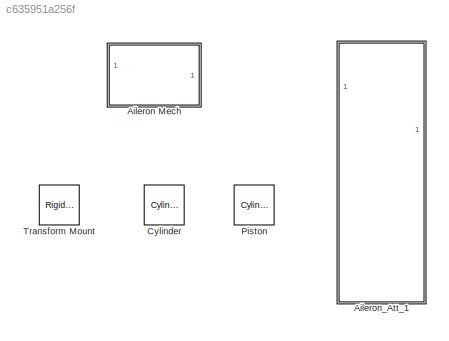
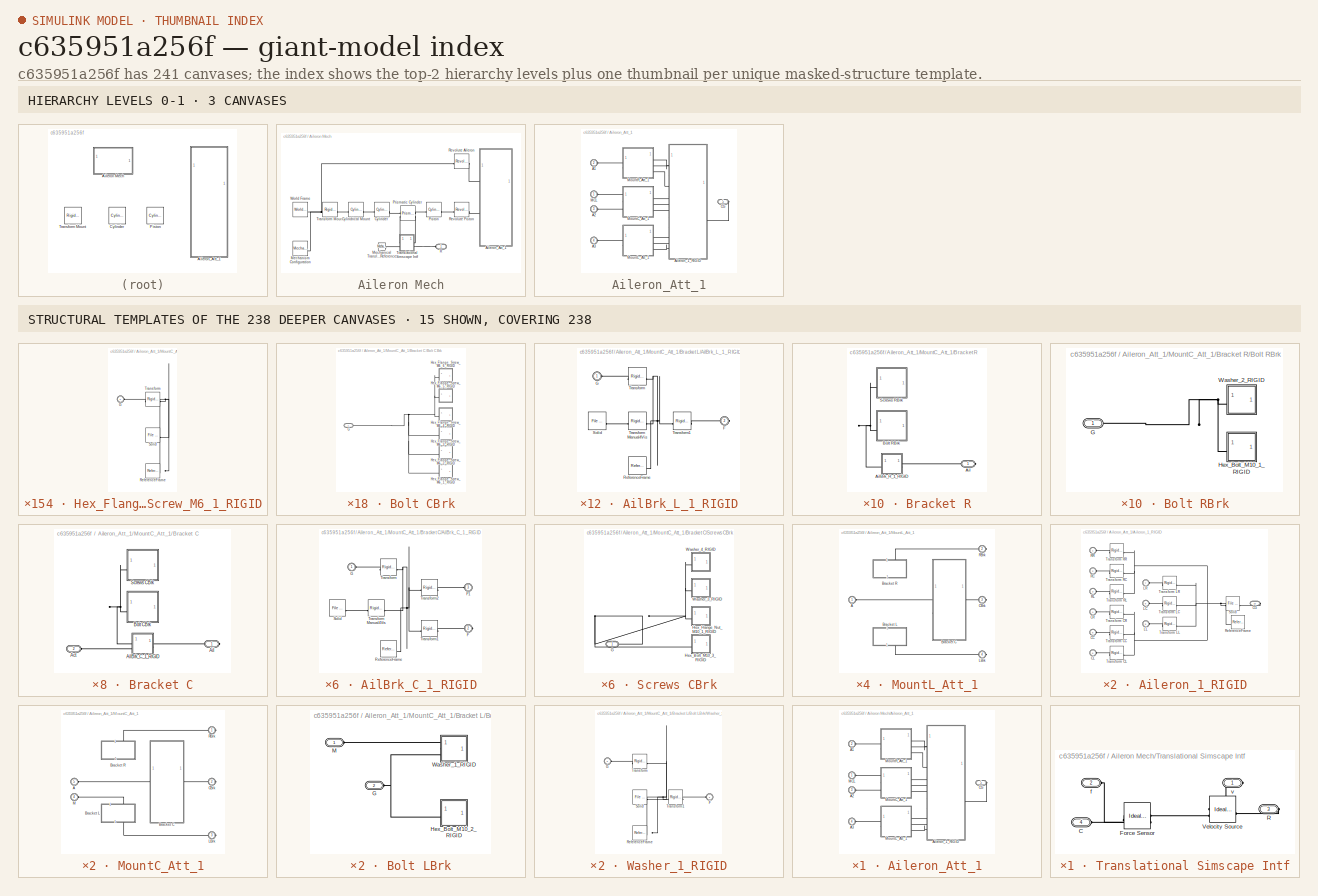
[diagram: thumbnail index - top-2 hierarchy levels (3 canvases) + 15 structural-template representatives of the remaining 238 canvases]
MODEL slx_c635951a256f
KIND library
CONFIG SolverName = ode45
BLOCK [SubSystem] Aileron Mech
BLOCK [SubSystem] Aileron Mech/Aileron_Att_1
BLOCK [PMIOPort] Aileron Mech/Aileron_Att_1/A1
  Port = 2
  Side = Left
BLOCK [PMIOPort] Aileron Mech/Aileron_Att_1/A2
  Port = 3
  Side = Left
BLOCK [PMIOPort] Aileron Mech/Aileron_Att_1/A3
  Port = 4
  Side = Left
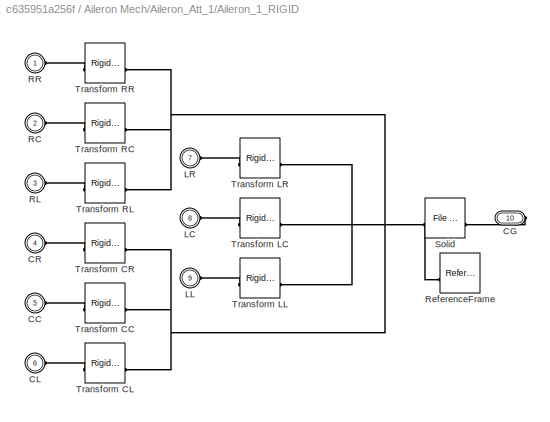
BLOCK [SubSystem] Aileron Mech/Aileron_Att_1/Aileron_1_RIGID
BLOCK [PMIOPort] Aileron Mech/Aileron_Att_1/Aileron_1_RIGID/CC
  Port = 5
  Side = Left
BLOCK [PMIOPort] Aileron Mech/Aileron_Att_1/Aileron_1_RIGID/CG
  Port = 10
  Side = Right
BLOCK [PMIOPort] Aileron Mech/Aileron_Att_1/Aileron_1_RIGID/CL
  Port = 6
  Side = Left
BLOCK [PMIOPort] Aileron Mech/Aileron_Att_1/Aileron_1_RIGID/CR
  Port = 4
  Side = Left
BLOCK [PMIOPort] Aileron Mech/Aileron_Att_1/Aileron_1_RIGID/LC
  Port = 8
  Side = Left
BLOCK [PMIOPort] Aileron Mech/Aileron_Att_1/Aileron_1_RIGID/LL
  Port = 9
  Side = Left
BLOCK [PMIOPort] Aileron Mech/Aileron_Att_1/Aileron_1_RIGID/LR
  Port = 7
  Side = Left
BLOCK [PMIOPort] Aileron Mech/Aileron_Att_1/Aileron_1_RIGID/RC
  Port = 2
  Side = Left
BLOCK [PMIOPort] Aileron Mech/Aileron_Att_1/Aileron_1_RIGID/RL
  Port = 3
  Side = Left
BLOCK [PMIOPort] Aileron Mech/Aileron_Att_1/Aileron_1_RIGID/RR
  Side = Left
BLOCK [Reference] Aileron Mech/Aileron_Att_1/Aileron_1_RIGID/ReferenceFrame  REF=sm_lib/Frames and
Transforms/Reference
Frame
  SourceBlock = sm_lib/Frames and\nTransforms/Reference\nFrame
  SourceType = Reference\nFrame
BLOCK [Reference] Aileron Mech/Aileron_Att_1/Aileron_1_RIGID/Solid  REF=sm_lib/Body Elements/File Solid
  SourceBlock = sm_lib/Body Elements/File Solid
  SourceType = File Solid
BLOCK [Reference] Aileron Mech/Aileron_Att_1/Aileron_1_RIGID/Transform CC  REF=sm_lib/Frames and
Transforms/Rigid
Transform
  SourceBlock = sm_lib/Frames and\nTransforms/Rigid\nTransform
  SourceType = Rigid\nTransform
BLOCK [Reference] Aileron Mech/Aileron_Att_1/Aileron_1_RIGID/Transform CL  REF=sm_lib/Frames and
Transforms/Rigid
Transform
  SourceBlock = sm_lib/Frames and\nTransforms/Rigid\nTransform
  SourceType = Rigid\nTransform
BLOCK [Reference] Aileron Mech/Aileron_Att_1/Aileron_1_RIGID/Transform CR  REF=sm_lib/Frames and
Transforms/Rigid
Transform
  SourceBlock = sm_lib/Frames and\nTransforms/Rigid\nTransform
  SourceType = Rigid\nTransform
BLOCK [Reference] Aileron Mech/Aileron_Att_1/Aileron_1_RIGID/Transform LC  REF=sm_lib/Frames and
Transforms/Rigid
Transform
  SourceBlock = sm_lib/Frames and\nTransforms/Rigid\nTransform
  SourceType = Rigid\nTransform
BLOCK [Reference] Aileron Mech/Aileron_Att_1/Aileron_1_RIGID/Transform LL  REF=sm_lib/Frames and
Transforms/Rigid
Transform
  SourceBlock = sm_lib/Frames and\nTransforms/Rigid\nTransform
  SourceType = Rigid\nTransform
BLOCK [Reference] Aileron Mech/Aileron_Att_1/Aileron_1_RIGID/Transform LR  REF=sm_lib/Frames and
Transforms/Rigid
Transform
  SourceBlock = sm_lib/Frames and\nTransforms/Rigid\nTransform
  SourceType = Rigid\nTransform
BLOCK [Reference] Aileron Mech/Aileron_Att_1/Aileron_1_RIGID/Transform RC  REF=sm_lib/Frames and
Transforms/Rigid
Transform
  SourceBlock = sm_lib/Frames and\nTransforms/Rigid\nTransform
  SourceType = Rigid\nTransform
BLOCK [Reference] Aileron Mech/Aileron_Att_1/Aileron_1_RIGID/Transform RL  REF=sm_lib/Frames and
Transforms/Rigid
Transform
  SourceBlock = sm_lib/Frames and\nTransforms/Rigid\nTransform
  SourceType = Rigid\nTransform
BLOCK [Reference] Aileron Mech/Aileron_Att_1/Aileron_1_RIGID/Transform RR  REF=sm_lib/Frames and
Transforms/Rigid
Transform
  SourceBlock = sm_lib/Frames and\nTransforms/Rigid\nTransform
  SourceType = Rigid\nTransform
BLOCK [PMIOPort] Aileron Mech/Aileron_Att_1/CG
  Port = 5
  Side = Right
BLOCK [PMIOPort] Aileron Mech/Aileron_Att_1/MCL
  Side = Left
BLOCK [SubSystem] Aileron Mech/Aileron_Att_1/MountC_Att_1
BLOCK [PMIOPort] Aileron Mech/Aileron_Att_1/MountC_Att_1/A
  NameLocation = top
  Port = 5
  Side = Left
BLOCK [SubSystem] Aileron Mech/Aileron_Att_1/MountC_Att_1/Bracket C
BLOCK [PMIOPort] Aileron Mech/Aileron_Att_1/MountC_Att_1/Bracket C/Act
  Port = 2
  Side = Left
BLOCK [PMIOPort] Aileron Mech/Aileron_Att_1/MountC_Att_1/Bracket C/Ail
  Side = Right
BLOCK [SubSystem] Aileron Mech/Aileron_Att_1/MountC_Att_1/Bracket C/AilBrk_C_1_RIGID
BLOCK [PMIOPort] Aileron Mech/Aileron_Att_1/MountC_Att_1/Bracket C/AilBrk_C_1_RIGID/F
  Port = 2
  Side = Right
BLOCK [PMIOPort] Aileron Mech/Aileron_Att_1/MountC_Att_1/Bracket C/AilBrk_C_1_RIGID/F1
  Port = 3
  Side = Left
BLOCK [PMIOPort] Aileron Mech/Aileron_Att_1/MountC_Att_1/Bracket C/AilBrk_C_1_RIGID/G
  Side = Left
BLOCK [Reference] Aileron Mech/Aileron_Att_1/MountC_Att_1/Bracket C/AilBrk_C_1_RIGID/ReferenceFrame  REF=sm_lib/Frames and
Transforms/Reference
Frame
  SourceBlock = sm_lib/Frames and\nTransforms/Reference\nFrame
  SourceType = Reference\nFrame
BLOCK [Reference] Aileron Mech/Aileron_Att_1/MountC_Att_1/Bracket C/AilBrk_C_1_RIGID/Solid  REF=sm_lib/Body Elements/File Solid
  SourceBlock = sm_lib/Body Elements/File Solid
  SourceType = File Solid
BLOCK [Reference] Aileron Mech/Aileron_Att_1/MountC_Att_1/Bracket C/AilBrk_C_1_RIGID/Transform  REF=sm_lib/Frames and
Transforms/Rigid
Transform
  SourceBlock = sm_lib/Frames and\nTransforms/Rigid\nTransform
  SourceType = Rigid\nTransform
BLOCK [Reference] Aileron Mech/Aileron_Att_1/MountC_Att_1/Bracket C/AilBrk_C_1_RIGID/Transform Manual4Vis  REF=sm_lib/Frames and
Transforms/Rigid
Transform
  SourceBlock = sm_lib/Frames and\nTransforms/Rigid\nTransform
  SourceType = Rigid\nTransform
BLOCK [Reference] Aileron Mech/Aileron_Att_1/MountC_Att_1/Bracket C/AilBrk_C_1_RIGID/Transform1  REF=sm_lib/Frames and
Transforms/Rigid
Transform
  SourceBlock = sm_lib/Frames and\nTransforms/Rigid\nTransform
  SourceType = Rigid\nTransform
BLOCK [Reference] Aileron Mech/Aileron_Att_1/MountC_Att_1/Bracket C/AilBrk_C_1_RIGID/Transform2  REF=sm_lib/Frames and
Transforms/Rigid
Transform
  SourceBlock = sm_lib/Frames and\nTransforms/Rigid\nTransform
  SourceType = Rigid\nTransform
BLOCK [SubSystem] Aileron Mech/Aileron_Att_1/MountC_Att_1/Bracket C/Bolt CBrk
BLOCK [PMIOPort] Aileron Mech/Aileron_Att_1/MountC_Att_1/Bracket C/Bolt CBrk/G
  Side = Left
BLOCK [SubSystem] Aileron Mech/Aileron_Att_1/MountC_Att_1/Bracket C/Bolt CBrk/Hex_Flange_Screw_M6_1_RIGID
BLOCK [PMIOPort] Aileron Mech/Aileron_Att_1/MountC_Att_1/Bracket C/Bolt CBrk/Hex_Flange_Screw_M6_1_RIGID/G
  Side = Left
BLOCK [Reference] Aileron Mech/Aileron_Att_1/MountC_Att_1/Bracket C/Bolt CBrk/Hex_Flange_Screw_M6_1_RIGID/ReferenceFrame  REF=sm_lib/Frames and
Transforms/Reference
Frame
  SourceBlock = sm_lib/Frames and\nTransforms/Reference\nFrame
  SourceType = Reference\nFrame
BLOCK [Reference] Aileron Mech/Aileron_Att_1/MountC_Att_1/Bracket C/Bolt CBrk/Hex_Flange_Screw_M6_1_RIGID/Solid  REF=sm_lib/Body Elements/File Solid
  SourceBlock = sm_lib/Body Elements/File Solid
  SourceType = File Solid
BLOCK [Reference] Aileron Mech/Aileron_Att_1/MountC_Att_1/Bracket C/Bolt CBrk/Hex_Flange_Screw_M6_1_RIGID/Transform  REF=sm_lib/Frames and
Transforms/Rigid
Transform
  SourceBlock = sm_lib/Frames and\nTransforms/Rigid\nTransform
  SourceType = Rigid\nTransform
BLOCK [SubSystem] Aileron Mech/Aileron_Att_1/MountC_Att_1/Bracket C/Bolt CBrk/Hex_Flange_Screw_M6_2_RIGID
BLOCK [PMIOPort] Aileron Mech/Aileron_Att_1/MountC_Att_1/Bracket C/Bolt CBrk/Hex_Flange_Screw_M6_2_RIGID/G
  Side = Left
BLOCK [Reference] Aileron Mech/Aileron_Att_1/MountC_Att_1/Bracket C/Bolt CBrk/Hex_Flange_Screw_M6_2_RIGID/ReferenceFrame  REF=sm_lib/Frames and
Transforms/Reference
Frame
  SourceBlock = sm_lib/Frames and\nTransforms/Reference\nFrame
  SourceType = Reference\nFrame
BLOCK [Reference] Aileron Mech/Aileron_Att_1/MountC_Att_1/Bracket C/Bolt CBrk/Hex_Flange_Screw_M6_2_RIGID/Solid  REF=sm_lib/Body Elements/File Solid
  SourceBlock = sm_lib/Body Elements/File Solid
  SourceType = File Solid
BLOCK [Reference] Aileron Mech/Aileron_Att_1/MountC_Att_1/Bracket C/Bolt CBrk/Hex_Flange_Screw_M6_2_RIGID/Transform  REF=sm_lib/Frames and
Transforms/Rigid
Transform
  SourceBlock = sm_lib/Frames and\nTransforms/Rigid\nTransform
  SourceType = Rigid\nTransform
BLOCK [SubSystem] Aileron Mech/Aileron_Att_1/MountC_Att_1/Bracket C/Bolt CBrk/Hex_Flange_Screw_M6_3_RIGID
BLOCK [PMIOPort] Aileron Mech/Aileron_Att_1/MountC_Att_1/Bracket C/Bolt CBrk/Hex_Flange_Screw_M6_3_RIGID/G
  Side = Left
BLOCK [Reference] Aileron Mech/Aileron_Att_1/MountC_Att_1/Bracket C/Bolt CBrk/Hex_Flange_Screw_M6_3_RIGID/ReferenceFrame  REF=sm_lib/Frames and
Transforms/Reference
Frame
  SourceBlock = sm_lib/Frames and\nTransforms/Reference\nFrame
  SourceType = Reference\nFrame
BLOCK [Reference] Aileron Mech/Aileron_Att_1/MountC_Att_1/Bracket C/Bolt CBrk/Hex_Flange_Screw_M6_3_RIGID/Solid  REF=sm_lib/Body Elements/File Solid
  SourceBlock = sm_lib/Body Elements/File Solid
  SourceType = File Solid
BLOCK [Reference] Aileron Mech/Aileron_Att_1/MountC_Att_1/Bracket C/Bolt CBrk/Hex_Flange_Screw_M6_3_RIGID/Transform  REF=sm_lib/Frames and
Transforms/Rigid
Transform
  SourceBlock = sm_lib/Frames and\nTransforms/Rigid\nTransform
  SourceType = Rigid\nTransform
BLOCK [SubSystem] Aileron Mech/Aileron_Att_1/MountC_Att_1/Bracket C/Bolt CBrk/Hex_Flange_Screw_M6_4_RIGID
BLOCK [PMIOPort] Aileron Mech/Aileron_Att_1/MountC_Att_1/Bracket C/Bolt CBrk/Hex_Flange_Screw_M6_4_RIGID/G
  Side = Left
BLOCK [Reference] Aileron Mech/Aileron_Att_1/MountC_Att_1/Bracket C/Bolt CBrk/Hex_Flange_Screw_M6_4_RIGID/ReferenceFrame  REF=sm_lib/Frames and
Transforms/Reference
Frame
  SourceBlock = sm_lib/Frames and\nTransforms/Reference\nFrame
  SourceType = Reference\nFrame
BLOCK [Reference] Aileron Mech/Aileron_Att_1/MountC_Att_1/Bracket C/Bolt CBrk/Hex_Flange_Screw_M6_4_RIGID/Solid  REF=sm_lib/Body Elements/File Solid
  SourceBlock = sm_lib/Body Elements/File Solid
  SourceType = File Solid
BLOCK [Reference] Aileron Mech/Aileron_Att_1/MountC_Att_1/Bracket C/Bolt CBrk/Hex_Flange_Screw_M6_4_RIGID/Transform  REF=sm_lib/Frames and
Transforms/Rigid
Transform
  SourceBlock = sm_lib/Frames and\nTransforms/Rigid\nTransform
  SourceType = Rigid\nTransform
BLOCK [SubSystem] Aileron Mech/Aileron_Att_1/MountC_Att_1/Bracket C/Bolt CBrk/Hex_Flange_Screw_M6_5_RIGID
BLOCK [PMIOPort] Aileron Mech/Aileron_Att_1/MountC_Att_1/Bracket C/Bolt CBrk/Hex_Flange_Screw_M6_5_RIGID/G
  Side = Left
BLOCK [Reference] Aileron Mech/Aileron_Att_1/MountC_Att_1/Bracket C/Bolt CBrk/Hex_Flange_Screw_M6_5_RIGID/ReferenceFrame  REF=sm_lib/Frames and
Transforms/Reference
Frame
  SourceBlock = sm_lib/Frames and\nTransforms/Reference\nFrame
  SourceType = Reference\nFrame
BLOCK [Reference] Aileron Mech/Aileron_Att_1/MountC_Att_1/Bracket C/Bolt CBrk/Hex_Flange_Screw_M6_5_RIGID/Solid  REF=sm_lib/Body Elements/File Solid
  SourceBlock = sm_lib/Body Elements/File Solid
  SourceType = File Solid
BLOCK [Reference] Aileron Mech/Aileron_Att_1/MountC_Att_1/Bracket C/Bolt CBrk/Hex_Flange_Screw_M6_5_RIGID/Transform  REF=sm_lib/Frames and
Transforms/Rigid
Transform
  SourceBlock = sm_lib/Frames and\nTransforms/Rigid\nTransform
  SourceType = Rigid\nTransform
BLOCK [SubSystem] Aileron Mech/Aileron_Att_1/MountC_Att_1/Bracket C/Bolt CBrk/Hex_Flange_Screw_M6_6_RIGID
BLOCK [PMIOPort] Aileron Mech/Aileron_Att_1/MountC_Att_1/Bracket C/Bolt CBrk/Hex_Flange_Screw_M6_6_RIGID/G
  Side = Left
BLOCK [Reference] Aileron Mech/Aileron_Att_1/MountC_Att_1/Bracket C/Bolt CBrk/Hex_Flange_Screw_M6_6_RIGID/ReferenceFrame  REF=sm_lib/Frames and
Transforms/Reference
Frame
  SourceBlock = sm_lib/Frames and\nTransforms/Reference\nFrame
  SourceType = Reference\nFrame
BLOCK [Reference] Aileron Mech/Aileron_Att_1/MountC_Att_1/Bracket C/Bolt CBrk/Hex_Flange_Screw_M6_6_RIGID/Solid  REF=sm_lib/Body Elements/File Solid
  SourceBlock = sm_lib/Body Elements/File Solid
  SourceType = File Solid
BLOCK [Reference] Aileron Mech/Aileron_Att_1/MountC_Att_1/Bracket C/Bolt CBrk/Hex_Flange_Screw_M6_6_RIGID/Transform  REF=sm_lib/Frames and
Transforms/Rigid
Transform
  SourceBlock = sm_lib/Frames and\nTransforms/Rigid\nTransform
  SourceType = Rigid\nTransform
BLOCK [SubSystem] Aileron Mech/Aileron_Att_1/MountC_Att_1/Bracket C/Screws CBrk
BLOCK [PMIOPort] Aileron Mech/Aileron_Att_1/MountC_Att_1/Bracket C/Screws CBrk/G
  Side = Left
BLOCK [SubSystem] Aileron Mech/Aileron_Att_1/MountC_Att_1/Bracket C/Screws CBrk/Hex_Bolt_M10_3_RIGID
BLOCK [PMIOPort] Aileron Mech/Aileron_Att_1/MountC_Att_1/Bracket C/Screws CBrk/Hex_Bolt_M10_3_RIGID/G
  Side = Left
BLOCK [Reference] Aileron Mech/Aileron_Att_1/MountC_Att_1/Bracket C/Screws CBrk/Hex_Bolt_M10_3_RIGID/ReferenceFrame  REF=sm_lib/Frames and
Transforms/Reference
Frame
  SourceBlock = sm_lib/Frames and\nTransforms/Reference\nFrame
  SourceType = Reference\nFrame
BLOCK [Reference] Aileron Mech/Aileron_Att_1/MountC_Att_1/Bracket C/Screws CBrk/Hex_Bolt_M10_3_RIGID/Solid  REF=sm_lib/Body Elements/File Solid
  SourceBlock = sm_lib/Body Elements/File Solid
  SourceType = File Solid
BLOCK [Reference] Aileron Mech/Aileron_Att_1/MountC_Att_1/Bracket C/Screws CBrk/Hex_Bolt_M10_3_RIGID/Transform  REF=sm_lib/Frames and
Transforms/Rigid
Transform
  SourceBlock = sm_lib/Frames and\nTransforms/Rigid\nTransform
  SourceType = Rigid\nTransform
BLOCK [SubSystem] Aileron Mech/Aileron_Att_1/MountC_Att_1/Bracket C/Screws CBrk/Hex_Flange_Nut_M10_1_RIGID
BLOCK [PMIOPort] Aileron Mech/Aileron_Att_1/MountC_Att_1/Bracket C/Screws CBrk/Hex_Flange_Nut_M10_1_RIGID/G
  Side = Left
BLOCK [Reference] Aileron Mech/Aileron_Att_1/MountC_Att_1/Bracket C/Screws CBrk/Hex_Flange_Nut_M10_1_RIGID/ReferenceFrame  REF=sm_lib/Frames and
Transforms/Reference
Frame
  SourceBlock = sm_lib/Frames and\nTransforms/Reference\nFrame
  SourceType = Reference\nFrame
BLOCK [Reference] Aileron Mech/Aileron_Att_1/MountC_Att_1/Bracket C/Screws CBrk/Hex_Flange_Nut_M10_1_RIGID/Solid  REF=sm_lib/Body Elements/File Solid
  SourceBlock = sm_lib/Body Elements/File Solid
  SourceType = File Solid
BLOCK [Reference] Aileron Mech/Aileron_Att_1/MountC_Att_1/Bracket C/Screws CBrk/Hex_Flange_Nut_M10_1_RIGID/Transform  REF=sm_lib/Frames and
Transforms/Rigid
Transform
  SourceBlock = sm_lib/Frames and\nTransforms/Rigid\nTransform
  SourceType = Rigid\nTransform
BLOCK [SubSystem] Aileron Mech/Aileron_Att_1/MountC_Att_1/Bracket C/Screws CBrk/Washer_3_RIGID
BLOCK [PMIOPort] Aileron Mech/Aileron_Att_1/MountC_Att_1/Bracket C/Screws CBrk/Washer_3_RIGID/G
  Side = Left
BLOCK [Reference] Aileron Mech/Aileron_Att_1/MountC_Att_1/Bracket C/Screws CBrk/Washer_3_RIGID/ReferenceFrame  REF=sm_lib/Frames and
Transforms/Reference
Frame
  SourceBlock = sm_lib/Frames and\nTransforms/Reference\nFrame
  SourceType = Reference\nFrame
BLOCK [Reference] Aileron Mech/Aileron_Att_1/MountC_Att_1/Bracket C/Screws CBrk/Washer_3_RIGID/Solid  REF=sm_lib/Body Elements/File Solid
  SourceBlock = sm_lib/Body Elements/File Solid
  SourceType = File Solid
BLOCK [Reference] Aileron Mech/Aileron_Att_1/MountC_Att_1/Bracket C/Screws CBrk/Washer_3_RIGID/Transform  REF=sm_lib/Frames and
Transforms/Rigid
Transform
  SourceBlock = sm_lib/Frames and\nTransforms/Rigid\nTransform
  SourceType = Rigid\nTransform
BLOCK [SubSystem] Aileron Mech/Aileron_Att_1/MountC_Att_1/Bracket C/Screws CBrk/Washer_4_RIGID
BLOCK [PMIOPort] Aileron Mech/Aileron_Att_1/MountC_Att_1/Bracket C/Screws CBrk/Washer_4_RIGID/G
  Side = Left
BLOCK [Reference] Aileron Mech/Aileron_Att_1/MountC_Att_1/Bracket C/Screws CBrk/Washer_4_RIGID/ReferenceFrame  REF=sm_lib/Frames and
Transforms/Reference
Frame
  SourceBlock = sm_lib/Frames and\nTransforms/Reference\nFrame
  SourceType = Reference\nFrame
BLOCK [Reference] Aileron Mech/Aileron_Att_1/MountC_Att_1/Bracket C/Screws CBrk/Washer_4_RIGID/Solid  REF=sm_lib/Body Elements/File Solid
  SourceBlock = sm_lib/Body Elements/File Solid
  SourceType = File Solid
BLOCK [Reference] Aileron Mech/Aileron_Att_1/MountC_Att_1/Bracket C/Screws CBrk/Washer_4_RIGID/Transform  REF=sm_lib/Frames and
Transforms/Rigid
Transform
  SourceBlock = sm_lib/Frames and\nTransforms/Rigid\nTransform
  SourceType = Rigid\nTransform
BLOCK [SubSystem] Aileron Mech/Aileron_Att_1/MountC_Att_1/Bracket L
  NameLocation = left
BLOCK [PMIOPort] Aileron Mech/Aileron_Att_1/MountC_Att_1/Bracket L/Ail
  Port = 2
  Side = Right
BLOCK [SubSystem] Aileron Mech/Aileron_Att_1/MountC_Att_1/Bracket L/AilBrk_L_1_RIGID
BLOCK [PMIOPort] Aileron Mech/Aileron_Att_1/MountC_Att_1/Bracket L/AilBrk_L_1_RIGID/F
  Port = 2
  Side = Right
BLOCK [PMIOPort] Aileron Mech/Aileron_Att_1/MountC_Att_1/Bracket L/AilBrk_L_1_RIGID/G
  Side = Left
BLOCK [Reference] Aileron Mech/Aileron_Att_1/MountC_Att_1/Bracket L/AilBrk_L_1_RIGID/ReferenceFrame  REF=sm_lib/Frames and
Transforms/Reference
Frame
  SourceBlock = sm_lib/Frames and\nTransforms/Reference\nFrame
  SourceType = Reference\nFrame
BLOCK [Reference] Aileron Mech/Aileron_Att_1/MountC_Att_1/Bracket L/AilBrk_L_1_RIGID/Solid  REF=sm_lib/Body Elements/File Solid
  SourceBlock = sm_lib/Body Elements/File Solid
  SourceType = File Solid
BLOCK [Reference] Aileron Mech/Aileron_Att_1/MountC_Att_1/Bracket L/AilBrk_L_1_RIGID/Transform  REF=sm_lib/Frames and
Transforms/Rigid
Transform
  SourceBlock = sm_lib/Frames and\nTransforms/Rigid\nTransform
  SourceType = Rigid\nTransform
BLOCK [Reference] Aileron Mech/Aileron_Att_1/MountC_Att_1/Bracket L/AilBrk_L_1_RIGID/Transform Manual4Vis  REF=sm_lib/Frames and
Transforms/Rigid
Transform
  SourceBlock = sm_lib/Frames and\nTransforms/Rigid\nTransform
  SourceType = Rigid\nTransform
BLOCK [Reference] Aileron Mech/Aileron_Att_1/MountC_Att_1/Bracket L/AilBrk_L_1_RIGID/Transform1  REF=sm_lib/Frames and
Transforms/Rigid
Transform
  SourceBlock = sm_lib/Frames and\nTransforms/Rigid\nTransform
  SourceType = Rigid\nTransform
BLOCK [SubSystem] Aileron Mech/Aileron_Att_1/MountC_Att_1/Bracket L/Bolt LBrk
BLOCK [PMIOPort] Aileron Mech/Aileron_Att_1/MountC_Att_1/Bracket L/Bolt LBrk/G
  Port = 2
  Side = Left
BLOCK [SubSystem] Aileron Mech/Aileron_Att_1/MountC_Att_1/Bracket L/Bolt LBrk/Hex_Bolt_M10_2_RIGID
BLOCK [PMIOPort] Aileron Mech/Aileron_Att_1/MountC_Att_1/Bracket L/Bolt LBrk/Hex_Bolt_M10_2_RIGID/G
  Side = Left
BLOCK [Reference] Aileron Mech/Aileron_Att_1/MountC_Att_1/Bracket L/Bolt LBrk/Hex_Bolt_M10_2_RIGID/ReferenceFrame  REF=sm_lib/Frames and
Transforms/Reference
Frame
  SourceBlock = sm_lib/Frames and\nTransforms/Reference\nFrame
  SourceType = Reference\nFrame
BLOCK [Reference] Aileron Mech/Aileron_Att_1/MountC_Att_1/Bracket L/Bolt LBrk/Hex_Bolt_M10_2_RIGID/Solid  REF=sm_lib/Body Elements/File Solid
  SourceBlock = sm_lib/Body Elements/File Solid
  SourceType = File Solid
BLOCK [Reference] Aileron Mech/Aileron_Att_1/MountC_Att_1/Bracket L/Bolt LBrk/Hex_Bolt_M10_2_RIGID/Transform  REF=sm_lib/Frames and
Transforms/Rigid
Transform
  SourceBlock = sm_lib/Frames and\nTransforms/Rigid\nTransform
  SourceType = Rigid\nTransform
BLOCK [PMIOPort] Aileron Mech/Aileron_Att_1/MountC_Att_1/Bracket L/Bolt LBrk/M
  Side = Left
BLOCK [SubSystem] Aileron Mech/Aileron_Att_1/MountC_Att_1/Bracket L/Bolt LBrk/Washer_1_RIGID
BLOCK [PMIOPort] Aileron Mech/Aileron_Att_1/MountC_Att_1/Bracket L/Bolt LBrk/Washer_1_RIGID/F
  Side = Left
BLOCK [PMIOPort] Aileron Mech/Aileron_Att_1/MountC_Att_1/Bracket L/Bolt LBrk/Washer_1_RIGID/G
  Port = 2
  Side = Left
BLOCK [Reference] Aileron Mech/Aileron_Att_1/MountC_Att_1/Bracket L/Bolt LBrk/Washer_1_RIGID/ReferenceFrame  REF=sm_lib/Frames and
Transforms/Reference
Frame
  SourceBlock = sm_lib/Frames and\nTransforms/Reference\nFrame
  SourceType = Reference\nFrame
BLOCK [Reference] Aileron Mech/Aileron_Att_1/MountC_Att_1/Bracket L/Bolt LBrk/Washer_1_RIGID/Solid  REF=sm_lib/Body Elements/File Solid
  SourceBlock = sm_lib/Body Elements/File Solid
  SourceType = File Solid
BLOCK [Reference] Aileron Mech/Aileron_Att_1/MountC_Att_1/Bracket L/Bolt LBrk/Washer_1_RIGID/Transform  REF=sm_lib/Frames and
Transforms/Rigid
Transform
  SourceBlock = sm_lib/Frames and\nTransforms/Rigid\nTransform
  SourceType = Rigid\nTransform
BLOCK [Reference] Aileron Mech/Aileron_Att_1/MountC_Att_1/Bracket L/Bolt LBrk/Washer_1_RIGID/Transform1  REF=sm_lib/Frames and
Transforms/Rigid
Transform
  SourceBlock = sm_lib/Frames and\nTransforms/Rigid\nTransform
  SourceType = Rigid\nTransform
BLOCK [PMIOPort] Aileron Mech/Aileron_Att_1/MountC_Att_1/Bracket L/M
  Side = Left
BLOCK [SubSystem] Aileron Mech/Aileron_Att_1/MountC_Att_1/Bracket L/Screws LBrk
BLOCK [PMIOPort] Aileron Mech/Aileron_Att_1/MountC_Att_1/Bracket L/Screws LBrk/G
  Side = Left
BLOCK [SubSystem] Aileron Mech/Aileron_Att_1/MountC_Att_1/Bracket L/Screws LBrk/Oval_Head_M4_12_RIGID
BLOCK [PMIOPort] Aileron Mech/Aileron_Att_1/MountC_Att_1/Bracket L/Screws LBrk/Oval_Head_M4_12_RIGID/G
  Side = Left
BLOCK [Reference] Aileron Mech/Aileron_Att_1/MountC_Att_1/Bracket L/Screws LBrk/Oval_Head_M4_12_RIGID/ReferenceFrame  REF=sm_lib/Frames and
Transforms/Reference
Frame
  SourceBlock = sm_lib/Frames and\nTransforms/Reference\nFrame
  SourceType = Reference\nFrame
BLOCK [Reference] Aileron Mech/Aileron_Att_1/MountC_Att_1/Bracket L/Screws LBrk/Oval_Head_M4_12_RIGID/Solid  REF=sm_lib/Body Elements/File Solid
  SourceBlock = sm_lib/Body Elements/File Solid
  SourceType = File Solid
BLOCK [Reference] Aileron Mech/Aileron_Att_1/MountC_Att_1/Bracket L/Screws LBrk/Oval_Head_M4_12_RIGID/Transform  REF=sm_lib/Frames and
Transforms/Rigid
Transform
  SourceBlock = sm_lib/Frames and\nTransforms/Rigid\nTransform
  SourceType = Rigid\nTransform
BLOCK [SubSystem] Aileron Mech/Aileron_Att_1/MountC_Att_1/Bracket L/Screws LBrk/Oval_Head_M4_1_RIGID
BLOCK [PMIOPort] Aileron Mech/Aileron_Att_1/MountC_Att_1/Bracket L/Screws LBrk/Oval_Head_M4_1_RIGID/G
  Side = Left
BLOCK [Reference] Aileron Mech/Aileron_Att_1/MountC_Att_1/Bracket L/Screws LBrk/Oval_Head_M4_1_RIGID/ReferenceFrame  REF=sm_lib/Frames and
Transforms/Reference
Frame
  SourceBlock = sm_lib/Frames and\nTransforms/Reference\nFrame
  SourceType = Reference\nFrame
BLOCK [Reference] Aileron Mech/Aileron_Att_1/MountC_Att_1/Bracket L/Screws LBrk/Oval_Head_M4_1_RIGID/Solid  REF=sm_lib/Body Elements/File Solid
  SourceBlock = sm_lib/Body Elements/File Solid
  SourceType = File Solid
BLOCK [Reference] Aileron Mech/Aileron_Att_1/MountC_Att_1/Bracket L/Screws LBrk/Oval_Head_M4_1_RIGID/Transform  REF=sm_lib/Frames and
Transforms/Rigid
Transform
  SourceBlock = sm_lib/Frames and\nTransforms/Rigid\nTransform
  SourceType = Rigid\nTransform
BLOCK [SubSystem] Aileron Mech/Aileron_Att_1/MountC_Att_1/Bracket L/Screws LBrk/Oval_Head_M4_4_RIGID
BLOCK [PMIOPort] Aileron Mech/Aileron_Att_1/MountC_Att_1/Bracket L/Screws LBrk/Oval_Head_M4_4_RIGID/G
  Side = Left
BLOCK [Reference] Aileron Mech/Aileron_Att_1/MountC_Att_1/Bracket L/Screws LBrk/Oval_Head_M4_4_RIGID/ReferenceFrame  REF=sm_lib/Frames and
Transforms/Reference
Frame
  SourceBlock = sm_lib/Frames and\nTransforms/Reference\nFrame
  SourceType = Reference\nFrame
BLOCK [Reference] Aileron Mech/Aileron_Att_1/MountC_Att_1/Bracket L/Screws LBrk/Oval_Head_M4_4_RIGID/Solid  REF=sm_lib/Body Elements/File Solid
  SourceBlock = sm_lib/Body Elements/File Solid
  SourceType = File Solid
BLOCK [Reference] Aileron Mech/Aileron_Att_1/MountC_Att_1/Bracket L/Screws LBrk/Oval_Head_M4_4_RIGID/Transform  REF=sm_lib/Frames and
Transforms/Rigid
Transform
  SourceBlock = sm_lib/Frames and\nTransforms/Rigid\nTransform
  SourceType = Rigid\nTransform
BLOCK [SubSystem] Aileron Mech/Aileron_Att_1/MountC_Att_1/Bracket L/Screws LBrk/Oval_Head_M4_5_RIGID
BLOCK [PMIOPort] Aileron Mech/Aileron_Att_1/MountC_Att_1/Bracket L/Screws LBrk/Oval_Head_M4_5_RIGID/G
  Side = Left
BLOCK [Reference] Aileron Mech/Aileron_Att_1/MountC_Att_1/Bracket L/Screws LBrk/Oval_Head_M4_5_RIGID/ReferenceFrame  REF=sm_lib/Frames and
Transforms/Reference
Frame
  SourceBlock = sm_lib/Frames and\nTransforms/Reference\nFrame
  SourceType = Reference\nFrame
BLOCK [Reference] Aileron Mech/Aileron_Att_1/MountC_Att_1/Bracket L/Screws LBrk/Oval_Head_M4_5_RIGID/Solid  REF=sm_lib/Body Elements/File Solid
  SourceBlock = sm_lib/Body Elements/File Solid
  SourceType = File Solid
BLOCK [Reference] Aileron Mech/Aileron_Att_1/MountC_Att_1/Bracket L/Screws LBrk/Oval_Head_M4_5_RIGID/Transform  REF=sm_lib/Frames and
Transforms/Rigid
Transform
  SourceBlock = sm_lib/Frames and\nTransforms/Rigid\nTransform
  SourceType = Rigid\nTransform
BLOCK [SubSystem] Aileron Mech/Aileron_Att_1/MountC_Att_1/Bracket L/Screws LBrk/Oval_Head_M4_6_RIGID
BLOCK [PMIOPort] Aileron Mech/Aileron_Att_1/MountC_Att_1/Bracket L/Screws LBrk/Oval_Head_M4_6_RIGID/G
  Side = Left
BLOCK [Reference] Aileron Mech/Aileron_Att_1/MountC_Att_1/Bracket L/Screws LBrk/Oval_Head_M4_6_RIGID/ReferenceFrame  REF=sm_lib/Frames and
Transforms/Reference
Frame
  SourceBlock = sm_lib/Frames and\nTransforms/Reference\nFrame
  SourceType = Reference\nFrame
BLOCK [Reference] Aileron Mech/Aileron_Att_1/MountC_Att_1/Bracket L/Screws LBrk/Oval_Head_M4_6_RIGID/Solid  REF=sm_lib/Body Elements/File Solid
  SourceBlock = sm_lib/Body Elements/File Solid
  SourceType = File Solid
BLOCK [Reference] Aileron Mech/Aileron_Att_1/MountC_Att_1/Bracket L/Screws LBrk/Oval_Head_M4_6_RIGID/Transform  REF=sm_lib/Frames and
Transforms/Rigid
Transform
  SourceBlock = sm_lib/Frames and\nTransforms/Rigid\nTransform
  SourceType = Rigid\nTransform
BLOCK [SubSystem] Aileron Mech/Aileron_Att_1/MountC_Att_1/Bracket L/Screws LBrk/Oval_Head_M4_8_RIGID
BLOCK [PMIOPort] Aileron Mech/Aileron_Att_1/MountC_Att_1/Bracket L/Screws LBrk/Oval_Head_M4_8_RIGID/G
  Side = Left
BLOCK [Reference] Aileron Mech/Aileron_Att_1/MountC_Att_1/Bracket L/Screws LBrk/Oval_Head_M4_8_RIGID/ReferenceFrame  REF=sm_lib/Frames and
Transforms/Reference
Frame
  SourceBlock = sm_lib/Frames and\nTransforms/Reference\nFrame
  SourceType = Reference\nFrame
BLOCK [Reference] Aileron Mech/Aileron_Att_1/MountC_Att_1/Bracket L/Screws LBrk/Oval_Head_M4_8_RIGID/Solid  REF=sm_lib/Body Elements/File Solid
  SourceBlock = sm_lib/Body Elements/File Solid
  SourceType = File Solid
BLOCK [Reference] Aileron Mech/Aileron_Att_1/MountC_Att_1/Bracket L/Screws LBrk/Oval_Head_M4_8_RIGID/Transform  REF=sm_lib/Frames and
Transforms/Rigid
Transform
  SourceBlock = sm_lib/Frames and\nTransforms/Rigid\nTransform
  SourceType = Rigid\nTransform
BLOCK [SubSystem] Aileron Mech/Aileron_Att_1/MountC_Att_1/Bracket R
  NameLocation = left
BLOCK [PMIOPort] Aileron Mech/Aileron_Att_1/MountC_Att_1/Bracket R/Ail
  Side = Right
BLOCK [SubSystem] Aileron Mech/Aileron_Att_1/MountC_Att_1/Bracket R/AilBrk_R_1_RIGID
BLOCK [PMIOPort] Aileron Mech/Aileron_Att_1/MountC_Att_1/Bracket R/AilBrk_R_1_RIGID/F
  Port = 2
  Side = Right
BLOCK [PMIOPort] Aileron Mech/Aileron_Att_1/MountC_Att_1/Bracket R/AilBrk_R_1_RIGID/G
  Side = Left
BLOCK [Reference] Aileron Mech/Aileron_Att_1/MountC_Att_1/Bracket R/AilBrk_R_1_RIGID/ReferenceFrame  REF=sm_lib/Frames and
Transforms/Reference
Frame
  SourceBlock = sm_lib/Frames and\nTransforms/Reference\nFrame
  SourceType = Reference\nFrame
BLOCK [Reference] Aileron Mech/Aileron_Att_1/MountC_Att_1/Bracket R/AilBrk_R_1_RIGID/Solid  REF=sm_lib/Body Elements/File Solid
  SourceBlock = sm_lib/Body Elements/File Solid
  SourceType = File Solid
BLOCK [Reference] Aileron Mech/Aileron_Att_1/MountC_Att_1/Bracket R/AilBrk_R_1_RIGID/Transform  REF=sm_lib/Frames and
Transforms/Rigid
Transform
  SourceBlock = sm_lib/Frames and\nTransforms/Rigid\nTransform
  SourceType = Rigid\nTransform
BLOCK [Reference] Aileron Mech/Aileron_Att_1/MountC_Att_1/Bracket R/AilBrk_R_1_RIGID/Transform Manual4Vis  REF=sm_lib/Frames and
Transforms/Rigid
Transform
  SourceBlock = sm_lib/Frames and\nTransforms/Rigid\nTransform
  SourceType = Rigid\nTransform
BLOCK [Reference] Aileron Mech/Aileron_Att_1/MountC_Att_1/Bracket R/AilBrk_R_1_RIGID/Transform1  REF=sm_lib/Frames and
Transforms/Rigid
Transform
  SourceBlock = sm_lib/Frames and\nTransforms/Rigid\nTransform
  SourceType = Rigid\nTransform
BLOCK [SubSystem] Aileron Mech/Aileron_Att_1/MountC_Att_1/Bracket R/Bolt RBrk
BLOCK [PMIOPort] Aileron Mech/Aileron_Att_1/MountC_Att_1/Bracket R/Bolt RBrk/G
  Side = Left
BLOCK [SubSystem] Aileron Mech/Aileron_Att_1/MountC_Att_1/Bracket R/Bolt RBrk/Hex_Bolt_M10_1_RIGID
BLOCK [PMIOPort] Aileron Mech/Aileron_Att_1/MountC_Att_1/Bracket R/Bolt RBrk/Hex_Bolt_M10_1_RIGID/G
  Side = Left
BLOCK [Reference] Aileron Mech/Aileron_Att_1/MountC_Att_1/Bracket R/Bolt RBrk/Hex_Bolt_M10_1_RIGID/ReferenceFrame  REF=sm_lib/Frames and
Transforms/Reference
Frame
  SourceBlock = sm_lib/Frames and\nTransforms/Reference\nFrame
  SourceType = Reference\nFrame
BLOCK [Reference] Aileron Mech/Aileron_Att_1/MountC_Att_1/Bracket R/Bolt RBrk/Hex_Bolt_M10_1_RIGID/Solid  REF=sm_lib/Body Elements/File Solid
  SourceBlock = sm_lib/Body Elements/File Solid
  SourceType = File Solid
BLOCK [Reference] Aileron Mech/Aileron_Att_1/MountC_Att_1/Bracket R/Bolt RBrk/Hex_Bolt_M10_1_RIGID/Transform  REF=sm_lib/Frames and
Transforms/Rigid
Transform
  SourceBlock = sm_lib/Frames and\nTransforms/Rigid\nTransform
  SourceType = Rigid\nTransform
BLOCK [SubSystem] Aileron Mech/Aileron_Att_1/MountC_Att_1/Bracket R/Bolt RBrk/Washer_2_RIGID
BLOCK [PMIOPort] Aileron Mech/Aileron_Att_1/MountC_Att_1/Bracket R/Bolt RBrk/Washer_2_RIGID/G
  Side = Left
BLOCK [Reference] Aileron Mech/Aileron_Att_1/MountC_Att_1/Bracket R/Bolt RBrk/Washer_2_RIGID/ReferenceFrame  REF=sm_lib/Frames and
Transforms/Reference
Frame
  SourceBlock = sm_lib/Frames and\nTransforms/Reference\nFrame
  SourceType = Reference\nFrame
BLOCK [Reference] Aileron Mech/Aileron_Att_1/MountC_Att_1/Bracket R/Bolt RBrk/Washer_2_RIGID/Solid  REF=sm_lib/Body Elements/File Solid
  SourceBlock = sm_lib/Body Elements/File Solid
  SourceType = File Solid
BLOCK [Reference] Aileron Mech/Aileron_Att_1/MountC_Att_1/Bracket R/Bolt RBrk/Washer_2_RIGID/Transform  REF=sm_lib/Frames and
Transforms/Rigid
Transform
  SourceBlock = sm_lib/Frames and\nTransforms/Rigid\nTransform
  SourceType = Rigid\nTransform
BLOCK [SubSystem] Aileron Mech/Aileron_Att_1/MountC_Att_1/Bracket R/Screws RBrk
BLOCK [PMIOPort] Aileron Mech/Aileron_Att_1/MountC_Att_1/Bracket R/Screws RBrk/G
  Side = Left
BLOCK [SubSystem] Aileron Mech/Aileron_Att_1/MountC_Att_1/Bracket R/Screws RBrk/Oval_Head_M4_10_RIGID
BLOCK [PMIOPort] Aileron Mech/Aileron_Att_1/MountC_Att_1/Bracket R/Screws RBrk/Oval_Head_M4_10_RIGID/G
  Side = Left
BLOCK [Reference] Aileron Mech/Aileron_Att_1/MountC_Att_1/Bracket R/Screws RBrk/Oval_Head_M4_10_RIGID/ReferenceFrame  REF=sm_lib/Frames and
Transforms/Reference
Frame
  SourceBlock = sm_lib/Frames and\nTransforms/Reference\nFrame
  SourceType = Reference\nFrame
BLOCK [Reference] Aileron Mech/Aileron_Att_1/MountC_Att_1/Bracket R/Screws RBrk/Oval_Head_M4_10_RIGID/Solid  REF=sm_lib/Body Elements/File Solid
  SourceBlock = sm_lib/Body Elements/File Solid
  SourceType = File Solid
BLOCK [Reference] Aileron Mech/Aileron_Att_1/MountC_Att_1/Bracket R/Screws RBrk/Oval_Head_M4_10_RIGID/Transform  REF=sm_lib/Frames and
Transforms/Rigid
Transform
  SourceBlock = sm_lib/Frames and\nTransforms/Rigid\nTransform
  SourceType = Rigid\nTransform
BLOCK [SubSystem] Aileron Mech/Aileron_Att_1/MountC_Att_1/Bracket R/Screws RBrk/Oval_Head_M4_11_RIGID
BLOCK [PMIOPort] Aileron Mech/Aileron_Att_1/MountC_Att_1/Bracket R/Screws RBrk/Oval_Head_M4_11_RIGID/G
  Side = Left
BLOCK [Reference] Aileron Mech/Aileron_Att_1/MountC_Att_1/Bracket R/Screws RBrk/Oval_Head_M4_11_RIGID/ReferenceFrame  REF=sm_lib/Frames and
Transforms/Reference
Frame
  SourceBlock = sm_lib/Frames and\nTransforms/Reference\nFrame
  SourceType = Reference\nFrame
BLOCK [Reference] Aileron Mech/Aileron_Att_1/MountC_Att_1/Bracket R/Screws RBrk/Oval_Head_M4_11_RIGID/Solid  REF=sm_lib/Body Elements/File Solid
  SourceBlock = sm_lib/Body Elements/File Solid
  SourceType = File Solid
BLOCK [Reference] Aileron Mech/Aileron_Att_1/MountC_Att_1/Bracket R/Screws RBrk/Oval_Head_M4_11_RIGID/Transform  REF=sm_lib/Frames and
Transforms/Rigid
Transform
  SourceBlock = sm_lib/Frames and\nTransforms/Rigid\nTransform
  SourceType = Rigid\nTransform
BLOCK [SubSystem] Aileron Mech/Aileron_Att_1/MountC_Att_1/Bracket R/Screws RBrk/Oval_Head_M4_2_RIGID
BLOCK [PMIOPort] Aileron Mech/Aileron_Att_1/MountC_Att_1/Bracket R/Screws RBrk/Oval_Head_M4_2_RIGID/G
  Side = Left
BLOCK [Reference] Aileron Mech/Aileron_Att_1/MountC_Att_1/Bracket R/Screws RBrk/Oval_Head_M4_2_RIGID/ReferenceFrame  REF=sm_lib/Frames and
Transforms/Reference
Frame
  SourceBlock = sm_lib/Frames and\nTransforms/Reference\nFrame
  SourceType = Reference\nFrame
BLOCK [Reference] Aileron Mech/Aileron_Att_1/MountC_Att_1/Bracket R/Screws RBrk/Oval_Head_M4_2_RIGID/Solid  REF=sm_lib/Body Elements/File Solid
  SourceBlock = sm_lib/Body Elements/File Solid
  SourceType = File Solid
BLOCK [Reference] Aileron Mech/Aileron_Att_1/MountC_Att_1/Bracket R/Screws RBrk/Oval_Head_M4_2_RIGID/Transform  REF=sm_lib/Frames and
Transforms/Rigid
Transform
  SourceBlock = sm_lib/Frames and\nTransforms/Rigid\nTransform
  SourceType = Rigid\nTransform
BLOCK [SubSystem] Aileron Mech/Aileron_Att_1/MountC_Att_1/Bracket R/Screws RBrk/Oval_Head_M4_3_RIGID
BLOCK [PMIOPort] Aileron Mech/Aileron_Att_1/MountC_Att_1/Bracket R/Screws RBrk/Oval_Head_M4_3_RIGID/G
  Side = Left
BLOCK [Reference] Aileron Mech/Aileron_Att_1/MountC_Att_1/Bracket R/Screws RBrk/Oval_Head_M4_3_RIGID/ReferenceFrame  REF=sm_lib/Frames and
Transforms/Reference
Frame
  SourceBlock = sm_lib/Frames and\nTransforms/Reference\nFrame
  SourceType = Reference\nFrame
BLOCK [Reference] Aileron Mech/Aileron_Att_1/MountC_Att_1/Bracket R/Screws RBrk/Oval_Head_M4_3_RIGID/Solid  REF=sm_lib/Body Elements/File Solid
  SourceBlock = sm_lib/Body Elements/File Solid
  SourceType = File Solid
BLOCK [Reference] Aileron Mech/Aileron_Att_1/MountC_Att_1/Bracket R/Screws RBrk/Oval_Head_M4_3_RIGID/Transform  REF=sm_lib/Frames and
Transforms/Rigid
Transform
  SourceBlock = sm_lib/Frames and\nTransforms/Rigid\nTransform
  SourceType = Rigid\nTransform
BLOCK [SubSystem] Aileron Mech/Aileron_Att_1/MountC_Att_1/Bracket R/Screws RBrk/Oval_Head_M4_7_RIGID
BLOCK [PMIOPort] Aileron Mech/Aileron_Att_1/MountC_Att_1/Bracket R/Screws RBrk/Oval_Head_M4_7_RIGID/G
  Side = Left
BLOCK [Reference] Aileron Mech/Aileron_Att_1/MountC_Att_1/Bracket R/Screws RBrk/Oval_Head_M4_7_RIGID/ReferenceFrame  REF=sm_lib/Frames and
Transforms/Reference
Frame
  SourceBlock = sm_lib/Frames and\nTransforms/Reference\nFrame
  SourceType = Reference\nFrame
BLOCK [Reference] Aileron Mech/Aileron_Att_1/MountC_Att_1/Bracket R/Screws RBrk/Oval_Head_M4_7_RIGID/Solid  REF=sm_lib/Body Elements/File Solid
  SourceBlock = sm_lib/Body Elements/File Solid
  SourceType = File Solid
BLOCK [Reference] Aileron Mech/Aileron_Att_1/MountC_Att_1/Bracket R/Screws RBrk/Oval_Head_M4_7_RIGID/Transform  REF=sm_lib/Frames and
Transforms/Rigid
Transform
  SourceBlock = sm_lib/Frames and\nTransforms/Rigid\nTransform
  SourceType = Rigid\nTransform
BLOCK [SubSystem] Aileron Mech/Aileron_Att_1/MountC_Att_1/Bracket R/Screws RBrk/Oval_Head_M4_9_RIGID
BLOCK [PMIOPort] Aileron Mech/Aileron_Att_1/MountC_Att_1/Bracket R/Screws RBrk/Oval_Head_M4_9_RIGID/G
  Side = Left
BLOCK [Reference] Aileron Mech/Aileron_Att_1/MountC_Att_1/Bracket R/Screws RBrk/Oval_Head_M4_9_RIGID/ReferenceFrame  REF=sm_lib/Frames and
Transforms/Reference
Frame
  SourceBlock = sm_lib/Frames and\nTransforms/Reference\nFrame
  SourceType = Reference\nFrame
BLOCK [Reference] Aileron Mech/Aileron_Att_1/MountC_Att_1/Bracket R/Screws RBrk/Oval_Head_M4_9_RIGID/Solid  REF=sm_lib/Body Elements/File Solid
  SourceBlock = sm_lib/Body Elements/File Solid
  SourceType = File Solid
BLOCK [Reference] Aileron Mech/Aileron_Att_1/MountC_Att_1/Bracket R/Screws RBrk/Oval_Head_M4_9_RIGID/Transform  REF=sm_lib/Frames and
Transforms/Rigid
Transform
  SourceBlock = sm_lib/Frames and\nTransforms/Rigid\nTransform
  SourceType = Rigid\nTransform
BLOCK [PMIOPort] Aileron Mech/Aileron_Att_1/MountC_Att_1/CBrk
  Port = 2
  Side = Right
BLOCK [PMIOPort] Aileron Mech/Aileron_Att_1/MountC_Att_1/LBrk
  Port = 3
  Side = Right
BLOCK [PMIOPort] Aileron Mech/Aileron_Att_1/MountC_Att_1/M
  Port = 4
  Side = Left
BLOCK [PMIOPort] Aileron Mech/Aileron_Att_1/MountC_Att_1/RBrk
  Side = Right
BLOCK [SubSystem] Aileron Mech/Aileron_Att_1/MountL_Att_1
BLOCK [PMIOPort] Aileron Mech/Aileron_Att_1/MountL_Att_1/A
  Side = Left
BLOCK [SubSystem] Aileron Mech/Aileron_Att_1/MountL_Att_1/Bracket C
BLOCK [PMIOPort] Aileron Mech/Aileron_Att_1/MountL_Att_1/Bracket C/Act
  Port = 2
  Side = Left
BLOCK [PMIOPort] Aileron Mech/Aileron_Att_1/MountL_Att_1/Bracket C/Ail
  Side = Right
BLOCK [SubSystem] Aileron Mech/Aileron_Att_1/MountL_Att_1/Bracket C/AilBrk_C_1_RIGID
BLOCK [PMIOPort] Aileron Mech/Aileron_Att_1/MountL_Att_1/Bracket C/AilBrk_C_1_RIGID/F
  Port = 2
  Side = Right
BLOCK [PMIOPort] Aileron Mech/Aileron_Att_1/MountL_Att_1/Bracket C/AilBrk_C_1_RIGID/F1
  Port = 3
  Side = Left
BLOCK [PMIOPort] Aileron Mech/Aileron_Att_1/MountL_Att_1/Bracket C/AilBrk_C_1_RIGID/G
  Side = Left
BLOCK [Reference] Aileron Mech/Aileron_Att_1/MountL_Att_1/Bracket C/AilBrk_C_1_RIGID/ReferenceFrame  REF=sm_lib/Frames and
Transforms/Reference
Frame
  SourceBlock = sm_lib/Frames and\nTransforms/Reference\nFrame
  SourceType = Reference\nFrame
BLOCK [Reference] Aileron Mech/Aileron_Att_1/MountL_Att_1/Bracket C/AilBrk_C_1_RIGID/Solid  REF=sm_lib/Body Elements/File Solid
  SourceBlock = sm_lib/Body Elements/File Solid
  SourceType = File Solid
BLOCK [Reference] Aileron Mech/Aileron_Att_1/MountL_Att_1/Bracket C/AilBrk_C_1_RIGID/Transform  REF=sm_lib/Frames and
Transforms/Rigid
Transform
  SourceBlock = sm_lib/Frames and\nTransforms/Rigid\nTransform
  SourceType = Rigid\nTransform
BLOCK [Reference] Aileron Mech/Aileron_Att_1/MountL_Att_1/Bracket C/AilBrk_C_1_RIGID/Transform Manual4Vis  REF=sm_lib/Frames and
Transforms/Rigid
Transform
  SourceBlock = sm_lib/Frames and\nTransforms/Rigid\nTransform
  SourceType = Rigid\nTransform
BLOCK [Reference] Aileron Mech/Aileron_Att_1/MountL_Att_1/Bracket C/AilBrk_C_1_RIGID/Transform1  REF=sm_lib/Frames and
Transforms/Rigid
Transform
  SourceBlock = sm_lib/Frames and\nTransforms/Rigid\nTransform
  SourceType = Rigid\nTransform
BLOCK [Reference] Aileron Mech/Aileron_Att_1/MountL_Att_1/Bracket C/AilBrk_C_1_RIGID/Transform2  REF=sm_lib/Frames and
Transforms/Rigid
Transform
  SourceBlock = sm_lib/Frames and\nTransforms/Rigid\nTransform
  SourceType = Rigid\nTransform
BLOCK [SubSystem] Aileron Mech/Aileron_Att_1/MountL_Att_1/Bracket C/Bolt CBrk
BLOCK [PMIOPort] Aileron Mech/Aileron_Att_1/MountL_Att_1/Bracket C/Bolt CBrk/G
  Side = Left
BLOCK [SubSystem] Aileron Mech/Aileron_Att_1/MountL_Att_1/Bracket C/Bolt CBrk/Hex_Bolt_M10_3_RIGID
BLOCK [PMIOPort] Aileron Mech/Aileron_Att_1/MountL_Att_1/Bracket C/Bolt CBrk/Hex_Bolt_M10_3_RIGID/G
  Side = Left
BLOCK [Reference] Aileron Mech/Aileron_Att_1/MountL_Att_1/Bracket C/Bolt CBrk/Hex_Bolt_M10_3_RIGID/ReferenceFrame  REF=sm_lib/Frames and
Transforms/Reference
Frame
  SourceBlock = sm_lib/Frames and\nTransforms/Reference\nFrame
  SourceType = Reference\nFrame
BLOCK [Reference] Aileron Mech/Aileron_Att_1/MountL_Att_1/Bracket C/Bolt CBrk/Hex_Bolt_M10_3_RIGID/Solid  REF=sm_lib/Body Elements/File Solid
  SourceBlock = sm_lib/Body Elements/File Solid
  SourceType = File Solid
BLOCK [Reference] Aileron Mech/Aileron_Att_1/MountL_Att_1/Bracket C/Bolt CBrk/Hex_Bolt_M10_3_RIGID/Transform  REF=sm_lib/Frames and
Transforms/Rigid
Transform
  SourceBlock = sm_lib/Frames and\nTransforms/Rigid\nTransform
  SourceType = Rigid\nTransform
BLOCK [SubSystem] Aileron Mech/Aileron_Att_1/MountL_Att_1/Bracket C/Bolt CBrk/Hex_Flange_Nut_M10_1_RIGID
BLOCK [PMIOPort] Aileron Mech/Aileron_Att_1/MountL_Att_1/Bracket C/Bolt CBrk/Hex_Flange_Nut_M10_1_RIGID/G
  Side = Left
BLOCK [Reference] Aileron Mech/Aileron_Att_1/MountL_Att_1/Bracket C/Bolt CBrk/Hex_Flange_Nut_M10_1_RIGID/ReferenceFrame  REF=sm_lib/Frames and
Transforms/Reference
Frame
  SourceBlock = sm_lib/Frames and\nTransforms/Reference\nFrame
  SourceType = Reference\nFrame
BLOCK [Reference] Aileron Mech/Aileron_Att_1/MountL_Att_1/Bracket C/Bolt CBrk/Hex_Flange_Nut_M10_1_RIGID/Solid  REF=sm_lib/Body Elements/File Solid
  SourceBlock = sm_lib/Body Elements/File Solid
  SourceType = File Solid
BLOCK [Reference] Aileron Mech/Aileron_Att_1/MountL_Att_1/Bracket C/Bolt CBrk/Hex_Flange_Nut_M10_1_RIGID/Transform  REF=sm_lib/Frames and
Transforms/Rigid
Transform
  SourceBlock = sm_lib/Frames and\nTransforms/Rigid\nTransform
  SourceType = Rigid\nTransform
BLOCK [SubSystem] Aileron Mech/Aileron_Att_1/MountL_Att_1/Bracket C/Bolt CBrk/Washer_1_RIGID
BLOCK [PMIOPort] Aileron Mech/Aileron_Att_1/MountL_Att_1/Bracket C/Bolt CBrk/Washer_1_RIGID/G
  Side = Left
BLOCK [Reference] Aileron Mech/Aileron_Att_1/MountL_Att_1/Bracket C/Bolt CBrk/Washer_1_RIGID/ReferenceFrame  REF=sm_lib/Frames and
Transforms/Reference
Frame
  SourceBlock = sm_lib/Frames and\nTransforms/Reference\nFrame
  SourceType = Reference\nFrame
BLOCK [Reference] Aileron Mech/Aileron_Att_1/MountL_Att_1/Bracket C/Bolt CBrk/Washer_1_RIGID/Solid  REF=sm_lib/Body Elements/File Solid
  SourceBlock = sm_lib/Body Elements/File Solid
  SourceType = File Solid
BLOCK [Reference] Aileron Mech/Aileron_Att_1/MountL_Att_1/Bracket C/Bolt CBrk/Washer_1_RIGID/Transform  REF=sm_lib/Frames and
Transforms/Rigid
Transform
  SourceBlock = sm_lib/Frames and\nTransforms/Rigid\nTransform
  SourceType = Rigid\nTransform
BLOCK [SubSystem] Aileron Mech/Aileron_Att_1/MountL_Att_1/Bracket C/Bolt CBrk/Washer_4_RIGID
BLOCK [PMIOPort] Aileron Mech/Aileron_Att_1/MountL_Att_1/Bracket C/Bolt CBrk/Washer_4_RIGID/G
  Side = Left
BLOCK [Reference] Aileron Mech/Aileron_Att_1/MountL_Att_1/Bracket C/Bolt CBrk/Washer_4_RIGID/ReferenceFrame  REF=sm_lib/Frames and
Transforms/Reference
Frame
  SourceBlock = sm_lib/Frames and\nTransforms/Reference\nFrame
  SourceType = Reference\nFrame
BLOCK [Reference] Aileron Mech/Aileron_Att_1/MountL_Att_1/Bracket C/Bolt CBrk/Washer_4_RIGID/Solid  REF=sm_lib/Body Elements/File Solid
  SourceBlock = sm_lib/Body Elements/File Solid
  SourceType = File Solid
BLOCK [Reference] Aileron Mech/Aileron_Att_1/MountL_Att_1/Bracket C/Bolt CBrk/Washer_4_RIGID/Transform  REF=sm_lib/Frames and
Transforms/Rigid
Transform
  SourceBlock = sm_lib/Frames and\nTransforms/Rigid\nTransform
  SourceType = Rigid\nTransform
BLOCK [SubSystem] Aileron Mech/Aileron_Att_1/MountL_Att_1/Bracket C/Screws CBrk
BLOCK [PMIOPort] Aileron Mech/Aileron_Att_1/MountL_Att_1/Bracket C/Screws CBrk/G
  Side = Left
BLOCK [SubSystem] Aileron Mech/Aileron_Att_1/MountL_Att_1/Bracket C/Screws CBrk/Hex_Flange_Screw_M6_1_RIGID
BLOCK [PMIOPort] Aileron Mech/Aileron_Att_1/MountL_Att_1/Bracket C/Screws CBrk/Hex_Flange_Screw_M6_1_RIGID/G
  Side = Left
BLOCK [Reference] Aileron Mech/Aileron_Att_1/MountL_Att_1/Bracket C/Screws CBrk/Hex_Flange_Screw_M6_1_RIGID/ReferenceFrame  REF=sm_lib/Frames and
Transforms/Reference
Frame
  SourceBlock = sm_lib/Frames and\nTransforms/Reference\nFrame
  SourceType = Reference\nFrame
BLOCK [Reference] Aileron Mech/Aileron_Att_1/MountL_Att_1/Bracket C/Screws CBrk/Hex_Flange_Screw_M6_1_RIGID/Solid  REF=sm_lib/Body Elements/File Solid
  SourceBlock = sm_lib/Body Elements/File Solid
  SourceType = File Solid
BLOCK [Reference] Aileron Mech/Aileron_Att_1/MountL_Att_1/Bracket C/Screws CBrk/Hex_Flange_Screw_M6_1_RIGID/Transform  REF=sm_lib/Frames and
Transforms/Rigid
Transform
  SourceBlock = sm_lib/Frames and\nTransforms/Rigid\nTransform
  SourceType = Rigid\nTransform
BLOCK [SubSystem] Aileron Mech/Aileron_Att_1/MountL_Att_1/Bracket C/Screws CBrk/Hex_Flange_Screw_M6_2_RIGID
BLOCK [PMIOPort] Aileron Mech/Aileron_Att_1/MountL_Att_1/Bracket C/Screws CBrk/Hex_Flange_Screw_M6_2_RIGID/G
  Side = Left
BLOCK [Reference] Aileron Mech/Aileron_Att_1/MountL_Att_1/Bracket C/Screws CBrk/Hex_Flange_Screw_M6_2_RIGID/ReferenceFrame  REF=sm_lib/Frames and
Transforms/Reference
Frame
  SourceBlock = sm_lib/Frames and\nTransforms/Reference\nFrame
  SourceType = Reference\nFrame
BLOCK [Reference] Aileron Mech/Aileron_Att_1/MountL_Att_1/Bracket C/Screws CBrk/Hex_Flange_Screw_M6_2_RIGID/Solid  REF=sm_lib/Body Elements/File Solid
  SourceBlock = sm_lib/Body Elements/File Solid
  SourceType = File Solid
BLOCK [Reference] Aileron Mech/Aileron_Att_1/MountL_Att_1/Bracket C/Screws CBrk/Hex_Flange_Screw_M6_2_RIGID/Transform  REF=sm_lib/Frames and
Transforms/Rigid
Transform
  SourceBlock = sm_lib/Frames and\nTransforms/Rigid\nTransform
  SourceType = Rigid\nTransform
BLOCK [SubSystem] Aileron Mech/Aileron_Att_1/MountL_Att_1/Bracket C/Screws CBrk/Hex_Flange_Screw_M6_3_RIGID
BLOCK [PMIOPort] Aileron Mech/Aileron_Att_1/MountL_Att_1/Bracket C/Screws CBrk/Hex_Flange_Screw_M6_3_RIGID/G
  Side = Left
BLOCK [Reference] Aileron Mech/Aileron_Att_1/MountL_Att_1/Bracket C/Screws CBrk/Hex_Flange_Screw_M6_3_RIGID/ReferenceFrame  REF=sm_lib/Frames and
Transforms/Reference
Frame
  SourceBlock = sm_lib/Frames and\nTransforms/Reference\nFrame
  SourceType = Reference\nFrame
BLOCK [Reference] Aileron Mech/Aileron_Att_1/MountL_Att_1/Bracket C/Screws CBrk/Hex_Flange_Screw_M6_3_RIGID/Solid  REF=sm_lib/Body Elements/File Solid
  SourceBlock = sm_lib/Body Elements/File Solid
  SourceType = File Solid
BLOCK [Reference] Aileron Mech/Aileron_Att_1/MountL_Att_1/Bracket C/Screws CBrk/Hex_Flange_Screw_M6_3_RIGID/Transform  REF=sm_lib/Frames and
Transforms/Rigid
Transform
  SourceBlock = sm_lib/Frames and\nTransforms/Rigid\nTransform
  SourceType = Rigid\nTransform
BLOCK [SubSystem] Aileron Mech/Aileron_Att_1/MountL_Att_1/Bracket C/Screws CBrk/Hex_Flange_Screw_M6_4_RIGID
BLOCK [PMIOPort] Aileron Mech/Aileron_Att_1/MountL_Att_1/Bracket C/Screws CBrk/Hex_Flange_Screw_M6_4_RIGID/G
  Side = Left
BLOCK [Reference] Aileron Mech/Aileron_Att_1/MountL_Att_1/Bracket C/Screws CBrk/Hex_Flange_Screw_M6_4_RIGID/ReferenceFrame  REF=sm_lib/Frames and
Transforms/Reference
Frame
  SourceBlock = sm_lib/Frames and\nTransforms/Reference\nFrame
  SourceType = Reference\nFrame
BLOCK [Reference] Aileron Mech/Aileron_Att_1/MountL_Att_1/Bracket C/Screws CBrk/Hex_Flange_Screw_M6_4_RIGID/Solid  REF=sm_lib/Body Elements/File Solid
  SourceBlock = sm_lib/Body Elements/File Solid
  SourceType = File Solid
BLOCK [Reference] Aileron Mech/Aileron_Att_1/MountL_Att_1/Bracket C/Screws CBrk/Hex_Flange_Screw_M6_4_RIGID/Transform  REF=sm_lib/Frames and
Transforms/Rigid
Transform
  SourceBlock = sm_lib/Frames and\nTransforms/Rigid\nTransform
  SourceType = Rigid\nTransform
BLOCK [SubSystem] Aileron Mech/Aileron_Att_1/MountL_Att_1/Bracket C/Screws CBrk/Hex_Flange_Screw_M6_5_RIGID
BLOCK [PMIOPort] Aileron Mech/Aileron_Att_1/MountL_Att_1/Bracket C/Screws CBrk/Hex_Flange_Screw_M6_5_RIGID/G
  Side = Left
BLOCK [Reference] Aileron Mech/Aileron_Att_1/MountL_Att_1/Bracket C/Screws CBrk/Hex_Flange_Screw_M6_5_RIGID/ReferenceFrame  REF=sm_lib/Frames and
Transforms/Reference
Frame
  SourceBlock = sm_lib/Frames and\nTransforms/Reference\nFrame
  SourceType = Reference\nFrame
BLOCK [Reference] Aileron Mech/Aileron_Att_1/MountL_Att_1/Bracket C/Screws CBrk/Hex_Flange_Screw_M6_5_RIGID/Solid  REF=sm_lib/Body Elements/File Solid
  SourceBlock = sm_lib/Body Elements/File Solid
  SourceType = File Solid
BLOCK [Reference] Aileron Mech/Aileron_Att_1/MountL_Att_1/Bracket C/Screws CBrk/Hex_Flange_Screw_M6_5_RIGID/Transform  REF=sm_lib/Frames and
Transforms/Rigid
Transform
  SourceBlock = sm_lib/Frames and\nTransforms/Rigid\nTransform
  SourceType = Rigid\nTransform
BLOCK [SubSystem] Aileron Mech/Aileron_Att_1/MountL_Att_1/Bracket C/Screws CBrk/Hex_Flange_Screw_M6_6_RIGID
BLOCK [PMIOPort] Aileron Mech/Aileron_Att_1/MountL_Att_1/Bracket C/Screws CBrk/Hex_Flange_Screw_M6_6_RIGID/G
  Side = Left
BLOCK [Reference] Aileron Mech/Aileron_Att_1/MountL_Att_1/Bracket C/Screws CBrk/Hex_Flange_Screw_M6_6_RIGID/ReferenceFrame  REF=sm_lib/Frames and
Transforms/Reference
Frame
  SourceBlock = sm_lib/Frames and\nTransforms/Reference\nFrame
  SourceType = Reference\nFrame
BLOCK [Reference] Aileron Mech/Aileron_Att_1/MountL_Att_1/Bracket C/Screws CBrk/Hex_Flange_Screw_M6_6_RIGID/Solid  REF=sm_lib/Body Elements/File Solid
  SourceBlock = sm_lib/Body Elements/File Solid
  SourceType = File Solid
BLOCK [Reference] Aileron Mech/Aileron_Att_1/MountL_Att_1/Bracket C/Screws CBrk/Hex_Flange_Screw_M6_6_RIGID/Transform  REF=sm_lib/Frames and
Transforms/Rigid
Transform
  SourceBlock = sm_lib/Frames and\nTransforms/Rigid\nTransform
  SourceType = Rigid\nTransform
BLOCK [SubSystem] Aileron Mech/Aileron_Att_1/MountL_Att_1/Bracket L
  NameLocation = left
BLOCK [PMIOPort] Aileron Mech/Aileron_Att_1/MountL_Att_1/Bracket L/Ail
  Side = Right
BLOCK [SubSystem] Aileron Mech/Aileron_Att_1/MountL_Att_1/Bracket L/AilBrk_L_1_RIGID
BLOCK [PMIOPort] Aileron Mech/Aileron_Att_1/MountL_Att_1/Bracket L/AilBrk_L_1_RIGID/F
  Port = 2
  Side = Right
BLOCK [PMIOPort] Aileron Mech/Aileron_Att_1/MountL_Att_1/Bracket L/AilBrk_L_1_RIGID/G
  Side = Left
BLOCK [Reference] Aileron Mech/Aileron_Att_1/MountL_Att_1/Bracket L/AilBrk_L_1_RIGID/ReferenceFrame  REF=sm_lib/Frames and
Transforms/Reference
Frame
  SourceBlock = sm_lib/Frames and\nTransforms/Reference\nFrame
  SourceType = Reference\nFrame
BLOCK [Reference] Aileron Mech/Aileron_Att_1/MountL_Att_1/Bracket L/AilBrk_L_1_RIGID/Solid  REF=sm_lib/Body Elements/File Solid
  SourceBlock = sm_lib/Body Elements/File Solid
  SourceType = File Solid
BLOCK [Reference] Aileron Mech/Aileron_Att_1/MountL_Att_1/Bracket L/AilBrk_L_1_RIGID/Transform  REF=sm_lib/Frames and
Transforms/Rigid
Transform
  SourceBlock = sm_lib/Frames and\nTransforms/Rigid\nTransform
  SourceType = Rigid\nTransform
BLOCK [Reference] Aileron Mech/Aileron_Att_1/MountL_Att_1/Bracket L/AilBrk_L_1_RIGID/Transform Manual4Vis  REF=sm_lib/Frames and
Transforms/Rigid
Transform
  SourceBlock = sm_lib/Frames and\nTransforms/Rigid\nTransform
  SourceType = Rigid\nTransform
BLOCK [Reference] Aileron Mech/Aileron_Att_1/MountL_Att_1/Bracket L/AilBrk_L_1_RIGID/Transform1  REF=sm_lib/Frames and
Transforms/Rigid
Transform
  SourceBlock = sm_lib/Frames and\nTransforms/Rigid\nTransform
  SourceType = Rigid\nTransform
BLOCK [SubSystem] Aileron Mech/Aileron_Att_1/MountL_Att_1/Bracket L/Bolt LBrk
BLOCK [PMIOPort] Aileron Mech/Aileron_Att_1/MountL_Att_1/Bracket L/Bolt LBrk/G
  Side = Left
BLOCK [SubSystem] Aileron Mech/Aileron_Att_1/MountL_Att_1/Bracket L/Bolt LBrk/Hex_Bolt_M10_1_RIGID
BLOCK [PMIOPort] Aileron Mech/Aileron_Att_1/MountL_Att_1/Bracket L/Bolt LBrk/Hex_Bolt_M10_1_RIGID/G
  Side = Left
BLOCK [Reference] Aileron Mech/Aileron_Att_1/MountL_Att_1/Bracket L/Bolt LBrk/Hex_Bolt_M10_1_RIGID/ReferenceFrame  REF=sm_lib/Frames and
Transforms/Reference
Frame
  SourceBlock = sm_lib/Frames and\nTransforms/Reference\nFrame
  SourceType = Reference\nFrame
BLOCK [Reference] Aileron Mech/Aileron_Att_1/MountL_Att_1/Bracket L/Bolt LBrk/Hex_Bolt_M10_1_RIGID/Solid  REF=sm_lib/Body Elements/File Solid
  SourceBlock = sm_lib/Body Elements/File Solid
  SourceType = File Solid
BLOCK [Reference] Aileron Mech/Aileron_Att_1/MountL_Att_1/Bracket L/Bolt LBrk/Hex_Bolt_M10_1_RIGID/Transform  REF=sm_lib/Frames and
Transforms/Rigid
Transform
  SourceBlock = sm_lib/Frames and\nTransforms/Rigid\nTransform
  SourceType = Rigid\nTransform
BLOCK [SubSystem] Aileron Mech/Aileron_Att_1/MountL_Att_1/Bracket L/Bolt LBrk/Washer_3_RIGID
BLOCK [PMIOPort] Aileron Mech/Aileron_Att_1/MountL_Att_1/Bracket L/Bolt LBrk/Washer_3_RIGID/G
  Side = Left
BLOCK [Reference] Aileron Mech/Aileron_Att_1/MountL_Att_1/Bracket L/Bolt LBrk/Washer_3_RIGID/ReferenceFrame  REF=sm_lib/Frames and
Transforms/Reference
Frame
  SourceBlock = sm_lib/Frames and\nTransforms/Reference\nFrame
  SourceType = Reference\nFrame
BLOCK [Reference] Aileron Mech/Aileron_Att_1/MountL_Att_1/Bracket L/Bolt LBrk/Washer_3_RIGID/Solid  REF=sm_lib/Body Elements/File Solid
  SourceBlock = sm_lib/Body Elements/File Solid
  SourceType = File Solid
BLOCK [Reference] Aileron Mech/Aileron_Att_1/MountL_Att_1/Bracket L/Bolt LBrk/Washer_3_RIGID/Transform  REF=sm_lib/Frames and
Transforms/Rigid
Transform
  SourceBlock = sm_lib/Frames and\nTransforms/Rigid\nTransform
  SourceType = Rigid\nTransform
BLOCK [SubSystem] Aileron Mech/Aileron_Att_1/MountL_Att_1/Bracket L/Screws LBrk 
BLOCK [PMIOPort] Aileron Mech/Aileron_Att_1/MountL_Att_1/Bracket L/Screws LBrk /G
  Side = Left
BLOCK [SubSystem] Aileron Mech/Aileron_Att_1/MountL_Att_1/Bracket L/Screws LBrk /Oval_Head_M4_2_RIGID
BLOCK [PMIOPort] Aileron Mech/Aileron_Att_1/MountL_Att_1/Bracket L/Screws LBrk /Oval_Head_M4_2_RIGID/G
  Side = Left
BLOCK [Reference] Aileron Mech/Aileron_Att_1/MountL_Att_1/Bracket L/Screws LBrk /Oval_Head_M4_2_RIGID/ReferenceFrame  REF=sm_lib/Frames and
Transforms/Reference
Frame
  SourceBlock = sm_lib/Frames and\nTransforms/Reference\nFrame
  SourceType = Reference\nFrame
BLOCK [Reference] Aileron Mech/Aileron_Att_1/MountL_Att_1/Bracket L/Screws LBrk /Oval_Head_M4_2_RIGID/Solid  REF=sm_lib/Body Elements/File Solid
  SourceBlock = sm_lib/Body Elements/File Solid
  SourceType = File Solid
BLOCK [Reference] Aileron Mech/Aileron_Att_1/MountL_Att_1/Bracket L/Screws LBrk /Oval_Head_M4_2_RIGID/Transform  REF=sm_lib/Frames and
Transforms/Rigid
Transform
  SourceBlock = sm_lib/Frames and\nTransforms/Rigid\nTransform
  SourceType = Rigid\nTransform
BLOCK [SubSystem] Aileron Mech/Aileron_Att_1/MountL_Att_1/Bracket L/Screws LBrk /Oval_Head_M4_3_RIGID
BLOCK [PMIOPort] Aileron Mech/Aileron_Att_1/MountL_Att_1/Bracket L/Screws LBrk /Oval_Head_M4_3_RIGID/G
  Side = Left
BLOCK [Reference] Aileron Mech/Aileron_Att_1/MountL_Att_1/Bracket L/Screws LBrk /Oval_Head_M4_3_RIGID/ReferenceFrame  REF=sm_lib/Frames and
Transforms/Reference
Frame
  SourceBlock = sm_lib/Frames and\nTransforms/Reference\nFrame
  SourceType = Reference\nFrame
BLOCK [Reference] Aileron Mech/Aileron_Att_1/MountL_Att_1/Bracket L/Screws LBrk /Oval_Head_M4_3_RIGID/Solid  REF=sm_lib/Body Elements/File Solid
  SourceBlock = sm_lib/Body Elements/File Solid
  SourceType = File Solid
BLOCK [Reference] Aileron Mech/Aileron_Att_1/MountL_Att_1/Bracket L/Screws LBrk /Oval_Head_M4_3_RIGID/Transform  REF=sm_lib/Frames and
Transforms/Rigid
Transform
  SourceBlock = sm_lib/Frames and\nTransforms/Rigid\nTransform
  SourceType = Rigid\nTransform
BLOCK [SubSystem] Aileron Mech/Aileron_Att_1/MountL_Att_1/Bracket L/Screws LBrk /Oval_Head_M4_4_RIGID
BLOCK [PMIOPort] Aileron Mech/Aileron_Att_1/MountL_Att_1/Bracket L/Screws LBrk /Oval_Head_M4_4_RIGID/G
  Side = Left
BLOCK [Reference] Aileron Mech/Aileron_Att_1/MountL_Att_1/Bracket L/Screws LBrk /Oval_Head_M4_4_RIGID/ReferenceFrame  REF=sm_lib/Frames and
Transforms/Reference
Frame
  SourceBlock = sm_lib/Frames and\nTransforms/Reference\nFrame
  SourceType = Reference\nFrame
BLOCK [Reference] Aileron Mech/Aileron_Att_1/MountL_Att_1/Bracket L/Screws LBrk /Oval_Head_M4_4_RIGID/Solid  REF=sm_lib/Body Elements/File Solid
  SourceBlock = sm_lib/Body Elements/File Solid
  SourceType = File Solid
BLOCK [Reference] Aileron Mech/Aileron_Att_1/MountL_Att_1/Bracket L/Screws LBrk /Oval_Head_M4_4_RIGID/Transform  REF=sm_lib/Frames and
Transforms/Rigid
Transform
  SourceBlock = sm_lib/Frames and\nTransforms/Rigid\nTransform
  SourceType = Rigid\nTransform
BLOCK [SubSystem] Aileron Mech/Aileron_Att_1/MountL_Att_1/Bracket L/Screws LBrk /Oval_Head_M4_5_RIGID
BLOCK [PMIOPort] Aileron Mech/Aileron_Att_1/MountL_Att_1/Bracket L/Screws LBrk /Oval_Head_M4_5_RIGID/G
  Side = Left
BLOCK [Reference] Aileron Mech/Aileron_Att_1/MountL_Att_1/Bracket L/Screws LBrk /Oval_Head_M4_5_RIGID/ReferenceFrame  REF=sm_lib/Frames and
Transforms/Reference
Frame
  SourceBlock = sm_lib/Frames and\nTransforms/Reference\nFrame
  SourceType = Reference\nFrame
BLOCK [Reference] Aileron Mech/Aileron_Att_1/MountL_Att_1/Bracket L/Screws LBrk /Oval_Head_M4_5_RIGID/Solid  REF=sm_lib/Body Elements/File Solid
  SourceBlock = sm_lib/Body Elements/File Solid
  SourceType = File Solid
BLOCK [Reference] Aileron Mech/Aileron_Att_1/MountL_Att_1/Bracket L/Screws LBrk /Oval_Head_M4_5_RIGID/Transform  REF=sm_lib/Frames and
Transforms/Rigid
Transform
  SourceBlock = sm_lib/Frames and\nTransforms/Rigid\nTransform
  SourceType = Rigid\nTransform
BLOCK [SubSystem] Aileron Mech/Aileron_Att_1/MountL_Att_1/Bracket L/Screws LBrk /Oval_Head_M4_7_RIGID
BLOCK [PMIOPort] Aileron Mech/Aileron_Att_1/MountL_Att_1/Bracket L/Screws LBrk /Oval_Head_M4_7_RIGID/G
  Side = Left
BLOCK [Reference] Aileron Mech/Aileron_Att_1/MountL_Att_1/Bracket L/Screws LBrk /Oval_Head_M4_7_RIGID/ReferenceFrame  REF=sm_lib/Frames and
Transforms/Reference
Frame
  SourceBlock = sm_lib/Frames and\nTransforms/Reference\nFrame
  SourceType = Reference\nFrame
BLOCK [Reference] Aileron Mech/Aileron_Att_1/MountL_Att_1/Bracket L/Screws LBrk /Oval_Head_M4_7_RIGID/Solid  REF=sm_lib/Body Elements/File Solid
  SourceBlock = sm_lib/Body Elements/File Solid
  SourceType = File Solid
BLOCK [Reference] Aileron Mech/Aileron_Att_1/MountL_Att_1/Bracket L/Screws LBrk /Oval_Head_M4_7_RIGID/Transform  REF=sm_lib/Frames and
Transforms/Rigid
Transform
  SourceBlock = sm_lib/Frames and\nTransforms/Rigid\nTransform
  SourceType = Rigid\nTransform
BLOCK [SubSystem] Aileron Mech/Aileron_Att_1/MountL_Att_1/Bracket L/Screws LBrk /Oval_Head_M4_9_RIGID
BLOCK [PMIOPort] Aileron Mech/Aileron_Att_1/MountL_Att_1/Bracket L/Screws LBrk /Oval_Head_M4_9_RIGID/G
  Side = Left
BLOCK [Reference] Aileron Mech/Aileron_Att_1/MountL_Att_1/Bracket L/Screws LBrk /Oval_Head_M4_9_RIGID/ReferenceFrame  REF=sm_lib/Frames and
Transforms/Reference
Frame
  SourceBlock = sm_lib/Frames and\nTransforms/Reference\nFrame
  SourceType = Reference\nFrame
BLOCK [Reference] Aileron Mech/Aileron_Att_1/MountL_Att_1/Bracket L/Screws LBrk /Oval_Head_M4_9_RIGID/Solid  REF=sm_lib/Body Elements/File Solid
  SourceBlock = sm_lib/Body Elements/File Solid
  SourceType = File Solid
BLOCK [Reference] Aileron Mech/Aileron_Att_1/MountL_Att_1/Bracket L/Screws LBrk /Oval_Head_M4_9_RIGID/Transform  REF=sm_lib/Frames and
Transforms/Rigid
Transform
  SourceBlock = sm_lib/Frames and\nTransforms/Rigid\nTransform
  SourceType = Rigid\nTransform
BLOCK [SubSystem] Aileron Mech/Aileron_Att_1/MountL_Att_1/Bracket R
  NameLocation = left
BLOCK [PMIOPort] Aileron Mech/Aileron_Att_1/MountL_Att_1/Bracket R/Ail
  Side = Right
BLOCK [SubSystem] Aileron Mech/Aileron_Att_1/MountL_Att_1/Bracket R/AilBrk_R_1_RIGID
BLOCK [PMIOPort] Aileron Mech/Aileron_Att_1/MountL_Att_1/Bracket R/AilBrk_R_1_RIGID/F
  Port = 2
  Side = Right
BLOCK [PMIOPort] Aileron Mech/Aileron_Att_1/MountL_Att_1/Bracket R/AilBrk_R_1_RIGID/G
  Side = Left
BLOCK [Reference] Aileron Mech/Aileron_Att_1/MountL_Att_1/Bracket R/AilBrk_R_1_RIGID/ReferenceFrame  REF=sm_lib/Frames and
Transforms/Reference
Frame
  SourceBlock = sm_lib/Frames and\nTransforms/Reference\nFrame
  SourceType = Reference\nFrame
BLOCK [Reference] Aileron Mech/Aileron_Att_1/MountL_Att_1/Bracket R/AilBrk_R_1_RIGID/Solid  REF=sm_lib/Body Elements/File Solid
  SourceBlock = sm_lib/Body Elements/File Solid
  SourceType = File Solid
BLOCK [Reference] Aileron Mech/Aileron_Att_1/MountL_Att_1/Bracket R/AilBrk_R_1_RIGID/Transform  REF=sm_lib/Frames and
Transforms/Rigid
Transform
  SourceBlock = sm_lib/Frames and\nTransforms/Rigid\nTransform
  SourceType = Rigid\nTransform
BLOCK [Reference] Aileron Mech/Aileron_Att_1/MountL_Att_1/Bracket R/AilBrk_R_1_RIGID/Transform Manual4Vis  REF=sm_lib/Frames and
Transforms/Rigid
Transform
  SourceBlock = sm_lib/Frames and\nTransforms/Rigid\nTransform
  SourceType = Rigid\nTransform
BLOCK [Reference] Aileron Mech/Aileron_Att_1/MountL_Att_1/Bracket R/AilBrk_R_1_RIGID/Transform1  REF=sm_lib/Frames and
Transforms/Rigid
Transform
  SourceBlock = sm_lib/Frames and\nTransforms/Rigid\nTransform
  SourceType = Rigid\nTransform
BLOCK [SubSystem] Aileron Mech/Aileron_Att_1/MountL_Att_1/Bracket R/Bolt RBrk
BLOCK [PMIOPort] Aileron Mech/Aileron_Att_1/MountL_Att_1/Bracket R/Bolt RBrk/G
  Side = Left
BLOCK [SubSystem] Aileron Mech/Aileron_Att_1/MountL_Att_1/Bracket R/Bolt RBrk/Hex_Bolt_M10_2_RIGID
BLOCK [PMIOPort] Aileron Mech/Aileron_Att_1/MountL_Att_1/Bracket R/Bolt RBrk/Hex_Bolt_M10_2_RIGID/G
  Side = Left
BLOCK [Reference] Aileron Mech/Aileron_Att_1/MountL_Att_1/Bracket R/Bolt RBrk/Hex_Bolt_M10_2_RIGID/ReferenceFrame  REF=sm_lib/Frames and
Transforms/Reference
Frame
  SourceBlock = sm_lib/Frames and\nTransforms/Reference\nFrame
  SourceType = Reference\nFrame
BLOCK [Reference] Aileron Mech/Aileron_Att_1/MountL_Att_1/Bracket R/Bolt RBrk/Hex_Bolt_M10_2_RIGID/Solid  REF=sm_lib/Body Elements/File Solid
  SourceBlock = sm_lib/Body Elements/File Solid
  SourceType = File Solid
BLOCK [Reference] Aileron Mech/Aileron_Att_1/MountL_Att_1/Bracket R/Bolt RBrk/Hex_Bolt_M10_2_RIGID/Transform  REF=sm_lib/Frames and
Transforms/Rigid
Transform
  SourceBlock = sm_lib/Frames and\nTransforms/Rigid\nTransform
  SourceType = Rigid\nTransform
BLOCK [SubSystem] Aileron Mech/Aileron_Att_1/MountL_Att_1/Bracket R/Bolt RBrk/Washer_2_RIGID
BLOCK [PMIOPort] Aileron Mech/Aileron_Att_1/MountL_Att_1/Bracket R/Bolt RBrk/Washer_2_RIGID/G
  Side = Left
BLOCK [Reference] Aileron Mech/Aileron_Att_1/MountL_Att_1/Bracket R/Bolt RBrk/Washer_2_RIGID/ReferenceFrame  REF=sm_lib/Frames and
Transforms/Reference
Frame
  SourceBlock = sm_lib/Frames and\nTransforms/Reference\nFrame
  SourceType = Reference\nFrame
BLOCK [Reference] Aileron Mech/Aileron_Att_1/MountL_Att_1/Bracket R/Bolt RBrk/Washer_2_RIGID/Solid  REF=sm_lib/Body Elements/File Solid
  SourceBlock = sm_lib/Body Elements/File Solid
  SourceType = File Solid
BLOCK [Reference] Aileron Mech/Aileron_Att_1/MountL_Att_1/Bracket R/Bolt RBrk/Washer_2_RIGID/Transform  REF=sm_lib/Frames and
Transforms/Rigid
Transform
  SourceBlock = sm_lib/Frames and\nTransforms/Rigid\nTransform
  SourceType = Rigid\nTransform
BLOCK [SubSystem] Aileron Mech/Aileron_Att_1/MountL_Att_1/Bracket R/Screws RBrk
BLOCK [PMIOPort] Aileron Mech/Aileron_Att_1/MountL_Att_1/Bracket R/Screws RBrk/G
  Side = Left
BLOCK [SubSystem] Aileron Mech/Aileron_Att_1/MountL_Att_1/Bracket R/Screws RBrk/Oval_Head_M4_10_RIGID
BLOCK [PMIOPort] Aileron Mech/Aileron_Att_1/MountL_Att_1/Bracket R/Screws RBrk/Oval_Head_M4_10_RIGID/G
  Side = Left
BLOCK [Reference] Aileron Mech/Aileron_Att_1/MountL_Att_1/Bracket R/Screws RBrk/Oval_Head_M4_10_RIGID/ReferenceFrame  REF=sm_lib/Frames and
Transforms/Reference
Frame
  SourceBlock = sm_lib/Frames and\nTransforms/Reference\nFrame
  SourceType = Reference\nFrame
BLOCK [Reference] Aileron Mech/Aileron_Att_1/MountL_Att_1/Bracket R/Screws RBrk/Oval_Head_M4_10_RIGID/Solid  REF=sm_lib/Body Elements/File Solid
  SourceBlock = sm_lib/Body Elements/File Solid
  SourceType = File Solid
BLOCK [Reference] Aileron Mech/Aileron_Att_1/MountL_Att_1/Bracket R/Screws RBrk/Oval_Head_M4_10_RIGID/Transform  REF=sm_lib/Frames and
Transforms/Rigid
Transform
  SourceBlock = sm_lib/Frames and\nTransforms/Rigid\nTransform
  SourceType = Rigid\nTransform
BLOCK [SubSystem] Aileron Mech/Aileron_Att_1/MountL_Att_1/Bracket R/Screws RBrk/Oval_Head_M4_11_RIGID
BLOCK [PMIOPort] Aileron Mech/Aileron_Att_1/MountL_Att_1/Bracket R/Screws RBrk/Oval_Head_M4_11_RIGID/G
  Side = Left
BLOCK [Reference] Aileron Mech/Aileron_Att_1/MountL_Att_1/Bracket R/Screws RBrk/Oval_Head_M4_11_RIGID/ReferenceFrame  REF=sm_lib/Frames and
Transforms/Reference
Frame
  SourceBlock = sm_lib/Frames and\nTransforms/Reference\nFrame
  SourceType = Reference\nFrame
BLOCK [Reference] Aileron Mech/Aileron_Att_1/MountL_Att_1/Bracket R/Screws RBrk/Oval_Head_M4_11_RIGID/Solid  REF=sm_lib/Body Elements/File Solid
  SourceBlock = sm_lib/Body Elements/File Solid
  SourceType = File Solid
BLOCK [Reference] Aileron Mech/Aileron_Att_1/MountL_Att_1/Bracket R/Screws RBrk/Oval_Head_M4_11_RIGID/Transform  REF=sm_lib/Frames and
Transforms/Rigid
Transform
  SourceBlock = sm_lib/Frames and\nTransforms/Rigid\nTransform
  SourceType = Rigid\nTransform
BLOCK [SubSystem] Aileron Mech/Aileron_Att_1/MountL_Att_1/Bracket R/Screws RBrk/Oval_Head_M4_12_RIGID
BLOCK [PMIOPort] Aileron Mech/Aileron_Att_1/MountL_Att_1/Bracket R/Screws RBrk/Oval_Head_M4_12_RIGID/G
  Side = Left
BLOCK [Reference] Aileron Mech/Aileron_Att_1/MountL_Att_1/Bracket R/Screws RBrk/Oval_Head_M4_12_RIGID/ReferenceFrame  REF=sm_lib/Frames and
Transforms/Reference
Frame
  SourceBlock = sm_lib/Frames and\nTransforms/Reference\nFrame
  SourceType = Reference\nFrame
BLOCK [Reference] Aileron Mech/Aileron_Att_1/MountL_Att_1/Bracket R/Screws RBrk/Oval_Head_M4_12_RIGID/Solid  REF=sm_lib/Body Elements/File Solid
  SourceBlock = sm_lib/Body Elements/File Solid
  SourceType = File Solid
BLOCK [Reference] Aileron Mech/Aileron_Att_1/MountL_Att_1/Bracket R/Screws RBrk/Oval_Head_M4_12_RIGID/Transform  REF=sm_lib/Frames and
Transforms/Rigid
Transform
  SourceBlock = sm_lib/Frames and\nTransforms/Rigid\nTransform
  SourceType = Rigid\nTransform
BLOCK [SubSystem] Aileron Mech/Aileron_Att_1/MountL_Att_1/Bracket R/Screws RBrk/Oval_Head_M4_1_RIGID
BLOCK [PMIOPort] Aileron Mech/Aileron_Att_1/MountL_Att_1/Bracket R/Screws RBrk/Oval_Head_M4_1_RIGID/G
  Side = Left
BLOCK [Reference] Aileron Mech/Aileron_Att_1/MountL_Att_1/Bracket R/Screws RBrk/Oval_Head_M4_1_RIGID/ReferenceFrame  REF=sm_lib/Frames and
Transforms/Reference
Frame
  SourceBlock = sm_lib/Frames and\nTransforms/Reference\nFrame
  SourceType = Reference\nFrame
BLOCK [Reference] Aileron Mech/Aileron_Att_1/MountL_Att_1/Bracket R/Screws RBrk/Oval_Head_M4_1_RIGID/Solid  REF=sm_lib/Body Elements/File Solid
  SourceBlock = sm_lib/Body Elements/File Solid
  SourceType = File Solid
BLOCK [Reference] Aileron Mech/Aileron_Att_1/MountL_Att_1/Bracket R/Screws RBrk/Oval_Head_M4_1_RIGID/Transform  REF=sm_lib/Frames and
Transforms/Rigid
Transform
  SourceBlock = sm_lib/Frames and\nTransforms/Rigid\nTransform
  SourceType = Rigid\nTransform
BLOCK [SubSystem] Aileron Mech/Aileron_Att_1/MountL_Att_1/Bracket R/Screws RBrk/Oval_Head_M4_6_RIGID
BLOCK [PMIOPort] Aileron Mech/Aileron_Att_1/MountL_Att_1/Bracket R/Screws RBrk/Oval_Head_M4_6_RIGID/G
  Side = Left
BLOCK [Reference] Aileron Mech/Aileron_Att_1/MountL_Att_1/Bracket R/Screws RBrk/Oval_Head_M4_6_RIGID/ReferenceFrame  REF=sm_lib/Frames and
Transforms/Reference
Frame
  SourceBlock = sm_lib/Frames and\nTransforms/Reference\nFrame
  SourceType = Reference\nFrame
BLOCK [Reference] Aileron Mech/Aileron_Att_1/MountL_Att_1/Bracket R/Screws RBrk/Oval_Head_M4_6_RIGID/Solid  REF=sm_lib/Body Elements/File Solid
  SourceBlock = sm_lib/Body Elements/File Solid
  SourceType = File Solid
BLOCK [Reference] Aileron Mech/Aileron_Att_1/MountL_Att_1/Bracket R/Screws RBrk/Oval_Head_M4_6_RIGID/Transform  REF=sm_lib/Frames and
Transforms/Rigid
Transform
  SourceBlock = sm_lib/Frames and\nTransforms/Rigid\nTransform
  SourceType = Rigid\nTransform
BLOCK [SubSystem] Aileron Mech/Aileron_Att_1/MountL_Att_1/Bracket R/Screws RBrk/Oval_Head_M4_8_RIGID
BLOCK [PMIOPort] Aileron Mech/Aileron_Att_1/MountL_Att_1/Bracket R/Screws RBrk/Oval_Head_M4_8_RIGID/G
  Side = Left
BLOCK [Reference] Aileron Mech/Aileron_Att_1/MountL_Att_1/Bracket R/Screws RBrk/Oval_Head_M4_8_RIGID/ReferenceFrame  REF=sm_lib/Frames and
Transforms/Reference
Frame
  SourceBlock = sm_lib/Frames and\nTransforms/Reference\nFrame
  SourceType = Reference\nFrame
BLOCK [Reference] Aileron Mech/Aileron_Att_1/MountL_Att_1/Bracket R/Screws RBrk/Oval_Head_M4_8_RIGID/Solid  REF=sm_lib/Body Elements/File Solid
  SourceBlock = sm_lib/Body Elements/File Solid
  SourceType = File Solid
BLOCK [Reference] Aileron Mech/Aileron_Att_1/MountL_Att_1/Bracket R/Screws RBrk/Oval_Head_M4_8_RIGID/Transform  REF=sm_lib/Frames and
Transforms/Rigid
Transform
  SourceBlock = sm_lib/Frames and\nTransforms/Rigid\nTransform
  SourceType = Rigid\nTransform
BLOCK [PMIOPort] Aileron Mech/Aileron_Att_1/MountL_Att_1/CBrk
  Port = 3
  Side = Right
BLOCK [PMIOPort] Aileron Mech/Aileron_Att_1/MountL_Att_1/LBrk
  Port = 4
  Side = Right
BLOCK [PMIOPort] Aileron Mech/Aileron_Att_1/MountL_Att_1/RBrk
  Port = 2
  Side = Right
BLOCK [SubSystem] Aileron Mech/Aileron_Att_1/MountR_Att_1
BLOCK [PMIOPort] Aileron Mech/Aileron_Att_1/MountR_Att_1/A
  Side = Left
BLOCK [SubSystem] Aileron Mech/Aileron_Att_1/MountR_Att_1/Bracket C
BLOCK [PMIOPort] Aileron Mech/Aileron_Att_1/MountR_Att_1/Bracket C/Act
  Port = 2
  Side = Left
BLOCK [PMIOPort] Aileron Mech/Aileron_Att_1/MountR_Att_1/Bracket C/Ail
  Side = Right
BLOCK [SubSystem] Aileron Mech/Aileron_Att_1/MountR_Att_1/Bracket C/AilBrk_C_1_RIGID
BLOCK [PMIOPort] Aileron Mech/Aileron_Att_1/MountR_Att_1/Bracket C/AilBrk_C_1_RIGID/F
  Port = 2
  Side = Right
BLOCK [PMIOPort] Aileron Mech/Aileron_Att_1/MountR_Att_1/Bracket C/AilBrk_C_1_RIGID/F1
  Port = 3
  Side = Left
BLOCK [PMIOPort] Aileron Mech/Aileron_Att_1/MountR_Att_1/Bracket C/AilBrk_C_1_RIGID/G
  Side = Left
BLOCK [Reference] Aileron Mech/Aileron_Att_1/MountR_Att_1/Bracket C/AilBrk_C_1_RIGID/ReferenceFrame  REF=sm_lib/Frames and
Transforms/Reference
Frame
  SourceBlock = sm_lib/Frames and\nTransforms/Reference\nFrame
  SourceType = Reference\nFrame
BLOCK [Reference] Aileron Mech/Aileron_Att_1/MountR_Att_1/Bracket C/AilBrk_C_1_RIGID/Solid  REF=sm_lib/Body Elements/File Solid
  SourceBlock = sm_lib/Body Elements/File Solid
  SourceType = File Solid
BLOCK [Reference] Aileron Mech/Aileron_Att_1/MountR_Att_1/Bracket C/AilBrk_C_1_RIGID/Transform  REF=sm_lib/Frames and
Transforms/Rigid
Transform
  SourceBlock = sm_lib/Frames and\nTransforms/Rigid\nTransform
  SourceType = Rigid\nTransform
BLOCK [Reference] Aileron Mech/Aileron_Att_1/MountR_Att_1/Bracket C/AilBrk_C_1_RIGID/Transform Manual4Vis  REF=sm_lib/Frames and
Transforms/Rigid
Transform
  SourceBlock = sm_lib/Frames and\nTransforms/Rigid\nTransform
  SourceType = Rigid\nTransform
BLOCK [Reference] Aileron Mech/Aileron_Att_1/MountR_Att_1/Bracket C/AilBrk_C_1_RIGID/Transform1  REF=sm_lib/Frames and
Transforms/Rigid
Transform
  SourceBlock = sm_lib/Frames and\nTransforms/Rigid\nTransform
  SourceType = Rigid\nTransform
BLOCK [Reference] Aileron Mech/Aileron_Att_1/MountR_Att_1/Bracket C/AilBrk_C_1_RIGID/Transform2  REF=sm_lib/Frames and
Transforms/Rigid
Transform
  SourceBlock = sm_lib/Frames and\nTransforms/Rigid\nTransform
  SourceType = Rigid\nTransform
BLOCK [SubSystem] Aileron Mech/Aileron_Att_1/MountR_Att_1/Bracket C/Bolt CBrk
BLOCK [PMIOPort] Aileron Mech/Aileron_Att_1/MountR_Att_1/Bracket C/Bolt CBrk/B
  Side = Left
BLOCK [SubSystem] Aileron Mech/Aileron_Att_1/MountR_Att_1/Bracket C/Bolt CBrk/Hex_Bolt_M10_3_RIGID
BLOCK [PMIOPort] Aileron Mech/Aileron_Att_1/MountR_Att_1/Bracket C/Bolt CBrk/Hex_Bolt_M10_3_RIGID/G
  Side = Left
BLOCK [Reference] Aileron Mech/Aileron_Att_1/MountR_Att_1/Bracket C/Bolt CBrk/Hex_Bolt_M10_3_RIGID/ReferenceFrame  REF=sm_lib/Frames and
Transforms/Reference
Frame
  SourceBlock = sm_lib/Frames and\nTransforms/Reference\nFrame
  SourceType = Reference\nFrame
BLOCK [Reference] Aileron Mech/Aileron_Att_1/MountR_Att_1/Bracket C/Bolt CBrk/Hex_Bolt_M10_3_RIGID/Solid  REF=sm_lib/Body Elements/File Solid
  SourceBlock = sm_lib/Body Elements/File Solid
  SourceType = File Solid
BLOCK [Reference] Aileron Mech/Aileron_Att_1/MountR_Att_1/Bracket C/Bolt CBrk/Hex_Bolt_M10_3_RIGID/Transform  REF=sm_lib/Frames and
Transforms/Rigid
Transform
  SourceBlock = sm_lib/Frames and\nTransforms/Rigid\nTransform
  SourceType = Rigid\nTransform
BLOCK [SubSystem] Aileron Mech/Aileron_Att_1/MountR_Att_1/Bracket C/Bolt CBrk/Hex_Flange_Nut_M10_1_RIGID
BLOCK [PMIOPort] Aileron Mech/Aileron_Att_1/MountR_Att_1/Bracket C/Bolt CBrk/Hex_Flange_Nut_M10_1_RIGID/G
  Side = Left
BLOCK [Reference] Aileron Mech/Aileron_Att_1/MountR_Att_1/Bracket C/Bolt CBrk/Hex_Flange_Nut_M10_1_RIGID/ReferenceFrame  REF=sm_lib/Frames and
Transforms/Reference
Frame
  SourceBlock = sm_lib/Frames and\nTransforms/Reference\nFrame
  SourceType = Reference\nFrame
BLOCK [Reference] Aileron Mech/Aileron_Att_1/MountR_Att_1/Bracket C/Bolt CBrk/Hex_Flange_Nut_M10_1_RIGID/Solid  REF=sm_lib/Body Elements/File Solid
  SourceBlock = sm_lib/Body Elements/File Solid
  SourceType = File Solid
BLOCK [Reference] Aileron Mech/Aileron_Att_1/MountR_Att_1/Bracket C/Bolt CBrk/Hex_Flange_Nut_M10_1_RIGID/Transform  REF=sm_lib/Frames and
Transforms/Rigid
Transform
  SourceBlock = sm_lib/Frames and\nTransforms/Rigid\nTransform
  SourceType = Rigid\nTransform
BLOCK [SubSystem] Aileron Mech/Aileron_Att_1/MountR_Att_1/Bracket C/Bolt CBrk/Washer_2_RIGID
BLOCK [PMIOPort] Aileron Mech/Aileron_Att_1/MountR_Att_1/Bracket C/Bolt CBrk/Washer_2_RIGID/G
  Side = Left
BLOCK [Reference] Aileron Mech/Aileron_Att_1/MountR_Att_1/Bracket C/Bolt CBrk/Washer_2_RIGID/ReferenceFrame  REF=sm_lib/Frames and
Transforms/Reference
Frame
  SourceBlock = sm_lib/Frames and\nTransforms/Reference\nFrame
  SourceType = Reference\nFrame
BLOCK [Reference] Aileron Mech/Aileron_Att_1/MountR_Att_1/Bracket C/Bolt CBrk/Washer_2_RIGID/Solid  REF=sm_lib/Body Elements/File Solid
  SourceBlock = sm_lib/Body Elements/File Solid
  SourceType = File Solid
BLOCK [Reference] Aileron Mech/Aileron_Att_1/MountR_Att_1/Bracket C/Bolt CBrk/Washer_2_RIGID/Transform  REF=sm_lib/Frames and
Transforms/Rigid
Transform
  SourceBlock = sm_lib/Frames and\nTransforms/Rigid\nTransform
  SourceType = Rigid\nTransform
BLOCK [SubSystem] Aileron Mech/Aileron_Att_1/MountR_Att_1/Bracket C/Bolt CBrk/Washer_4_RIGID
BLOCK [PMIOPort] Aileron Mech/Aileron_Att_1/MountR_Att_1/Bracket C/Bolt CBrk/Washer_4_RIGID/G
  Side = Left
BLOCK [Reference] Aileron Mech/Aileron_Att_1/MountR_Att_1/Bracket C/Bolt CBrk/Washer_4_RIGID/ReferenceFrame  REF=sm_lib/Frames and
Transforms/Reference
Frame
  SourceBlock = sm_lib/Frames and\nTransforms/Reference\nFrame
  SourceType = Reference\nFrame
BLOCK [Reference] Aileron Mech/Aileron_Att_1/MountR_Att_1/Bracket C/Bolt CBrk/Washer_4_RIGID/Solid  REF=sm_lib/Body Elements/File Solid
  SourceBlock = sm_lib/Body Elements/File Solid
  SourceType = File Solid
BLOCK [Reference] Aileron Mech/Aileron_Att_1/MountR_Att_1/Bracket C/Bolt CBrk/Washer_4_RIGID/Transform  REF=sm_lib/Frames and
Transforms/Rigid
Transform
  SourceBlock = sm_lib/Frames and\nTransforms/Rigid\nTransform
  SourceType = Rigid\nTransform
BLOCK [SubSystem] Aileron Mech/Aileron_Att_1/MountR_Att_1/Bracket C/Screws CBrk
BLOCK [PMIOPort] Aileron Mech/Aileron_Att_1/MountR_Att_1/Bracket C/Screws CBrk/B
  NameLocation = right
  Side = Left
BLOCK [SubSystem] Aileron Mech/Aileron_Att_1/MountR_Att_1/Bracket C/Screws CBrk/Hex_Flange_Screw_M6_1_RIGID
BLOCK [PMIOPort] Aileron Mech/Aileron_Att_1/MountR_Att_1/Bracket C/Screws CBrk/Hex_Flange_Screw_M6_1_RIGID/G
  Side = Left
BLOCK [Reference] Aileron Mech/Aileron_Att_1/MountR_Att_1/Bracket C/Screws CBrk/Hex_Flange_Screw_M6_1_RIGID/ReferenceFrame  REF=sm_lib/Frames and
Transforms/Reference
Frame
  SourceBlock = sm_lib/Frames and\nTransforms/Reference\nFrame
  SourceType = Reference\nFrame
BLOCK [Reference] Aileron Mech/Aileron_Att_1/MountR_Att_1/Bracket C/Screws CBrk/Hex_Flange_Screw_M6_1_RIGID/Solid  REF=sm_lib/Body Elements/File Solid
  SourceBlock = sm_lib/Body Elements/File Solid
  SourceType = File Solid
BLOCK [Reference] Aileron Mech/Aileron_Att_1/MountR_Att_1/Bracket C/Screws CBrk/Hex_Flange_Screw_M6_1_RIGID/Transform  REF=sm_lib/Frames and
Transforms/Rigid
Transform
  SourceBlock = sm_lib/Frames and\nTransforms/Rigid\nTransform
  SourceType = Rigid\nTransform
BLOCK [SubSystem] Aileron Mech/Aileron_Att_1/MountR_Att_1/Bracket C/Screws CBrk/Hex_Flange_Screw_M6_2_RIGID
BLOCK [PMIOPort] Aileron Mech/Aileron_Att_1/MountR_Att_1/Bracket C/Screws CBrk/Hex_Flange_Screw_M6_2_RIGID/G
  Side = Left
BLOCK [Reference] Aileron Mech/Aileron_Att_1/MountR_Att_1/Bracket C/Screws CBrk/Hex_Flange_Screw_M6_2_RIGID/ReferenceFrame  REF=sm_lib/Frames and
Transforms/Reference
Frame
  SourceBlock = sm_lib/Frames and\nTransforms/Reference\nFrame
  SourceType = Reference\nFrame
BLOCK [Reference] Aileron Mech/Aileron_Att_1/MountR_Att_1/Bracket C/Screws CBrk/Hex_Flange_Screw_M6_2_RIGID/Solid  REF=sm_lib/Body Elements/File Solid
  SourceBlock = sm_lib/Body Elements/File Solid
  SourceType = File Solid
BLOCK [Reference] Aileron Mech/Aileron_Att_1/MountR_Att_1/Bracket C/Screws CBrk/Hex_Flange_Screw_M6_2_RIGID/Transform  REF=sm_lib/Frames and
Transforms/Rigid
Transform
  SourceBlock = sm_lib/Frames and\nTransforms/Rigid\nTransform
  SourceType = Rigid\nTransform
BLOCK [SubSystem] Aileron Mech/Aileron_Att_1/MountR_Att_1/Bracket C/Screws CBrk/Hex_Flange_Screw_M6_3_RIGID
BLOCK [PMIOPort] Aileron Mech/Aileron_Att_1/MountR_Att_1/Bracket C/Screws CBrk/Hex_Flange_Screw_M6_3_RIGID/G
  Side = Left
BLOCK [Reference] Aileron Mech/Aileron_Att_1/MountR_Att_1/Bracket C/Screws CBrk/Hex_Flange_Screw_M6_3_RIGID/ReferenceFrame  REF=sm_lib/Frames and
Transforms/Reference
Frame
  SourceBlock = sm_lib/Frames and\nTransforms/Reference\nFrame
  SourceType = Reference\nFrame
BLOCK [Reference] Aileron Mech/Aileron_Att_1/MountR_Att_1/Bracket C/Screws CBrk/Hex_Flange_Screw_M6_3_RIGID/Solid  REF=sm_lib/Body Elements/File Solid
  SourceBlock = sm_lib/Body Elements/File Solid
  SourceType = File Solid
BLOCK [Reference] Aileron Mech/Aileron_Att_1/MountR_Att_1/Bracket C/Screws CBrk/Hex_Flange_Screw_M6_3_RIGID/Transform  REF=sm_lib/Frames and
Transforms/Rigid
Transform
  SourceBlock = sm_lib/Frames and\nTransforms/Rigid\nTransform
  SourceType = Rigid\nTransform
BLOCK [SubSystem] Aileron Mech/Aileron_Att_1/MountR_Att_1/Bracket C/Screws CBrk/Hex_Flange_Screw_M6_4_RIGID
BLOCK [PMIOPort] Aileron Mech/Aileron_Att_1/MountR_Att_1/Bracket C/Screws CBrk/Hex_Flange_Screw_M6_4_RIGID/G
  Side = Left
BLOCK [Reference] Aileron Mech/Aileron_Att_1/MountR_Att_1/Bracket C/Screws CBrk/Hex_Flange_Screw_M6_4_RIGID/ReferenceFrame  REF=sm_lib/Frames and
Transforms/Reference
Frame
  SourceBlock = sm_lib/Frames and\nTransforms/Reference\nFrame
  SourceType = Reference\nFrame
BLOCK [Reference] Aileron Mech/Aileron_Att_1/MountR_Att_1/Bracket C/Screws CBrk/Hex_Flange_Screw_M6_4_RIGID/Solid  REF=sm_lib/Body Elements/File Solid
  SourceBlock = sm_lib/Body Elements/File Solid
  SourceType = File Solid
BLOCK [Reference] Aileron Mech/Aileron_Att_1/MountR_Att_1/Bracket C/Screws CBrk/Hex_Flange_Screw_M6_4_RIGID/Transform  REF=sm_lib/Frames and
Transforms/Rigid
Transform
  SourceBlock = sm_lib/Frames and\nTransforms/Rigid\nTransform
  SourceType = Rigid\nTransform
BLOCK [SubSystem] Aileron Mech/Aileron_Att_1/MountR_Att_1/Bracket C/Screws CBrk/Hex_Flange_Screw_M6_5_RIGID
BLOCK [PMIOPort] Aileron Mech/Aileron_Att_1/MountR_Att_1/Bracket C/Screws CBrk/Hex_Flange_Screw_M6_5_RIGID/G
  Side = Left
BLOCK [Reference] Aileron Mech/Aileron_Att_1/MountR_Att_1/Bracket C/Screws CBrk/Hex_Flange_Screw_M6_5_RIGID/ReferenceFrame  REF=sm_lib/Frames and
Transforms/Reference
Frame
  SourceBlock = sm_lib/Frames and\nTransforms/Reference\nFrame
  SourceType = Reference\nFrame
BLOCK [Reference] Aileron Mech/Aileron_Att_1/MountR_Att_1/Bracket C/Screws CBrk/Hex_Flange_Screw_M6_5_RIGID/Solid  REF=sm_lib/Body Elements/File Solid
  SourceBlock = sm_lib/Body Elements/File Solid
  SourceType = File Solid
BLOCK [Reference] Aileron Mech/Aileron_Att_1/MountR_Att_1/Bracket C/Screws CBrk/Hex_Flange_Screw_M6_5_RIGID/Transform  REF=sm_lib/Frames and
Transforms/Rigid
Transform
  SourceBlock = sm_lib/Frames and\nTransforms/Rigid\nTransform
  SourceType = Rigid\nTransform
BLOCK [SubSystem] Aileron Mech/Aileron_Att_1/MountR_Att_1/Bracket C/Screws CBrk/Hex_Flange_Screw_M6_6_RIGID
BLOCK [PMIOPort] Aileron Mech/Aileron_Att_1/MountR_Att_1/Bracket C/Screws CBrk/Hex_Flange_Screw_M6_6_RIGID/G
  Side = Left
BLOCK [Reference] Aileron Mech/Aileron_Att_1/MountR_Att_1/Bracket C/Screws CBrk/Hex_Flange_Screw_M6_6_RIGID/ReferenceFrame  REF=sm_lib/Frames and
Transforms/Reference
Frame
  SourceBlock = sm_lib/Frames and\nTransforms/Reference\nFrame
  SourceType = Reference\nFrame
BLOCK [Reference] Aileron Mech/Aileron_Att_1/MountR_Att_1/Bracket C/Screws CBrk/Hex_Flange_Screw_M6_6_RIGID/Solid  REF=sm_lib/Body Elements/File Solid
  SourceBlock = sm_lib/Body Elements/File Solid
  SourceType = File Solid
BLOCK [Reference] Aileron Mech/Aileron_Att_1/MountR_Att_1/Bracket C/Screws CBrk/Hex_Flange_Screw_M6_6_RIGID/Transform  REF=sm_lib/Frames and
Transforms/Rigid
Transform
  SourceBlock = sm_lib/Frames and\nTransforms/Rigid\nTransform
  SourceType = Rigid\nTransform
BLOCK [SubSystem] Aileron Mech/Aileron_Att_1/MountR_Att_1/Bracket L
  NameLocation = left
BLOCK [PMIOPort] Aileron Mech/Aileron_Att_1/MountR_Att_1/Bracket L/Ail
  Side = Right
BLOCK [SubSystem] Aileron Mech/Aileron_Att_1/MountR_Att_1/Bracket L/AilBrk_L_1_RIGID
BLOCK [PMIOPort] Aileron Mech/Aileron_Att_1/MountR_Att_1/Bracket L/AilBrk_L_1_RIGID/F
  Port = 2
  Side = Right
BLOCK [PMIOPort] Aileron Mech/Aileron_Att_1/MountR_Att_1/Bracket L/AilBrk_L_1_RIGID/G
  Side = Left
BLOCK [Reference] Aileron Mech/Aileron_Att_1/MountR_Att_1/Bracket L/AilBrk_L_1_RIGID/ReferenceFrame  REF=sm_lib/Frames and
Transforms/Reference
Frame
  SourceBlock = sm_lib/Frames and\nTransforms/Reference\nFrame
  SourceType = Reference\nFrame
BLOCK [Reference] Aileron Mech/Aileron_Att_1/MountR_Att_1/Bracket L/AilBrk_L_1_RIGID/Solid  REF=sm_lib/Body Elements/File Solid
  SourceBlock = sm_lib/Body Elements/File Solid
  SourceType = File Solid
BLOCK [Reference] Aileron Mech/Aileron_Att_1/MountR_Att_1/Bracket L/AilBrk_L_1_RIGID/Transform  REF=sm_lib/Frames and
Transforms/Rigid
Transform
  SourceBlock = sm_lib/Frames and\nTransforms/Rigid\nTransform
  SourceType = Rigid\nTransform
BLOCK [Reference] Aileron Mech/Aileron_Att_1/MountR_Att_1/Bracket L/AilBrk_L_1_RIGID/Transform Manual4Vis  REF=sm_lib/Frames and
Transforms/Rigid
Transform
  SourceBlock = sm_lib/Frames and\nTransforms/Rigid\nTransform
  SourceType = Rigid\nTransform
BLOCK [Reference] Aileron Mech/Aileron_Att_1/MountR_Att_1/Bracket L/AilBrk_L_1_RIGID/Transform1  REF=sm_lib/Frames and
Transforms/Rigid
Transform
  SourceBlock = sm_lib/Frames and\nTransforms/Rigid\nTransform
  SourceType = Rigid\nTransform
BLOCK [SubSystem] Aileron Mech/Aileron_Att_1/MountR_Att_1/Bracket L/Bolt LBrk
BLOCK [PMIOPort] Aileron Mech/Aileron_Att_1/MountR_Att_1/Bracket L/Bolt LBrk/B
  Side = Left
BLOCK [SubSystem] Aileron Mech/Aileron_Att_1/MountR_Att_1/Bracket L/Bolt LBrk/Hex_Bolt_M10_1_RIGID
BLOCK [PMIOPort] Aileron Mech/Aileron_Att_1/MountR_Att_1/Bracket L/Bolt LBrk/Hex_Bolt_M10_1_RIGID/G
  Side = Left
BLOCK [Reference] Aileron Mech/Aileron_Att_1/MountR_Att_1/Bracket L/Bolt LBrk/Hex_Bolt_M10_1_RIGID/ReferenceFrame  REF=sm_lib/Frames and
Transforms/Reference
Frame
  SourceBlock = sm_lib/Frames and\nTransforms/Reference\nFrame
  SourceType = Reference\nFrame
BLOCK [Reference] Aileron Mech/Aileron_Att_1/MountR_Att_1/Bracket L/Bolt LBrk/Hex_Bolt_M10_1_RIGID/Solid  REF=sm_lib/Body Elements/File Solid
  SourceBlock = sm_lib/Body Elements/File Solid
  SourceType = File Solid
BLOCK [Reference] Aileron Mech/Aileron_Att_1/MountR_Att_1/Bracket L/Bolt LBrk/Hex_Bolt_M10_1_RIGID/Transform  REF=sm_lib/Frames and
Transforms/Rigid
Transform
  SourceBlock = sm_lib/Frames and\nTransforms/Rigid\nTransform
  SourceType = Rigid\nTransform
BLOCK [SubSystem] Aileron Mech/Aileron_Att_1/MountR_Att_1/Bracket L/Bolt LBrk/Washer_1_RIGID
BLOCK [PMIOPort] Aileron Mech/Aileron_Att_1/MountR_Att_1/Bracket L/Bolt LBrk/Washer_1_RIGID/G
  Side = Left
BLOCK [Reference] Aileron Mech/Aileron_Att_1/MountR_Att_1/Bracket L/Bolt LBrk/Washer_1_RIGID/ReferenceFrame  REF=sm_lib/Frames and
Transforms/Reference
Frame
  SourceBlock = sm_lib/Frames and\nTransforms/Reference\nFrame
  SourceType = Reference\nFrame
BLOCK [Reference] Aileron Mech/Aileron_Att_1/MountR_Att_1/Bracket L/Bolt LBrk/Washer_1_RIGID/Solid  REF=sm_lib/Body Elements/File Solid
  SourceBlock = sm_lib/Body Elements/File Solid
  SourceType = File Solid
BLOCK [Reference] Aileron Mech/Aileron_Att_1/MountR_Att_1/Bracket L/Bolt LBrk/Washer_1_RIGID/Transform  REF=sm_lib/Frames and
Transforms/Rigid
Transform
  SourceBlock = sm_lib/Frames and\nTransforms/Rigid\nTransform
  SourceType = Rigid\nTransform
BLOCK [SubSystem] Aileron Mech/Aileron_Att_1/MountR_Att_1/Bracket L/Screws LBrk
BLOCK [PMIOPort] Aileron Mech/Aileron_Att_1/MountR_Att_1/Bracket L/Screws LBrk/B
  NameLocation = right
  Side = Left
BLOCK [SubSystem] Aileron Mech/Aileron_Att_1/MountR_Att_1/Bracket L/Screws LBrk/Oval_Head_M4_10_RIGID
BLOCK [PMIOPort] Aileron Mech/Aileron_Att_1/MountR_Att_1/Bracket L/Screws LBrk/Oval_Head_M4_10_RIGID/G
  Side = Left
BLOCK [Reference] Aileron Mech/Aileron_Att_1/MountR_Att_1/Bracket L/Screws LBrk/Oval_Head_M4_10_RIGID/ReferenceFrame  REF=sm_lib/Frames and
Transforms/Reference
Frame
  SourceBlock = sm_lib/Frames and\nTransforms/Reference\nFrame
  SourceType = Reference\nFrame
BLOCK [Reference] Aileron Mech/Aileron_Att_1/MountR_Att_1/Bracket L/Screws LBrk/Oval_Head_M4_10_RIGID/Solid  REF=sm_lib/Body Elements/File Solid
  SourceBlock = sm_lib/Body Elements/File Solid
  SourceType = File Solid
BLOCK [Reference] Aileron Mech/Aileron_Att_1/MountR_Att_1/Bracket L/Screws LBrk/Oval_Head_M4_10_RIGID/Transform  REF=sm_lib/Frames and
Transforms/Rigid
Transform
  SourceBlock = sm_lib/Frames and\nTransforms/Rigid\nTransform
  SourceType = Rigid\nTransform
BLOCK [SubSystem] Aileron Mech/Aileron_Att_1/MountR_Att_1/Bracket L/Screws LBrk/Oval_Head_M4_11_RIGID
BLOCK [PMIOPort] Aileron Mech/Aileron_Att_1/MountR_Att_1/Bracket L/Screws LBrk/Oval_Head_M4_11_RIGID/G
  Side = Left
BLOCK [Reference] Aileron Mech/Aileron_Att_1/MountR_Att_1/Bracket L/Screws LBrk/Oval_Head_M4_11_RIGID/ReferenceFrame  REF=sm_lib/Frames and
Transforms/Reference
Frame
  SourceBlock = sm_lib/Frames and\nTransforms/Reference\nFrame
  SourceType = Reference\nFrame
BLOCK [Reference] Aileron Mech/Aileron_Att_1/MountR_Att_1/Bracket L/Screws LBrk/Oval_Head_M4_11_RIGID/Solid  REF=sm_lib/Body Elements/File Solid
  SourceBlock = sm_lib/Body Elements/File Solid
  SourceType = File Solid
BLOCK [Reference] Aileron Mech/Aileron_Att_1/MountR_Att_1/Bracket L/Screws LBrk/Oval_Head_M4_11_RIGID/Transform  REF=sm_lib/Frames and
Transforms/Rigid
Transform
  SourceBlock = sm_lib/Frames and\nTransforms/Rigid\nTransform
  SourceType = Rigid\nTransform
BLOCK [SubSystem] Aileron Mech/Aileron_Att_1/MountR_Att_1/Bracket L/Screws LBrk/Oval_Head_M4_12_RIGID
BLOCK [PMIOPort] Aileron Mech/Aileron_Att_1/MountR_Att_1/Bracket L/Screws LBrk/Oval_Head_M4_12_RIGID/G
  Side = Left
BLOCK [Reference] Aileron Mech/Aileron_Att_1/MountR_Att_1/Bracket L/Screws LBrk/Oval_Head_M4_12_RIGID/ReferenceFrame  REF=sm_lib/Frames and
Transforms/Reference
Frame
  SourceBlock = sm_lib/Frames and\nTransforms/Reference\nFrame
  SourceType = Reference\nFrame
BLOCK [Reference] Aileron Mech/Aileron_Att_1/MountR_Att_1/Bracket L/Screws LBrk/Oval_Head_M4_12_RIGID/Solid  REF=sm_lib/Body Elements/File Solid
  SourceBlock = sm_lib/Body Elements/File Solid
  SourceType = File Solid
BLOCK [Reference] Aileron Mech/Aileron_Att_1/MountR_Att_1/Bracket L/Screws LBrk/Oval_Head_M4_12_RIGID/Transform  REF=sm_lib/Frames and
Transforms/Rigid
Transform
  SourceBlock = sm_lib/Frames and\nTransforms/Rigid\nTransform
  SourceType = Rigid\nTransform
BLOCK [SubSystem] Aileron Mech/Aileron_Att_1/MountR_Att_1/Bracket L/Screws LBrk/Oval_Head_M4_5_RIGID
BLOCK [PMIOPort] Aileron Mech/Aileron_Att_1/MountR_Att_1/Bracket L/Screws LBrk/Oval_Head_M4_5_RIGID/G
  Side = Left
BLOCK [Reference] Aileron Mech/Aileron_Att_1/MountR_Att_1/Bracket L/Screws LBrk/Oval_Head_M4_5_RIGID/ReferenceFrame  REF=sm_lib/Frames and
Transforms/Reference
Frame
  SourceBlock = sm_lib/Frames and\nTransforms/Reference\nFrame
  SourceType = Reference\nFrame
BLOCK [Reference] Aileron Mech/Aileron_Att_1/MountR_Att_1/Bracket L/Screws LBrk/Oval_Head_M4_5_RIGID/Solid  REF=sm_lib/Body Elements/File Solid
  SourceBlock = sm_lib/Body Elements/File Solid
  SourceType = File Solid
BLOCK [Reference] Aileron Mech/Aileron_Att_1/MountR_Att_1/Bracket L/Screws LBrk/Oval_Head_M4_5_RIGID/Transform  REF=sm_lib/Frames and
Transforms/Rigid
Transform
  SourceBlock = sm_lib/Frames and\nTransforms/Rigid\nTransform
  SourceType = Rigid\nTransform
BLOCK [SubSystem] Aileron Mech/Aileron_Att_1/MountR_Att_1/Bracket L/Screws LBrk/Oval_Head_M4_6_RIGID
BLOCK [PMIOPort] Aileron Mech/Aileron_Att_1/MountR_Att_1/Bracket L/Screws LBrk/Oval_Head_M4_6_RIGID/G
  Side = Left
BLOCK [Reference] Aileron Mech/Aileron_Att_1/MountR_Att_1/Bracket L/Screws LBrk/Oval_Head_M4_6_RIGID/ReferenceFrame  REF=sm_lib/Frames and
Transforms/Reference
Frame
  SourceBlock = sm_lib/Frames and\nTransforms/Reference\nFrame
  SourceType = Reference\nFrame
BLOCK [Reference] Aileron Mech/Aileron_Att_1/MountR_Att_1/Bracket L/Screws LBrk/Oval_Head_M4_6_RIGID/Solid  REF=sm_lib/Body Elements/File Solid
  SourceBlock = sm_lib/Body Elements/File Solid
  SourceType = File Solid
BLOCK [Reference] Aileron Mech/Aileron_Att_1/MountR_Att_1/Bracket L/Screws LBrk/Oval_Head_M4_6_RIGID/Transform  REF=sm_lib/Frames and
Transforms/Rigid
Transform
  SourceBlock = sm_lib/Frames and\nTransforms/Rigid\nTransform
  SourceType = Rigid\nTransform
BLOCK [SubSystem] Aileron Mech/Aileron_Att_1/MountR_Att_1/Bracket L/Screws LBrk/Oval_Head_M4_8_RIGID
BLOCK [PMIOPort] Aileron Mech/Aileron_Att_1/MountR_Att_1/Bracket L/Screws LBrk/Oval_Head_M4_8_RIGID/G
  Side = Left
BLOCK [Reference] Aileron Mech/Aileron_Att_1/MountR_Att_1/Bracket L/Screws LBrk/Oval_Head_M4_8_RIGID/ReferenceFrame  REF=sm_lib/Frames and
Transforms/Reference
Frame
  SourceBlock = sm_lib/Frames and\nTransforms/Reference\nFrame
  SourceType = Reference\nFrame
BLOCK [Reference] Aileron Mech/Aileron_Att_1/MountR_Att_1/Bracket L/Screws LBrk/Oval_Head_M4_8_RIGID/Solid  REF=sm_lib/Body Elements/File Solid
  SourceBlock = sm_lib/Body Elements/File Solid
  SourceType = File Solid
BLOCK [Reference] Aileron Mech/Aileron_Att_1/MountR_Att_1/Bracket L/Screws LBrk/Oval_Head_M4_8_RIGID/Transform  REF=sm_lib/Frames and
Transforms/Rigid
Transform
  SourceBlock = sm_lib/Frames and\nTransforms/Rigid\nTransform
  SourceType = Rigid\nTransform
BLOCK [SubSystem] Aileron Mech/Aileron_Att_1/MountR_Att_1/Bracket R
  NameLocation = left
BLOCK [PMIOPort] Aileron Mech/Aileron_Att_1/MountR_Att_1/Bracket R/Ail
  Side = Right
BLOCK [SubSystem] Aileron Mech/Aileron_Att_1/MountR_Att_1/Bracket R/AilBrk_R_1_RIGID
BLOCK [PMIOPort] Aileron Mech/Aileron_Att_1/MountR_Att_1/Bracket R/AilBrk_R_1_RIGID/F
  Port = 2
  Side = Right
BLOCK [PMIOPort] Aileron Mech/Aileron_Att_1/MountR_Att_1/Bracket R/AilBrk_R_1_RIGID/G
  Side = Left
BLOCK [Reference] Aileron Mech/Aileron_Att_1/MountR_Att_1/Bracket R/AilBrk_R_1_RIGID/ReferenceFrame  REF=sm_lib/Frames and
Transforms/Reference
Frame
  SourceBlock = sm_lib/Frames and\nTransforms/Reference\nFrame
  SourceType = Reference\nFrame
BLOCK [Reference] Aileron Mech/Aileron_Att_1/MountR_Att_1/Bracket R/AilBrk_R_1_RIGID/Solid  REF=sm_lib/Body Elements/File Solid
  SourceBlock = sm_lib/Body Elements/File Solid
  SourceType = File Solid
BLOCK [Reference] Aileron Mech/Aileron_Att_1/MountR_Att_1/Bracket R/AilBrk_R_1_RIGID/Transform  REF=sm_lib/Frames and
Transforms/Rigid
Transform
  SourceBlock = sm_lib/Frames and\nTransforms/Rigid\nTransform
  SourceType = Rigid\nTransform
BLOCK [Reference] Aileron Mech/Aileron_Att_1/MountR_Att_1/Bracket R/AilBrk_R_1_RIGID/Transform Manual4Vis  REF=sm_lib/Frames and
Transforms/Rigid
Transform
  SourceBlock = sm_lib/Frames and\nTransforms/Rigid\nTransform
  SourceType = Rigid\nTransform
BLOCK [Reference] Aileron Mech/Aileron_Att_1/MountR_Att_1/Bracket R/AilBrk_R_1_RIGID/Transform1  REF=sm_lib/Frames and
Transforms/Rigid
Transform
  SourceBlock = sm_lib/Frames and\nTransforms/Rigid\nTransform
  SourceType = Rigid\nTransform
BLOCK [SubSystem] Aileron Mech/Aileron_Att_1/MountR_Att_1/Bracket R/Bolt RBrk
BLOCK [PMIOPort] Aileron Mech/Aileron_Att_1/MountR_Att_1/Bracket R/Bolt RBrk/G
  Side = Left
BLOCK [SubSystem] Aileron Mech/Aileron_Att_1/MountR_Att_1/Bracket R/Bolt RBrk/Hex_Bolt_M10_2_RIGID
BLOCK [PMIOPort] Aileron Mech/Aileron_Att_1/MountR_Att_1/Bracket R/Bolt RBrk/Hex_Bolt_M10_2_RIGID/G
  Side = Left
BLOCK [Reference] Aileron Mech/Aileron_Att_1/MountR_Att_1/Bracket R/Bolt RBrk/Hex_Bolt_M10_2_RIGID/ReferenceFrame  REF=sm_lib/Frames and
Transforms/Reference
Frame
  SourceBlock = sm_lib/Frames and\nTransforms/Reference\nFrame
  SourceType = Reference\nFrame
BLOCK [Reference] Aileron Mech/Aileron_Att_1/MountR_Att_1/Bracket R/Bolt RBrk/Hex_Bolt_M10_2_RIGID/Solid  REF=sm_lib/Body Elements/File Solid
  SourceBlock = sm_lib/Body Elements/File Solid
  SourceType = File Solid
BLOCK [Reference] Aileron Mech/Aileron_Att_1/MountR_Att_1/Bracket R/Bolt RBrk/Hex_Bolt_M10_2_RIGID/Transform  REF=sm_lib/Frames and
Transforms/Rigid
Transform
  SourceBlock = sm_lib/Frames and\nTransforms/Rigid\nTransform
  SourceType = Rigid\nTransform
BLOCK [SubSystem] Aileron Mech/Aileron_Att_1/MountR_Att_1/Bracket R/Bolt RBrk/Washer_3_RIGID
BLOCK [PMIOPort] Aileron Mech/Aileron_Att_1/MountR_Att_1/Bracket R/Bolt RBrk/Washer_3_RIGID/G
  Side = Left
BLOCK [Reference] Aileron Mech/Aileron_Att_1/MountR_Att_1/Bracket R/Bolt RBrk/Washer_3_RIGID/ReferenceFrame  REF=sm_lib/Frames and
Transforms/Reference
Frame
  SourceBlock = sm_lib/Frames and\nTransforms/Reference\nFrame
  SourceType = Reference\nFrame
BLOCK [Reference] Aileron Mech/Aileron_Att_1/MountR_Att_1/Bracket R/Bolt RBrk/Washer_3_RIGID/Solid  REF=sm_lib/Body Elements/File Solid
  SourceBlock = sm_lib/Body Elements/File Solid
  SourceType = File Solid
BLOCK [Reference] Aileron Mech/Aileron_Att_1/MountR_Att_1/Bracket R/Bolt RBrk/Washer_3_RIGID/Transform  REF=sm_lib/Frames and
Transforms/Rigid
Transform
  SourceBlock = sm_lib/Frames and\nTransforms/Rigid\nTransform
  SourceType = Rigid\nTransform
BLOCK [SubSystem] Aileron Mech/Aileron_Att_1/MountR_Att_1/Bracket R/Screws RBrk
BLOCK [PMIOPort] Aileron Mech/Aileron_Att_1/MountR_Att_1/Bracket R/Screws RBrk/G
  Side = Left
BLOCK [SubSystem] Aileron Mech/Aileron_Att_1/MountR_Att_1/Bracket R/Screws RBrk/Oval_Head_M4_1_RIGID
BLOCK [PMIOPort] Aileron Mech/Aileron_Att_1/MountR_Att_1/Bracket R/Screws RBrk/Oval_Head_M4_1_RIGID/G
  Side = Left
BLOCK [Reference] Aileron Mech/Aileron_Att_1/MountR_Att_1/Bracket R/Screws RBrk/Oval_Head_M4_1_RIGID/ReferenceFrame  REF=sm_lib/Frames and
Transforms/Reference
Frame
  SourceBlock = sm_lib/Frames and\nTransforms/Reference\nFrame
  SourceType = Reference\nFrame
BLOCK [Reference] Aileron Mech/Aileron_Att_1/MountR_Att_1/Bracket R/Screws RBrk/Oval_Head_M4_1_RIGID/Solid  REF=sm_lib/Body Elements/File Solid
  SourceBlock = sm_lib/Body Elements/File Solid
  SourceType = File Solid
BLOCK [Reference] Aileron Mech/Aileron_Att_1/MountR_Att_1/Bracket R/Screws RBrk/Oval_Head_M4_1_RIGID/Transform  REF=sm_lib/Frames and
Transforms/Rigid
Transform
  SourceBlock = sm_lib/Frames and\nTransforms/Rigid\nTransform
  SourceType = Rigid\nTransform
BLOCK [SubSystem] Aileron Mech/Aileron_Att_1/MountR_Att_1/Bracket R/Screws RBrk/Oval_Head_M4_2_RIGID
BLOCK [PMIOPort] Aileron Mech/Aileron_Att_1/MountR_Att_1/Bracket R/Screws RBrk/Oval_Head_M4_2_RIGID/G
  Side = Left
BLOCK [Reference] Aileron Mech/Aileron_Att_1/MountR_Att_1/Bracket R/Screws RBrk/Oval_Head_M4_2_RIGID/ReferenceFrame  REF=sm_lib/Frames and
Transforms/Reference
Frame
  SourceBlock = sm_lib/Frames and\nTransforms/Reference\nFrame
  SourceType = Reference\nFrame
BLOCK [Reference] Aileron Mech/Aileron_Att_1/MountR_Att_1/Bracket R/Screws RBrk/Oval_Head_M4_2_RIGID/Solid  REF=sm_lib/Body Elements/File Solid
  SourceBlock = sm_lib/Body Elements/File Solid
  SourceType = File Solid
BLOCK [Reference] Aileron Mech/Aileron_Att_1/MountR_Att_1/Bracket R/Screws RBrk/Oval_Head_M4_2_RIGID/Transform  REF=sm_lib/Frames and
Transforms/Rigid
Transform
  SourceBlock = sm_lib/Frames and\nTransforms/Rigid\nTransform
  SourceType = Rigid\nTransform
BLOCK [SubSystem] Aileron Mech/Aileron_Att_1/MountR_Att_1/Bracket R/Screws RBrk/Oval_Head_M4_3_RIGID
BLOCK [PMIOPort] Aileron Mech/Aileron_Att_1/MountR_Att_1/Bracket R/Screws RBrk/Oval_Head_M4_3_RIGID/G
  Side = Left
BLOCK [Reference] Aileron Mech/Aileron_Att_1/MountR_Att_1/Bracket R/Screws RBrk/Oval_Head_M4_3_RIGID/ReferenceFrame  REF=sm_lib/Frames and
Transforms/Reference
Frame
  SourceBlock = sm_lib/Frames and\nTransforms/Reference\nFrame
  SourceType = Reference\nFrame
BLOCK [Reference] Aileron Mech/Aileron_Att_1/MountR_Att_1/Bracket R/Screws RBrk/Oval_Head_M4_3_RIGID/Solid  REF=sm_lib/Body Elements/File Solid
  SourceBlock = sm_lib/Body Elements/File Solid
  SourceType = File Solid
BLOCK [Reference] Aileron Mech/Aileron_Att_1/MountR_Att_1/Bracket R/Screws RBrk/Oval_Head_M4_3_RIGID/Transform  REF=sm_lib/Frames and
Transforms/Rigid
Transform
  SourceBlock = sm_lib/Frames and\nTransforms/Rigid\nTransform
  SourceType = Rigid\nTransform
BLOCK [SubSystem] Aileron Mech/Aileron_Att_1/MountR_Att_1/Bracket R/Screws RBrk/Oval_Head_M4_4_RIGID
BLOCK [PMIOPort] Aileron Mech/Aileron_Att_1/MountR_Att_1/Bracket R/Screws RBrk/Oval_Head_M4_4_RIGID/G
  Side = Left
BLOCK [Reference] Aileron Mech/Aileron_Att_1/MountR_Att_1/Bracket R/Screws RBrk/Oval_Head_M4_4_RIGID/ReferenceFrame  REF=sm_lib/Frames and
Transforms/Reference
Frame
  SourceBlock = sm_lib/Frames and\nTransforms/Reference\nFrame
  SourceType = Reference\nFrame
BLOCK [Reference] Aileron Mech/Aileron_Att_1/MountR_Att_1/Bracket R/Screws RBrk/Oval_Head_M4_4_RIGID/Solid  REF=sm_lib/Body Elements/File Solid
  SourceBlock = sm_lib/Body Elements/File Solid
  SourceType = File Solid
BLOCK [Reference] Aileron Mech/Aileron_Att_1/MountR_Att_1/Bracket R/Screws RBrk/Oval_Head_M4_4_RIGID/Transform  REF=sm_lib/Frames and
Transforms/Rigid
Transform
  SourceBlock = sm_lib/Frames and\nTransforms/Rigid\nTransform
  SourceType = Rigid\nTransform
BLOCK [SubSystem] Aileron Mech/Aileron_Att_1/MountR_Att_1/Bracket R/Screws RBrk/Oval_Head_M4_7_RIGID
BLOCK [PMIOPort] Aileron Mech/Aileron_Att_1/MountR_Att_1/Bracket R/Screws RBrk/Oval_Head_M4_7_RIGID/G
  Side = Left
BLOCK [Reference] Aileron Mech/Aileron_Att_1/MountR_Att_1/Bracket R/Screws RBrk/Oval_Head_M4_7_RIGID/ReferenceFrame  REF=sm_lib/Frames and
Transforms/Reference
Frame
  SourceBlock = sm_lib/Frames and\nTransforms/Reference\nFrame
  SourceType = Reference\nFrame
BLOCK [Reference] Aileron Mech/Aileron_Att_1/MountR_Att_1/Bracket R/Screws RBrk/Oval_Head_M4_7_RIGID/Solid  REF=sm_lib/Body Elements/File Solid
  SourceBlock = sm_lib/Body Elements/File Solid
  SourceType = File Solid
BLOCK [Reference] Aileron Mech/Aileron_Att_1/MountR_Att_1/Bracket R/Screws RBrk/Oval_Head_M4_7_RIGID/Transform  REF=sm_lib/Frames and
Transforms/Rigid
Transform
  SourceBlock = sm_lib/Frames and\nTransforms/Rigid\nTransform
  SourceType = Rigid\nTransform
BLOCK [SubSystem] Aileron Mech/Aileron_Att_1/MountR_Att_1/Bracket R/Screws RBrk/Oval_Head_M4_9_RIGID
BLOCK [PMIOPort] Aileron Mech/Aileron_Att_1/MountR_Att_1/Bracket R/Screws RBrk/Oval_Head_M4_9_RIGID/G
  Side = Left
BLOCK [Reference] Aileron Mech/Aileron_Att_1/MountR_Att_1/Bracket R/Screws RBrk/Oval_Head_M4_9_RIGID/ReferenceFrame  REF=sm_lib/Frames and
Transforms/Reference
Frame
  SourceBlock = sm_lib/Frames and\nTransforms/Reference\nFrame
  SourceType = Reference\nFrame
BLOCK [Reference] Aileron Mech/Aileron_Att_1/MountR_Att_1/Bracket R/Screws RBrk/Oval_Head_M4_9_RIGID/Solid  REF=sm_lib/Body Elements/File Solid
  SourceBlock = sm_lib/Body Elements/File Solid
  SourceType = File Solid
BLOCK [Reference] Aileron Mech/Aileron_Att_1/MountR_Att_1/Bracket R/Screws RBrk/Oval_Head_M4_9_RIGID/Transform  REF=sm_lib/Frames and
Transforms/Rigid
Transform
  SourceBlock = sm_lib/Frames and\nTransforms/Rigid\nTransform
  SourceType = Rigid\nTransform
BLOCK [PMIOPort] Aileron Mech/Aileron_Att_1/MountR_Att_1/CBrk
  Port = 3
  Side = Right
BLOCK [PMIOPort] Aileron Mech/Aileron_Att_1/MountR_Att_1/LBrk
  Port = 4
  Side = Right
BLOCK [PMIOPort] Aileron Mech/Aileron_Att_1/MountR_Att_1/RBrk
  Port = 2
  Side = Right
BLOCK [Reference] Aileron Mech/Cylinder  REF=sm_lib/Body Elements/Cylindrical Solid
  SourceBlock = sm_lib/Body Elements/Cylindrical Solid
  SourceType = Cylindrical Solid
BLOCK [Reference] Aileron Mech/Cylindrical Mount  REF=sm_lib/Joints/Cylindrical
Joint
  SourceBlock = sm_lib/Joints/Cylindrical\nJoint
  SourceType = Cylindrical\nJoint
BLOCK [Reference] Aileron Mech/Mechanical Translational Reference  REF=fl_lib/Mechanical/Translational
Elements/Mechanical
Translational
Reference
  SourceBlock = fl_lib/Mechanical/Translational\nElements/Mechanical\nTranslational\nReference
  SourceType = Mechanical\nTranslational\nReference
BLOCK [Reference] Aileron Mech/Mechanism Configuration  REF=sm_lib/Utilities/Mechanism
Configuration
  SourceBlock = sm_lib/Utilities/Mechanism\nConfiguration
  SourceType = Mechanism\nConfiguration
BLOCK [Reference] Aileron Mech/Piston  REF=sm_lib/Body Elements/Cylindrical Solid
  SourceBlock = sm_lib/Body Elements/Cylindrical Solid
  SourceType = Cylindrical Solid
BLOCK [Reference] Aileron Mech/Prismatic Cylinder  REF=sm_lib/Joints/Prismatic
Joint
  SourceBlock = sm_lib/Joints/Prismatic\nJoint
  SourceType = Prismatic\nJoint
BLOCK [PMIOPort] Aileron Mech/R
  Side = Left
BLOCK [Reference] Aileron Mech/Revolute Aileron  REF=sm_lib/Joints/Revolute Joint
  SourceBlock = sm_lib/Joints/Revolute Joint
  SourceType = Revolute Joint
BLOCK [Reference] Aileron Mech/Revolute Piston  REF=sm_lib/Joints/Revolute Joint
  SourceBlock = sm_lib/Joints/Revolute Joint
  SourceType = Revolute Joint
BLOCK [Reference] Aileron Mech/Transform Mount  REF=sm_lib/Frames and
Transforms/Rigid
Transform
  SourceBlock = sm_lib/Frames and\nTransforms/Rigid\nTransform
  SourceType = Rigid\nTransform
BLOCK [SubSystem] Aileron Mech/Translational Simscape Intf
BLOCK [PMIOPort] Aileron Mech/Translational Simscape Intf/C
  Port = 4
  Side = Left
BLOCK [Reference] Aileron Mech/Translational Simscape Intf/Force Sensor  REF=fl_lib/Mechanical/Mechanical Sensors/Ideal Force Sensor
  SourceBlock = fl_lib/Mechanical/Mechanical Sensors/Ideal Force Sensor
  SourceType = Ideal Force Sensor
BLOCK [PMIOPort] Aileron Mech/Translational Simscape Intf/R
  Port = 3
  Side = Right
BLOCK [Reference] Aileron Mech/Translational Simscape Intf/Velocity Source  REF=fl_lib/Mechanical/Mechanical Sources/Ideal Translational
Velocity Source
  SourceBlock = fl_lib/Mechanical/Mechanical Sources/Ideal Translational\nVelocity Source
  SourceType = Ideal Translational\nVelocity Source
BLOCK [PMIOPort] Aileron Mech/Translational Simscape Intf/f
  NameLocation = top
  Port = 2
  Side = Left
BLOCK [PMIOPort] Aileron Mech/Translational Simscape Intf/v
  NameLocation = top
  Side = Right
BLOCK [Reference] Aileron Mech/World Frame  REF=sm_lib/Frames and
Transforms/World Frame
  SourceBlock = sm_lib/Frames and\nTransforms/World Frame
  SourceType = World Frame
BLOCK [SubSystem] Aileron_Att_1
BLOCK [PMIOPort] Aileron_Att_1/A1
  Port = 2
  Side = Left
BLOCK [PMIOPort] Aileron_Att_1/A2
  Port = 3
  Side = Left
BLOCK [PMIOPort] Aileron_Att_1/A3
  Port = 4
  Side = Left
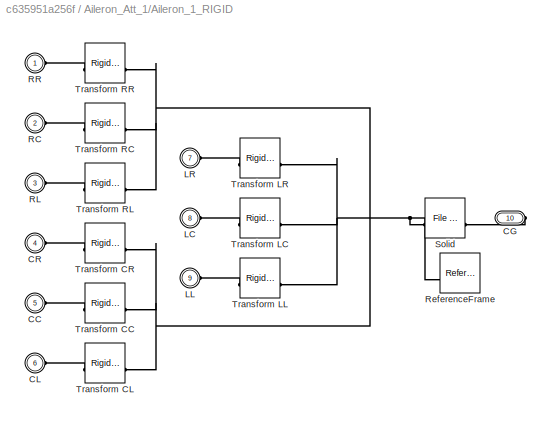
BLOCK [SubSystem] Aileron_Att_1/Aileron_1_RIGID
BLOCK [PMIOPort] Aileron_Att_1/Aileron_1_RIGID/CC
  Port = 5
  Side = Left
BLOCK [PMIOPort] Aileron_Att_1/Aileron_1_RIGID/CG
  Port = 10
  Side = Right
BLOCK [PMIOPort] Aileron_Att_1/Aileron_1_RIGID/CL
  Port = 6
  Side = Left
BLOCK [PMIOPort] Aileron_Att_1/Aileron_1_RIGID/CR
  Port = 4
  Side = Left
BLOCK [PMIOPort] Aileron_Att_1/Aileron_1_RIGID/LC
  Port = 8
  Side = Left
BLOCK [PMIOPort] Aileron_Att_1/Aileron_1_RIGID/LL
  Port = 9
  Side = Left
BLOCK [PMIOPort] Aileron_Att_1/Aileron_1_RIGID/LR
  Port = 7
  Side = Left
BLOCK [PMIOPort] Aileron_Att_1/Aileron_1_RIGID/RC
  Port = 2
  Side = Left
BLOCK [PMIOPort] Aileron_Att_1/Aileron_1_RIGID/RL
  Port = 3
  Side = Left
BLOCK [PMIOPort] Aileron_Att_1/Aileron_1_RIGID/RR
  Side = Left
BLOCK [Reference] Aileron_Att_1/Aileron_1_RIGID/ReferenceFrame  REF=sm_lib/Frames and
Transforms/Reference
Frame
  SourceBlock = sm_lib/Frames and\nTransforms/Reference\nFrame
  SourceType = Reference\nFrame
BLOCK [Reference] Aileron_Att_1/Aileron_1_RIGID/Solid  REF=sm_lib/Body Elements/File Solid
  SourceBlock = sm_lib/Body Elements/File Solid
  SourceType = File Solid
BLOCK [Reference] Aileron_Att_1/Aileron_1_RIGID/Transform CC  REF=sm_lib/Frames and
Transforms/Rigid
Transform
  SourceBlock = sm_lib/Frames and\nTransforms/Rigid\nTransform
  SourceType = Rigid\nTransform
BLOCK [Reference] Aileron_Att_1/Aileron_1_RIGID/Transform CL  REF=sm_lib/Frames and
Transforms/Rigid
Transform
  SourceBlock = sm_lib/Frames and\nTransforms/Rigid\nTransform
  SourceType = Rigid\nTransform
BLOCK [Reference] Aileron_Att_1/Aileron_1_RIGID/Transform CR  REF=sm_lib/Frames and
Transforms/Rigid
Transform
  SourceBlock = sm_lib/Frames and\nTransforms/Rigid\nTransform
  SourceType = Rigid\nTransform
BLOCK [Reference] Aileron_Att_1/Aileron_1_RIGID/Transform LC  REF=sm_lib/Frames and
Transforms/Rigid
Transform
  SourceBlock = sm_lib/Frames and\nTransforms/Rigid\nTransform
  SourceType = Rigid\nTransform
BLOCK [Reference] Aileron_Att_1/Aileron_1_RIGID/Transform LL  REF=sm_lib/Frames and
Transforms/Rigid
Transform
  SourceBlock = sm_lib/Frames and\nTransforms/Rigid\nTransform
  SourceType = Rigid\nTransform
BLOCK [Reference] Aileron_Att_1/Aileron_1_RIGID/Transform LR  REF=sm_lib/Frames and
Transforms/Rigid
Transform
  SourceBlock = sm_lib/Frames and\nTransforms/Rigid\nTransform
  SourceType = Rigid\nTransform
BLOCK [Reference] Aileron_Att_1/Aileron_1_RIGID/Transform RC  REF=sm_lib/Frames and
Transforms/Rigid
Transform
  SourceBlock = sm_lib/Frames and\nTransforms/Rigid\nTransform
  SourceType = Rigid\nTransform
BLOCK [Reference] Aileron_Att_1/Aileron_1_RIGID/Transform RL  REF=sm_lib/Frames and
Transforms/Rigid
Transform
  SourceBlock = sm_lib/Frames and\nTransforms/Rigid\nTransform
  SourceType = Rigid\nTransform
BLOCK [Reference] Aileron_Att_1/Aileron_1_RIGID/Transform RR  REF=sm_lib/Frames and
Transforms/Rigid
Transform
  SourceBlock = sm_lib/Frames and\nTransforms/Rigid\nTransform
  SourceType = Rigid\nTransform
BLOCK [PMIOPort] Aileron_Att_1/CG
  Port = 5
  Side = Right
BLOCK [PMIOPort] Aileron_Att_1/MCL
  Side = Left
BLOCK [SubSystem] Aileron_Att_1/MountC_Att_1
BLOCK [PMIOPort] Aileron_Att_1/MountC_Att_1/A
  NameLocation = top
  Port = 5
  Side = Left
BLOCK [SubSystem] Aileron_Att_1/MountC_Att_1/Bracket C
BLOCK [PMIOPort] Aileron_Att_1/MountC_Att_1/Bracket C/Act
  Port = 2
  Side = Left
BLOCK [PMIOPort] Aileron_Att_1/MountC_Att_1/Bracket C/Ail
  Side = Right
BLOCK [SubSystem] Aileron_Att_1/MountC_Att_1/Bracket C/AilBrk_C_1_RIGID
BLOCK [PMIOPort] Aileron_Att_1/MountC_Att_1/Bracket C/AilBrk_C_1_RIGID/F
  Port = 2
  Side = Right
BLOCK [PMIOPort] Aileron_Att_1/MountC_Att_1/Bracket C/AilBrk_C_1_RIGID/F1
  Port = 3
  Side = Left
BLOCK [PMIOPort] Aileron_Att_1/MountC_Att_1/Bracket C/AilBrk_C_1_RIGID/G
  Side = Left
BLOCK [Reference] Aileron_Att_1/MountC_Att_1/Bracket C/AilBrk_C_1_RIGID/ReferenceFrame  REF=sm_lib/Frames and
Transforms/Reference
Frame
  SourceBlock = sm_lib/Frames and\nTransforms/Reference\nFrame
  SourceType = Reference\nFrame
BLOCK [Reference] Aileron_Att_1/MountC_Att_1/Bracket C/AilBrk_C_1_RIGID/Solid  REF=sm_lib/Body Elements/File Solid
  SourceBlock = sm_lib/Body Elements/File Solid
  SourceType = File Solid
BLOCK [Reference] Aileron_Att_1/MountC_Att_1/Bracket C/AilBrk_C_1_RIGID/Transform  REF=sm_lib/Frames and
Transforms/Rigid
Transform
  SourceBlock = sm_lib/Frames and\nTransforms/Rigid\nTransform
  SourceType = Rigid\nTransform
BLOCK [Reference] Aileron_Att_1/MountC_Att_1/Bracket C/AilBrk_C_1_RIGID/Transform Manual4Vis  REF=sm_lib/Frames and
Transforms/Rigid
Transform
  SourceBlock = sm_lib/Frames and\nTransforms/Rigid\nTransform
  SourceType = Rigid\nTransform
BLOCK [Reference] Aileron_Att_1/MountC_Att_1/Bracket C/AilBrk_C_1_RIGID/Transform1  REF=sm_lib/Frames and
Transforms/Rigid
Transform
  SourceBlock = sm_lib/Frames and\nTransforms/Rigid\nTransform
  SourceType = Rigid\nTransform
BLOCK [Reference] Aileron_Att_1/MountC_Att_1/Bracket C/AilBrk_C_1_RIGID/Transform2  REF=sm_lib/Frames and
Transforms/Rigid
Transform
  SourceBlock = sm_lib/Frames and\nTransforms/Rigid\nTransform
  SourceType = Rigid\nTransform
BLOCK [SubSystem] Aileron_Att_1/MountC_Att_1/Bracket C/Bolt CBrk
BLOCK [PMIOPort] Aileron_Att_1/MountC_Att_1/Bracket C/Bolt CBrk/G
  Side = Left
BLOCK [SubSystem] Aileron_Att_1/MountC_Att_1/Bracket C/Bolt CBrk/Hex_Flange_Screw_M6_1_RIGID
BLOCK [PMIOPort] Aileron_Att_1/MountC_Att_1/Bracket C/Bolt CBrk/Hex_Flange_Screw_M6_1_RIGID/G
  Side = Left
BLOCK [Reference] Aileron_Att_1/MountC_Att_1/Bracket C/Bolt CBrk/Hex_Flange_Screw_M6_1_RIGID/ReferenceFrame  REF=sm_lib/Frames and
Transforms/Reference
Frame
  SourceBlock = sm_lib/Frames and\nTransforms/Reference\nFrame
  SourceType = Reference\nFrame
BLOCK [Reference] Aileron_Att_1/MountC_Att_1/Bracket C/Bolt CBrk/Hex_Flange_Screw_M6_1_RIGID/Solid  REF=sm_lib/Body Elements/File Solid
  SourceBlock = sm_lib/Body Elements/File Solid
  SourceType = File Solid
BLOCK [Reference] Aileron_Att_1/MountC_Att_1/Bracket C/Bolt CBrk/Hex_Flange_Screw_M6_1_RIGID/Transform  REF=sm_lib/Frames and
Transforms/Rigid
Transform
  SourceBlock = sm_lib/Frames and\nTransforms/Rigid\nTransform
  SourceType = Rigid\nTransform
BLOCK [SubSystem] Aileron_Att_1/MountC_Att_1/Bracket C/Bolt CBrk/Hex_Flange_Screw_M6_2_RIGID
BLOCK [PMIOPort] Aileron_Att_1/MountC_Att_1/Bracket C/Bolt CBrk/Hex_Flange_Screw_M6_2_RIGID/G
  Side = Left
BLOCK [Reference] Aileron_Att_1/MountC_Att_1/Bracket C/Bolt CBrk/Hex_Flange_Screw_M6_2_RIGID/ReferenceFrame  REF=sm_lib/Frames and
Transforms/Reference
Frame
  SourceBlock = sm_lib/Frames and\nTransforms/Reference\nFrame
  SourceType = Reference\nFrame
BLOCK [Reference] Aileron_Att_1/MountC_Att_1/Bracket C/Bolt CBrk/Hex_Flange_Screw_M6_2_RIGID/Solid  REF=sm_lib/Body Elements/File Solid
  SourceBlock = sm_lib/Body Elements/File Solid
  SourceType = File Solid
BLOCK [Reference] Aileron_Att_1/MountC_Att_1/Bracket C/Bolt CBrk/Hex_Flange_Screw_M6_2_RIGID/Transform  REF=sm_lib/Frames and
Transforms/Rigid
Transform
  SourceBlock = sm_lib/Frames and\nTransforms/Rigid\nTransform
  SourceType = Rigid\nTransform
BLOCK [SubSystem] Aileron_Att_1/MountC_Att_1/Bracket C/Bolt CBrk/Hex_Flange_Screw_M6_3_RIGID
BLOCK [PMIOPort] Aileron_Att_1/MountC_Att_1/Bracket C/Bolt CBrk/Hex_Flange_Screw_M6_3_RIGID/G
  Side = Left
BLOCK [Reference] Aileron_Att_1/MountC_Att_1/Bracket C/Bolt CBrk/Hex_Flange_Screw_M6_3_RIGID/ReferenceFrame  REF=sm_lib/Frames and
Transforms/Reference
Frame
  SourceBlock = sm_lib/Frames and\nTransforms/Reference\nFrame
  SourceType = Reference\nFrame
BLOCK [Reference] Aileron_Att_1/MountC_Att_1/Bracket C/Bolt CBrk/Hex_Flange_Screw_M6_3_RIGID/Solid  REF=sm_lib/Body Elements/File Solid
  SourceBlock = sm_lib/Body Elements/File Solid
  SourceType = File Solid
BLOCK [Reference] Aileron_Att_1/MountC_Att_1/Bracket C/Bolt CBrk/Hex_Flange_Screw_M6_3_RIGID/Transform  REF=sm_lib/Frames and
Transforms/Rigid
Transform
  SourceBlock = sm_lib/Frames and\nTransforms/Rigid\nTransform
  SourceType = Rigid\nTransform
BLOCK [SubSystem] Aileron_Att_1/MountC_Att_1/Bracket C/Bolt CBrk/Hex_Flange_Screw_M6_4_RIGID
BLOCK [PMIOPort] Aileron_Att_1/MountC_Att_1/Bracket C/Bolt CBrk/Hex_Flange_Screw_M6_4_RIGID/G
  Side = Left
BLOCK [Reference] Aileron_Att_1/MountC_Att_1/Bracket C/Bolt CBrk/Hex_Flange_Screw_M6_4_RIGID/ReferenceFrame  REF=sm_lib/Frames and
Transforms/Reference
Frame
  SourceBlock = sm_lib/Frames and\nTransforms/Reference\nFrame
  SourceType = Reference\nFrame
BLOCK [Reference] Aileron_Att_1/MountC_Att_1/Bracket C/Bolt CBrk/Hex_Flange_Screw_M6_4_RIGID/Solid  REF=sm_lib/Body Elements/File Solid
  SourceBlock = sm_lib/Body Elements/File Solid
  SourceType = File Solid
BLOCK [Reference] Aileron_Att_1/MountC_Att_1/Bracket C/Bolt CBrk/Hex_Flange_Screw_M6_4_RIGID/Transform  REF=sm_lib/Frames and
Transforms/Rigid
Transform
  SourceBlock = sm_lib/Frames and\nTransforms/Rigid\nTransform
  SourceType = Rigid\nTransform
BLOCK [SubSystem] Aileron_Att_1/MountC_Att_1/Bracket C/Bolt CBrk/Hex_Flange_Screw_M6_5_RIGID
BLOCK [PMIOPort] Aileron_Att_1/MountC_Att_1/Bracket C/Bolt CBrk/Hex_Flange_Screw_M6_5_RIGID/G
  Side = Left
BLOCK [Reference] Aileron_Att_1/MountC_Att_1/Bracket C/Bolt CBrk/Hex_Flange_Screw_M6_5_RIGID/ReferenceFrame  REF=sm_lib/Frames and
Transforms/Reference
Frame
  SourceBlock = sm_lib/Frames and\nTransforms/Reference\nFrame
  SourceType = Reference\nFrame
BLOCK [Reference] Aileron_Att_1/MountC_Att_1/Bracket C/Bolt CBrk/Hex_Flange_Screw_M6_5_RIGID/Solid  REF=sm_lib/Body Elements/File Solid
  SourceBlock = sm_lib/Body Elements/File Solid
  SourceType = File Solid
BLOCK [Reference] Aileron_Att_1/MountC_Att_1/Bracket C/Bolt CBrk/Hex_Flange_Screw_M6_5_RIGID/Transform  REF=sm_lib/Frames and
Transforms/Rigid
Transform
  SourceBlock = sm_lib/Frames and\nTransforms/Rigid\nTransform
  SourceType = Rigid\nTransform
BLOCK [SubSystem] Aileron_Att_1/MountC_Att_1/Bracket C/Bolt CBrk/Hex_Flange_Screw_M6_6_RIGID
BLOCK [PMIOPort] Aileron_Att_1/MountC_Att_1/Bracket C/Bolt CBrk/Hex_Flange_Screw_M6_6_RIGID/G
  Side = Left
BLOCK [Reference] Aileron_Att_1/MountC_Att_1/Bracket C/Bolt CBrk/Hex_Flange_Screw_M6_6_RIGID/ReferenceFrame  REF=sm_lib/Frames and
Transforms/Reference
Frame
  SourceBlock = sm_lib/Frames and\nTransforms/Reference\nFrame
  SourceType = Reference\nFrame
BLOCK [Reference] Aileron_Att_1/MountC_Att_1/Bracket C/Bolt CBrk/Hex_Flange_Screw_M6_6_RIGID/Solid  REF=sm_lib/Body Elements/File Solid
  SourceBlock = sm_lib/Body Elements/File Solid
  SourceType = File Solid
BLOCK [Reference] Aileron_Att_1/MountC_Att_1/Bracket C/Bolt CBrk/Hex_Flange_Screw_M6_6_RIGID/Transform  REF=sm_lib/Frames and
Transforms/Rigid
Transform
  SourceBlock = sm_lib/Frames and\nTransforms/Rigid\nTransform
  SourceType = Rigid\nTransform
BLOCK [SubSystem] Aileron_Att_1/MountC_Att_1/Bracket C/Screws CBrk
BLOCK [PMIOPort] Aileron_Att_1/MountC_Att_1/Bracket C/Screws CBrk/G
  Side = Left
BLOCK [SubSystem] Aileron_Att_1/MountC_Att_1/Bracket C/Screws CBrk/Hex_Bolt_M10_3_RIGID
BLOCK [PMIOPort] Aileron_Att_1/MountC_Att_1/Bracket C/Screws CBrk/Hex_Bolt_M10_3_RIGID/G
  Side = Left
BLOCK [Reference] Aileron_Att_1/MountC_Att_1/Bracket C/Screws CBrk/Hex_Bolt_M10_3_RIGID/ReferenceFrame  REF=sm_lib/Frames and
Transforms/Reference
Frame
  SourceBlock = sm_lib/Frames and\nTransforms/Reference\nFrame
  SourceType = Reference\nFrame
BLOCK [Reference] Aileron_Att_1/MountC_Att_1/Bracket C/Screws CBrk/Hex_Bolt_M10_3_RIGID/Solid  REF=sm_lib/Body Elements/File Solid
  SourceBlock = sm_lib/Body Elements/File Solid
  SourceType = File Solid
BLOCK [Reference] Aileron_Att_1/MountC_Att_1/Bracket C/Screws CBrk/Hex_Bolt_M10_3_RIGID/Transform  REF=sm_lib/Frames and
Transforms/Rigid
Transform
  SourceBlock = sm_lib/Frames and\nTransforms/Rigid\nTransform
  SourceType = Rigid\nTransform
BLOCK [SubSystem] Aileron_Att_1/MountC_Att_1/Bracket C/Screws CBrk/Hex_Flange_Nut_M10_1_RIGID
BLOCK [PMIOPort] Aileron_Att_1/MountC_Att_1/Bracket C/Screws CBrk/Hex_Flange_Nut_M10_1_RIGID/G
  Side = Left
BLOCK [Reference] Aileron_Att_1/MountC_Att_1/Bracket C/Screws CBrk/Hex_Flange_Nut_M10_1_RIGID/ReferenceFrame  REF=sm_lib/Frames and
Transforms/Reference
Frame
  SourceBlock = sm_lib/Frames and\nTransforms/Reference\nFrame
  SourceType = Reference\nFrame
BLOCK [Reference] Aileron_Att_1/MountC_Att_1/Bracket C/Screws CBrk/Hex_Flange_Nut_M10_1_RIGID/Solid  REF=sm_lib/Body Elements/File Solid
  SourceBlock = sm_lib/Body Elements/File Solid
  SourceType = File Solid
BLOCK [Reference] Aileron_Att_1/MountC_Att_1/Bracket C/Screws CBrk/Hex_Flange_Nut_M10_1_RIGID/Transform  REF=sm_lib/Frames and
Transforms/Rigid
Transform
  SourceBlock = sm_lib/Frames and\nTransforms/Rigid\nTransform
  SourceType = Rigid\nTransform
BLOCK [SubSystem] Aileron_Att_1/MountC_Att_1/Bracket C/Screws CBrk/Washer_3_RIGID
BLOCK [PMIOPort] Aileron_Att_1/MountC_Att_1/Bracket C/Screws CBrk/Washer_3_RIGID/G
  Side = Left
BLOCK [Reference] Aileron_Att_1/MountC_Att_1/Bracket C/Screws CBrk/Washer_3_RIGID/ReferenceFrame  REF=sm_lib/Frames and
Transforms/Reference
Frame
  SourceBlock = sm_lib/Frames and\nTransforms/Reference\nFrame
  SourceType = Reference\nFrame
BLOCK [Reference] Aileron_Att_1/MountC_Att_1/Bracket C/Screws CBrk/Washer_3_RIGID/Solid  REF=sm_lib/Body Elements/File Solid
  SourceBlock = sm_lib/Body Elements/File Solid
  SourceType = File Solid
BLOCK [Reference] Aileron_Att_1/MountC_Att_1/Bracket C/Screws CBrk/Washer_3_RIGID/Transform  REF=sm_lib/Frames and
Transforms/Rigid
Transform
  SourceBlock = sm_lib/Frames and\nTransforms/Rigid\nTransform
  SourceType = Rigid\nTransform
BLOCK [SubSystem] Aileron_Att_1/MountC_Att_1/Bracket C/Screws CBrk/Washer_4_RIGID
BLOCK [PMIOPort] Aileron_Att_1/MountC_Att_1/Bracket C/Screws CBrk/Washer_4_RIGID/G
  Side = Left
BLOCK [Reference] Aileron_Att_1/MountC_Att_1/Bracket C/Screws CBrk/Washer_4_RIGID/ReferenceFrame  REF=sm_lib/Frames and
Transforms/Reference
Frame
  SourceBlock = sm_lib/Frames and\nTransforms/Reference\nFrame
  SourceType = Reference\nFrame
BLOCK [Reference] Aileron_Att_1/MountC_Att_1/Bracket C/Screws CBrk/Washer_4_RIGID/Solid  REF=sm_lib/Body Elements/File Solid
  SourceBlock = sm_lib/Body Elements/File Solid
  SourceType = File Solid
BLOCK [Reference] Aileron_Att_1/MountC_Att_1/Bracket C/Screws CBrk/Washer_4_RIGID/Transform  REF=sm_lib/Frames and
Transforms/Rigid
Transform
  SourceBlock = sm_lib/Frames and\nTransforms/Rigid\nTransform
  SourceType = Rigid\nTransform
BLOCK [SubSystem] Aileron_Att_1/MountC_Att_1/Bracket L
  NameLocation = left
BLOCK [PMIOPort] Aileron_Att_1/MountC_Att_1/Bracket L/Ail
  Port = 2
  Side = Right
BLOCK [SubSystem] Aileron_Att_1/MountC_Att_1/Bracket L/AilBrk_L_1_RIGID
BLOCK [PMIOPort] Aileron_Att_1/MountC_Att_1/Bracket L/AilBrk_L_1_RIGID/F
  Port = 2
  Side = Right
BLOCK [PMIOPort] Aileron_Att_1/MountC_Att_1/Bracket L/AilBrk_L_1_RIGID/G
  Side = Left
BLOCK [Reference] Aileron_Att_1/MountC_Att_1/Bracket L/AilBrk_L_1_RIGID/ReferenceFrame  REF=sm_lib/Frames and
Transforms/Reference
Frame
  SourceBlock = sm_lib/Frames and\nTransforms/Reference\nFrame
  SourceType = Reference\nFrame
BLOCK [Reference] Aileron_Att_1/MountC_Att_1/Bracket L/AilBrk_L_1_RIGID/Solid  REF=sm_lib/Body Elements/File Solid
  SourceBlock = sm_lib/Body Elements/File Solid
  SourceType = File Solid
BLOCK [Reference] Aileron_Att_1/MountC_Att_1/Bracket L/AilBrk_L_1_RIGID/Transform  REF=sm_lib/Frames and
Transforms/Rigid
Transform
  SourceBlock = sm_lib/Frames and\nTransforms/Rigid\nTransform
  SourceType = Rigid\nTransform
BLOCK [Reference] Aileron_Att_1/MountC_Att_1/Bracket L/AilBrk_L_1_RIGID/Transform Manual4Vis  REF=sm_lib/Frames and
Transforms/Rigid
Transform
  SourceBlock = sm_lib/Frames and\nTransforms/Rigid\nTransform
  SourceType = Rigid\nTransform
BLOCK [Reference] Aileron_Att_1/MountC_Att_1/Bracket L/AilBrk_L_1_RIGID/Transform1  REF=sm_lib/Frames and
Transforms/Rigid
Transform
  SourceBlock = sm_lib/Frames and\nTransforms/Rigid\nTransform
  SourceType = Rigid\nTransform
BLOCK [SubSystem] Aileron_Att_1/MountC_Att_1/Bracket L/Bolt LBrk
BLOCK [PMIOPort] Aileron_Att_1/MountC_Att_1/Bracket L/Bolt LBrk/G
  Port = 2
  Side = Left
BLOCK [SubSystem] Aileron_Att_1/MountC_Att_1/Bracket L/Bolt LBrk/Hex_Bolt_M10_2_RIGID
BLOCK [PMIOPort] Aileron_Att_1/MountC_Att_1/Bracket L/Bolt LBrk/Hex_Bolt_M10_2_RIGID/G
  Side = Left
BLOCK [Reference] Aileron_Att_1/MountC_Att_1/Bracket L/Bolt LBrk/Hex_Bolt_M10_2_RIGID/ReferenceFrame  REF=sm_lib/Frames and
Transforms/Reference
Frame
  SourceBlock = sm_lib/Frames and\nTransforms/Reference\nFrame
  SourceType = Reference\nFrame
BLOCK [Reference] Aileron_Att_1/MountC_Att_1/Bracket L/Bolt LBrk/Hex_Bolt_M10_2_RIGID/Solid  REF=sm_lib/Body Elements/File Solid
  SourceBlock = sm_lib/Body Elements/File Solid
  SourceType = File Solid
BLOCK [Reference] Aileron_Att_1/MountC_Att_1/Bracket L/Bolt LBrk/Hex_Bolt_M10_2_RIGID/Transform  REF=sm_lib/Frames and
Transforms/Rigid
Transform
  SourceBlock = sm_lib/Frames and\nTransforms/Rigid\nTransform
  SourceType = Rigid\nTransform
BLOCK [PMIOPort] Aileron_Att_1/MountC_Att_1/Bracket L/Bolt LBrk/M
  Side = Left
BLOCK [SubSystem] Aileron_Att_1/MountC_Att_1/Bracket L/Bolt LBrk/Washer_1_RIGID
BLOCK [PMIOPort] Aileron_Att_1/MountC_Att_1/Bracket L/Bolt LBrk/Washer_1_RIGID/F
  Side = Left
BLOCK [PMIOPort] Aileron_Att_1/MountC_Att_1/Bracket L/Bolt LBrk/Washer_1_RIGID/G
  Port = 2
  Side = Left
BLOCK [Reference] Aileron_Att_1/MountC_Att_1/Bracket L/Bolt LBrk/Washer_1_RIGID/ReferenceFrame  REF=sm_lib/Frames and
Transforms/Reference
Frame
  SourceBlock = sm_lib/Frames and\nTransforms/Reference\nFrame
  SourceType = Reference\nFrame
BLOCK [Reference] Aileron_Att_1/MountC_Att_1/Bracket L/Bolt LBrk/Washer_1_RIGID/Solid  REF=sm_lib/Body Elements/File Solid
  SourceBlock = sm_lib/Body Elements/File Solid
  SourceType = File Solid
BLOCK [Reference] Aileron_Att_1/MountC_Att_1/Bracket L/Bolt LBrk/Washer_1_RIGID/Transform  REF=sm_lib/Frames and
Transforms/Rigid
Transform
  SourceBlock = sm_lib/Frames and\nTransforms/Rigid\nTransform
  SourceType = Rigid\nTransform
BLOCK [Reference] Aileron_Att_1/MountC_Att_1/Bracket L/Bolt LBrk/Washer_1_RIGID/Transform1  REF=sm_lib/Frames and
Transforms/Rigid
Transform
  SourceBlock = sm_lib/Frames and\nTransforms/Rigid\nTransform
  SourceType = Rigid\nTransform
BLOCK [PMIOPort] Aileron_Att_1/MountC_Att_1/Bracket L/M
  Side = Left
BLOCK [SubSystem] Aileron_Att_1/MountC_Att_1/Bracket L/Screws LBrk
BLOCK [PMIOPort] Aileron_Att_1/MountC_Att_1/Bracket L/Screws LBrk/G
  Side = Left
BLOCK [SubSystem] Aileron_Att_1/MountC_Att_1/Bracket L/Screws LBrk/Oval_Head_M4_12_RIGID
BLOCK [PMIOPort] Aileron_Att_1/MountC_Att_1/Bracket L/Screws LBrk/Oval_Head_M4_12_RIGID/G
  Side = Left
BLOCK [Reference] Aileron_Att_1/MountC_Att_1/Bracket L/Screws LBrk/Oval_Head_M4_12_RIGID/ReferenceFrame  REF=sm_lib/Frames and
Transforms/Reference
Frame
  SourceBlock = sm_lib/Frames and\nTransforms/Reference\nFrame
  SourceType = Reference\nFrame
BLOCK [Reference] Aileron_Att_1/MountC_Att_1/Bracket L/Screws LBrk/Oval_Head_M4_12_RIGID/Solid  REF=sm_lib/Body Elements/File Solid
  SourceBlock = sm_lib/Body Elements/File Solid
  SourceType = File Solid
BLOCK [Reference] Aileron_Att_1/MountC_Att_1/Bracket L/Screws LBrk/Oval_Head_M4_12_RIGID/Transform  REF=sm_lib/Frames and
Transforms/Rigid
Transform
  SourceBlock = sm_lib/Frames and\nTransforms/Rigid\nTransform
  SourceType = Rigid\nTransform
BLOCK [SubSystem] Aileron_Att_1/MountC_Att_1/Bracket L/Screws LBrk/Oval_Head_M4_1_RIGID
BLOCK [PMIOPort] Aileron_Att_1/MountC_Att_1/Bracket L/Screws LBrk/Oval_Head_M4_1_RIGID/G
  Side = Left
BLOCK [Reference] Aileron_Att_1/MountC_Att_1/Bracket L/Screws LBrk/Oval_Head_M4_1_RIGID/ReferenceFrame  REF=sm_lib/Frames and
Transforms/Reference
Frame
  SourceBlock = sm_lib/Frames and\nTransforms/Reference\nFrame
  SourceType = Reference\nFrame
BLOCK [Reference] Aileron_Att_1/MountC_Att_1/Bracket L/Screws LBrk/Oval_Head_M4_1_RIGID/Solid  REF=sm_lib/Body Elements/File Solid
  SourceBlock = sm_lib/Body Elements/File Solid
  SourceType = File Solid
BLOCK [Reference] Aileron_Att_1/MountC_Att_1/Bracket L/Screws LBrk/Oval_Head_M4_1_RIGID/Transform  REF=sm_lib/Frames and
Transforms/Rigid
Transform
  SourceBlock = sm_lib/Frames and\nTransforms/Rigid\nTransform
  SourceType = Rigid\nTransform
BLOCK [SubSystem] Aileron_Att_1/MountC_Att_1/Bracket L/Screws LBrk/Oval_Head_M4_4_RIGID
BLOCK [PMIOPort] Aileron_Att_1/MountC_Att_1/Bracket L/Screws LBrk/Oval_Head_M4_4_RIGID/G
  Side = Left
BLOCK [Reference] Aileron_Att_1/MountC_Att_1/Bracket L/Screws LBrk/Oval_Head_M4_4_RIGID/ReferenceFrame  REF=sm_lib/Frames and
Transforms/Reference
Frame
  SourceBlock = sm_lib/Frames and\nTransforms/Reference\nFrame
  SourceType = Reference\nFrame
BLOCK [Reference] Aileron_Att_1/MountC_Att_1/Bracket L/Screws LBrk/Oval_Head_M4_4_RIGID/Solid  REF=sm_lib/Body Elements/File Solid
  SourceBlock = sm_lib/Body Elements/File Solid
  SourceType = File Solid
BLOCK [Reference] Aileron_Att_1/MountC_Att_1/Bracket L/Screws LBrk/Oval_Head_M4_4_RIGID/Transform  REF=sm_lib/Frames and
Transforms/Rigid
Transform
  SourceBlock = sm_lib/Frames and\nTransforms/Rigid\nTransform
  SourceType = Rigid\nTransform
BLOCK [SubSystem] Aileron_Att_1/MountC_Att_1/Bracket L/Screws LBrk/Oval_Head_M4_5_RIGID
BLOCK [PMIOPort] Aileron_Att_1/MountC_Att_1/Bracket L/Screws LBrk/Oval_Head_M4_5_RIGID/G
  Side = Left
BLOCK [Reference] Aileron_Att_1/MountC_Att_1/Bracket L/Screws LBrk/Oval_Head_M4_5_RIGID/ReferenceFrame  REF=sm_lib/Frames and
Transforms/Reference
Frame
  SourceBlock = sm_lib/Frames and\nTransforms/Reference\nFrame
  SourceType = Reference\nFrame
BLOCK [Reference] Aileron_Att_1/MountC_Att_1/Bracket L/Screws LBrk/Oval_Head_M4_5_RIGID/Solid  REF=sm_lib/Body Elements/File Solid
  SourceBlock = sm_lib/Body Elements/File Solid
  SourceType = File Solid
BLOCK [Reference] Aileron_Att_1/MountC_Att_1/Bracket L/Screws LBrk/Oval_Head_M4_5_RIGID/Transform  REF=sm_lib/Frames and
Transforms/Rigid
Transform
  SourceBlock = sm_lib/Frames and\nTransforms/Rigid\nTransform
  SourceType = Rigid\nTransform
BLOCK [SubSystem] Aileron_Att_1/MountC_Att_1/Bracket L/Screws LBrk/Oval_Head_M4_6_RIGID
BLOCK [PMIOPort] Aileron_Att_1/MountC_Att_1/Bracket L/Screws LBrk/Oval_Head_M4_6_RIGID/G
  Side = Left
BLOCK [Reference] Aileron_Att_1/MountC_Att_1/Bracket L/Screws LBrk/Oval_Head_M4_6_RIGID/ReferenceFrame  REF=sm_lib/Frames and
Transforms/Reference
Frame
  SourceBlock = sm_lib/Frames and\nTransforms/Reference\nFrame
  SourceType = Reference\nFrame
BLOCK [Reference] Aileron_Att_1/MountC_Att_1/Bracket L/Screws LBrk/Oval_Head_M4_6_RIGID/Solid  REF=sm_lib/Body Elements/File Solid
  SourceBlock = sm_lib/Body Elements/File Solid
  SourceType = File Solid
BLOCK [Reference] Aileron_Att_1/MountC_Att_1/Bracket L/Screws LBrk/Oval_Head_M4_6_RIGID/Transform  REF=sm_lib/Frames and
Transforms/Rigid
Transform
  SourceBlock = sm_lib/Frames and\nTransforms/Rigid\nTransform
  SourceType = Rigid\nTransform
BLOCK [SubSystem] Aileron_Att_1/MountC_Att_1/Bracket L/Screws LBrk/Oval_Head_M4_8_RIGID
BLOCK [PMIOPort] Aileron_Att_1/MountC_Att_1/Bracket L/Screws LBrk/Oval_Head_M4_8_RIGID/G
  Side = Left
BLOCK [Reference] Aileron_Att_1/MountC_Att_1/Bracket L/Screws LBrk/Oval_Head_M4_8_RIGID/ReferenceFrame  REF=sm_lib/Frames and
Transforms/Reference
Frame
  SourceBlock = sm_lib/Frames and\nTransforms/Reference\nFrame
  SourceType = Reference\nFrame
BLOCK [Reference] Aileron_Att_1/MountC_Att_1/Bracket L/Screws LBrk/Oval_Head_M4_8_RIGID/Solid  REF=sm_lib/Body Elements/File Solid
  SourceBlock = sm_lib/Body Elements/File Solid
  SourceType = File Solid
BLOCK [Reference] Aileron_Att_1/MountC_Att_1/Bracket L/Screws LBrk/Oval_Head_M4_8_RIGID/Transform  REF=sm_lib/Frames and
Transforms/Rigid
Transform
  SourceBlock = sm_lib/Frames and\nTransforms/Rigid\nTransform
  SourceType = Rigid\nTransform
BLOCK [SubSystem] Aileron_Att_1/MountC_Att_1/Bracket R
  NameLocation = left
BLOCK [PMIOPort] Aileron_Att_1/MountC_Att_1/Bracket R/Ail
  Side = Right
BLOCK [SubSystem] Aileron_Att_1/MountC_Att_1/Bracket R/AilBrk_R_1_RIGID
BLOCK [PMIOPort] Aileron_Att_1/MountC_Att_1/Bracket R/AilBrk_R_1_RIGID/F
  Port = 2
  Side = Right
BLOCK [PMIOPort] Aileron_Att_1/MountC_Att_1/Bracket R/AilBrk_R_1_RIGID/G
  Side = Left
BLOCK [Reference] Aileron_Att_1/MountC_Att_1/Bracket R/AilBrk_R_1_RIGID/ReferenceFrame  REF=sm_lib/Frames and
Transforms/Reference
Frame
  SourceBlock = sm_lib/Frames and\nTransforms/Reference\nFrame
  SourceType = Reference\nFrame
BLOCK [Reference] Aileron_Att_1/MountC_Att_1/Bracket R/AilBrk_R_1_RIGID/Solid  REF=sm_lib/Body Elements/File Solid
  SourceBlock = sm_lib/Body Elements/File Solid
  SourceType = File Solid
BLOCK [Reference] Aileron_Att_1/MountC_Att_1/Bracket R/AilBrk_R_1_RIGID/Transform  REF=sm_lib/Frames and
Transforms/Rigid
Transform
  SourceBlock = sm_lib/Frames and\nTransforms/Rigid\nTransform
  SourceType = Rigid\nTransform
BLOCK [Reference] Aileron_Att_1/MountC_Att_1/Bracket R/AilBrk_R_1_RIGID/Transform Manual4Vis  REF=sm_lib/Frames and
Transforms/Rigid
Transform
  SourceBlock = sm_lib/Frames and\nTransforms/Rigid\nTransform
  SourceType = Rigid\nTransform
BLOCK [Reference] Aileron_Att_1/MountC_Att_1/Bracket R/AilBrk_R_1_RIGID/Transform1  REF=sm_lib/Frames and
Transforms/Rigid
Transform
  SourceBlock = sm_lib/Frames and\nTransforms/Rigid\nTransform
  SourceType = Rigid\nTransform
BLOCK [SubSystem] Aileron_Att_1/MountC_Att_1/Bracket R/Bolt RBrk
BLOCK [PMIOPort] Aileron_Att_1/MountC_Att_1/Bracket R/Bolt RBrk/G
  Side = Left
BLOCK [SubSystem] Aileron_Att_1/MountC_Att_1/Bracket R/Bolt RBrk/Hex_Bolt_M10_1_RIGID
BLOCK [PMIOPort] Aileron_Att_1/MountC_Att_1/Bracket R/Bolt RBrk/Hex_Bolt_M10_1_RIGID/G
  Side = Left
BLOCK [Reference] Aileron_Att_1/MountC_Att_1/Bracket R/Bolt RBrk/Hex_Bolt_M10_1_RIGID/ReferenceFrame  REF=sm_lib/Frames and
Transforms/Reference
Frame
  SourceBlock = sm_lib/Frames and\nTransforms/Reference\nFrame
  SourceType = Reference\nFrame
BLOCK [Reference] Aileron_Att_1/MountC_Att_1/Bracket R/Bolt RBrk/Hex_Bolt_M10_1_RIGID/Solid  REF=sm_lib/Body Elements/File Solid
  SourceBlock = sm_lib/Body Elements/File Solid
  SourceType = File Solid
BLOCK [Reference] Aileron_Att_1/MountC_Att_1/Bracket R/Bolt RBrk/Hex_Bolt_M10_1_RIGID/Transform  REF=sm_lib/Frames and
Transforms/Rigid
Transform
  SourceBlock = sm_lib/Frames and\nTransforms/Rigid\nTransform
  SourceType = Rigid\nTransform
BLOCK [SubSystem] Aileron_Att_1/MountC_Att_1/Bracket R/Bolt RBrk/Washer_2_RIGID
BLOCK [PMIOPort] Aileron_Att_1/MountC_Att_1/Bracket R/Bolt RBrk/Washer_2_RIGID/G
  Side = Left
BLOCK [Reference] Aileron_Att_1/MountC_Att_1/Bracket R/Bolt RBrk/Washer_2_RIGID/ReferenceFrame  REF=sm_lib/Frames and
Transforms/Reference
Frame
  SourceBlock = sm_lib/Frames and\nTransforms/Reference\nFrame
  SourceType = Reference\nFrame
BLOCK [Reference] Aileron_Att_1/MountC_Att_1/Bracket R/Bolt RBrk/Washer_2_RIGID/Solid  REF=sm_lib/Body Elements/File Solid
  SourceBlock = sm_lib/Body Elements/File Solid
  SourceType = File Solid
BLOCK [Reference] Aileron_Att_1/MountC_Att_1/Bracket R/Bolt RBrk/Washer_2_RIGID/Transform  REF=sm_lib/Frames and
Transforms/Rigid
Transform
  SourceBlock = sm_lib/Frames and\nTransforms/Rigid\nTransform
  SourceType = Rigid\nTransform
BLOCK [SubSystem] Aileron_Att_1/MountC_Att_1/Bracket R/Screws RBrk
BLOCK [PMIOPort] Aileron_Att_1/MountC_Att_1/Bracket R/Screws RBrk/G
  Side = Left
BLOCK [SubSystem] Aileron_Att_1/MountC_Att_1/Bracket R/Screws RBrk/Oval_Head_M4_10_RIGID
BLOCK [PMIOPort] Aileron_Att_1/MountC_Att_1/Bracket R/Screws RBrk/Oval_Head_M4_10_RIGID/G
  Side = Left
BLOCK [Reference] Aileron_Att_1/MountC_Att_1/Bracket R/Screws RBrk/Oval_Head_M4_10_RIGID/ReferenceFrame  REF=sm_lib/Frames and
Transforms/Reference
Frame
  SourceBlock = sm_lib/Frames and\nTransforms/Reference\nFrame
  SourceType = Reference\nFrame
BLOCK [Reference] Aileron_Att_1/MountC_Att_1/Bracket R/Screws RBrk/Oval_Head_M4_10_RIGID/Solid  REF=sm_lib/Body Elements/File Solid
  SourceBlock = sm_lib/Body Elements/File Solid
  SourceType = File Solid
BLOCK [Reference] Aileron_Att_1/MountC_Att_1/Bracket R/Screws RBrk/Oval_Head_M4_10_RIGID/Transform  REF=sm_lib/Frames and
Transforms/Rigid
Transform
  SourceBlock = sm_lib/Frames and\nTransforms/Rigid\nTransform
  SourceType = Rigid\nTransform
BLOCK [SubSystem] Aileron_Att_1/MountC_Att_1/Bracket R/Screws RBrk/Oval_Head_M4_11_RIGID
BLOCK [PMIOPort] Aileron_Att_1/MountC_Att_1/Bracket R/Screws RBrk/Oval_Head_M4_11_RIGID/G
  Side = Left
BLOCK [Reference] Aileron_Att_1/MountC_Att_1/Bracket R/Screws RBrk/Oval_Head_M4_11_RIGID/ReferenceFrame  REF=sm_lib/Frames and
Transforms/Reference
Frame
  SourceBlock = sm_lib/Frames and\nTransforms/Reference\nFrame
  SourceType = Reference\nFrame
BLOCK [Reference] Aileron_Att_1/MountC_Att_1/Bracket R/Screws RBrk/Oval_Head_M4_11_RIGID/Solid  REF=sm_lib/Body Elements/File Solid
  SourceBlock = sm_lib/Body Elements/File Solid
  SourceType = File Solid
BLOCK [Reference] Aileron_Att_1/MountC_Att_1/Bracket R/Screws RBrk/Oval_Head_M4_11_RIGID/Transform  REF=sm_lib/Frames and
Transforms/Rigid
Transform
  SourceBlock = sm_lib/Frames and\nTransforms/Rigid\nTransform
  SourceType = Rigid\nTransform
BLOCK [SubSystem] Aileron_Att_1/MountC_Att_1/Bracket R/Screws RBrk/Oval_Head_M4_2_RIGID
BLOCK [PMIOPort] Aileron_Att_1/MountC_Att_1/Bracket R/Screws RBrk/Oval_Head_M4_2_RIGID/G
  Side = Left
BLOCK [Reference] Aileron_Att_1/MountC_Att_1/Bracket R/Screws RBrk/Oval_Head_M4_2_RIGID/ReferenceFrame  REF=sm_lib/Frames and
Transforms/Reference
Frame
  SourceBlock = sm_lib/Frames and\nTransforms/Reference\nFrame
  SourceType = Reference\nFrame
BLOCK [Reference] Aileron_Att_1/MountC_Att_1/Bracket R/Screws RBrk/Oval_Head_M4_2_RIGID/Solid  REF=sm_lib/Body Elements/File Solid
  SourceBlock = sm_lib/Body Elements/File Solid
  SourceType = File Solid
BLOCK [Reference] Aileron_Att_1/MountC_Att_1/Bracket R/Screws RBrk/Oval_Head_M4_2_RIGID/Transform  REF=sm_lib/Frames and
Transforms/Rigid
Transform
  SourceBlock = sm_lib/Frames and\nTransforms/Rigid\nTransform
  SourceType = Rigid\nTransform
BLOCK [SubSystem] Aileron_Att_1/MountC_Att_1/Bracket R/Screws RBrk/Oval_Head_M4_3_RIGID
BLOCK [PMIOPort] Aileron_Att_1/MountC_Att_1/Bracket R/Screws RBrk/Oval_Head_M4_3_RIGID/G
  Side = Left
BLOCK [Reference] Aileron_Att_1/MountC_Att_1/Bracket R/Screws RBrk/Oval_Head_M4_3_RIGID/ReferenceFrame  REF=sm_lib/Frames and
Transforms/Reference
Frame
  SourceBlock = sm_lib/Frames and\nTransforms/Reference\nFrame
  SourceType = Reference\nFrame
BLOCK [Reference] Aileron_Att_1/MountC_Att_1/Bracket R/Screws RBrk/Oval_Head_M4_3_RIGID/Solid  REF=sm_lib/Body Elements/File Solid
  SourceBlock = sm_lib/Body Elements/File Solid
  SourceType = File Solid
BLOCK [Reference] Aileron_Att_1/MountC_Att_1/Bracket R/Screws RBrk/Oval_Head_M4_3_RIGID/Transform  REF=sm_lib/Frames and
Transforms/Rigid
Transform
  SourceBlock = sm_lib/Frames and\nTransforms/Rigid\nTransform
  SourceType = Rigid\nTransform
BLOCK [SubSystem] Aileron_Att_1/MountC_Att_1/Bracket R/Screws RBrk/Oval_Head_M4_7_RIGID
BLOCK [PMIOPort] Aileron_Att_1/MountC_Att_1/Bracket R/Screws RBrk/Oval_Head_M4_7_RIGID/G
  Side = Left
BLOCK [Reference] Aileron_Att_1/MountC_Att_1/Bracket R/Screws RBrk/Oval_Head_M4_7_RIGID/ReferenceFrame  REF=sm_lib/Frames and
Transforms/Reference
Frame
  SourceBlock = sm_lib/Frames and\nTransforms/Reference\nFrame
  SourceType = Reference\nFrame
BLOCK [Reference] Aileron_Att_1/MountC_Att_1/Bracket R/Screws RBrk/Oval_Head_M4_7_RIGID/Solid  REF=sm_lib/Body Elements/File Solid
  SourceBlock = sm_lib/Body Elements/File Solid
  SourceType = File Solid
BLOCK [Reference] Aileron_Att_1/MountC_Att_1/Bracket R/Screws RBrk/Oval_Head_M4_7_RIGID/Transform  REF=sm_lib/Frames and
Transforms/Rigid
Transform
  SourceBlock = sm_lib/Frames and\nTransforms/Rigid\nTransform
  SourceType = Rigid\nTransform
BLOCK [SubSystem] Aileron_Att_1/MountC_Att_1/Bracket R/Screws RBrk/Oval_Head_M4_9_RIGID
BLOCK [PMIOPort] Aileron_Att_1/MountC_Att_1/Bracket R/Screws RBrk/Oval_Head_M4_9_RIGID/G
  Side = Left
BLOCK [Reference] Aileron_Att_1/MountC_Att_1/Bracket R/Screws RBrk/Oval_Head_M4_9_RIGID/ReferenceFrame  REF=sm_lib/Frames and
Transforms/Reference
Frame
  SourceBlock = sm_lib/Frames and\nTransforms/Reference\nFrame
  SourceType = Reference\nFrame
BLOCK [Reference] Aileron_Att_1/MountC_Att_1/Bracket R/Screws RBrk/Oval_Head_M4_9_RIGID/Solid  REF=sm_lib/Body Elements/File Solid
  SourceBlock = sm_lib/Body Elements/File Solid
  SourceType = File Solid
BLOCK [Reference] Aileron_Att_1/MountC_Att_1/Bracket R/Screws RBrk/Oval_Head_M4_9_RIGID/Transform  REF=sm_lib/Frames and
Transforms/Rigid
Transform
  SourceBlock = sm_lib/Frames and\nTransforms/Rigid\nTransform
  SourceType = Rigid\nTransform
BLOCK [PMIOPort] Aileron_Att_1/MountC_Att_1/CBrk
  Port = 2
  Side = Right
BLOCK [PMIOPort] Aileron_Att_1/MountC_Att_1/LBrk
  Port = 3
  Side = Right
BLOCK [PMIOPort] Aileron_Att_1/MountC_Att_1/M
  Port = 4
  Side = Left
BLOCK [PMIOPort] Aileron_Att_1/MountC_Att_1/RBrk
  Side = Right
BLOCK [SubSystem] Aileron_Att_1/MountL_Att_1
BLOCK [PMIOPort] Aileron_Att_1/MountL_Att_1/A
  Side = Left
BLOCK [SubSystem] Aileron_Att_1/MountL_Att_1/Bracket C
BLOCK [PMIOPort] Aileron_Att_1/MountL_Att_1/Bracket C/Act
  Port = 2
  Side = Left
BLOCK [PMIOPort] Aileron_Att_1/MountL_Att_1/Bracket C/Ail
  Side = Right
BLOCK [SubSystem] Aileron_Att_1/MountL_Att_1/Bracket C/AilBrk_C_1_RIGID
BLOCK [PMIOPort] Aileron_Att_1/MountL_Att_1/Bracket C/AilBrk_C_1_RIGID/F
  Port = 2
  Side = Right
BLOCK [PMIOPort] Aileron_Att_1/MountL_Att_1/Bracket C/AilBrk_C_1_RIGID/F1
  Port = 3
  Side = Left
BLOCK [PMIOPort] Aileron_Att_1/MountL_Att_1/Bracket C/AilBrk_C_1_RIGID/G
  Side = Left
BLOCK [Reference] Aileron_Att_1/MountL_Att_1/Bracket C/AilBrk_C_1_RIGID/ReferenceFrame  REF=sm_lib/Frames and
Transforms/Reference
Frame
  SourceBlock = sm_lib/Frames and\nTransforms/Reference\nFrame
  SourceType = Reference\nFrame
BLOCK [Reference] Aileron_Att_1/MountL_Att_1/Bracket C/AilBrk_C_1_RIGID/Solid  REF=sm_lib/Body Elements/File Solid
  SourceBlock = sm_lib/Body Elements/File Solid
  SourceType = File Solid
BLOCK [Reference] Aileron_Att_1/MountL_Att_1/Bracket C/AilBrk_C_1_RIGID/Transform  REF=sm_lib/Frames and
Transforms/Rigid
Transform
  SourceBlock = sm_lib/Frames and\nTransforms/Rigid\nTransform
  SourceType = Rigid\nTransform
BLOCK [Reference] Aileron_Att_1/MountL_Att_1/Bracket C/AilBrk_C_1_RIGID/Transform Manual4Vis  REF=sm_lib/Frames and
Transforms/Rigid
Transform
  SourceBlock = sm_lib/Frames and\nTransforms/Rigid\nTransform
  SourceType = Rigid\nTransform
BLOCK [Reference] Aileron_Att_1/MountL_Att_1/Bracket C/AilBrk_C_1_RIGID/Transform1  REF=sm_lib/Frames and
Transforms/Rigid
Transform
  SourceBlock = sm_lib/Frames and\nTransforms/Rigid\nTransform
  SourceType = Rigid\nTransform
BLOCK [Reference] Aileron_Att_1/MountL_Att_1/Bracket C/AilBrk_C_1_RIGID/Transform2  REF=sm_lib/Frames and
Transforms/Rigid
Transform
  SourceBlock = sm_lib/Frames and\nTransforms/Rigid\nTransform
  SourceType = Rigid\nTransform
BLOCK [SubSystem] Aileron_Att_1/MountL_Att_1/Bracket C/Bolt CBrk
BLOCK [PMIOPort] Aileron_Att_1/MountL_Att_1/Bracket C/Bolt CBrk/G
  Side = Left
BLOCK [SubSystem] Aileron_Att_1/MountL_Att_1/Bracket C/Bolt CBrk/Hex_Bolt_M10_3_RIGID
BLOCK [PMIOPort] Aileron_Att_1/MountL_Att_1/Bracket C/Bolt CBrk/Hex_Bolt_M10_3_RIGID/G
  Side = Left
BLOCK [Reference] Aileron_Att_1/MountL_Att_1/Bracket C/Bolt CBrk/Hex_Bolt_M10_3_RIGID/ReferenceFrame  REF=sm_lib/Frames and
Transforms/Reference
Frame
  SourceBlock = sm_lib/Frames and\nTransforms/Reference\nFrame
  SourceType = Reference\nFrame
BLOCK [Reference] Aileron_Att_1/MountL_Att_1/Bracket C/Bolt CBrk/Hex_Bolt_M10_3_RIGID/Solid  REF=sm_lib/Body Elements/File Solid
  SourceBlock = sm_lib/Body Elements/File Solid
  SourceType = File Solid
BLOCK [Reference] Aileron_Att_1/MountL_Att_1/Bracket C/Bolt CBrk/Hex_Bolt_M10_3_RIGID/Transform  REF=sm_lib/Frames and
Transforms/Rigid
Transform
  SourceBlock = sm_lib/Frames and\nTransforms/Rigid\nTransform
  SourceType = Rigid\nTransform
BLOCK [SubSystem] Aileron_Att_1/MountL_Att_1/Bracket C/Bolt CBrk/Hex_Flange_Nut_M10_1_RIGID
BLOCK [PMIOPort] Aileron_Att_1/MountL_Att_1/Bracket C/Bolt CBrk/Hex_Flange_Nut_M10_1_RIGID/G
  Side = Left
BLOCK [Reference] Aileron_Att_1/MountL_Att_1/Bracket C/Bolt CBrk/Hex_Flange_Nut_M10_1_RIGID/ReferenceFrame  REF=sm_lib/Frames and
Transforms/Reference
Frame
  SourceBlock = sm_lib/Frames and\nTransforms/Reference\nFrame
  SourceType = Reference\nFrame
BLOCK [Reference] Aileron_Att_1/MountL_Att_1/Bracket C/Bolt CBrk/Hex_Flange_Nut_M10_1_RIGID/Solid  REF=sm_lib/Body Elements/File Solid
  SourceBlock = sm_lib/Body Elements/File Solid
  SourceType = File Solid
BLOCK [Reference] Aileron_Att_1/MountL_Att_1/Bracket C/Bolt CBrk/Hex_Flange_Nut_M10_1_RIGID/Transform  REF=sm_lib/Frames and
Transforms/Rigid
Transform
  SourceBlock = sm_lib/Frames and\nTransforms/Rigid\nTransform
  SourceType = Rigid\nTransform
BLOCK [SubSystem] Aileron_Att_1/MountL_Att_1/Bracket C/Bolt CBrk/Washer_1_RIGID
BLOCK [PMIOPort] Aileron_Att_1/MountL_Att_1/Bracket C/Bolt CBrk/Washer_1_RIGID/G
  Side = Left
BLOCK [Reference] Aileron_Att_1/MountL_Att_1/Bracket C/Bolt CBrk/Washer_1_RIGID/ReferenceFrame  REF=sm_lib/Frames and
Transforms/Reference
Frame
  SourceBlock = sm_lib/Frames and\nTransforms/Reference\nFrame
  SourceType = Reference\nFrame
BLOCK [Reference] Aileron_Att_1/MountL_Att_1/Bracket C/Bolt CBrk/Washer_1_RIGID/Solid  REF=sm_lib/Body Elements/File Solid
  SourceBlock = sm_lib/Body Elements/File Solid
  SourceType = File Solid
BLOCK [Reference] Aileron_Att_1/MountL_Att_1/Bracket C/Bolt CBrk/Washer_1_RIGID/Transform  REF=sm_lib/Frames and
Transforms/Rigid
Transform
  SourceBlock = sm_lib/Frames and\nTransforms/Rigid\nTransform
  SourceType = Rigid\nTransform
BLOCK [SubSystem] Aileron_Att_1/MountL_Att_1/Bracket C/Bolt CBrk/Washer_4_RIGID
BLOCK [PMIOPort] Aileron_Att_1/MountL_Att_1/Bracket C/Bolt CBrk/Washer_4_RIGID/G
  Side = Left
BLOCK [Reference] Aileron_Att_1/MountL_Att_1/Bracket C/Bolt CBrk/Washer_4_RIGID/ReferenceFrame  REF=sm_lib/Frames and
Transforms/Reference
Frame
  SourceBlock = sm_lib/Frames and\nTransforms/Reference\nFrame
  SourceType = Reference\nFrame
BLOCK [Reference] Aileron_Att_1/MountL_Att_1/Bracket C/Bolt CBrk/Washer_4_RIGID/Solid  REF=sm_lib/Body Elements/File Solid
  SourceBlock = sm_lib/Body Elements/File Solid
  SourceType = File Solid
BLOCK [Reference] Aileron_Att_1/MountL_Att_1/Bracket C/Bolt CBrk/Washer_4_RIGID/Transform  REF=sm_lib/Frames and
Transforms/Rigid
Transform
  SourceBlock = sm_lib/Frames and\nTransforms/Rigid\nTransform
  SourceType = Rigid\nTransform
BLOCK [SubSystem] Aileron_Att_1/MountL_Att_1/Bracket C/Screws CBrk
BLOCK [PMIOPort] Aileron_Att_1/MountL_Att_1/Bracket C/Screws CBrk/G
  Side = Left
BLOCK [SubSystem] Aileron_Att_1/MountL_Att_1/Bracket C/Screws CBrk/Hex_Flange_Screw_M6_1_RIGID
BLOCK [PMIOPort] Aileron_Att_1/MountL_Att_1/Bracket C/Screws CBrk/Hex_Flange_Screw_M6_1_RIGID/G
  Side = Left
BLOCK [Reference] Aileron_Att_1/MountL_Att_1/Bracket C/Screws CBrk/Hex_Flange_Screw_M6_1_RIGID/ReferenceFrame  REF=sm_lib/Frames and
Transforms/Reference
Frame
  SourceBlock = sm_lib/Frames and\nTransforms/Reference\nFrame
  SourceType = Reference\nFrame
BLOCK [Reference] Aileron_Att_1/MountL_Att_1/Bracket C/Screws CBrk/Hex_Flange_Screw_M6_1_RIGID/Solid  REF=sm_lib/Body Elements/File Solid
  SourceBlock = sm_lib/Body Elements/File Solid
  SourceType = File Solid
BLOCK [Reference] Aileron_Att_1/MountL_Att_1/Bracket C/Screws CBrk/Hex_Flange_Screw_M6_1_RIGID/Transform  REF=sm_lib/Frames and
Transforms/Rigid
Transform
  SourceBlock = sm_lib/Frames and\nTransforms/Rigid\nTransform
  SourceType = Rigid\nTransform
BLOCK [SubSystem] Aileron_Att_1/MountL_Att_1/Bracket C/Screws CBrk/Hex_Flange_Screw_M6_2_RIGID
BLOCK [PMIOPort] Aileron_Att_1/MountL_Att_1/Bracket C/Screws CBrk/Hex_Flange_Screw_M6_2_RIGID/G
  Side = Left
BLOCK [Reference] Aileron_Att_1/MountL_Att_1/Bracket C/Screws CBrk/Hex_Flange_Screw_M6_2_RIGID/ReferenceFrame  REF=sm_lib/Frames and
Transforms/Reference
Frame
  SourceBlock = sm_lib/Frames and\nTransforms/Reference\nFrame
  SourceType = Reference\nFrame
BLOCK [Reference] Aileron_Att_1/MountL_Att_1/Bracket C/Screws CBrk/Hex_Flange_Screw_M6_2_RIGID/Solid  REF=sm_lib/Body Elements/File Solid
  SourceBlock = sm_lib/Body Elements/File Solid
  SourceType = File Solid
BLOCK [Reference] Aileron_Att_1/MountL_Att_1/Bracket C/Screws CBrk/Hex_Flange_Screw_M6_2_RIGID/Transform  REF=sm_lib/Frames and
Transforms/Rigid
Transform
  SourceBlock = sm_lib/Frames and\nTransforms/Rigid\nTransform
  SourceType = Rigid\nTransform
BLOCK [SubSystem] Aileron_Att_1/MountL_Att_1/Bracket C/Screws CBrk/Hex_Flange_Screw_M6_3_RIGID
BLOCK [PMIOPort] Aileron_Att_1/MountL_Att_1/Bracket C/Screws CBrk/Hex_Flange_Screw_M6_3_RIGID/G
  Side = Left
BLOCK [Reference] Aileron_Att_1/MountL_Att_1/Bracket C/Screws CBrk/Hex_Flange_Screw_M6_3_RIGID/ReferenceFrame  REF=sm_lib/Frames and
Transforms/Reference
Frame
  SourceBlock = sm_lib/Frames and\nTransforms/Reference\nFrame
  SourceType = Reference\nFrame
BLOCK [Reference] Aileron_Att_1/MountL_Att_1/Bracket C/Screws CBrk/Hex_Flange_Screw_M6_3_RIGID/Solid  REF=sm_lib/Body Elements/File Solid
  SourceBlock = sm_lib/Body Elements/File Solid
  SourceType = File Solid
BLOCK [Reference] Aileron_Att_1/MountL_Att_1/Bracket C/Screws CBrk/Hex_Flange_Screw_M6_3_RIGID/Transform  REF=sm_lib/Frames and
Transforms/Rigid
Transform
  SourceBlock = sm_lib/Frames and\nTransforms/Rigid\nTransform
  SourceType = Rigid\nTransform
BLOCK [SubSystem] Aileron_Att_1/MountL_Att_1/Bracket C/Screws CBrk/Hex_Flange_Screw_M6_4_RIGID
BLOCK [PMIOPort] Aileron_Att_1/MountL_Att_1/Bracket C/Screws CBrk/Hex_Flange_Screw_M6_4_RIGID/G
  Side = Left
BLOCK [Reference] Aileron_Att_1/MountL_Att_1/Bracket C/Screws CBrk/Hex_Flange_Screw_M6_4_RIGID/ReferenceFrame  REF=sm_lib/Frames and
Transforms/Reference
Frame
  SourceBlock = sm_lib/Frames and\nTransforms/Reference\nFrame
  SourceType = Reference\nFrame
BLOCK [Reference] Aileron_Att_1/MountL_Att_1/Bracket C/Screws CBrk/Hex_Flange_Screw_M6_4_RIGID/Solid  REF=sm_lib/Body Elements/File Solid
  SourceBlock = sm_lib/Body Elements/File Solid
  SourceType = File Solid
BLOCK [Reference] Aileron_Att_1/MountL_Att_1/Bracket C/Screws CBrk/Hex_Flange_Screw_M6_4_RIGID/Transform  REF=sm_lib/Frames and
Transforms/Rigid
Transform
  SourceBlock = sm_lib/Frames and\nTransforms/Rigid\nTransform
  SourceType = Rigid\nTransform
BLOCK [SubSystem] Aileron_Att_1/MountL_Att_1/Bracket C/Screws CBrk/Hex_Flange_Screw_M6_5_RIGID
BLOCK [PMIOPort] Aileron_Att_1/MountL_Att_1/Bracket C/Screws CBrk/Hex_Flange_Screw_M6_5_RIGID/G
  Side = Left
BLOCK [Reference] Aileron_Att_1/MountL_Att_1/Bracket C/Screws CBrk/Hex_Flange_Screw_M6_5_RIGID/ReferenceFrame  REF=sm_lib/Frames and
Transforms/Reference
Frame
  SourceBlock = sm_lib/Frames and\nTransforms/Reference\nFrame
  SourceType = Reference\nFrame
BLOCK [Reference] Aileron_Att_1/MountL_Att_1/Bracket C/Screws CBrk/Hex_Flange_Screw_M6_5_RIGID/Solid  REF=sm_lib/Body Elements/File Solid
  SourceBlock = sm_lib/Body Elements/File Solid
  SourceType = File Solid
BLOCK [Reference] Aileron_Att_1/MountL_Att_1/Bracket C/Screws CBrk/Hex_Flange_Screw_M6_5_RIGID/Transform  REF=sm_lib/Frames and
Transforms/Rigid
Transform
  SourceBlock = sm_lib/Frames and\nTransforms/Rigid\nTransform
  SourceType = Rigid\nTransform
BLOCK [SubSystem] Aileron_Att_1/MountL_Att_1/Bracket C/Screws CBrk/Hex_Flange_Screw_M6_6_RIGID
BLOCK [PMIOPort] Aileron_Att_1/MountL_Att_1/Bracket C/Screws CBrk/Hex_Flange_Screw_M6_6_RIGID/G
  Side = Left
BLOCK [Reference] Aileron_Att_1/MountL_Att_1/Bracket C/Screws CBrk/Hex_Flange_Screw_M6_6_RIGID/ReferenceFrame  REF=sm_lib/Frames and
Transforms/Reference
Frame
  SourceBlock = sm_lib/Frames and\nTransforms/Reference\nFrame
  SourceType = Reference\nFrame
BLOCK [Reference] Aileron_Att_1/MountL_Att_1/Bracket C/Screws CBrk/Hex_Flange_Screw_M6_6_RIGID/Solid  REF=sm_lib/Body Elements/File Solid
  SourceBlock = sm_lib/Body Elements/File Solid
  SourceType = File Solid
BLOCK [Reference] Aileron_Att_1/MountL_Att_1/Bracket C/Screws CBrk/Hex_Flange_Screw_M6_6_RIGID/Transform  REF=sm_lib/Frames and
Transforms/Rigid
Transform
  SourceBlock = sm_lib/Frames and\nTransforms/Rigid\nTransform
  SourceType = Rigid\nTransform
BLOCK [SubSystem] Aileron_Att_1/MountL_Att_1/Bracket L
  NameLocation = left
BLOCK [PMIOPort] Aileron_Att_1/MountL_Att_1/Bracket L/Ail
  Side = Right
BLOCK [SubSystem] Aileron_Att_1/MountL_Att_1/Bracket L/AilBrk_L_1_RIGID
BLOCK [PMIOPort] Aileron_Att_1/MountL_Att_1/Bracket L/AilBrk_L_1_RIGID/F
  Port = 2
  Side = Right
BLOCK [PMIOPort] Aileron_Att_1/MountL_Att_1/Bracket L/AilBrk_L_1_RIGID/G
  Side = Left
BLOCK [Reference] Aileron_Att_1/MountL_Att_1/Bracket L/AilBrk_L_1_RIGID/ReferenceFrame  REF=sm_lib/Frames and
Transforms/Reference
Frame
  SourceBlock = sm_lib/Frames and\nTransforms/Reference\nFrame
  SourceType = Reference\nFrame
BLOCK [Reference] Aileron_Att_1/MountL_Att_1/Bracket L/AilBrk_L_1_RIGID/Solid  REF=sm_lib/Body Elements/File Solid
  SourceBlock = sm_lib/Body Elements/File Solid
  SourceType = File Solid
BLOCK [Reference] Aileron_Att_1/MountL_Att_1/Bracket L/AilBrk_L_1_RIGID/Transform  REF=sm_lib/Frames and
Transforms/Rigid
Transform
  SourceBlock = sm_lib/Frames and\nTransforms/Rigid\nTransform
  SourceType = Rigid\nTransform
BLOCK [Reference] Aileron_Att_1/MountL_Att_1/Bracket L/AilBrk_L_1_RIGID/Transform Manual4Vis  REF=sm_lib/Frames and
Transforms/Rigid
Transform
  SourceBlock = sm_lib/Frames and\nTransforms/Rigid\nTransform
  SourceType = Rigid\nTransform
BLOCK [Reference] Aileron_Att_1/MountL_Att_1/Bracket L/AilBrk_L_1_RIGID/Transform1  REF=sm_lib/Frames and
Transforms/Rigid
Transform
  SourceBlock = sm_lib/Frames and\nTransforms/Rigid\nTransform
  SourceType = Rigid\nTransform
BLOCK [SubSystem] Aileron_Att_1/MountL_Att_1/Bracket L/Bolt LBrk
BLOCK [PMIOPort] Aileron_Att_1/MountL_Att_1/Bracket L/Bolt LBrk/G
  Side = Left
BLOCK [SubSystem] Aileron_Att_1/MountL_Att_1/Bracket L/Bolt LBrk/Hex_Bolt_M10_1_RIGID
BLOCK [PMIOPort] Aileron_Att_1/MountL_Att_1/Bracket L/Bolt LBrk/Hex_Bolt_M10_1_RIGID/G
  Side = Left
BLOCK [Reference] Aileron_Att_1/MountL_Att_1/Bracket L/Bolt LBrk/Hex_Bolt_M10_1_RIGID/ReferenceFrame  REF=sm_lib/Frames and
Transforms/Reference
Frame
  SourceBlock = sm_lib/Frames and\nTransforms/Reference\nFrame
  SourceType = Reference\nFrame
BLOCK [Reference] Aileron_Att_1/MountL_Att_1/Bracket L/Bolt LBrk/Hex_Bolt_M10_1_RIGID/Solid  REF=sm_lib/Body Elements/File Solid
  SourceBlock = sm_lib/Body Elements/File Solid
  SourceType = File Solid
BLOCK [Reference] Aileron_Att_1/MountL_Att_1/Bracket L/Bolt LBrk/Hex_Bolt_M10_1_RIGID/Transform  REF=sm_lib/Frames and
Transforms/Rigid
Transform
  SourceBlock = sm_lib/Frames and\nTransforms/Rigid\nTransform
  SourceType = Rigid\nTransform
BLOCK [SubSystem] Aileron_Att_1/MountL_Att_1/Bracket L/Bolt LBrk/Washer_3_RIGID
BLOCK [PMIOPort] Aileron_Att_1/MountL_Att_1/Bracket L/Bolt LBrk/Washer_3_RIGID/G
  Side = Left
BLOCK [Reference] Aileron_Att_1/MountL_Att_1/Bracket L/Bolt LBrk/Washer_3_RIGID/ReferenceFrame  REF=sm_lib/Frames and
Transforms/Reference
Frame
  SourceBlock = sm_lib/Frames and\nTransforms/Reference\nFrame
  SourceType = Reference\nFrame
BLOCK [Reference] Aileron_Att_1/MountL_Att_1/Bracket L/Bolt LBrk/Washer_3_RIGID/Solid  REF=sm_lib/Body Elements/File Solid
  SourceBlock = sm_lib/Body Elements/File Solid
  SourceType = File Solid
BLOCK [Reference] Aileron_Att_1/MountL_Att_1/Bracket L/Bolt LBrk/Washer_3_RIGID/Transform  REF=sm_lib/Frames and
Transforms/Rigid
Transform
  SourceBlock = sm_lib/Frames and\nTransforms/Rigid\nTransform
  SourceType = Rigid\nTransform
BLOCK [SubSystem] Aileron_Att_1/MountL_Att_1/Bracket L/Screws LBrk 
BLOCK [PMIOPort] Aileron_Att_1/MountL_Att_1/Bracket L/Screws LBrk /G
  Side = Left
BLOCK [SubSystem] Aileron_Att_1/MountL_Att_1/Bracket L/Screws LBrk /Oval_Head_M4_2_RIGID
BLOCK [PMIOPort] Aileron_Att_1/MountL_Att_1/Bracket L/Screws LBrk /Oval_Head_M4_2_RIGID/G
  Side = Left
BLOCK [Reference] Aileron_Att_1/MountL_Att_1/Bracket L/Screws LBrk /Oval_Head_M4_2_RIGID/ReferenceFrame  REF=sm_lib/Frames and
Transforms/Reference
Frame
  SourceBlock = sm_lib/Frames and\nTransforms/Reference\nFrame
  SourceType = Reference\nFrame
BLOCK [Reference] Aileron_Att_1/MountL_Att_1/Bracket L/Screws LBrk /Oval_Head_M4_2_RIGID/Solid  REF=sm_lib/Body Elements/File Solid
  SourceBlock = sm_lib/Body Elements/File Solid
  SourceType = File Solid
BLOCK [Reference] Aileron_Att_1/MountL_Att_1/Bracket L/Screws LBrk /Oval_Head_M4_2_RIGID/Transform  REF=sm_lib/Frames and
Transforms/Rigid
Transform
  SourceBlock = sm_lib/Frames and\nTransforms/Rigid\nTransform
  SourceType = Rigid\nTransform
BLOCK [SubSystem] Aileron_Att_1/MountL_Att_1/Bracket L/Screws LBrk /Oval_Head_M4_3_RIGID
BLOCK [PMIOPort] Aileron_Att_1/MountL_Att_1/Bracket L/Screws LBrk /Oval_Head_M4_3_RIGID/G
  Side = Left
BLOCK [Reference] Aileron_Att_1/MountL_Att_1/Bracket L/Screws LBrk /Oval_Head_M4_3_RIGID/ReferenceFrame  REF=sm_lib/Frames and
Transforms/Reference
Frame
  SourceBlock = sm_lib/Frames and\nTransforms/Reference\nFrame
  SourceType = Reference\nFrame
BLOCK [Reference] Aileron_Att_1/MountL_Att_1/Bracket L/Screws LBrk /Oval_Head_M4_3_RIGID/Solid  REF=sm_lib/Body Elements/File Solid
  SourceBlock = sm_lib/Body Elements/File Solid
  SourceType = File Solid
BLOCK [Reference] Aileron_Att_1/MountL_Att_1/Bracket L/Screws LBrk /Oval_Head_M4_3_RIGID/Transform  REF=sm_lib/Frames and
Transforms/Rigid
Transform
  SourceBlock = sm_lib/Frames and\nTransforms/Rigid\nTransform
  SourceType = Rigid\nTransform
BLOCK [SubSystem] Aileron_Att_1/MountL_Att_1/Bracket L/Screws LBrk /Oval_Head_M4_4_RIGID
BLOCK [PMIOPort] Aileron_Att_1/MountL_Att_1/Bracket L/Screws LBrk /Oval_Head_M4_4_RIGID/G
  Side = Left
BLOCK [Reference] Aileron_Att_1/MountL_Att_1/Bracket L/Screws LBrk /Oval_Head_M4_4_RIGID/ReferenceFrame  REF=sm_lib/Frames and
Transforms/Reference
Frame
  SourceBlock = sm_lib/Frames and\nTransforms/Reference\nFrame
  SourceType = Reference\nFrame
BLOCK [Reference] Aileron_Att_1/MountL_Att_1/Bracket L/Screws LBrk /Oval_Head_M4_4_RIGID/Solid  REF=sm_lib/Body Elements/File Solid
  SourceBlock = sm_lib/Body Elements/File Solid
  SourceType = File Solid
BLOCK [Reference] Aileron_Att_1/MountL_Att_1/Bracket L/Screws LBrk /Oval_Head_M4_4_RIGID/Transform  REF=sm_lib/Frames and
Transforms/Rigid
Transform
  SourceBlock = sm_lib/Frames and\nTransforms/Rigid\nTransform
  SourceType = Rigid\nTransform
BLOCK [SubSystem] Aileron_Att_1/MountL_Att_1/Bracket L/Screws LBrk /Oval_Head_M4_5_RIGID
BLOCK [PMIOPort] Aileron_Att_1/MountL_Att_1/Bracket L/Screws LBrk /Oval_Head_M4_5_RIGID/G
  Side = Left
BLOCK [Reference] Aileron_Att_1/MountL_Att_1/Bracket L/Screws LBrk /Oval_Head_M4_5_RIGID/ReferenceFrame  REF=sm_lib/Frames and
Transforms/Reference
Frame
  SourceBlock = sm_lib/Frames and\nTransforms/Reference\nFrame
  SourceType = Reference\nFrame
BLOCK [Reference] Aileron_Att_1/MountL_Att_1/Bracket L/Screws LBrk /Oval_Head_M4_5_RIGID/Solid  REF=sm_lib/Body Elements/File Solid
  SourceBlock = sm_lib/Body Elements/File Solid
  SourceType = File Solid
BLOCK [Reference] Aileron_Att_1/MountL_Att_1/Bracket L/Screws LBrk /Oval_Head_M4_5_RIGID/Transform  REF=sm_lib/Frames and
Transforms/Rigid
Transform
  SourceBlock = sm_lib/Frames and\nTransforms/Rigid\nTransform
  SourceType = Rigid\nTransform
BLOCK [SubSystem] Aileron_Att_1/MountL_Att_1/Bracket L/Screws LBrk /Oval_Head_M4_7_RIGID
BLOCK [PMIOPort] Aileron_Att_1/MountL_Att_1/Bracket L/Screws LBrk /Oval_Head_M4_7_RIGID/G
  Side = Left
BLOCK [Reference] Aileron_Att_1/MountL_Att_1/Bracket L/Screws LBrk /Oval_Head_M4_7_RIGID/ReferenceFrame  REF=sm_lib/Frames and
Transforms/Reference
Frame
  SourceBlock = sm_lib/Frames and\nTransforms/Reference\nFrame
  SourceType = Reference\nFrame
BLOCK [Reference] Aileron_Att_1/MountL_Att_1/Bracket L/Screws LBrk /Oval_Head_M4_7_RIGID/Solid  REF=sm_lib/Body Elements/File Solid
  SourceBlock = sm_lib/Body Elements/File Solid
  SourceType = File Solid
BLOCK [Reference] Aileron_Att_1/MountL_Att_1/Bracket L/Screws LBrk /Oval_Head_M4_7_RIGID/Transform  REF=sm_lib/Frames and
Transforms/Rigid
Transform
  SourceBlock = sm_lib/Frames and\nTransforms/Rigid\nTransform
  SourceType = Rigid\nTransform
BLOCK [SubSystem] Aileron_Att_1/MountL_Att_1/Bracket L/Screws LBrk /Oval_Head_M4_9_RIGID
BLOCK [PMIOPort] Aileron_Att_1/MountL_Att_1/Bracket L/Screws LBrk /Oval_Head_M4_9_RIGID/G
  Side = Left
BLOCK [Reference] Aileron_Att_1/MountL_Att_1/Bracket L/Screws LBrk /Oval_Head_M4_9_RIGID/ReferenceFrame  REF=sm_lib/Frames and
Transforms/Reference
Frame
  SourceBlock = sm_lib/Frames and\nTransforms/Reference\nFrame
  SourceType = Reference\nFrame
BLOCK [Reference] Aileron_Att_1/MountL_Att_1/Bracket L/Screws LBrk /Oval_Head_M4_9_RIGID/Solid  REF=sm_lib/Body Elements/File Solid
  SourceBlock = sm_lib/Body Elements/File Solid
  SourceType = File Solid
BLOCK [Reference] Aileron_Att_1/MountL_Att_1/Bracket L/Screws LBrk /Oval_Head_M4_9_RIGID/Transform  REF=sm_lib/Frames and
Transforms/Rigid
Transform
  SourceBlock = sm_lib/Frames and\nTransforms/Rigid\nTransform
  SourceType = Rigid\nTransform
BLOCK [SubSystem] Aileron_Att_1/MountL_Att_1/Bracket R
  NameLocation = left
BLOCK [PMIOPort] Aileron_Att_1/MountL_Att_1/Bracket R/Ail
  Side = Right
BLOCK [SubSystem] Aileron_Att_1/MountL_Att_1/Bracket R/AilBrk_R_1_RIGID
BLOCK [PMIOPort] Aileron_Att_1/MountL_Att_1/Bracket R/AilBrk_R_1_RIGID/F
  Port = 2
  Side = Right
BLOCK [PMIOPort] Aileron_Att_1/MountL_Att_1/Bracket R/AilBrk_R_1_RIGID/G
  Side = Left
BLOCK [Reference] Aileron_Att_1/MountL_Att_1/Bracket R/AilBrk_R_1_RIGID/ReferenceFrame  REF=sm_lib/Frames and
Transforms/Reference
Frame
  SourceBlock = sm_lib/Frames and\nTransforms/Reference\nFrame
  SourceType = Reference\nFrame
BLOCK [Reference] Aileron_Att_1/MountL_Att_1/Bracket R/AilBrk_R_1_RIGID/Solid  REF=sm_lib/Body Elements/File Solid
  SourceBlock = sm_lib/Body Elements/File Solid
  SourceType = File Solid
BLOCK [Reference] Aileron_Att_1/MountL_Att_1/Bracket R/AilBrk_R_1_RIGID/Transform  REF=sm_lib/Frames and
Transforms/Rigid
Transform
  SourceBlock = sm_lib/Frames and\nTransforms/Rigid\nTransform
  SourceType = Rigid\nTransform
BLOCK [Reference] Aileron_Att_1/MountL_Att_1/Bracket R/AilBrk_R_1_RIGID/Transform Manual4Vis  REF=sm_lib/Frames and
Transforms/Rigid
Transform
  SourceBlock = sm_lib/Frames and\nTransforms/Rigid\nTransform
  SourceType = Rigid\nTransform
BLOCK [Reference] Aileron_Att_1/MountL_Att_1/Bracket R/AilBrk_R_1_RIGID/Transform1  REF=sm_lib/Frames and
Transforms/Rigid
Transform
  SourceBlock = sm_lib/Frames and\nTransforms/Rigid\nTransform
  SourceType = Rigid\nTransform
BLOCK [SubSystem] Aileron_Att_1/MountL_Att_1/Bracket R/Bolt RBrk
BLOCK [PMIOPort] Aileron_Att_1/MountL_Att_1/Bracket R/Bolt RBrk/G
  Side = Left
BLOCK [SubSystem] Aileron_Att_1/MountL_Att_1/Bracket R/Bolt RBrk/Hex_Bolt_M10_2_RIGID
BLOCK [PMIOPort] Aileron_Att_1/MountL_Att_1/Bracket R/Bolt RBrk/Hex_Bolt_M10_2_RIGID/G
  Side = Left
BLOCK [Reference] Aileron_Att_1/MountL_Att_1/Bracket R/Bolt RBrk/Hex_Bolt_M10_2_RIGID/ReferenceFrame  REF=sm_lib/Frames and
Transforms/Reference
Frame
  SourceBlock = sm_lib/Frames and\nTransforms/Reference\nFrame
  SourceType = Reference\nFrame
BLOCK [Reference] Aileron_Att_1/MountL_Att_1/Bracket R/Bolt RBrk/Hex_Bolt_M10_2_RIGID/Solid  REF=sm_lib/Body Elements/File Solid
  SourceBlock = sm_lib/Body Elements/File Solid
  SourceType = File Solid
BLOCK [Reference] Aileron_Att_1/MountL_Att_1/Bracket R/Bolt RBrk/Hex_Bolt_M10_2_RIGID/Transform  REF=sm_lib/Frames and
Transforms/Rigid
Transform
  SourceBlock = sm_lib/Frames and\nTransforms/Rigid\nTransform
  SourceType = Rigid\nTransform
BLOCK [SubSystem] Aileron_Att_1/MountL_Att_1/Bracket R/Bolt RBrk/Washer_2_RIGID
BLOCK [PMIOPort] Aileron_Att_1/MountL_Att_1/Bracket R/Bolt RBrk/Washer_2_RIGID/G
  Side = Left
BLOCK [Reference] Aileron_Att_1/MountL_Att_1/Bracket R/Bolt RBrk/Washer_2_RIGID/ReferenceFrame  REF=sm_lib/Frames and
Transforms/Reference
Frame
  SourceBlock = sm_lib/Frames and\nTransforms/Reference\nFrame
  SourceType = Reference\nFrame
BLOCK [Reference] Aileron_Att_1/MountL_Att_1/Bracket R/Bolt RBrk/Washer_2_RIGID/Solid  REF=sm_lib/Body Elements/File Solid
  SourceBlock = sm_lib/Body Elements/File Solid
  SourceType = File Solid
BLOCK [Reference] Aileron_Att_1/MountL_Att_1/Bracket R/Bolt RBrk/Washer_2_RIGID/Transform  REF=sm_lib/Frames and
Transforms/Rigid
Transform
  SourceBlock = sm_lib/Frames and\nTransforms/Rigid\nTransform
  SourceType = Rigid\nTransform
BLOCK [SubSystem] Aileron_Att_1/MountL_Att_1/Bracket R/Screws RBrk
BLOCK [PMIOPort] Aileron_Att_1/MountL_Att_1/Bracket R/Screws RBrk/G
  Side = Left
BLOCK [SubSystem] Aileron_Att_1/MountL_Att_1/Bracket R/Screws RBrk/Oval_Head_M4_10_RIGID
BLOCK [PMIOPort] Aileron_Att_1/MountL_Att_1/Bracket R/Screws RBrk/Oval_Head_M4_10_RIGID/G
  Side = Left
BLOCK [Reference] Aileron_Att_1/MountL_Att_1/Bracket R/Screws RBrk/Oval_Head_M4_10_RIGID/ReferenceFrame  REF=sm_lib/Frames and
Transforms/Reference
Frame
  SourceBlock = sm_lib/Frames and\nTransforms/Reference\nFrame
  SourceType = Reference\nFrame
BLOCK [Reference] Aileron_Att_1/MountL_Att_1/Bracket R/Screws RBrk/Oval_Head_M4_10_RIGID/Solid  REF=sm_lib/Body Elements/File Solid
  SourceBlock = sm_lib/Body Elements/File Solid
  SourceType = File Solid
BLOCK [Reference] Aileron_Att_1/MountL_Att_1/Bracket R/Screws RBrk/Oval_Head_M4_10_RIGID/Transform  REF=sm_lib/Frames and
Transforms/Rigid
Transform
  SourceBlock = sm_lib/Frames and\nTransforms/Rigid\nTransform
  SourceType = Rigid\nTransform
BLOCK [SubSystem] Aileron_Att_1/MountL_Att_1/Bracket R/Screws RBrk/Oval_Head_M4_11_RIGID
BLOCK [PMIOPort] Aileron_Att_1/MountL_Att_1/Bracket R/Screws RBrk/Oval_Head_M4_11_RIGID/G
  Side = Left
BLOCK [Reference] Aileron_Att_1/MountL_Att_1/Bracket R/Screws RBrk/Oval_Head_M4_11_RIGID/ReferenceFrame  REF=sm_lib/Frames and
Transforms/Reference
Frame
  SourceBlock = sm_lib/Frames and\nTransforms/Reference\nFrame
  SourceType = Reference\nFrame
BLOCK [Reference] Aileron_Att_1/MountL_Att_1/Bracket R/Screws RBrk/Oval_Head_M4_11_RIGID/Solid  REF=sm_lib/Body Elements/File Solid
  SourceBlock = sm_lib/Body Elements/File Solid
  SourceType = File Solid
BLOCK [Reference] Aileron_Att_1/MountL_Att_1/Bracket R/Screws RBrk/Oval_Head_M4_11_RIGID/Transform  REF=sm_lib/Frames and
Transforms/Rigid
Transform
  SourceBlock = sm_lib/Frames and\nTransforms/Rigid\nTransform
  SourceType = Rigid\nTransform
BLOCK [SubSystem] Aileron_Att_1/MountL_Att_1/Bracket R/Screws RBrk/Oval_Head_M4_12_RIGID
BLOCK [PMIOPort] Aileron_Att_1/MountL_Att_1/Bracket R/Screws RBrk/Oval_Head_M4_12_RIGID/G
  Side = Left
BLOCK [Reference] Aileron_Att_1/MountL_Att_1/Bracket R/Screws RBrk/Oval_Head_M4_12_RIGID/ReferenceFrame  REF=sm_lib/Frames and
Transforms/Reference
Frame
  SourceBlock = sm_lib/Frames and\nTransforms/Reference\nFrame
  SourceType = Reference\nFrame
BLOCK [Reference] Aileron_Att_1/MountL_Att_1/Bracket R/Screws RBrk/Oval_Head_M4_12_RIGID/Solid  REF=sm_lib/Body Elements/File Solid
  SourceBlock = sm_lib/Body Elements/File Solid
  SourceType = File Solid
BLOCK [Reference] Aileron_Att_1/MountL_Att_1/Bracket R/Screws RBrk/Oval_Head_M4_12_RIGID/Transform  REF=sm_lib/Frames and
Transforms/Rigid
Transform
  SourceBlock = sm_lib/Frames and\nTransforms/Rigid\nTransform
  SourceType = Rigid\nTransform
BLOCK [SubSystem] Aileron_Att_1/MountL_Att_1/Bracket R/Screws RBrk/Oval_Head_M4_1_RIGID
BLOCK [PMIOPort] Aileron_Att_1/MountL_Att_1/Bracket R/Screws RBrk/Oval_Head_M4_1_RIGID/G
  Side = Left
BLOCK [Reference] Aileron_Att_1/MountL_Att_1/Bracket R/Screws RBrk/Oval_Head_M4_1_RIGID/ReferenceFrame  REF=sm_lib/Frames and
Transforms/Reference
Frame
  SourceBlock = sm_lib/Frames and\nTransforms/Reference\nFrame
  SourceType = Reference\nFrame
BLOCK [Reference] Aileron_Att_1/MountL_Att_1/Bracket R/Screws RBrk/Oval_Head_M4_1_RIGID/Solid  REF=sm_lib/Body Elements/File Solid
  SourceBlock = sm_lib/Body Elements/File Solid
  SourceType = File Solid
BLOCK [Reference] Aileron_Att_1/MountL_Att_1/Bracket R/Screws RBrk/Oval_Head_M4_1_RIGID/Transform  REF=sm_lib/Frames and
Transforms/Rigid
Transform
  SourceBlock = sm_lib/Frames and\nTransforms/Rigid\nTransform
  SourceType = Rigid\nTransform
BLOCK [SubSystem] Aileron_Att_1/MountL_Att_1/Bracket R/Screws RBrk/Oval_Head_M4_6_RIGID
BLOCK [PMIOPort] Aileron_Att_1/MountL_Att_1/Bracket R/Screws RBrk/Oval_Head_M4_6_RIGID/G
  Side = Left
BLOCK [Reference] Aileron_Att_1/MountL_Att_1/Bracket R/Screws RBrk/Oval_Head_M4_6_RIGID/ReferenceFrame  REF=sm_lib/Frames and
Transforms/Reference
Frame
  SourceBlock = sm_lib/Frames and\nTransforms/Reference\nFrame
  SourceType = Reference\nFrame
BLOCK [Reference] Aileron_Att_1/MountL_Att_1/Bracket R/Screws RBrk/Oval_Head_M4_6_RIGID/Solid  REF=sm_lib/Body Elements/File Solid
  SourceBlock = sm_lib/Body Elements/File Solid
  SourceType = File Solid
BLOCK [Reference] Aileron_Att_1/MountL_Att_1/Bracket R/Screws RBrk/Oval_Head_M4_6_RIGID/Transform  REF=sm_lib/Frames and
Transforms/Rigid
Transform
  SourceBlock = sm_lib/Frames and\nTransforms/Rigid\nTransform
  SourceType = Rigid\nTransform
BLOCK [SubSystem] Aileron_Att_1/MountL_Att_1/Bracket R/Screws RBrk/Oval_Head_M4_8_RIGID
BLOCK [PMIOPort] Aileron_Att_1/MountL_Att_1/Bracket R/Screws RBrk/Oval_Head_M4_8_RIGID/G
  Side = Left
BLOCK [Reference] Aileron_Att_1/MountL_Att_1/Bracket R/Screws RBrk/Oval_Head_M4_8_RIGID/ReferenceFrame  REF=sm_lib/Frames and
Transforms/Reference
Frame
  SourceBlock = sm_lib/Frames and\nTransforms/Reference\nFrame
  SourceType = Reference\nFrame
BLOCK [Reference] Aileron_Att_1/MountL_Att_1/Bracket R/Screws RBrk/Oval_Head_M4_8_RIGID/Solid  REF=sm_lib/Body Elements/File Solid
  SourceBlock = sm_lib/Body Elements/File Solid
  SourceType = File Solid
BLOCK [Reference] Aileron_Att_1/MountL_Att_1/Bracket R/Screws RBrk/Oval_Head_M4_8_RIGID/Transform  REF=sm_lib/Frames and
Transforms/Rigid
Transform
  SourceBlock = sm_lib/Frames and\nTransforms/Rigid\nTransform
  SourceType = Rigid\nTransform
BLOCK [PMIOPort] Aileron_Att_1/MountL_Att_1/CBrk
  Port = 3
  Side = Right
BLOCK [PMIOPort] Aileron_Att_1/MountL_Att_1/LBrk
  Port = 4
  Side = Right
BLOCK [PMIOPort] Aileron_Att_1/MountL_Att_1/RBrk
  Port = 2
  Side = Right
BLOCK [SubSystem] Aileron_Att_1/MountR_Att_1
BLOCK [PMIOPort] Aileron_Att_1/MountR_Att_1/A
  Side = Left
BLOCK [SubSystem] Aileron_Att_1/MountR_Att_1/Bracket C
BLOCK [PMIOPort] Aileron_Att_1/MountR_Att_1/Bracket C/Act
  Port = 2
  Side = Left
BLOCK [PMIOPort] Aileron_Att_1/MountR_Att_1/Bracket C/Ail
  Side = Right
BLOCK [SubSystem] Aileron_Att_1/MountR_Att_1/Bracket C/AilBrk_C_1_RIGID
BLOCK [PMIOPort] Aileron_Att_1/MountR_Att_1/Bracket C/AilBrk_C_1_RIGID/F
  Port = 2
  Side = Right
BLOCK [PMIOPort] Aileron_Att_1/MountR_Att_1/Bracket C/AilBrk_C_1_RIGID/F1
  Port = 3
  Side = Left
BLOCK [PMIOPort] Aileron_Att_1/MountR_Att_1/Bracket C/AilBrk_C_1_RIGID/G
  Side = Left
BLOCK [Reference] Aileron_Att_1/MountR_Att_1/Bracket C/AilBrk_C_1_RIGID/ReferenceFrame  REF=sm_lib/Frames and
Transforms/Reference
Frame
  SourceBlock = sm_lib/Frames and\nTransforms/Reference\nFrame
  SourceType = Reference\nFrame
BLOCK [Reference] Aileron_Att_1/MountR_Att_1/Bracket C/AilBrk_C_1_RIGID/Solid  REF=sm_lib/Body Elements/File Solid
  SourceBlock = sm_lib/Body Elements/File Solid
  SourceType = File Solid
BLOCK [Reference] Aileron_Att_1/MountR_Att_1/Bracket C/AilBrk_C_1_RIGID/Transform  REF=sm_lib/Frames and
Transforms/Rigid
Transform
  SourceBlock = sm_lib/Frames and\nTransforms/Rigid\nTransform
  SourceType = Rigid\nTransform
BLOCK [Reference] Aileron_Att_1/MountR_Att_1/Bracket C/AilBrk_C_1_RIGID/Transform Manual4Vis  REF=sm_lib/Frames and
Transforms/Rigid
Transform
  SourceBlock = sm_lib/Frames and\nTransforms/Rigid\nTransform
  SourceType = Rigid\nTransform
BLOCK [Reference] Aileron_Att_1/MountR_Att_1/Bracket C/AilBrk_C_1_RIGID/Transform1  REF=sm_lib/Frames and
Transforms/Rigid
Transform
  SourceBlock = sm_lib/Frames and\nTransforms/Rigid\nTransform
  SourceType = Rigid\nTransform
BLOCK [Reference] Aileron_Att_1/MountR_Att_1/Bracket C/AilBrk_C_1_RIGID/Transform2  REF=sm_lib/Frames and
Transforms/Rigid
Transform
  SourceBlock = sm_lib/Frames and\nTransforms/Rigid\nTransform
  SourceType = Rigid\nTransform
BLOCK [SubSystem] Aileron_Att_1/MountR_Att_1/Bracket C/Bolt CBrk
BLOCK [PMIOPort] Aileron_Att_1/MountR_Att_1/Bracket C/Bolt CBrk/B
  Side = Left
BLOCK [SubSystem] Aileron_Att_1/MountR_Att_1/Bracket C/Bolt CBrk/Hex_Bolt_M10_3_RIGID
BLOCK [PMIOPort] Aileron_Att_1/MountR_Att_1/Bracket C/Bolt CBrk/Hex_Bolt_M10_3_RIGID/G
  Side = Left
BLOCK [Reference] Aileron_Att_1/MountR_Att_1/Bracket C/Bolt CBrk/Hex_Bolt_M10_3_RIGID/ReferenceFrame  REF=sm_lib/Frames and
Transforms/Reference
Frame
  SourceBlock = sm_lib/Frames and\nTransforms/Reference\nFrame
  SourceType = Reference\nFrame
BLOCK [Reference] Aileron_Att_1/MountR_Att_1/Bracket C/Bolt CBrk/Hex_Bolt_M10_3_RIGID/Solid  REF=sm_lib/Body Elements/File Solid
  SourceBlock = sm_lib/Body Elements/File Solid
  SourceType = File Solid
BLOCK [Reference] Aileron_Att_1/MountR_Att_1/Bracket C/Bolt CBrk/Hex_Bolt_M10_3_RIGID/Transform  REF=sm_lib/Frames and
Transforms/Rigid
Transform
  SourceBlock = sm_lib/Frames and\nTransforms/Rigid\nTransform
  SourceType = Rigid\nTransform
BLOCK [SubSystem] Aileron_Att_1/MountR_Att_1/Bracket C/Bolt CBrk/Hex_Flange_Nut_M10_1_RIGID
BLOCK [PMIOPort] Aileron_Att_1/MountR_Att_1/Bracket C/Bolt CBrk/Hex_Flange_Nut_M10_1_RIGID/G
  Side = Left
BLOCK [Reference] Aileron_Att_1/MountR_Att_1/Bracket C/Bolt CBrk/Hex_Flange_Nut_M10_1_RIGID/ReferenceFrame  REF=sm_lib/Frames and
Transforms/Reference
Frame
  SourceBlock = sm_lib/Frames and\nTransforms/Reference\nFrame
  SourceType = Reference\nFrame
BLOCK [Reference] Aileron_Att_1/MountR_Att_1/Bracket C/Bolt CBrk/Hex_Flange_Nut_M10_1_RIGID/Solid  REF=sm_lib/Body Elements/File Solid
  SourceBlock = sm_lib/Body Elements/File Solid
  SourceType = File Solid
BLOCK [Reference] Aileron_Att_1/MountR_Att_1/Bracket C/Bolt CBrk/Hex_Flange_Nut_M10_1_RIGID/Transform  REF=sm_lib/Frames and
Transforms/Rigid
Transform
  SourceBlock = sm_lib/Frames and\nTransforms/Rigid\nTransform
  SourceType = Rigid\nTransform
BLOCK [SubSystem] Aileron_Att_1/MountR_Att_1/Bracket C/Bolt CBrk/Washer_2_RIGID
BLOCK [PMIOPort] Aileron_Att_1/MountR_Att_1/Bracket C/Bolt CBrk/Washer_2_RIGID/G
  Side = Left
BLOCK [Reference] Aileron_Att_1/MountR_Att_1/Bracket C/Bolt CBrk/Washer_2_RIGID/ReferenceFrame  REF=sm_lib/Frames and
Transforms/Reference
Frame
  SourceBlock = sm_lib/Frames and\nTransforms/Reference\nFrame
  SourceType = Reference\nFrame
BLOCK [Reference] Aileron_Att_1/MountR_Att_1/Bracket C/Bolt CBrk/Washer_2_RIGID/Solid  REF=sm_lib/Body Elements/File Solid
  SourceBlock = sm_lib/Body Elements/File Solid
  SourceType = File Solid
BLOCK [Reference] Aileron_Att_1/MountR_Att_1/Bracket C/Bolt CBrk/Washer_2_RIGID/Transform  REF=sm_lib/Frames and
Transforms/Rigid
Transform
  SourceBlock = sm_lib/Frames and\nTransforms/Rigid\nTransform
  SourceType = Rigid\nTransform
BLOCK [SubSystem] Aileron_Att_1/MountR_Att_1/Bracket C/Bolt CBrk/Washer_4_RIGID
BLOCK [PMIOPort] Aileron_Att_1/MountR_Att_1/Bracket C/Bolt CBrk/Washer_4_RIGID/G
  Side = Left
BLOCK [Reference] Aileron_Att_1/MountR_Att_1/Bracket C/Bolt CBrk/Washer_4_RIGID/ReferenceFrame  REF=sm_lib/Frames and
Transforms/Reference
Frame
  SourceBlock = sm_lib/Frames and\nTransforms/Reference\nFrame
  SourceType = Reference\nFrame
BLOCK [Reference] Aileron_Att_1/MountR_Att_1/Bracket C/Bolt CBrk/Washer_4_RIGID/Solid  REF=sm_lib/Body Elements/File Solid
  SourceBlock = sm_lib/Body Elements/File Solid
  SourceType = File Solid
BLOCK [Reference] Aileron_Att_1/MountR_Att_1/Bracket C/Bolt CBrk/Washer_4_RIGID/Transform  REF=sm_lib/Frames and
Transforms/Rigid
Transform
  SourceBlock = sm_lib/Frames and\nTransforms/Rigid\nTransform
  SourceType = Rigid\nTransform
BLOCK [SubSystem] Aileron_Att_1/MountR_Att_1/Bracket C/Screws CBrk
BLOCK [PMIOPort] Aileron_Att_1/MountR_Att_1/Bracket C/Screws CBrk/B
  NameLocation = right
  Side = Left
BLOCK [SubSystem] Aileron_Att_1/MountR_Att_1/Bracket C/Screws CBrk/Hex_Flange_Screw_M6_1_RIGID
BLOCK [PMIOPort] Aileron_Att_1/MountR_Att_1/Bracket C/Screws CBrk/Hex_Flange_Screw_M6_1_RIGID/G
  Side = Left
BLOCK [Reference] Aileron_Att_1/MountR_Att_1/Bracket C/Screws CBrk/Hex_Flange_Screw_M6_1_RIGID/ReferenceFrame  REF=sm_lib/Frames and
Transforms/Reference
Frame
  SourceBlock = sm_lib/Frames and\nTransforms/Reference\nFrame
  SourceType = Reference\nFrame
BLOCK [Reference] Aileron_Att_1/MountR_Att_1/Bracket C/Screws CBrk/Hex_Flange_Screw_M6_1_RIGID/Solid  REF=sm_lib/Body Elements/File Solid
  SourceBlock = sm_lib/Body Elements/File Solid
  SourceType = File Solid
BLOCK [Reference] Aileron_Att_1/MountR_Att_1/Bracket C/Screws CBrk/Hex_Flange_Screw_M6_1_RIGID/Transform  REF=sm_lib/Frames and
Transforms/Rigid
Transform
  SourceBlock = sm_lib/Frames and\nTransforms/Rigid\nTransform
  SourceType = Rigid\nTransform
BLOCK [SubSystem] Aileron_Att_1/MountR_Att_1/Bracket C/Screws CBrk/Hex_Flange_Screw_M6_2_RIGID
BLOCK [PMIOPort] Aileron_Att_1/MountR_Att_1/Bracket C/Screws CBrk/Hex_Flange_Screw_M6_2_RIGID/G
  Side = Left
BLOCK [Reference] Aileron_Att_1/MountR_Att_1/Bracket C/Screws CBrk/Hex_Flange_Screw_M6_2_RIGID/ReferenceFrame  REF=sm_lib/Frames and
Transforms/Reference
Frame
  SourceBlock = sm_lib/Frames and\nTransforms/Reference\nFrame
  SourceType = Reference\nFrame
BLOCK [Reference] Aileron_Att_1/MountR_Att_1/Bracket C/Screws CBrk/Hex_Flange_Screw_M6_2_RIGID/Solid  REF=sm_lib/Body Elements/File Solid
  SourceBlock = sm_lib/Body Elements/File Solid
  SourceType = File Solid
BLOCK [Reference] Aileron_Att_1/MountR_Att_1/Bracket C/Screws CBrk/Hex_Flange_Screw_M6_2_RIGID/Transform  REF=sm_lib/Frames and
Transforms/Rigid
Transform
  SourceBlock = sm_lib/Frames and\nTransforms/Rigid\nTransform
  SourceType = Rigid\nTransform
BLOCK [SubSystem] Aileron_Att_1/MountR_Att_1/Bracket C/Screws CBrk/Hex_Flange_Screw_M6_3_RIGID
BLOCK [PMIOPort] Aileron_Att_1/MountR_Att_1/Bracket C/Screws CBrk/Hex_Flange_Screw_M6_3_RIGID/G
  Side = Left
BLOCK [Reference] Aileron_Att_1/MountR_Att_1/Bracket C/Screws CBrk/Hex_Flange_Screw_M6_3_RIGID/ReferenceFrame  REF=sm_lib/Frames and
Transforms/Reference
Frame
  SourceBlock = sm_lib/Frames and\nTransforms/Reference\nFrame
  SourceType = Reference\nFrame
BLOCK [Reference] Aileron_Att_1/MountR_Att_1/Bracket C/Screws CBrk/Hex_Flange_Screw_M6_3_RIGID/Solid  REF=sm_lib/Body Elements/File Solid
  SourceBlock = sm_lib/Body Elements/File Solid
  SourceType = File Solid
BLOCK [Reference] Aileron_Att_1/MountR_Att_1/Bracket C/Screws CBrk/Hex_Flange_Screw_M6_3_RIGID/Transform  REF=sm_lib/Frames and
Transforms/Rigid
Transform
  SourceBlock = sm_lib/Frames and\nTransforms/Rigid\nTransform
  SourceType = Rigid\nTransform
BLOCK [SubSystem] Aileron_Att_1/MountR_Att_1/Bracket C/Screws CBrk/Hex_Flange_Screw_M6_4_RIGID
BLOCK [PMIOPort] Aileron_Att_1/MountR_Att_1/Bracket C/Screws CBrk/Hex_Flange_Screw_M6_4_RIGID/G
  Side = Left
BLOCK [Reference] Aileron_Att_1/MountR_Att_1/Bracket C/Screws CBrk/Hex_Flange_Screw_M6_4_RIGID/ReferenceFrame  REF=sm_lib/Frames and
Transforms/Reference
Frame
  SourceBlock = sm_lib/Frames and\nTransforms/Reference\nFrame
  SourceType = Reference\nFrame
BLOCK [Reference] Aileron_Att_1/MountR_Att_1/Bracket C/Screws CBrk/Hex_Flange_Screw_M6_4_RIGID/Solid  REF=sm_lib/Body Elements/File Solid
  SourceBlock = sm_lib/Body Elements/File Solid
  SourceType = File Solid
BLOCK [Reference] Aileron_Att_1/MountR_Att_1/Bracket C/Screws CBrk/Hex_Flange_Screw_M6_4_RIGID/Transform  REF=sm_lib/Frames and
Transforms/Rigid
Transform
  SourceBlock = sm_lib/Frames and\nTransforms/Rigid\nTransform
  SourceType = Rigid\nTransform
BLOCK [SubSystem] Aileron_Att_1/MountR_Att_1/Bracket C/Screws CBrk/Hex_Flange_Screw_M6_5_RIGID
BLOCK [PMIOPort] Aileron_Att_1/MountR_Att_1/Bracket C/Screws CBrk/Hex_Flange_Screw_M6_5_RIGID/G
  Side = Left
BLOCK [Reference] Aileron_Att_1/MountR_Att_1/Bracket C/Screws CBrk/Hex_Flange_Screw_M6_5_RIGID/ReferenceFrame  REF=sm_lib/Frames and
Transforms/Reference
Frame
  SourceBlock = sm_lib/Frames and\nTransforms/Reference\nFrame
  SourceType = Reference\nFrame
BLOCK [Reference] Aileron_Att_1/MountR_Att_1/Bracket C/Screws CBrk/Hex_Flange_Screw_M6_5_RIGID/Solid  REF=sm_lib/Body Elements/File Solid
  SourceBlock = sm_lib/Body Elements/File Solid
  SourceType = File Solid
BLOCK [Reference] Aileron_Att_1/MountR_Att_1/Bracket C/Screws CBrk/Hex_Flange_Screw_M6_5_RIGID/Transform  REF=sm_lib/Frames and
Transforms/Rigid
Transform
  SourceBlock = sm_lib/Frames and\nTransforms/Rigid\nTransform
  SourceType = Rigid\nTransform
BLOCK [SubSystem] Aileron_Att_1/MountR_Att_1/Bracket C/Screws CBrk/Hex_Flange_Screw_M6_6_RIGID
BLOCK [PMIOPort] Aileron_Att_1/MountR_Att_1/Bracket C/Screws CBrk/Hex_Flange_Screw_M6_6_RIGID/G
  Side = Left
BLOCK [Reference] Aileron_Att_1/MountR_Att_1/Bracket C/Screws CBrk/Hex_Flange_Screw_M6_6_RIGID/ReferenceFrame  REF=sm_lib/Frames and
Transforms/Reference
Frame
  SourceBlock = sm_lib/Frames and\nTransforms/Reference\nFrame
  SourceType = Reference\nFrame
BLOCK [Reference] Aileron_Att_1/MountR_Att_1/Bracket C/Screws CBrk/Hex_Flange_Screw_M6_6_RIGID/Solid  REF=sm_lib/Body Elements/File Solid
  SourceBlock = sm_lib/Body Elements/File Solid
  SourceType = File Solid
BLOCK [Reference] Aileron_Att_1/MountR_Att_1/Bracket C/Screws CBrk/Hex_Flange_Screw_M6_6_RIGID/Transform  REF=sm_lib/Frames and
Transforms/Rigid
Transform
  SourceBlock = sm_lib/Frames and\nTransforms/Rigid\nTransform
  SourceType = Rigid\nTransform
BLOCK [SubSystem] Aileron_Att_1/MountR_Att_1/Bracket L
  NameLocation = left
BLOCK [PMIOPort] Aileron_Att_1/MountR_Att_1/Bracket L/Ail
  Side = Right
BLOCK [SubSystem] Aileron_Att_1/MountR_Att_1/Bracket L/AilBrk_L_1_RIGID
BLOCK [PMIOPort] Aileron_Att_1/MountR_Att_1/Bracket L/AilBrk_L_1_RIGID/F
  Port = 2
  Side = Right
BLOCK [PMIOPort] Aileron_Att_1/MountR_Att_1/Bracket L/AilBrk_L_1_RIGID/G
  Side = Left
BLOCK [Reference] Aileron_Att_1/MountR_Att_1/Bracket L/AilBrk_L_1_RIGID/ReferenceFrame  REF=sm_lib/Frames and
Transforms/Reference
Frame
  SourceBlock = sm_lib/Frames and\nTransforms/Reference\nFrame
  SourceType = Reference\nFrame
BLOCK [Reference] Aileron_Att_1/MountR_Att_1/Bracket L/AilBrk_L_1_RIGID/Solid  REF=sm_lib/Body Elements/File Solid
  SourceBlock = sm_lib/Body Elements/File Solid
  SourceType = File Solid
BLOCK [Reference] Aileron_Att_1/MountR_Att_1/Bracket L/AilBrk_L_1_RIGID/Transform  REF=sm_lib/Frames and
Transforms/Rigid
Transform
  SourceBlock = sm_lib/Frames and\nTransforms/Rigid\nTransform
  SourceType = Rigid\nTransform
BLOCK [Reference] Aileron_Att_1/MountR_Att_1/Bracket L/AilBrk_L_1_RIGID/Transform Manual4Vis  REF=sm_lib/Frames and
Transforms/Rigid
Transform
  SourceBlock = sm_lib/Frames and\nTransforms/Rigid\nTransform
  SourceType = Rigid\nTransform
BLOCK [Reference] Aileron_Att_1/MountR_Att_1/Bracket L/AilBrk_L_1_RIGID/Transform1  REF=sm_lib/Frames and
Transforms/Rigid
Transform
  SourceBlock = sm_lib/Frames and\nTransforms/Rigid\nTransform
  SourceType = Rigid\nTransform
BLOCK [SubSystem] Aileron_Att_1/MountR_Att_1/Bracket L/Bolt LBrk
BLOCK [PMIOPort] Aileron_Att_1/MountR_Att_1/Bracket L/Bolt LBrk/B
  Side = Left
BLOCK [SubSystem] Aileron_Att_1/MountR_Att_1/Bracket L/Bolt LBrk/Hex_Bolt_M10_1_RIGID
BLOCK [PMIOPort] Aileron_Att_1/MountR_Att_1/Bracket L/Bolt LBrk/Hex_Bolt_M10_1_RIGID/G
  Side = Left
BLOCK [Reference] Aileron_Att_1/MountR_Att_1/Bracket L/Bolt LBrk/Hex_Bolt_M10_1_RIGID/ReferenceFrame  REF=sm_lib/Frames and
Transforms/Reference
Frame
  SourceBlock = sm_lib/Frames and\nTransforms/Reference\nFrame
  SourceType = Reference\nFrame
BLOCK [Reference] Aileron_Att_1/MountR_Att_1/Bracket L/Bolt LBrk/Hex_Bolt_M10_1_RIGID/Solid  REF=sm_lib/Body Elements/File Solid
  SourceBlock = sm_lib/Body Elements/File Solid
  SourceType = File Solid
BLOCK [Reference] Aileron_Att_1/MountR_Att_1/Bracket L/Bolt LBrk/Hex_Bolt_M10_1_RIGID/Transform  REF=sm_lib/Frames and
Transforms/Rigid
Transform
  SourceBlock = sm_lib/Frames and\nTransforms/Rigid\nTransform
  SourceType = Rigid\nTransform
BLOCK [SubSystem] Aileron_Att_1/MountR_Att_1/Bracket L/Bolt LBrk/Washer_1_RIGID
BLOCK [PMIOPort] Aileron_Att_1/MountR_Att_1/Bracket L/Bolt LBrk/Washer_1_RIGID/G
  Side = Left
BLOCK [Reference] Aileron_Att_1/MountR_Att_1/Bracket L/Bolt LBrk/Washer_1_RIGID/ReferenceFrame  REF=sm_lib/Frames and
Transforms/Reference
Frame
  SourceBlock = sm_lib/Frames and\nTransforms/Reference\nFrame
  SourceType = Reference\nFrame
BLOCK [Reference] Aileron_Att_1/MountR_Att_1/Bracket L/Bolt LBrk/Washer_1_RIGID/Solid  REF=sm_lib/Body Elements/File Solid
  SourceBlock = sm_lib/Body Elements/File Solid
  SourceType = File Solid
BLOCK [Reference] Aileron_Att_1/MountR_Att_1/Bracket L/Bolt LBrk/Washer_1_RIGID/Transform  REF=sm_lib/Frames and
Transforms/Rigid
Transform
  SourceBlock = sm_lib/Frames and\nTransforms/Rigid\nTransform
  SourceType = Rigid\nTransform
BLOCK [SubSystem] Aileron_Att_1/MountR_Att_1/Bracket L/Screws LBrk
BLOCK [PMIOPort] Aileron_Att_1/MountR_Att_1/Bracket L/Screws LBrk/B
  NameLocation = right
  Side = Left
BLOCK [SubSystem] Aileron_Att_1/MountR_Att_1/Bracket L/Screws LBrk/Oval_Head_M4_10_RIGID
BLOCK [PMIOPort] Aileron_Att_1/MountR_Att_1/Bracket L/Screws LBrk/Oval_Head_M4_10_RIGID/G
  Side = Left
BLOCK [Reference] Aileron_Att_1/MountR_Att_1/Bracket L/Screws LBrk/Oval_Head_M4_10_RIGID/ReferenceFrame  REF=sm_lib/Frames and
Transforms/Reference
Frame
  SourceBlock = sm_lib/Frames and\nTransforms/Reference\nFrame
  SourceType = Reference\nFrame
BLOCK [Reference] Aileron_Att_1/MountR_Att_1/Bracket L/Screws LBrk/Oval_Head_M4_10_RIGID/Solid  REF=sm_lib/Body Elements/File Solid
  SourceBlock = sm_lib/Body Elements/File Solid
  SourceType = File Solid
BLOCK [Reference] Aileron_Att_1/MountR_Att_1/Bracket L/Screws LBrk/Oval_Head_M4_10_RIGID/Transform  REF=sm_lib/Frames and
Transforms/Rigid
Transform
  SourceBlock = sm_lib/Frames and\nTransforms/Rigid\nTransform
  SourceType = Rigid\nTransform
BLOCK [SubSystem] Aileron_Att_1/MountR_Att_1/Bracket L/Screws LBrk/Oval_Head_M4_11_RIGID
BLOCK [PMIOPort] Aileron_Att_1/MountR_Att_1/Bracket L/Screws LBrk/Oval_Head_M4_11_RIGID/G
  Side = Left
BLOCK [Reference] Aileron_Att_1/MountR_Att_1/Bracket L/Screws LBrk/Oval_Head_M4_11_RIGID/ReferenceFrame  REF=sm_lib/Frames and
Transforms/Reference
Frame
  SourceBlock = sm_lib/Frames and\nTransforms/Reference\nFrame
  SourceType = Reference\nFrame
BLOCK [Reference] Aileron_Att_1/MountR_Att_1/Bracket L/Screws LBrk/Oval_Head_M4_11_RIGID/Solid  REF=sm_lib/Body Elements/File Solid
  SourceBlock = sm_lib/Body Elements/File Solid
  SourceType = File Solid
BLOCK [Reference] Aileron_Att_1/MountR_Att_1/Bracket L/Screws LBrk/Oval_Head_M4_11_RIGID/Transform  REF=sm_lib/Frames and
Transforms/Rigid
Transform
  SourceBlock = sm_lib/Frames and\nTransforms/Rigid\nTransform
  SourceType = Rigid\nTransform
BLOCK [SubSystem] Aileron_Att_1/MountR_Att_1/Bracket L/Screws LBrk/Oval_Head_M4_12_RIGID
BLOCK [PMIOPort] Aileron_Att_1/MountR_Att_1/Bracket L/Screws LBrk/Oval_Head_M4_12_RIGID/G
  Side = Left
BLOCK [Reference] Aileron_Att_1/MountR_Att_1/Bracket L/Screws LBrk/Oval_Head_M4_12_RIGID/ReferenceFrame  REF=sm_lib/Frames and
Transforms/Reference
Frame
  SourceBlock = sm_lib/Frames and\nTransforms/Reference\nFrame
  SourceType = Reference\nFrame
BLOCK [Reference] Aileron_Att_1/MountR_Att_1/Bracket L/Screws LBrk/Oval_Head_M4_12_RIGID/Solid  REF=sm_lib/Body Elements/File Solid
  SourceBlock = sm_lib/Body Elements/File Solid
  SourceType = File Solid
BLOCK [Reference] Aileron_Att_1/MountR_Att_1/Bracket L/Screws LBrk/Oval_Head_M4_12_RIGID/Transform  REF=sm_lib/Frames and
Transforms/Rigid
Transform
  SourceBlock = sm_lib/Frames and\nTransforms/Rigid\nTransform
  SourceType = Rigid\nTransform
BLOCK [SubSystem] Aileron_Att_1/MountR_Att_1/Bracket L/Screws LBrk/Oval_Head_M4_5_RIGID
BLOCK [PMIOPort] Aileron_Att_1/MountR_Att_1/Bracket L/Screws LBrk/Oval_Head_M4_5_RIGID/G
  Side = Left
BLOCK [Reference] Aileron_Att_1/MountR_Att_1/Bracket L/Screws LBrk/Oval_Head_M4_5_RIGID/ReferenceFrame  REF=sm_lib/Frames and
Transforms/Reference
Frame
  SourceBlock = sm_lib/Frames and\nTransforms/Reference\nFrame
  SourceType = Reference\nFrame
BLOCK [Reference] Aileron_Att_1/MountR_Att_1/Bracket L/Screws LBrk/Oval_Head_M4_5_RIGID/Solid  REF=sm_lib/Body Elements/File Solid
  SourceBlock = sm_lib/Body Elements/File Solid
  SourceType = File Solid
BLOCK [Reference] Aileron_Att_1/MountR_Att_1/Bracket L/Screws LBrk/Oval_Head_M4_5_RIGID/Transform  REF=sm_lib/Frames and
Transforms/Rigid
Transform
  SourceBlock = sm_lib/Frames and\nTransforms/Rigid\nTransform
  SourceType = Rigid\nTransform
BLOCK [SubSystem] Aileron_Att_1/MountR_Att_1/Bracket L/Screws LBrk/Oval_Head_M4_6_RIGID
BLOCK [PMIOPort] Aileron_Att_1/MountR_Att_1/Bracket L/Screws LBrk/Oval_Head_M4_6_RIGID/G
  Side = Left
BLOCK [Reference] Aileron_Att_1/MountR_Att_1/Bracket L/Screws LBrk/Oval_Head_M4_6_RIGID/ReferenceFrame  REF=sm_lib/Frames and
Transforms/Reference
Frame
  SourceBlock = sm_lib/Frames and\nTransforms/Reference\nFrame
  SourceType = Reference\nFrame
BLOCK [Reference] Aileron_Att_1/MountR_Att_1/Bracket L/Screws LBrk/Oval_Head_M4_6_RIGID/Solid  REF=sm_lib/Body Elements/File Solid
  SourceBlock = sm_lib/Body Elements/File Solid
  SourceType = File Solid
BLOCK [Reference] Aileron_Att_1/MountR_Att_1/Bracket L/Screws LBrk/Oval_Head_M4_6_RIGID/Transform  REF=sm_lib/Frames and
Transforms/Rigid
Transform
  SourceBlock = sm_lib/Frames and\nTransforms/Rigid\nTransform
  SourceType = Rigid\nTransform
BLOCK [SubSystem] Aileron_Att_1/MountR_Att_1/Bracket L/Screws LBrk/Oval_Head_M4_8_RIGID
BLOCK [PMIOPort] Aileron_Att_1/MountR_Att_1/Bracket L/Screws LBrk/Oval_Head_M4_8_RIGID/G
  Side = Left
BLOCK [Reference] Aileron_Att_1/MountR_Att_1/Bracket L/Screws LBrk/Oval_Head_M4_8_RIGID/ReferenceFrame  REF=sm_lib/Frames and
Transforms/Reference
Frame
  SourceBlock = sm_lib/Frames and\nTransforms/Reference\nFrame
  SourceType = Reference\nFrame
BLOCK [Reference] Aileron_Att_1/MountR_Att_1/Bracket L/Screws LBrk/Oval_Head_M4_8_RIGID/Solid  REF=sm_lib/Body Elements/File Solid
  SourceBlock = sm_lib/Body Elements/File Solid
  SourceType = File Solid
BLOCK [Reference] Aileron_Att_1/MountR_Att_1/Bracket L/Screws LBrk/Oval_Head_M4_8_RIGID/Transform  REF=sm_lib/Frames and
Transforms/Rigid
Transform
  SourceBlock = sm_lib/Frames and\nTransforms/Rigid\nTransform
  SourceType = Rigid\nTransform
BLOCK [SubSystem] Aileron_Att_1/MountR_Att_1/Bracket R
  NameLocation = left
BLOCK [PMIOPort] Aileron_Att_1/MountR_Att_1/Bracket R/Ail
  Side = Right
BLOCK [SubSystem] Aileron_Att_1/MountR_Att_1/Bracket R/AilBrk_R_1_RIGID
BLOCK [PMIOPort] Aileron_Att_1/MountR_Att_1/Bracket R/AilBrk_R_1_RIGID/F
  Port = 2
  Side = Right
BLOCK [PMIOPort] Aileron_Att_1/MountR_Att_1/Bracket R/AilBrk_R_1_RIGID/G
  Side = Left
BLOCK [Reference] Aileron_Att_1/MountR_Att_1/Bracket R/AilBrk_R_1_RIGID/ReferenceFrame  REF=sm_lib/Frames and
Transforms/Reference
Frame
  SourceBlock = sm_lib/Frames and\nTransforms/Reference\nFrame
  SourceType = Reference\nFrame
BLOCK [Reference] Aileron_Att_1/MountR_Att_1/Bracket R/AilBrk_R_1_RIGID/Solid  REF=sm_lib/Body Elements/File Solid
  SourceBlock = sm_lib/Body Elements/File Solid
  SourceType = File Solid
BLOCK [Reference] Aileron_Att_1/MountR_Att_1/Bracket R/AilBrk_R_1_RIGID/Transform  REF=sm_lib/Frames and
Transforms/Rigid
Transform
  SourceBlock = sm_lib/Frames and\nTransforms/Rigid\nTransform
  SourceType = Rigid\nTransform
BLOCK [Reference] Aileron_Att_1/MountR_Att_1/Bracket R/AilBrk_R_1_RIGID/Transform Manual4Vis  REF=sm_lib/Frames and
Transforms/Rigid
Transform
  SourceBlock = sm_lib/Frames and\nTransforms/Rigid\nTransform
  SourceType = Rigid\nTransform
BLOCK [Reference] Aileron_Att_1/MountR_Att_1/Bracket R/AilBrk_R_1_RIGID/Transform1  REF=sm_lib/Frames and
Transforms/Rigid
Transform
  SourceBlock = sm_lib/Frames and\nTransforms/Rigid\nTransform
  SourceType = Rigid\nTransform
BLOCK [SubSystem] Aileron_Att_1/MountR_Att_1/Bracket R/Bolt RBrk
BLOCK [PMIOPort] Aileron_Att_1/MountR_Att_1/Bracket R/Bolt RBrk/G
  Side = Left
BLOCK [SubSystem] Aileron_Att_1/MountR_Att_1/Bracket R/Bolt RBrk/Hex_Bolt_M10_2_RIGID
BLOCK [PMIOPort] Aileron_Att_1/MountR_Att_1/Bracket R/Bolt RBrk/Hex_Bolt_M10_2_RIGID/G
  Side = Left
BLOCK [Reference] Aileron_Att_1/MountR_Att_1/Bracket R/Bolt RBrk/Hex_Bolt_M10_2_RIGID/ReferenceFrame  REF=sm_lib/Frames and
Transforms/Reference
Frame
  SourceBlock = sm_lib/Frames and\nTransforms/Reference\nFrame
  SourceType = Reference\nFrame
BLOCK [Reference] Aileron_Att_1/MountR_Att_1/Bracket R/Bolt RBrk/Hex_Bolt_M10_2_RIGID/Solid  REF=sm_lib/Body Elements/File Solid
  SourceBlock = sm_lib/Body Elements/File Solid
  SourceType = File Solid
BLOCK [Reference] Aileron_Att_1/MountR_Att_1/Bracket R/Bolt RBrk/Hex_Bolt_M10_2_RIGID/Transform  REF=sm_lib/Frames and
Transforms/Rigid
Transform
  SourceBlock = sm_lib/Frames and\nTransforms/Rigid\nTransform
  SourceType = Rigid\nTransform
BLOCK [SubSystem] Aileron_Att_1/MountR_Att_1/Bracket R/Bolt RBrk/Washer_3_RIGID
BLOCK [PMIOPort] Aileron_Att_1/MountR_Att_1/Bracket R/Bolt RBrk/Washer_3_RIGID/G
  Side = Left
BLOCK [Reference] Aileron_Att_1/MountR_Att_1/Bracket R/Bolt RBrk/Washer_3_RIGID/ReferenceFrame  REF=sm_lib/Frames and
Transforms/Reference
Frame
  SourceBlock = sm_lib/Frames and\nTransforms/Reference\nFrame
  SourceType = Reference\nFrame
BLOCK [Reference] Aileron_Att_1/MountR_Att_1/Bracket R/Bolt RBrk/Washer_3_RIGID/Solid  REF=sm_lib/Body Elements/File Solid
  SourceBlock = sm_lib/Body Elements/File Solid
  SourceType = File Solid
BLOCK [Reference] Aileron_Att_1/MountR_Att_1/Bracket R/Bolt RBrk/Washer_3_RIGID/Transform  REF=sm_lib/Frames and
Transforms/Rigid
Transform
  SourceBlock = sm_lib/Frames and\nTransforms/Rigid\nTransform
  SourceType = Rigid\nTransform
BLOCK [SubSystem] Aileron_Att_1/MountR_Att_1/Bracket R/Screws RBrk
BLOCK [PMIOPort] Aileron_Att_1/MountR_Att_1/Bracket R/Screws RBrk/G
  Side = Left
BLOCK [SubSystem] Aileron_Att_1/MountR_Att_1/Bracket R/Screws RBrk/Oval_Head_M4_1_RIGID
BLOCK [PMIOPort] Aileron_Att_1/MountR_Att_1/Bracket R/Screws RBrk/Oval_Head_M4_1_RIGID/G
  Side = Left
BLOCK [Reference] Aileron_Att_1/MountR_Att_1/Bracket R/Screws RBrk/Oval_Head_M4_1_RIGID/ReferenceFrame  REF=sm_lib/Frames and
Transforms/Reference
Frame
  SourceBlock = sm_lib/Frames and\nTransforms/Reference\nFrame
  SourceType = Reference\nFrame
BLOCK [Reference] Aileron_Att_1/MountR_Att_1/Bracket R/Screws RBrk/Oval_Head_M4_1_RIGID/Solid  REF=sm_lib/Body Elements/File Solid
  SourceBlock = sm_lib/Body Elements/File Solid
  SourceType = File Solid
BLOCK [Reference] Aileron_Att_1/MountR_Att_1/Bracket R/Screws RBrk/Oval_Head_M4_1_RIGID/Transform  REF=sm_lib/Frames and
Transforms/Rigid
Transform
  SourceBlock = sm_lib/Frames and\nTransforms/Rigid\nTransform
  SourceType = Rigid\nTransform
BLOCK [SubSystem] Aileron_Att_1/MountR_Att_1/Bracket R/Screws RBrk/Oval_Head_M4_2_RIGID
BLOCK [PMIOPort] Aileron_Att_1/MountR_Att_1/Bracket R/Screws RBrk/Oval_Head_M4_2_RIGID/G
  Side = Left
BLOCK [Reference] Aileron_Att_1/MountR_Att_1/Bracket R/Screws RBrk/Oval_Head_M4_2_RIGID/ReferenceFrame  REF=sm_lib/Frames and
Transforms/Reference
Frame
  SourceBlock = sm_lib/Frames and\nTransforms/Reference\nFrame
  SourceType = Reference\nFrame
BLOCK [Reference] Aileron_Att_1/MountR_Att_1/Bracket R/Screws RBrk/Oval_Head_M4_2_RIGID/Solid  REF=sm_lib/Body Elements/File Solid
  SourceBlock = sm_lib/Body Elements/File Solid
  SourceType = File Solid
BLOCK [Reference] Aileron_Att_1/MountR_Att_1/Bracket R/Screws RBrk/Oval_Head_M4_2_RIGID/Transform  REF=sm_lib/Frames and
Transforms/Rigid
Transform
  SourceBlock = sm_lib/Frames and\nTransforms/Rigid\nTransform
  SourceType = Rigid\nTransform
BLOCK [SubSystem] Aileron_Att_1/MountR_Att_1/Bracket R/Screws RBrk/Oval_Head_M4_3_RIGID
BLOCK [PMIOPort] Aileron_Att_1/MountR_Att_1/Bracket R/Screws RBrk/Oval_Head_M4_3_RIGID/G
  Side = Left
BLOCK [Reference] Aileron_Att_1/MountR_Att_1/Bracket R/Screws RBrk/Oval_Head_M4_3_RIGID/ReferenceFrame  REF=sm_lib/Frames and
Transforms/Reference
Frame
  SourceBlock = sm_lib/Frames and\nTransforms/Reference\nFrame
  SourceType = Reference\nFrame
BLOCK [Reference] Aileron_Att_1/MountR_Att_1/Bracket R/Screws RBrk/Oval_Head_M4_3_RIGID/Solid  REF=sm_lib/Body Elements/File Solid
  SourceBlock = sm_lib/Body Elements/File Solid
  SourceType = File Solid
BLOCK [Reference] Aileron_Att_1/MountR_Att_1/Bracket R/Screws RBrk/Oval_Head_M4_3_RIGID/Transform  REF=sm_lib/Frames and
Transforms/Rigid
Transform
  SourceBlock = sm_lib/Frames and\nTransforms/Rigid\nTransform
  SourceType = Rigid\nTransform
BLOCK [SubSystem] Aileron_Att_1/MountR_Att_1/Bracket R/Screws RBrk/Oval_Head_M4_4_RIGID
BLOCK [PMIOPort] Aileron_Att_1/MountR_Att_1/Bracket R/Screws RBrk/Oval_Head_M4_4_RIGID/G
  Side = Left
BLOCK [Reference] Aileron_Att_1/MountR_Att_1/Bracket R/Screws RBrk/Oval_Head_M4_4_RIGID/ReferenceFrame  REF=sm_lib/Frames and
Transforms/Reference
Frame
  SourceBlock = sm_lib/Frames and\nTransforms/Reference\nFrame
  SourceType = Reference\nFrame
BLOCK [Reference] Aileron_Att_1/MountR_Att_1/Bracket R/Screws RBrk/Oval_Head_M4_4_RIGID/Solid  REF=sm_lib/Body Elements/File Solid
  SourceBlock = sm_lib/Body Elements/File Solid
  SourceType = File Solid
BLOCK [Reference] Aileron_Att_1/MountR_Att_1/Bracket R/Screws RBrk/Oval_Head_M4_4_RIGID/Transform  REF=sm_lib/Frames and
Transforms/Rigid
Transform
  SourceBlock = sm_lib/Frames and\nTransforms/Rigid\nTransform
  SourceType = Rigid\nTransform
BLOCK [SubSystem] Aileron_Att_1/MountR_Att_1/Bracket R/Screws RBrk/Oval_Head_M4_7_RIGID
BLOCK [PMIOPort] Aileron_Att_1/MountR_Att_1/Bracket R/Screws RBrk/Oval_Head_M4_7_RIGID/G
  Side = Left
BLOCK [Reference] Aileron_Att_1/MountR_Att_1/Bracket R/Screws RBrk/Oval_Head_M4_7_RIGID/ReferenceFrame  REF=sm_lib/Frames and
Transforms/Reference
Frame
  SourceBlock = sm_lib/Frames and\nTransforms/Reference\nFrame
  SourceType = Reference\nFrame
BLOCK [Reference] Aileron_Att_1/MountR_Att_1/Bracket R/Screws RBrk/Oval_Head_M4_7_RIGID/Solid  REF=sm_lib/Body Elements/File Solid
  SourceBlock = sm_lib/Body Elements/File Solid
  SourceType = File Solid
BLOCK [Reference] Aileron_Att_1/MountR_Att_1/Bracket R/Screws RBrk/Oval_Head_M4_7_RIGID/Transform  REF=sm_lib/Frames and
Transforms/Rigid
Transform
  SourceBlock = sm_lib/Frames and\nTransforms/Rigid\nTransform
  SourceType = Rigid\nTransform
BLOCK [SubSystem] Aileron_Att_1/MountR_Att_1/Bracket R/Screws RBrk/Oval_Head_M4_9_RIGID
BLOCK [PMIOPort] Aileron_Att_1/MountR_Att_1/Bracket R/Screws RBrk/Oval_Head_M4_9_RIGID/G
  Side = Left
BLOCK [Reference] Aileron_Att_1/MountR_Att_1/Bracket R/Screws RBrk/Oval_Head_M4_9_RIGID/ReferenceFrame  REF=sm_lib/Frames and
Transforms/Reference
Frame
  SourceBlock = sm_lib/Frames and\nTransforms/Reference\nFrame
  SourceType = Reference\nFrame
BLOCK [Reference] Aileron_Att_1/MountR_Att_1/Bracket R/Screws RBrk/Oval_Head_M4_9_RIGID/Solid  REF=sm_lib/Body Elements/File Solid
  SourceBlock = sm_lib/Body Elements/File Solid
  SourceType = File Solid
BLOCK [Reference] Aileron_Att_1/MountR_Att_1/Bracket R/Screws RBrk/Oval_Head_M4_9_RIGID/Transform  REF=sm_lib/Frames and
Transforms/Rigid
Transform
  SourceBlock = sm_lib/Frames and\nTransforms/Rigid\nTransform
  SourceType = Rigid\nTransform
BLOCK [PMIOPort] Aileron_Att_1/MountR_Att_1/CBrk
  Port = 3
  Side = Right
BLOCK [PMIOPort] Aileron_Att_1/MountR_Att_1/LBrk
  Port = 4
  Side = Right
BLOCK [PMIOPort] Aileron_Att_1/MountR_Att_1/RBrk
  Port = 2
  Side = Right
BLOCK [Reference] Cylinder  REF=sm_lib/Body Elements/Cylindrical Solid
  SourceBlock = sm_lib/Body Elements/Cylindrical Solid
  SourceType = Cylindrical Solid
BLOCK [Reference] Piston  REF=sm_lib/Body Elements/Cylindrical Solid
  SourceBlock = sm_lib/Body Elements/Cylindrical Solid
  SourceType = Cylindrical Solid
BLOCK [Reference] Transform Mount  REF=sm_lib/Frames and
Transforms/Rigid
Transform
  SourceBlock = sm_lib/Frames and\nTransforms/Rigid\nTransform
  SourceType = Rigid\nTransform
PLINE Aileron Mech/Aileron_Att_1/A1:RConn1 -- Aileron Mech/Aileron_Att_1/MountR_Att_1:LConn1
PLINE Aileron Mech/Aileron_Att_1/A2:RConn1 -- Aileron Mech/Aileron_Att_1/MountC_Att_1:LConn2
PLINE Aileron Mech/Aileron_Att_1/A3:RConn1 -- Aileron Mech/Aileron_Att_1/MountL_Att_1:LConn1
PLINE Aileron Mech/Aileron_Att_1/Aileron_1_RIGID/CC:RConn1 -- Aileron Mech/Aileron_Att_1/Aileron_1_RIGID/Transform CC:RConn1
PLINE Aileron Mech/Aileron_Att_1/Aileron_1_RIGID/CG:RConn1 -- Aileron Mech/Aileron_Att_1/Aileron_1_RIGID/Solid:LConn1
PLINE Aileron Mech/Aileron_Att_1/Aileron_1_RIGID/CL:RConn1 -- Aileron Mech/Aileron_Att_1/Aileron_1_RIGID/Transform CL:RConn1
PLINE Aileron Mech/Aileron_Att_1/Aileron_1_RIGID/CR:RConn1 -- Aileron Mech/Aileron_Att_1/Aileron_1_RIGID/Transform CR:RConn1
PLINE Aileron Mech/Aileron_Att_1/Aileron_1_RIGID/LC:RConn1 -- Aileron Mech/Aileron_Att_1/Aileron_1_RIGID/Transform LC:RConn1
PLINE Aileron Mech/Aileron_Att_1/Aileron_1_RIGID/LL:RConn1 -- Aileron Mech/Aileron_Att_1/Aileron_1_RIGID/Transform LL:RConn1
PLINE Aileron Mech/Aileron_Att_1/Aileron_1_RIGID/LR:RConn1 -- Aileron Mech/Aileron_Att_1/Aileron_1_RIGID/Transform LR:RConn1
PLINE Aileron Mech/Aileron_Att_1/Aileron_1_RIGID/RC:RConn1 -- Aileron Mech/Aileron_Att_1/Aileron_1_RIGID/Transform RC:RConn1
PLINE Aileron Mech/Aileron_Att_1/Aileron_1_RIGID/RL:RConn1 -- Aileron Mech/Aileron_Att_1/Aileron_1_RIGID/Transform RL:RConn1
PLINE Aileron Mech/Aileron_Att_1/Aileron_1_RIGID/RR:RConn1 -- Aileron Mech/Aileron_Att_1/Aileron_1_RIGID/Transform RR:RConn1
PNET net1: Aileron Mech/Aileron_Att_1/Aileron_1_RIGID/ReferenceFrame:RConn1 -- Aileron Mech/Aileron_Att_1/Aileron_1_RIGID/Solid:RConn1 -- Aileron Mech/Aileron_Att_1/Aileron_1_RIGID/Transform CC:LConn1 -- Aileron Mech/Aileron_Att_1/Aileron_1_RIGID/Transform CL:LConn1 -- Aileron Mech/Aileron_Att_1/Aileron_1_RIGID/Transform CR:LConn1 -- Aileron Mech/Aileron_Att_1/Aileron_1_RIGID/Transform LC:LConn1 -- Aileron Mech/Aileron_Att_1/Aileron_1_RIGID/Transform LL:LConn1 -- Aileron Mech/Aileron_Att_1/Aileron_1_RIGID/Transform LR:LConn1 -- Aileron Mech/Aileron_Att_1/Aileron_1_RIGID/Transform RC:LConn1 -- Aileron Mech/Aileron_Att_1/Aileron_1_RIGID/Transform RL:LConn1 -- Aileron Mech/Aileron_Att_1/Aileron_1_RIGID/Transform RR:LConn1
PLINE Aileron Mech/Aileron_Att_1/Aileron_1_RIGID:LConn1 -- Aileron Mech/Aileron_Att_1/MountR_Att_1:RConn1
PLINE Aileron Mech/Aileron_Att_1/Aileron_1_RIGID:LConn2 -- Aileron Mech/Aileron_Att_1/MountR_Att_1:RConn2
PLINE Aileron Mech/Aileron_Att_1/Aileron_1_RIGID:LConn3 -- Aileron Mech/Aileron_Att_1/MountR_Att_1:RConn3
PLINE Aileron Mech/Aileron_Att_1/Aileron_1_RIGID:LConn4 -- Aileron Mech/Aileron_Att_1/MountC_Att_1:RConn1
PLINE Aileron Mech/Aileron_Att_1/Aileron_1_RIGID:LConn5 -- Aileron Mech/Aileron_Att_1/MountC_Att_1:RConn2
PLINE Aileron Mech/Aileron_Att_1/Aileron_1_RIGID:LConn6 -- Aileron Mech/Aileron_Att_1/MountC_Att_1:RConn3
PLINE Aileron Mech/Aileron_Att_1/Aileron_1_RIGID:LConn7 -- Aileron Mech/Aileron_Att_1/MountL_Att_1:RConn1
PLINE Aileron Mech/Aileron_Att_1/Aileron_1_RIGID:LConn8 -- Aileron Mech/Aileron_Att_1/MountL_Att_1:RConn2
PLINE Aileron Mech/Aileron_Att_1/Aileron_1_RIGID:LConn9 -- Aileron Mech/Aileron_Att_1/MountL_Att_1:RConn3
PLINE Aileron Mech/Aileron_Att_1/Aileron_1_RIGID:RConn1 -- Aileron Mech/Aileron_Att_1/CG:RConn1
PLINE Aileron Mech/Aileron_Att_1/MCL:RConn1 -- Aileron Mech/Aileron_Att_1/MountC_Att_1:LConn1
PLINE Aileron Mech/Aileron_Att_1/MountC_Att_1/A:RConn1 -- Aileron Mech/Aileron_Att_1/MountC_Att_1/Bracket C:LConn1
PLINE Aileron Mech/Aileron_Att_1/MountC_Att_1/Bracket C/Act:RConn1 -- Aileron Mech/Aileron_Att_1/MountC_Att_1/Bracket C/AilBrk_C_1_RIGID:LConn2
PLINE Aileron Mech/Aileron_Att_1/MountC_Att_1/Bracket C/Ail:RConn1 -- Aileron Mech/Aileron_Att_1/MountC_Att_1/Bracket C/AilBrk_C_1_RIGID:RConn1
PLINE Aileron Mech/Aileron_Att_1/MountC_Att_1/Bracket C/AilBrk_C_1_RIGID/F1:RConn1 -- Aileron Mech/Aileron_Att_1/MountC_Att_1/Bracket C/AilBrk_C_1_RIGID/Transform2:RConn1
PLINE Aileron Mech/Aileron_Att_1/MountC_Att_1/Bracket C/AilBrk_C_1_RIGID/F:RConn1 -- Aileron Mech/Aileron_Att_1/MountC_Att_1/Bracket C/AilBrk_C_1_RIGID/Transform1:RConn1
PLINE Aileron Mech/Aileron_Att_1/MountC_Att_1/Bracket C/AilBrk_C_1_RIGID/G:RConn1 -- Aileron Mech/Aileron_Att_1/MountC_Att_1/Bracket C/AilBrk_C_1_RIGID/Transform:LConn1
PNET net2: Aileron Mech/Aileron_Att_1/MountC_Att_1/Bracket C/AilBrk_C_1_RIGID/ReferenceFrame:RConn1 -- Aileron Mech/Aileron_Att_1/MountC_Att_1/Bracket C/AilBrk_C_1_RIGID/Transform Manual4Vis:LConn1 -- Aileron Mech/Aileron_Att_1/MountC_Att_1/Bracket C/AilBrk_C_1_RIGID/Transform1:LConn1 -- Aileron Mech/Aileron_Att_1/MountC_Att_1/Bracket C/AilBrk_C_1_RIGID/Transform2:LConn1 -- Aileron Mech/Aileron_Att_1/MountC_Att_1/Bracket C/AilBrk_C_1_RIGID/Transform:RConn1
PLINE Aileron Mech/Aileron_Att_1/MountC_Att_1/Bracket C/AilBrk_C_1_RIGID/Solid:RConn1 -- Aileron Mech/Aileron_Att_1/MountC_Att_1/Bracket C/AilBrk_C_1_RIGID/Transform Manual4Vis:RConn1
PNET net3: Aileron Mech/Aileron_Att_1/MountC_Att_1/Bracket C/AilBrk_C_1_RIGID:LConn1 -- Aileron Mech/Aileron_Att_1/MountC_Att_1/Bracket C/Bolt CBrk:LConn1 -- Aileron Mech/Aileron_Att_1/MountC_Att_1/Bracket C/Screws CBrk:LConn1
PNET net4: Aileron Mech/Aileron_Att_1/MountC_Att_1/Bracket C/Bolt CBrk/G:RConn1 -- Aileron Mech/Aileron_Att_1/MountC_Att_1/Bracket C/Bolt CBrk/Hex_Flange_Screw_M6_1_RIGID:LConn1 -- Aileron Mech/Aileron_Att_1/MountC_Att_1/Bracket C/Bolt CBrk/Hex_Flange_Screw_M6_2_RIGID:LConn1 -- Aileron Mech/Aileron_Att_1/MountC_Att_1/Bracket C/Bolt CBrk/Hex_Flange_Screw_M6_3_RIGID:LConn1 -- Aileron Mech/Aileron_Att_1/MountC_Att_1/Bracket C/Bolt CBrk/Hex_Flange_Screw_M6_4_RIGID:LConn1 -- Aileron Mech/Aileron_Att_1/MountC_Att_1/Bracket C/Bolt CBrk/Hex_Flange_Screw_M6_5_RIGID:LConn1 -- Aileron Mech/Aileron_Att_1/MountC_Att_1/Bracket C/Bolt CBrk/Hex_Flange_Screw_M6_6_RIGID:LConn1
PLINE Aileron Mech/Aileron_Att_1/MountC_Att_1/Bracket C/Bolt CBrk/Hex_Flange_Screw_M6_1_RIGID/G:RConn1 -- Aileron Mech/Aileron_Att_1/MountC_Att_1/Bracket C/Bolt CBrk/Hex_Flange_Screw_M6_1_RIGID/Transform:LConn1
PNET net5: Aileron Mech/Aileron_Att_1/MountC_Att_1/Bracket C/Bolt CBrk/Hex_Flange_Screw_M6_1_RIGID/ReferenceFrame:RConn1 -- Aileron Mech/Aileron_Att_1/MountC_Att_1/Bracket C/Bolt CBrk/Hex_Flange_Screw_M6_1_RIGID/Solid:RConn1 -- Aileron Mech/Aileron_Att_1/MountC_Att_1/Bracket C/Bolt CBrk/Hex_Flange_Screw_M6_1_RIGID/Transform:RConn1
PLINE Aileron Mech/Aileron_Att_1/MountC_Att_1/Bracket C/Bolt CBrk/Hex_Flange_Screw_M6_2_RIGID/G:RConn1 -- Aileron Mech/Aileron_Att_1/MountC_Att_1/Bracket C/Bolt CBrk/Hex_Flange_Screw_M6_2_RIGID/Transform:LConn1
PNET net6: Aileron Mech/Aileron_Att_1/MountC_Att_1/Bracket C/Bolt CBrk/Hex_Flange_Screw_M6_2_RIGID/ReferenceFrame:RConn1 -- Aileron Mech/Aileron_Att_1/MountC_Att_1/Bracket C/Bolt CBrk/Hex_Flange_Screw_M6_2_RIGID/Solid:RConn1 -- Aileron Mech/Aileron_Att_1/MountC_Att_1/Bracket C/Bolt CBrk/Hex_Flange_Screw_M6_2_RIGID/Transform:RConn1
PLINE Aileron Mech/Aileron_Att_1/MountC_Att_1/Bracket C/Bolt CBrk/Hex_Flange_Screw_M6_3_RIGID/G:RConn1 -- Aileron Mech/Aileron_Att_1/MountC_Att_1/Bracket C/Bolt CBrk/Hex_Flange_Screw_M6_3_RIGID/Transform:LConn1
PNET net7: Aileron Mech/Aileron_Att_1/MountC_Att_1/Bracket C/Bolt CBrk/Hex_Flange_Screw_M6_3_RIGID/ReferenceFrame:RConn1 -- Aileron Mech/Aileron_Att_1/MountC_Att_1/Bracket C/Bolt CBrk/Hex_Flange_Screw_M6_3_RIGID/Solid:RConn1 -- Aileron Mech/Aileron_Att_1/MountC_Att_1/Bracket C/Bolt CBrk/Hex_Flange_Screw_M6_3_RIGID/Transform:RConn1
PLINE Aileron Mech/Aileron_Att_1/MountC_Att_1/Bracket C/Bolt CBrk/Hex_Flange_Screw_M6_4_RIGID/G:RConn1 -- Aileron Mech/Aileron_Att_1/MountC_Att_1/Bracket C/Bolt CBrk/Hex_Flange_Screw_M6_4_RIGID/Transform:LConn1
PNET net8: Aileron Mech/Aileron_Att_1/MountC_Att_1/Bracket C/Bolt CBrk/Hex_Flange_Screw_M6_4_RIGID/ReferenceFrame:RConn1 -- Aileron Mech/Aileron_Att_1/MountC_Att_1/Bracket C/Bolt CBrk/Hex_Flange_Screw_M6_4_RIGID/Solid:RConn1 -- Aileron Mech/Aileron_Att_1/MountC_Att_1/Bracket C/Bolt CBrk/Hex_Flange_Screw_M6_4_RIGID/Transform:RConn1
PLINE Aileron Mech/Aileron_Att_1/MountC_Att_1/Bracket C/Bolt CBrk/Hex_Flange_Screw_M6_5_RIGID/G:RConn1 -- Aileron Mech/Aileron_Att_1/MountC_Att_1/Bracket C/Bolt CBrk/Hex_Flange_Screw_M6_5_RIGID/Transform:LConn1
PNET net9: Aileron Mech/Aileron_Att_1/MountC_Att_1/Bracket C/Bolt CBrk/Hex_Flange_Screw_M6_5_RIGID/ReferenceFrame:RConn1 -- Aileron Mech/Aileron_Att_1/MountC_Att_1/Bracket C/Bolt CBrk/Hex_Flange_Screw_M6_5_RIGID/Solid:RConn1 -- Aileron Mech/Aileron_Att_1/MountC_Att_1/Bracket C/Bolt CBrk/Hex_Flange_Screw_M6_5_RIGID/Transform:RConn1
PLINE Aileron Mech/Aileron_Att_1/MountC_Att_1/Bracket C/Bolt CBrk/Hex_Flange_Screw_M6_6_RIGID/G:RConn1 -- Aileron Mech/Aileron_Att_1/MountC_Att_1/Bracket C/Bolt CBrk/Hex_Flange_Screw_M6_6_RIGID/Transform:LConn1
PNET net10: Aileron Mech/Aileron_Att_1/MountC_Att_1/Bracket C/Bolt CBrk/Hex_Flange_Screw_M6_6_RIGID/ReferenceFrame:RConn1 -- Aileron Mech/Aileron_Att_1/MountC_Att_1/Bracket C/Bolt CBrk/Hex_Flange_Screw_M6_6_RIGID/Solid:RConn1 -- Aileron Mech/Aileron_Att_1/MountC_Att_1/Bracket C/Bolt CBrk/Hex_Flange_Screw_M6_6_RIGID/Transform:RConn1
PNET net11: Aileron Mech/Aileron_Att_1/MountC_Att_1/Bracket C/Screws CBrk/G:RConn1 -- Aileron Mech/Aileron_Att_1/MountC_Att_1/Bracket C/Screws CBrk/Hex_Bolt_M10_3_RIGID:LConn1 -- Aileron Mech/Aileron_Att_1/MountC_Att_1/Bracket C/Screws CBrk/Hex_Flange_Nut_M10_1_RIGID:LConn1 -- Aileron Mech/Aileron_Att_1/MountC_Att_1/Bracket C/Screws CBrk/Washer_3_RIGID:LConn1 -- Aileron Mech/Aileron_Att_1/MountC_Att_1/Bracket C/Screws CBrk/Washer_4_RIGID:LConn1
PLINE Aileron Mech/Aileron_Att_1/MountC_Att_1/Bracket C/Screws CBrk/Hex_Bolt_M10_3_RIGID/G:RConn1 -- Aileron Mech/Aileron_Att_1/MountC_Att_1/Bracket C/Screws CBrk/Hex_Bolt_M10_3_RIGID/Transform:LConn1
PNET net12: Aileron Mech/Aileron_Att_1/MountC_Att_1/Bracket C/Screws CBrk/Hex_Bolt_M10_3_RIGID/ReferenceFrame:RConn1 -- Aileron Mech/Aileron_Att_1/MountC_Att_1/Bracket C/Screws CBrk/Hex_Bolt_M10_3_RIGID/Solid:RConn1 -- Aileron Mech/Aileron_Att_1/MountC_Att_1/Bracket C/Screws CBrk/Hex_Bolt_M10_3_RIGID/Transform:RConn1
PLINE Aileron Mech/Aileron_Att_1/MountC_Att_1/Bracket C/Screws CBrk/Hex_Flange_Nut_M10_1_RIGID/G:RConn1 -- Aileron Mech/Aileron_Att_1/MountC_Att_1/Bracket C/Screws CBrk/Hex_Flange_Nut_M10_1_RIGID/Transform:LConn1
PNET net13: Aileron Mech/Aileron_Att_1/MountC_Att_1/Bracket C/Screws CBrk/Hex_Flange_Nut_M10_1_RIGID/ReferenceFrame:RConn1 -- Aileron Mech/Aileron_Att_1/MountC_Att_1/Bracket C/Screws CBrk/Hex_Flange_Nut_M10_1_RIGID/Solid:RConn1 -- Aileron Mech/Aileron_Att_1/MountC_Att_1/Bracket C/Screws CBrk/Hex_Flange_Nut_M10_1_RIGID/Transform:RConn1
PLINE Aileron Mech/Aileron_Att_1/MountC_Att_1/Bracket C/Screws CBrk/Washer_3_RIGID/G:RConn1 -- Aileron Mech/Aileron_Att_1/MountC_Att_1/Bracket C/Screws CBrk/Washer_3_RIGID/Transform:LConn1
PNET net14: Aileron Mech/Aileron_Att_1/MountC_Att_1/Bracket C/Screws CBrk/Washer_3_RIGID/ReferenceFrame:RConn1 -- Aileron Mech/Aileron_Att_1/MountC_Att_1/Bracket C/Screws CBrk/Washer_3_RIGID/Solid:RConn1 -- Aileron Mech/Aileron_Att_1/MountC_Att_1/Bracket C/Screws CBrk/Washer_3_RIGID/Transform:RConn1
PLINE Aileron Mech/Aileron_Att_1/MountC_Att_1/Bracket C/Screws CBrk/Washer_4_RIGID/G:RConn1 -- Aileron Mech/Aileron_Att_1/MountC_Att_1/Bracket C/Screws CBrk/Washer_4_RIGID/Transform:LConn1
PNET net15: Aileron Mech/Aileron_Att_1/MountC_Att_1/Bracket C/Screws CBrk/Washer_4_RIGID/ReferenceFrame:RConn1 -- Aileron Mech/Aileron_Att_1/MountC_Att_1/Bracket C/Screws CBrk/Washer_4_RIGID/Solid:RConn1 -- Aileron Mech/Aileron_Att_1/MountC_Att_1/Bracket C/Screws CBrk/Washer_4_RIGID/Transform:RConn1
PLINE Aileron Mech/Aileron_Att_1/MountC_Att_1/Bracket C:RConn1 -- Aileron Mech/Aileron_Att_1/MountC_Att_1/CBrk:RConn1
PLINE Aileron Mech/Aileron_Att_1/MountC_Att_1/Bracket L/Ail:RConn1 -- Aileron Mech/Aileron_Att_1/MountC_Att_1/Bracket L/AilBrk_L_1_RIGID:RConn1
PLINE Aileron Mech/Aileron_Att_1/MountC_Att_1/Bracket L/AilBrk_L_1_RIGID/F:RConn1 -- Aileron Mech/Aileron_Att_1/MountC_Att_1/Bracket L/AilBrk_L_1_RIGID/Transform1:RConn1
PLINE Aileron Mech/Aileron_Att_1/MountC_Att_1/Bracket L/AilBrk_L_1_RIGID/G:RConn1 -- Aileron Mech/Aileron_Att_1/MountC_Att_1/Bracket L/AilBrk_L_1_RIGID/Transform:LConn1
PNET net16: Aileron Mech/Aileron_Att_1/MountC_Att_1/Bracket L/AilBrk_L_1_RIGID/ReferenceFrame:RConn1 -- Aileron Mech/Aileron_Att_1/MountC_Att_1/Bracket L/AilBrk_L_1_RIGID/Transform Manual4Vis:LConn1 -- Aileron Mech/Aileron_Att_1/MountC_Att_1/Bracket L/AilBrk_L_1_RIGID/Transform1:LConn1 -- Aileron Mech/Aileron_Att_1/MountC_Att_1/Bracket L/AilBrk_L_1_RIGID/Transform:RConn1
PLINE Aileron Mech/Aileron_Att_1/MountC_Att_1/Bracket L/AilBrk_L_1_RIGID/Solid:RConn1 -- Aileron Mech/Aileron_Att_1/MountC_Att_1/Bracket L/AilBrk_L_1_RIGID/Transform Manual4Vis:RConn1
PNET net17: Aileron Mech/Aileron_Att_1/MountC_Att_1/Bracket L/AilBrk_L_1_RIGID:LConn1 -- Aileron Mech/Aileron_Att_1/MountC_Att_1/Bracket L/Bolt LBrk:LConn2 -- Aileron Mech/Aileron_Att_1/MountC_Att_1/Bracket L/Screws LBrk:LConn1
PNET net18: Aileron Mech/Aileron_Att_1/MountC_Att_1/Bracket L/Bolt LBrk/G:RConn1 -- Aileron Mech/Aileron_Att_1/MountC_Att_1/Bracket L/Bolt LBrk/Hex_Bolt_M10_2_RIGID:LConn1 -- Aileron Mech/Aileron_Att_1/MountC_Att_1/Bracket L/Bolt LBrk/Washer_1_RIGID:LConn2
PLINE Aileron Mech/Aileron_Att_1/MountC_Att_1/Bracket L/Bolt LBrk/Hex_Bolt_M10_2_RIGID/G:RConn1 -- Aileron Mech/Aileron_Att_1/MountC_Att_1/Bracket L/Bolt LBrk/Hex_Bolt_M10_2_RIGID/Transform:LConn1
PNET net19: Aileron Mech/Aileron_Att_1/MountC_Att_1/Bracket L/Bolt LBrk/Hex_Bolt_M10_2_RIGID/ReferenceFrame:RConn1 -- Aileron Mech/Aileron_Att_1/MountC_Att_1/Bracket L/Bolt LBrk/Hex_Bolt_M10_2_RIGID/Solid:RConn1 -- Aileron Mech/Aileron_Att_1/MountC_Att_1/Bracket L/Bolt LBrk/Hex_Bolt_M10_2_RIGID/Transform:RConn1
PLINE Aileron Mech/Aileron_Att_1/MountC_Att_1/Bracket L/Bolt LBrk/M:RConn1 -- Aileron Mech/Aileron_Att_1/MountC_Att_1/Bracket L/Bolt LBrk/Washer_1_RIGID:LConn1
PLINE Aileron Mech/Aileron_Att_1/MountC_Att_1/Bracket L/Bolt LBrk/Washer_1_RIGID/F:RConn1 -- Aileron Mech/Aileron_Att_1/MountC_Att_1/Bracket L/Bolt LBrk/Washer_1_RIGID/Transform1:RConn1
PLINE Aileron Mech/Aileron_Att_1/MountC_Att_1/Bracket L/Bolt LBrk/Washer_1_RIGID/G:RConn1 -- Aileron Mech/Aileron_Att_1/MountC_Att_1/Bracket L/Bolt LBrk/Washer_1_RIGID/Transform:LConn1
PNET net20: Aileron Mech/Aileron_Att_1/MountC_Att_1/Bracket L/Bolt LBrk/Washer_1_RIGID/ReferenceFrame:RConn1 -- Aileron Mech/Aileron_Att_1/MountC_Att_1/Bracket L/Bolt LBrk/Washer_1_RIGID/Solid:RConn1 -- Aileron Mech/Aileron_Att_1/MountC_Att_1/Bracket L/Bolt LBrk/Washer_1_RIGID/Transform1:LConn1 -- Aileron Mech/Aileron_Att_1/MountC_Att_1/Bracket L/Bolt LBrk/Washer_1_RIGID/Transform:RConn1
PLINE Aileron Mech/Aileron_Att_1/MountC_Att_1/Bracket L/Bolt LBrk:LConn1 -- Aileron Mech/Aileron_Att_1/MountC_Att_1/Bracket L/M:RConn1
PNET net21: Aileron Mech/Aileron_Att_1/MountC_Att_1/Bracket L/Screws LBrk/G:RConn1 -- Aileron Mech/Aileron_Att_1/MountC_Att_1/Bracket L/Screws LBrk/Oval_Head_M4_12_RIGID:LConn1 -- Aileron Mech/Aileron_Att_1/MountC_Att_1/Bracket L/Screws LBrk/Oval_Head_M4_1_RIGID:LConn1 -- Aileron Mech/Aileron_Att_1/MountC_Att_1/Bracket L/Screws LBrk/Oval_Head_M4_4_RIGID:LConn1 -- Aileron Mech/Aileron_Att_1/MountC_Att_1/Bracket L/Screws LBrk/Oval_Head_M4_5_RIGID:LConn1 -- Aileron Mech/Aileron_Att_1/MountC_Att_1/Bracket L/Screws LBrk/Oval_Head_M4_6_RIGID:LConn1 -- Aileron Mech/Aileron_Att_1/MountC_Att_1/Bracket L/Screws LBrk/Oval_Head_M4_8_RIGID:LConn1
PLINE Aileron Mech/Aileron_Att_1/MountC_Att_1/Bracket L/Screws LBrk/Oval_Head_M4_12_RIGID/G:RConn1 -- Aileron Mech/Aileron_Att_1/MountC_Att_1/Bracket L/Screws LBrk/Oval_Head_M4_12_RIGID/Transform:LConn1
PNET net22: Aileron Mech/Aileron_Att_1/MountC_Att_1/Bracket L/Screws LBrk/Oval_Head_M4_12_RIGID/ReferenceFrame:RConn1 -- Aileron Mech/Aileron_Att_1/MountC_Att_1/Bracket L/Screws LBrk/Oval_Head_M4_12_RIGID/Solid:RConn1 -- Aileron Mech/Aileron_Att_1/MountC_Att_1/Bracket L/Screws LBrk/Oval_Head_M4_12_RIGID/Transform:RConn1
PLINE Aileron Mech/Aileron_Att_1/MountC_Att_1/Bracket L/Screws LBrk/Oval_Head_M4_1_RIGID/G:RConn1 -- Aileron Mech/Aileron_Att_1/MountC_Att_1/Bracket L/Screws LBrk/Oval_Head_M4_1_RIGID/Transform:LConn1
PNET net23: Aileron Mech/Aileron_Att_1/MountC_Att_1/Bracket L/Screws LBrk/Oval_Head_M4_1_RIGID/ReferenceFrame:RConn1 -- Aileron Mech/Aileron_Att_1/MountC_Att_1/Bracket L/Screws LBrk/Oval_Head_M4_1_RIGID/Solid:RConn1 -- Aileron Mech/Aileron_Att_1/MountC_Att_1/Bracket L/Screws LBrk/Oval_Head_M4_1_RIGID/Transform:RConn1
PLINE Aileron Mech/Aileron_Att_1/MountC_Att_1/Bracket L/Screws LBrk/Oval_Head_M4_4_RIGID/G:RConn1 -- Aileron Mech/Aileron_Att_1/MountC_Att_1/Bracket L/Screws LBrk/Oval_Head_M4_4_RIGID/Transform:LConn1
PNET net24: Aileron Mech/Aileron_Att_1/MountC_Att_1/Bracket L/Screws LBrk/Oval_Head_M4_4_RIGID/ReferenceFrame:RConn1 -- Aileron Mech/Aileron_Att_1/MountC_Att_1/Bracket L/Screws LBrk/Oval_Head_M4_4_RIGID/Solid:RConn1 -- Aileron Mech/Aileron_Att_1/MountC_Att_1/Bracket L/Screws LBrk/Oval_Head_M4_4_RIGID/Transform:RConn1
PLINE Aileron Mech/Aileron_Att_1/MountC_Att_1/Bracket L/Screws LBrk/Oval_Head_M4_5_RIGID/G:RConn1 -- Aileron Mech/Aileron_Att_1/MountC_Att_1/Bracket L/Screws LBrk/Oval_Head_M4_5_RIGID/Transform:LConn1
PNET net25: Aileron Mech/Aileron_Att_1/MountC_Att_1/Bracket L/Screws LBrk/Oval_Head_M4_5_RIGID/ReferenceFrame:RConn1 -- Aileron Mech/Aileron_Att_1/MountC_Att_1/Bracket L/Screws LBrk/Oval_Head_M4_5_RIGID/Solid:RConn1 -- Aileron Mech/Aileron_Att_1/MountC_Att_1/Bracket L/Screws LBrk/Oval_Head_M4_5_RIGID/Transform:RConn1
PLINE Aileron Mech/Aileron_Att_1/MountC_Att_1/Bracket L/Screws LBrk/Oval_Head_M4_6_RIGID/G:RConn1 -- Aileron Mech/Aileron_Att_1/MountC_Att_1/Bracket L/Screws LBrk/Oval_Head_M4_6_RIGID/Transform:LConn1
PNET net26: Aileron Mech/Aileron_Att_1/MountC_Att_1/Bracket L/Screws LBrk/Oval_Head_M4_6_RIGID/ReferenceFrame:RConn1 -- Aileron Mech/Aileron_Att_1/MountC_Att_1/Bracket L/Screws LBrk/Oval_Head_M4_6_RIGID/Solid:RConn1 -- Aileron Mech/Aileron_Att_1/MountC_Att_1/Bracket L/Screws LBrk/Oval_Head_M4_6_RIGID/Transform:RConn1
PLINE Aileron Mech/Aileron_Att_1/MountC_Att_1/Bracket L/Screws LBrk/Oval_Head_M4_8_RIGID/G:RConn1 -- Aileron Mech/Aileron_Att_1/MountC_Att_1/Bracket L/Screws LBrk/Oval_Head_M4_8_RIGID/Transform:LConn1
PNET net27: Aileron Mech/Aileron_Att_1/MountC_Att_1/Bracket L/Screws LBrk/Oval_Head_M4_8_RIGID/ReferenceFrame:RConn1 -- Aileron Mech/Aileron_Att_1/MountC_Att_1/Bracket L/Screws LBrk/Oval_Head_M4_8_RIGID/Solid:RConn1 -- Aileron Mech/Aileron_Att_1/MountC_Att_1/Bracket L/Screws LBrk/Oval_Head_M4_8_RIGID/Transform:RConn1
PLINE Aileron Mech/Aileron_Att_1/MountC_Att_1/Bracket L:LConn1 -- Aileron Mech/Aileron_Att_1/MountC_Att_1/M:RConn1
PLINE Aileron Mech/Aileron_Att_1/MountC_Att_1/Bracket L:RConn1 -- Aileron Mech/Aileron_Att_1/MountC_Att_1/LBrk:RConn1
PLINE Aileron Mech/Aileron_Att_1/MountC_Att_1/Bracket R/Ail:RConn1 -- Aileron Mech/Aileron_Att_1/MountC_Att_1/Bracket R/AilBrk_R_1_RIGID:RConn1
PLINE Aileron Mech/Aileron_Att_1/MountC_Att_1/Bracket R/AilBrk_R_1_RIGID/F:RConn1 -- Aileron Mech/Aileron_Att_1/MountC_Att_1/Bracket R/AilBrk_R_1_RIGID/Transform1:RConn1
PLINE Aileron Mech/Aileron_Att_1/MountC_Att_1/Bracket R/AilBrk_R_1_RIGID/G:RConn1 -- Aileron Mech/Aileron_Att_1/MountC_Att_1/Bracket R/AilBrk_R_1_RIGID/Transform:LConn1
PNET net28: Aileron Mech/Aileron_Att_1/MountC_Att_1/Bracket R/AilBrk_R_1_RIGID/ReferenceFrame:RConn1 -- Aileron Mech/Aileron_Att_1/MountC_Att_1/Bracket R/AilBrk_R_1_RIGID/Transform Manual4Vis:LConn1 -- Aileron Mech/Aileron_Att_1/MountC_Att_1/Bracket R/AilBrk_R_1_RIGID/Transform1:LConn1 -- Aileron Mech/Aileron_Att_1/MountC_Att_1/Bracket R/AilBrk_R_1_RIGID/Transform:RConn1
PLINE Aileron Mech/Aileron_Att_1/MountC_Att_1/Bracket R/AilBrk_R_1_RIGID/Solid:RConn1 -- Aileron Mech/Aileron_Att_1/MountC_Att_1/Bracket R/AilBrk_R_1_RIGID/Transform Manual4Vis:RConn1
PNET net29: Aileron Mech/Aileron_Att_1/MountC_Att_1/Bracket R/AilBrk_R_1_RIGID:LConn1 -- Aileron Mech/Aileron_Att_1/MountC_Att_1/Bracket R/Bolt RBrk:LConn1 -- Aileron Mech/Aileron_Att_1/MountC_Att_1/Bracket R/Screws RBrk:LConn1
PNET net30: Aileron Mech/Aileron_Att_1/MountC_Att_1/Bracket R/Bolt RBrk/G:RConn1 -- Aileron Mech/Aileron_Att_1/MountC_Att_1/Bracket R/Bolt RBrk/Hex_Bolt_M10_1_RIGID:LConn1 -- Aileron Mech/Aileron_Att_1/MountC_Att_1/Bracket R/Bolt RBrk/Washer_2_RIGID:LConn1
PLINE Aileron Mech/Aileron_Att_1/MountC_Att_1/Bracket R/Bolt RBrk/Hex_Bolt_M10_1_RIGID/G:RConn1 -- Aileron Mech/Aileron_Att_1/MountC_Att_1/Bracket R/Bolt RBrk/Hex_Bolt_M10_1_RIGID/Transform:LConn1
PNET net31: Aileron Mech/Aileron_Att_1/MountC_Att_1/Bracket R/Bolt RBrk/Hex_Bolt_M10_1_RIGID/ReferenceFrame:RConn1 -- Aileron Mech/Aileron_Att_1/MountC_Att_1/Bracket R/Bolt RBrk/Hex_Bolt_M10_1_RIGID/Solid:RConn1 -- Aileron Mech/Aileron_Att_1/MountC_Att_1/Bracket R/Bolt RBrk/Hex_Bolt_M10_1_RIGID/Transform:RConn1
PLINE Aileron Mech/Aileron_Att_1/MountC_Att_1/Bracket R/Bolt RBrk/Washer_2_RIGID/G:RConn1 -- Aileron Mech/Aileron_Att_1/MountC_Att_1/Bracket R/Bolt RBrk/Washer_2_RIGID/Transform:LConn1
PNET net32: Aileron Mech/Aileron_Att_1/MountC_Att_1/Bracket R/Bolt RBrk/Washer_2_RIGID/ReferenceFrame:RConn1 -- Aileron Mech/Aileron_Att_1/MountC_Att_1/Bracket R/Bolt RBrk/Washer_2_RIGID/Solid:RConn1 -- Aileron Mech/Aileron_Att_1/MountC_Att_1/Bracket R/Bolt RBrk/Washer_2_RIGID/Transform:RConn1
PNET net33: Aileron Mech/Aileron_Att_1/MountC_Att_1/Bracket R/Screws RBrk/G:RConn1 -- Aileron Mech/Aileron_Att_1/MountC_Att_1/Bracket R/Screws RBrk/Oval_Head_M4_10_RIGID:LConn1 -- Aileron Mech/Aileron_Att_1/MountC_Att_1/Bracket R/Screws RBrk/Oval_Head_M4_11_RIGID:LConn1 -- Aileron Mech/Aileron_Att_1/MountC_Att_1/Bracket R/Screws RBrk/Oval_Head_M4_2_RIGID:LConn1 -- Aileron Mech/Aileron_Att_1/MountC_Att_1/Bracket R/Screws RBrk/Oval_Head_M4_3_RIGID:LConn1 -- Aileron Mech/Aileron_Att_1/MountC_Att_1/Bracket R/Screws RBrk/Oval_Head_M4_7_RIGID:LConn1 -- Aileron Mech/Aileron_Att_1/MountC_Att_1/Bracket R/Screws RBrk/Oval_Head_M4_9_RIGID:LConn1
PLINE Aileron Mech/Aileron_Att_1/MountC_Att_1/Bracket R/Screws RBrk/Oval_Head_M4_10_RIGID/G:RConn1 -- Aileron Mech/Aileron_Att_1/MountC_Att_1/Bracket R/Screws RBrk/Oval_Head_M4_10_RIGID/Transform:LConn1
PNET net34: Aileron Mech/Aileron_Att_1/MountC_Att_1/Bracket R/Screws RBrk/Oval_Head_M4_10_RIGID/ReferenceFrame:RConn1 -- Aileron Mech/Aileron_Att_1/MountC_Att_1/Bracket R/Screws RBrk/Oval_Head_M4_10_RIGID/Solid:RConn1 -- Aileron Mech/Aileron_Att_1/MountC_Att_1/Bracket R/Screws RBrk/Oval_Head_M4_10_RIGID/Transform:RConn1
PLINE Aileron Mech/Aileron_Att_1/MountC_Att_1/Bracket R/Screws RBrk/Oval_Head_M4_11_RIGID/G:RConn1 -- Aileron Mech/Aileron_Att_1/MountC_Att_1/Bracket R/Screws RBrk/Oval_Head_M4_11_RIGID/Transform:LConn1
PNET net35: Aileron Mech/Aileron_Att_1/MountC_Att_1/Bracket R/Screws RBrk/Oval_Head_M4_11_RIGID/ReferenceFrame:RConn1 -- Aileron Mech/Aileron_Att_1/MountC_Att_1/Bracket R/Screws RBrk/Oval_Head_M4_11_RIGID/Solid:RConn1 -- Aileron Mech/Aileron_Att_1/MountC_Att_1/Bracket R/Screws RBrk/Oval_Head_M4_11_RIGID/Transform:RConn1
PLINE Aileron Mech/Aileron_Att_1/MountC_Att_1/Bracket R/Screws RBrk/Oval_Head_M4_2_RIGID/G:RConn1 -- Aileron Mech/Aileron_Att_1/MountC_Att_1/Bracket R/Screws RBrk/Oval_Head_M4_2_RIGID/Transform:LConn1
PNET net36: Aileron Mech/Aileron_Att_1/MountC_Att_1/Bracket R/Screws RBrk/Oval_Head_M4_2_RIGID/ReferenceFrame:RConn1 -- Aileron Mech/Aileron_Att_1/MountC_Att_1/Bracket R/Screws RBrk/Oval_Head_M4_2_RIGID/Solid:RConn1 -- Aileron Mech/Aileron_Att_1/MountC_Att_1/Bracket R/Screws RBrk/Oval_Head_M4_2_RIGID/Transform:RConn1
PLINE Aileron Mech/Aileron_Att_1/MountC_Att_1/Bracket R/Screws RBrk/Oval_Head_M4_3_RIGID/G:RConn1 -- Aileron Mech/Aileron_Att_1/MountC_Att_1/Bracket R/Screws RBrk/Oval_Head_M4_3_RIGID/Transform:LConn1
PNET net37: Aileron Mech/Aileron_Att_1/MountC_Att_1/Bracket R/Screws RBrk/Oval_Head_M4_3_RIGID/ReferenceFrame:RConn1 -- Aileron Mech/Aileron_Att_1/MountC_Att_1/Bracket R/Screws RBrk/Oval_Head_M4_3_RIGID/Solid:RConn1 -- Aileron Mech/Aileron_Att_1/MountC_Att_1/Bracket R/Screws RBrk/Oval_Head_M4_3_RIGID/Transform:RConn1
PLINE Aileron Mech/Aileron_Att_1/MountC_Att_1/Bracket R/Screws RBrk/Oval_Head_M4_7_RIGID/G:RConn1 -- Aileron Mech/Aileron_Att_1/MountC_Att_1/Bracket R/Screws RBrk/Oval_Head_M4_7_RIGID/Transform:LConn1
PNET net38: Aileron Mech/Aileron_Att_1/MountC_Att_1/Bracket R/Screws RBrk/Oval_Head_M4_7_RIGID/ReferenceFrame:RConn1 -- Aileron Mech/Aileron_Att_1/MountC_Att_1/Bracket R/Screws RBrk/Oval_Head_M4_7_RIGID/Solid:RConn1 -- Aileron Mech/Aileron_Att_1/MountC_Att_1/Bracket R/Screws RBrk/Oval_Head_M4_7_RIGID/Transform:RConn1
PLINE Aileron Mech/Aileron_Att_1/MountC_Att_1/Bracket R/Screws RBrk/Oval_Head_M4_9_RIGID/G:RConn1 -- Aileron Mech/Aileron_Att_1/MountC_Att_1/Bracket R/Screws RBrk/Oval_Head_M4_9_RIGID/Transform:LConn1
PNET net39: Aileron Mech/Aileron_Att_1/MountC_Att_1/Bracket R/Screws RBrk/Oval_Head_M4_9_RIGID/ReferenceFrame:RConn1 -- Aileron Mech/Aileron_Att_1/MountC_Att_1/Bracket R/Screws RBrk/Oval_Head_M4_9_RIGID/Solid:RConn1 -- Aileron Mech/Aileron_Att_1/MountC_Att_1/Bracket R/Screws RBrk/Oval_Head_M4_9_RIGID/Transform:RConn1
PLINE Aileron Mech/Aileron_Att_1/MountC_Att_1/Bracket R:RConn1 -- Aileron Mech/Aileron_Att_1/MountC_Att_1/RBrk:RConn1
PLINE Aileron Mech/Aileron_Att_1/MountL_Att_1/A:RConn1 -- Aileron Mech/Aileron_Att_1/MountL_Att_1/Bracket C:LConn1
PLINE Aileron Mech/Aileron_Att_1/MountL_Att_1/Bracket C/Act:RConn1 -- Aileron Mech/Aileron_Att_1/MountL_Att_1/Bracket C/AilBrk_C_1_RIGID:LConn2
PLINE Aileron Mech/Aileron_Att_1/MountL_Att_1/Bracket C/Ail:RConn1 -- Aileron Mech/Aileron_Att_1/MountL_Att_1/Bracket C/AilBrk_C_1_RIGID:RConn1
PLINE Aileron Mech/Aileron_Att_1/MountL_Att_1/Bracket C/AilBrk_C_1_RIGID/F1:RConn1 -- Aileron Mech/Aileron_Att_1/MountL_Att_1/Bracket C/AilBrk_C_1_RIGID/Transform2:RConn1
PLINE Aileron Mech/Aileron_Att_1/MountL_Att_1/Bracket C/AilBrk_C_1_RIGID/F:RConn1 -- Aileron Mech/Aileron_Att_1/MountL_Att_1/Bracket C/AilBrk_C_1_RIGID/Transform1:RConn1
PLINE Aileron Mech/Aileron_Att_1/MountL_Att_1/Bracket C/AilBrk_C_1_RIGID/G:RConn1 -- Aileron Mech/Aileron_Att_1/MountL_Att_1/Bracket C/AilBrk_C_1_RIGID/Transform:LConn1
PNET net40: Aileron Mech/Aileron_Att_1/MountL_Att_1/Bracket C/AilBrk_C_1_RIGID/ReferenceFrame:RConn1 -- Aileron Mech/Aileron_Att_1/MountL_Att_1/Bracket C/AilBrk_C_1_RIGID/Transform Manual4Vis:LConn1 -- Aileron Mech/Aileron_Att_1/MountL_Att_1/Bracket C/AilBrk_C_1_RIGID/Transform1:LConn1 -- Aileron Mech/Aileron_Att_1/MountL_Att_1/Bracket C/AilBrk_C_1_RIGID/Transform2:LConn1 -- Aileron Mech/Aileron_Att_1/MountL_Att_1/Bracket C/AilBrk_C_1_RIGID/Transform:RConn1
PLINE Aileron Mech/Aileron_Att_1/MountL_Att_1/Bracket C/AilBrk_C_1_RIGID/Solid:RConn1 -- Aileron Mech/Aileron_Att_1/MountL_Att_1/Bracket C/AilBrk_C_1_RIGID/Transform Manual4Vis:RConn1
PNET net41: Aileron Mech/Aileron_Att_1/MountL_Att_1/Bracket C/AilBrk_C_1_RIGID:LConn1 -- Aileron Mech/Aileron_Att_1/MountL_Att_1/Bracket C/Bolt CBrk:LConn1 -- Aileron Mech/Aileron_Att_1/MountL_Att_1/Bracket C/Screws CBrk:LConn1
PNET net42: Aileron Mech/Aileron_Att_1/MountL_Att_1/Bracket C/Bolt CBrk/G:RConn1 -- Aileron Mech/Aileron_Att_1/MountL_Att_1/Bracket C/Bolt CBrk/Hex_Bolt_M10_3_RIGID:LConn1 -- Aileron Mech/Aileron_Att_1/MountL_Att_1/Bracket C/Bolt CBrk/Hex_Flange_Nut_M10_1_RIGID:LConn1 -- Aileron Mech/Aileron_Att_1/MountL_Att_1/Bracket C/Bolt CBrk/Washer_1_RIGID:LConn1 -- Aileron Mech/Aileron_Att_1/MountL_Att_1/Bracket C/Bolt CBrk/Washer_4_RIGID:LConn1
PLINE Aileron Mech/Aileron_Att_1/MountL_Att_1/Bracket C/Bolt CBrk/Hex_Bolt_M10_3_RIGID/G:RConn1 -- Aileron Mech/Aileron_Att_1/MountL_Att_1/Bracket C/Bolt CBrk/Hex_Bolt_M10_3_RIGID/Transform:LConn1
PNET net43: Aileron Mech/Aileron_Att_1/MountL_Att_1/Bracket C/Bolt CBrk/Hex_Bolt_M10_3_RIGID/ReferenceFrame:RConn1 -- Aileron Mech/Aileron_Att_1/MountL_Att_1/Bracket C/Bolt CBrk/Hex_Bolt_M10_3_RIGID/Solid:RConn1 -- Aileron Mech/Aileron_Att_1/MountL_Att_1/Bracket C/Bolt CBrk/Hex_Bolt_M10_3_RIGID/Transform:RConn1
PLINE Aileron Mech/Aileron_Att_1/MountL_Att_1/Bracket C/Bolt CBrk/Hex_Flange_Nut_M10_1_RIGID/G:RConn1 -- Aileron Mech/Aileron_Att_1/MountL_Att_1/Bracket C/Bolt CBrk/Hex_Flange_Nut_M10_1_RIGID/Transform:LConn1
PNET net44: Aileron Mech/Aileron_Att_1/MountL_Att_1/Bracket C/Bolt CBrk/Hex_Flange_Nut_M10_1_RIGID/ReferenceFrame:RConn1 -- Aileron Mech/Aileron_Att_1/MountL_Att_1/Bracket C/Bolt CBrk/Hex_Flange_Nut_M10_1_RIGID/Solid:RConn1 -- Aileron Mech/Aileron_Att_1/MountL_Att_1/Bracket C/Bolt CBrk/Hex_Flange_Nut_M10_1_RIGID/Transform:RConn1
PLINE Aileron Mech/Aileron_Att_1/MountL_Att_1/Bracket C/Bolt CBrk/Washer_1_RIGID/G:RConn1 -- Aileron Mech/Aileron_Att_1/MountL_Att_1/Bracket C/Bolt CBrk/Washer_1_RIGID/Transform:LConn1
PNET net45: Aileron Mech/Aileron_Att_1/MountL_Att_1/Bracket C/Bolt CBrk/Washer_1_RIGID/ReferenceFrame:RConn1 -- Aileron Mech/Aileron_Att_1/MountL_Att_1/Bracket C/Bolt CBrk/Washer_1_RIGID/Solid:RConn1 -- Aileron Mech/Aileron_Att_1/MountL_Att_1/Bracket C/Bolt CBrk/Washer_1_RIGID/Transform:RConn1
PLINE Aileron Mech/Aileron_Att_1/MountL_Att_1/Bracket C/Bolt CBrk/Washer_4_RIGID/G:RConn1 -- Aileron Mech/Aileron_Att_1/MountL_Att_1/Bracket C/Bolt CBrk/Washer_4_RIGID/Transform:LConn1
PNET net46: Aileron Mech/Aileron_Att_1/MountL_Att_1/Bracket C/Bolt CBrk/Washer_4_RIGID/ReferenceFrame:RConn1 -- Aileron Mech/Aileron_Att_1/MountL_Att_1/Bracket C/Bolt CBrk/Washer_4_RIGID/Solid:RConn1 -- Aileron Mech/Aileron_Att_1/MountL_Att_1/Bracket C/Bolt CBrk/Washer_4_RIGID/Transform:RConn1
PNET net47: Aileron Mech/Aileron_Att_1/MountL_Att_1/Bracket C/Screws CBrk/G:RConn1 -- Aileron Mech/Aileron_Att_1/MountL_Att_1/Bracket C/Screws CBrk/Hex_Flange_Screw_M6_1_RIGID:LConn1 -- Aileron Mech/Aileron_Att_1/MountL_Att_1/Bracket C/Screws CBrk/Hex_Flange_Screw_M6_2_RIGID:LConn1 -- Aileron Mech/Aileron_Att_1/MountL_Att_1/Bracket C/Screws CBrk/Hex_Flange_Screw_M6_3_RIGID:LConn1 -- Aileron Mech/Aileron_Att_1/MountL_Att_1/Bracket C/Screws CBrk/Hex_Flange_Screw_M6_4_RIGID:LConn1 -- Aileron Mech/Aileron_Att_1/MountL_Att_1/Bracket C/Screws CBrk/Hex_Flange_Screw_M6_5_RIGID:LConn1 -- Aileron Mech/Aileron_Att_1/MountL_Att_1/Bracket C/Screws CBrk/Hex_Flange_Screw_M6_6_RIGID:LConn1
PLINE Aileron Mech/Aileron_Att_1/MountL_Att_1/Bracket C/Screws CBrk/Hex_Flange_Screw_M6_1_RIGID/G:RConn1 -- Aileron Mech/Aileron_Att_1/MountL_Att_1/Bracket C/Screws CBrk/Hex_Flange_Screw_M6_1_RIGID/Transform:LConn1
PNET net48: Aileron Mech/Aileron_Att_1/MountL_Att_1/Bracket C/Screws CBrk/Hex_Flange_Screw_M6_1_RIGID/ReferenceFrame:RConn1 -- Aileron Mech/Aileron_Att_1/MountL_Att_1/Bracket C/Screws CBrk/Hex_Flange_Screw_M6_1_RIGID/Solid:RConn1 -- Aileron Mech/Aileron_Att_1/MountL_Att_1/Bracket C/Screws CBrk/Hex_Flange_Screw_M6_1_RIGID/Transform:RConn1
PLINE Aileron Mech/Aileron_Att_1/MountL_Att_1/Bracket C/Screws CBrk/Hex_Flange_Screw_M6_2_RIGID/G:RConn1 -- Aileron Mech/Aileron_Att_1/MountL_Att_1/Bracket C/Screws CBrk/Hex_Flange_Screw_M6_2_RIGID/Transform:LConn1
PNET net49: Aileron Mech/Aileron_Att_1/MountL_Att_1/Bracket C/Screws CBrk/Hex_Flange_Screw_M6_2_RIGID/ReferenceFrame:RConn1 -- Aileron Mech/Aileron_Att_1/MountL_Att_1/Bracket C/Screws CBrk/Hex_Flange_Screw_M6_2_RIGID/Solid:RConn1 -- Aileron Mech/Aileron_Att_1/MountL_Att_1/Bracket C/Screws CBrk/Hex_Flange_Screw_M6_2_RIGID/Transform:RConn1
PLINE Aileron Mech/Aileron_Att_1/MountL_Att_1/Bracket C/Screws CBrk/Hex_Flange_Screw_M6_3_RIGID/G:RConn1 -- Aileron Mech/Aileron_Att_1/MountL_Att_1/Bracket C/Screws CBrk/Hex_Flange_Screw_M6_3_RIGID/Transform:LConn1
PNET net50: Aileron Mech/Aileron_Att_1/MountL_Att_1/Bracket C/Screws CBrk/Hex_Flange_Screw_M6_3_RIGID/ReferenceFrame:RConn1 -- Aileron Mech/Aileron_Att_1/MountL_Att_1/Bracket C/Screws CBrk/Hex_Flange_Screw_M6_3_RIGID/Solid:RConn1 -- Aileron Mech/Aileron_Att_1/MountL_Att_1/Bracket C/Screws CBrk/Hex_Flange_Screw_M6_3_RIGID/Transform:RConn1
PLINE Aileron Mech/Aileron_Att_1/MountL_Att_1/Bracket C/Screws CBrk/Hex_Flange_Screw_M6_4_RIGID/G:RConn1 -- Aileron Mech/Aileron_Att_1/MountL_Att_1/Bracket C/Screws CBrk/Hex_Flange_Screw_M6_4_RIGID/Transform:LConn1
PNET net51: Aileron Mech/Aileron_Att_1/MountL_Att_1/Bracket C/Screws CBrk/Hex_Flange_Screw_M6_4_RIGID/ReferenceFrame:RConn1 -- Aileron Mech/Aileron_Att_1/MountL_Att_1/Bracket C/Screws CBrk/Hex_Flange_Screw_M6_4_RIGID/Solid:RConn1 -- Aileron Mech/Aileron_Att_1/MountL_Att_1/Bracket C/Screws CBrk/Hex_Flange_Screw_M6_4_RIGID/Transform:RConn1
PLINE Aileron Mech/Aileron_Att_1/MountL_Att_1/Bracket C/Screws CBrk/Hex_Flange_Screw_M6_5_RIGID/G:RConn1 -- Aileron Mech/Aileron_Att_1/MountL_Att_1/Bracket C/Screws CBrk/Hex_Flange_Screw_M6_5_RIGID/Transform:LConn1
PNET net52: Aileron Mech/Aileron_Att_1/MountL_Att_1/Bracket C/Screws CBrk/Hex_Flange_Screw_M6_5_RIGID/ReferenceFrame:RConn1 -- Aileron Mech/Aileron_Att_1/MountL_Att_1/Bracket C/Screws CBrk/Hex_Flange_Screw_M6_5_RIGID/Solid:RConn1 -- Aileron Mech/Aileron_Att_1/MountL_Att_1/Bracket C/Screws CBrk/Hex_Flange_Screw_M6_5_RIGID/Transform:RConn1
PLINE Aileron Mech/Aileron_Att_1/MountL_Att_1/Bracket C/Screws CBrk/Hex_Flange_Screw_M6_6_RIGID/G:RConn1 -- Aileron Mech/Aileron_Att_1/MountL_Att_1/Bracket C/Screws CBrk/Hex_Flange_Screw_M6_6_RIGID/Transform:LConn1
PNET net53: Aileron Mech/Aileron_Att_1/MountL_Att_1/Bracket C/Screws CBrk/Hex_Flange_Screw_M6_6_RIGID/ReferenceFrame:RConn1 -- Aileron Mech/Aileron_Att_1/MountL_Att_1/Bracket C/Screws CBrk/Hex_Flange_Screw_M6_6_RIGID/Solid:RConn1 -- Aileron Mech/Aileron_Att_1/MountL_Att_1/Bracket C/Screws CBrk/Hex_Flange_Screw_M6_6_RIGID/Transform:RConn1
PLINE Aileron Mech/Aileron_Att_1/MountL_Att_1/Bracket C:RConn1 -- Aileron Mech/Aileron_Att_1/MountL_Att_1/CBrk:RConn1
PLINE Aileron Mech/Aileron_Att_1/MountL_Att_1/Bracket L/Ail:RConn1 -- Aileron Mech/Aileron_Att_1/MountL_Att_1/Bracket L/AilBrk_L_1_RIGID:RConn1
PLINE Aileron Mech/Aileron_Att_1/MountL_Att_1/Bracket L/AilBrk_L_1_RIGID/F:RConn1 -- Aileron Mech/Aileron_Att_1/MountL_Att_1/Bracket L/AilBrk_L_1_RIGID/Transform1:RConn1
PLINE Aileron Mech/Aileron_Att_1/MountL_Att_1/Bracket L/AilBrk_L_1_RIGID/G:RConn1 -- Aileron Mech/Aileron_Att_1/MountL_Att_1/Bracket L/AilBrk_L_1_RIGID/Transform:LConn1
PNET net54: Aileron Mech/Aileron_Att_1/MountL_Att_1/Bracket L/AilBrk_L_1_RIGID/ReferenceFrame:RConn1 -- Aileron Mech/Aileron_Att_1/MountL_Att_1/Bracket L/AilBrk_L_1_RIGID/Transform Manual4Vis:LConn1 -- Aileron Mech/Aileron_Att_1/MountL_Att_1/Bracket L/AilBrk_L_1_RIGID/Transform1:LConn1 -- Aileron Mech/Aileron_Att_1/MountL_Att_1/Bracket L/AilBrk_L_1_RIGID/Transform:RConn1
PLINE Aileron Mech/Aileron_Att_1/MountL_Att_1/Bracket L/AilBrk_L_1_RIGID/Solid:RConn1 -- Aileron Mech/Aileron_Att_1/MountL_Att_1/Bracket L/AilBrk_L_1_RIGID/Transform Manual4Vis:RConn1
PNET net55: Aileron Mech/Aileron_Att_1/MountL_Att_1/Bracket L/AilBrk_L_1_RIGID:LConn1 -- Aileron Mech/Aileron_Att_1/MountL_Att_1/Bracket L/Bolt LBrk:LConn1 -- Aileron Mech/Aileron_Att_1/MountL_Att_1/Bracket L/Screws LBrk :LConn1
PNET net56: Aileron Mech/Aileron_Att_1/MountL_Att_1/Bracket L/Bolt LBrk/G:RConn1 -- Aileron Mech/Aileron_Att_1/MountL_Att_1/Bracket L/Bolt LBrk/Hex_Bolt_M10_1_RIGID:LConn1 -- Aileron Mech/Aileron_Att_1/MountL_Att_1/Bracket L/Bolt LBrk/Washer_3_RIGID:LConn1
PLINE Aileron Mech/Aileron_Att_1/MountL_Att_1/Bracket L/Bolt LBrk/Hex_Bolt_M10_1_RIGID/G:RConn1 -- Aileron Mech/Aileron_Att_1/MountL_Att_1/Bracket L/Bolt LBrk/Hex_Bolt_M10_1_RIGID/Transform:LConn1
PNET net57: Aileron Mech/Aileron_Att_1/MountL_Att_1/Bracket L/Bolt LBrk/Hex_Bolt_M10_1_RIGID/ReferenceFrame:RConn1 -- Aileron Mech/Aileron_Att_1/MountL_Att_1/Bracket L/Bolt LBrk/Hex_Bolt_M10_1_RIGID/Solid:RConn1 -- Aileron Mech/Aileron_Att_1/MountL_Att_1/Bracket L/Bolt LBrk/Hex_Bolt_M10_1_RIGID/Transform:RConn1
PLINE Aileron Mech/Aileron_Att_1/MountL_Att_1/Bracket L/Bolt LBrk/Washer_3_RIGID/G:RConn1 -- Aileron Mech/Aileron_Att_1/MountL_Att_1/Bracket L/Bolt LBrk/Washer_3_RIGID/Transform:LConn1
PNET net58: Aileron Mech/Aileron_Att_1/MountL_Att_1/Bracket L/Bolt LBrk/Washer_3_RIGID/ReferenceFrame:RConn1 -- Aileron Mech/Aileron_Att_1/MountL_Att_1/Bracket L/Bolt LBrk/Washer_3_RIGID/Solid:RConn1 -- Aileron Mech/Aileron_Att_1/MountL_Att_1/Bracket L/Bolt LBrk/Washer_3_RIGID/Transform:RConn1
PNET net59: Aileron Mech/Aileron_Att_1/MountL_Att_1/Bracket L/Screws LBrk /G:RConn1 -- Aileron Mech/Aileron_Att_1/MountL_Att_1/Bracket L/Screws LBrk /Oval_Head_M4_2_RIGID:LConn1 -- Aileron Mech/Aileron_Att_1/MountL_Att_1/Bracket L/Screws LBrk /Oval_Head_M4_3_RIGID:LConn1 -- Aileron Mech/Aileron_Att_1/MountL_Att_1/Bracket L/Screws LBrk /Oval_Head_M4_4_RIGID:LConn1 -- Aileron Mech/Aileron_Att_1/MountL_Att_1/Bracket L/Screws LBrk /Oval_Head_M4_5_RIGID:LConn1 -- Aileron Mech/Aileron_Att_1/MountL_Att_1/Bracket L/Screws LBrk /Oval_Head_M4_7_RIGID:LConn1 -- Aileron Mech/Aileron_Att_1/MountL_Att_1/Bracket L/Screws LBrk /Oval_Head_M4_9_RIGID:LConn1
PLINE Aileron Mech/Aileron_Att_1/MountL_Att_1/Bracket L/Screws LBrk /Oval_Head_M4_2_RIGID/G:RConn1 -- Aileron Mech/Aileron_Att_1/MountL_Att_1/Bracket L/Screws LBrk /Oval_Head_M4_2_RIGID/Transform:LConn1
PNET net60: Aileron Mech/Aileron_Att_1/MountL_Att_1/Bracket L/Screws LBrk /Oval_Head_M4_2_RIGID/ReferenceFrame:RConn1 -- Aileron Mech/Aileron_Att_1/MountL_Att_1/Bracket L/Screws LBrk /Oval_Head_M4_2_RIGID/Solid:RConn1 -- Aileron Mech/Aileron_Att_1/MountL_Att_1/Bracket L/Screws LBrk /Oval_Head_M4_2_RIGID/Transform:RConn1
PLINE Aileron Mech/Aileron_Att_1/MountL_Att_1/Bracket L/Screws LBrk /Oval_Head_M4_3_RIGID/G:RConn1 -- Aileron Mech/Aileron_Att_1/MountL_Att_1/Bracket L/Screws LBrk /Oval_Head_M4_3_RIGID/Transform:LConn1
PNET net61: Aileron Mech/Aileron_Att_1/MountL_Att_1/Bracket L/Screws LBrk /Oval_Head_M4_3_RIGID/ReferenceFrame:RConn1 -- Aileron Mech/Aileron_Att_1/MountL_Att_1/Bracket L/Screws LBrk /Oval_Head_M4_3_RIGID/Solid:RConn1 -- Aileron Mech/Aileron_Att_1/MountL_Att_1/Bracket L/Screws LBrk /Oval_Head_M4_3_RIGID/Transform:RConn1
PLINE Aileron Mech/Aileron_Att_1/MountL_Att_1/Bracket L/Screws LBrk /Oval_Head_M4_4_RIGID/G:RConn1 -- Aileron Mech/Aileron_Att_1/MountL_Att_1/Bracket L/Screws LBrk /Oval_Head_M4_4_RIGID/Transform:LConn1
PNET net62: Aileron Mech/Aileron_Att_1/MountL_Att_1/Bracket L/Screws LBrk /Oval_Head_M4_4_RIGID/ReferenceFrame:RConn1 -- Aileron Mech/Aileron_Att_1/MountL_Att_1/Bracket L/Screws LBrk /Oval_Head_M4_4_RIGID/Solid:RConn1 -- Aileron Mech/Aileron_Att_1/MountL_Att_1/Bracket L/Screws LBrk /Oval_Head_M4_4_RIGID/Transform:RConn1
PLINE Aileron Mech/Aileron_Att_1/MountL_Att_1/Bracket L/Screws LBrk /Oval_Head_M4_5_RIGID/G:RConn1 -- Aileron Mech/Aileron_Att_1/MountL_Att_1/Bracket L/Screws LBrk /Oval_Head_M4_5_RIGID/Transform:LConn1
PNET net63: Aileron Mech/Aileron_Att_1/MountL_Att_1/Bracket L/Screws LBrk /Oval_Head_M4_5_RIGID/ReferenceFrame:RConn1 -- Aileron Mech/Aileron_Att_1/MountL_Att_1/Bracket L/Screws LBrk /Oval_Head_M4_5_RIGID/Solid:RConn1 -- Aileron Mech/Aileron_Att_1/MountL_Att_1/Bracket L/Screws LBrk /Oval_Head_M4_5_RIGID/Transform:RConn1
PLINE Aileron Mech/Aileron_Att_1/MountL_Att_1/Bracket L/Screws LBrk /Oval_Head_M4_7_RIGID/G:RConn1 -- Aileron Mech/Aileron_Att_1/MountL_Att_1/Bracket L/Screws LBrk /Oval_Head_M4_7_RIGID/Transform:LConn1
PNET net64: Aileron Mech/Aileron_Att_1/MountL_Att_1/Bracket L/Screws LBrk /Oval_Head_M4_7_RIGID/ReferenceFrame:RConn1 -- Aileron Mech/Aileron_Att_1/MountL_Att_1/Bracket L/Screws LBrk /Oval_Head_M4_7_RIGID/Solid:RConn1 -- Aileron Mech/Aileron_Att_1/MountL_Att_1/Bracket L/Screws LBrk /Oval_Head_M4_7_RIGID/Transform:RConn1
PLINE Aileron Mech/Aileron_Att_1/MountL_Att_1/Bracket L/Screws LBrk /Oval_Head_M4_9_RIGID/G:RConn1 -- Aileron Mech/Aileron_Att_1/MountL_Att_1/Bracket L/Screws LBrk /Oval_Head_M4_9_RIGID/Transform:LConn1
PNET net65: Aileron Mech/Aileron_Att_1/MountL_Att_1/Bracket L/Screws LBrk /Oval_Head_M4_9_RIGID/ReferenceFrame:RConn1 -- Aileron Mech/Aileron_Att_1/MountL_Att_1/Bracket L/Screws LBrk /Oval_Head_M4_9_RIGID/Solid:RConn1 -- Aileron Mech/Aileron_Att_1/MountL_Att_1/Bracket L/Screws LBrk /Oval_Head_M4_9_RIGID/Transform:RConn1
PLINE Aileron Mech/Aileron_Att_1/MountL_Att_1/Bracket L:RConn1 -- Aileron Mech/Aileron_Att_1/MountL_Att_1/LBrk:RConn1
PLINE Aileron Mech/Aileron_Att_1/MountL_Att_1/Bracket R/Ail:RConn1 -- Aileron Mech/Aileron_Att_1/MountL_Att_1/Bracket R/AilBrk_R_1_RIGID:RConn1
PLINE Aileron Mech/Aileron_Att_1/MountL_Att_1/Bracket R/AilBrk_R_1_RIGID/F:RConn1 -- Aileron Mech/Aileron_Att_1/MountL_Att_1/Bracket R/AilBrk_R_1_RIGID/Transform1:RConn1
PLINE Aileron Mech/Aileron_Att_1/MountL_Att_1/Bracket R/AilBrk_R_1_RIGID/G:RConn1 -- Aileron Mech/Aileron_Att_1/MountL_Att_1/Bracket R/AilBrk_R_1_RIGID/Transform:LConn1
PNET net66: Aileron Mech/Aileron_Att_1/MountL_Att_1/Bracket R/AilBrk_R_1_RIGID/ReferenceFrame:RConn1 -- Aileron Mech/Aileron_Att_1/MountL_Att_1/Bracket R/AilBrk_R_1_RIGID/Transform Manual4Vis:LConn1 -- Aileron Mech/Aileron_Att_1/MountL_Att_1/Bracket R/AilBrk_R_1_RIGID/Transform1:LConn1 -- Aileron Mech/Aileron_Att_1/MountL_Att_1/Bracket R/AilBrk_R_1_RIGID/Transform:RConn1
PLINE Aileron Mech/Aileron_Att_1/MountL_Att_1/Bracket R/AilBrk_R_1_RIGID/Solid:RConn1 -- Aileron Mech/Aileron_Att_1/MountL_Att_1/Bracket R/AilBrk_R_1_RIGID/Transform Manual4Vis:RConn1
PNET net67: Aileron Mech/Aileron_Att_1/MountL_Att_1/Bracket R/AilBrk_R_1_RIGID:LConn1 -- Aileron Mech/Aileron_Att_1/MountL_Att_1/Bracket R/Bolt RBrk:LConn1 -- Aileron Mech/Aileron_Att_1/MountL_Att_1/Bracket R/Screws RBrk:LConn1
PNET net68: Aileron Mech/Aileron_Att_1/MountL_Att_1/Bracket R/Bolt RBrk/G:RConn1 -- Aileron Mech/Aileron_Att_1/MountL_Att_1/Bracket R/Bolt RBrk/Hex_Bolt_M10_2_RIGID:LConn1 -- Aileron Mech/Aileron_Att_1/MountL_Att_1/Bracket R/Bolt RBrk/Washer_2_RIGID:LConn1
PLINE Aileron Mech/Aileron_Att_1/MountL_Att_1/Bracket R/Bolt RBrk/Hex_Bolt_M10_2_RIGID/G:RConn1 -- Aileron Mech/Aileron_Att_1/MountL_Att_1/Bracket R/Bolt RBrk/Hex_Bolt_M10_2_RIGID/Transform:LConn1
PNET net69: Aileron Mech/Aileron_Att_1/MountL_Att_1/Bracket R/Bolt RBrk/Hex_Bolt_M10_2_RIGID/ReferenceFrame:RConn1 -- Aileron Mech/Aileron_Att_1/MountL_Att_1/Bracket R/Bolt RBrk/Hex_Bolt_M10_2_RIGID/Solid:RConn1 -- Aileron Mech/Aileron_Att_1/MountL_Att_1/Bracket R/Bolt RBrk/Hex_Bolt_M10_2_RIGID/Transform:RConn1
PLINE Aileron Mech/Aileron_Att_1/MountL_Att_1/Bracket R/Bolt RBrk/Washer_2_RIGID/G:RConn1 -- Aileron Mech/Aileron_Att_1/MountL_Att_1/Bracket R/Bolt RBrk/Washer_2_RIGID/Transform:LConn1
PNET net70: Aileron Mech/Aileron_Att_1/MountL_Att_1/Bracket R/Bolt RBrk/Washer_2_RIGID/ReferenceFrame:RConn1 -- Aileron Mech/Aileron_Att_1/MountL_Att_1/Bracket R/Bolt RBrk/Washer_2_RIGID/Solid:RConn1 -- Aileron Mech/Aileron_Att_1/MountL_Att_1/Bracket R/Bolt RBrk/Washer_2_RIGID/Transform:RConn1
PNET net71: Aileron Mech/Aileron_Att_1/MountL_Att_1/Bracket R/Screws RBrk/G:RConn1 -- Aileron Mech/Aileron_Att_1/MountL_Att_1/Bracket R/Screws RBrk/Oval_Head_M4_10_RIGID:LConn1 -- Aileron Mech/Aileron_Att_1/MountL_Att_1/Bracket R/Screws RBrk/Oval_Head_M4_11_RIGID:LConn1 -- Aileron Mech/Aileron_Att_1/MountL_Att_1/Bracket R/Screws RBrk/Oval_Head_M4_12_RIGID:LConn1 -- Aileron Mech/Aileron_Att_1/MountL_Att_1/Bracket R/Screws RBrk/Oval_Head_M4_1_RIGID:LConn1 -- Aileron Mech/Aileron_Att_1/MountL_Att_1/Bracket R/Screws RBrk/Oval_Head_M4_6_RIGID:LConn1 -- Aileron Mech/Aileron_Att_1/MountL_Att_1/Bracket R/Screws RBrk/Oval_Head_M4_8_RIGID:LConn1
PLINE Aileron Mech/Aileron_Att_1/MountL_Att_1/Bracket R/Screws RBrk/Oval_Head_M4_10_RIGID/G:RConn1 -- Aileron Mech/Aileron_Att_1/MountL_Att_1/Bracket R/Screws RBrk/Oval_Head_M4_10_RIGID/Transform:LConn1
PNET net72: Aileron Mech/Aileron_Att_1/MountL_Att_1/Bracket R/Screws RBrk/Oval_Head_M4_10_RIGID/ReferenceFrame:RConn1 -- Aileron Mech/Aileron_Att_1/MountL_Att_1/Bracket R/Screws RBrk/Oval_Head_M4_10_RIGID/Solid:RConn1 -- Aileron Mech/Aileron_Att_1/MountL_Att_1/Bracket R/Screws RBrk/Oval_Head_M4_10_RIGID/Transform:RConn1
PLINE Aileron Mech/Aileron_Att_1/MountL_Att_1/Bracket R/Screws RBrk/Oval_Head_M4_11_RIGID/G:RConn1 -- Aileron Mech/Aileron_Att_1/MountL_Att_1/Bracket R/Screws RBrk/Oval_Head_M4_11_RIGID/Transform:LConn1
PNET net73: Aileron Mech/Aileron_Att_1/MountL_Att_1/Bracket R/Screws RBrk/Oval_Head_M4_11_RIGID/ReferenceFrame:RConn1 -- Aileron Mech/Aileron_Att_1/MountL_Att_1/Bracket R/Screws RBrk/Oval_Head_M4_11_RIGID/Solid:RConn1 -- Aileron Mech/Aileron_Att_1/MountL_Att_1/Bracket R/Screws RBrk/Oval_Head_M4_11_RIGID/Transform:RConn1
PLINE Aileron Mech/Aileron_Att_1/MountL_Att_1/Bracket R/Screws RBrk/Oval_Head_M4_12_RIGID/G:RConn1 -- Aileron Mech/Aileron_Att_1/MountL_Att_1/Bracket R/Screws RBrk/Oval_Head_M4_12_RIGID/Transform:LConn1
PNET net74: Aileron Mech/Aileron_Att_1/MountL_Att_1/Bracket R/Screws RBrk/Oval_Head_M4_12_RIGID/ReferenceFrame:RConn1 -- Aileron Mech/Aileron_Att_1/MountL_Att_1/Bracket R/Screws RBrk/Oval_Head_M4_12_RIGID/Solid:RConn1 -- Aileron Mech/Aileron_Att_1/MountL_Att_1/Bracket R/Screws RBrk/Oval_Head_M4_12_RIGID/Transform:RConn1
PLINE Aileron Mech/Aileron_Att_1/MountL_Att_1/Bracket R/Screws RBrk/Oval_Head_M4_1_RIGID/G:RConn1 -- Aileron Mech/Aileron_Att_1/MountL_Att_1/Bracket R/Screws RBrk/Oval_Head_M4_1_RIGID/Transform:LConn1
PNET net75: Aileron Mech/Aileron_Att_1/MountL_Att_1/Bracket R/Screws RBrk/Oval_Head_M4_1_RIGID/ReferenceFrame:RConn1 -- Aileron Mech/Aileron_Att_1/MountL_Att_1/Bracket R/Screws RBrk/Oval_Head_M4_1_RIGID/Solid:RConn1 -- Aileron Mech/Aileron_Att_1/MountL_Att_1/Bracket R/Screws RBrk/Oval_Head_M4_1_RIGID/Transform:RConn1
PLINE Aileron Mech/Aileron_Att_1/MountL_Att_1/Bracket R/Screws RBrk/Oval_Head_M4_6_RIGID/G:RConn1 -- Aileron Mech/Aileron_Att_1/MountL_Att_1/Bracket R/Screws RBrk/Oval_Head_M4_6_RIGID/Transform:LConn1
PNET net76: Aileron Mech/Aileron_Att_1/MountL_Att_1/Bracket R/Screws RBrk/Oval_Head_M4_6_RIGID/ReferenceFrame:RConn1 -- Aileron Mech/Aileron_Att_1/MountL_Att_1/Bracket R/Screws RBrk/Oval_Head_M4_6_RIGID/Solid:RConn1 -- Aileron Mech/Aileron_Att_1/MountL_Att_1/Bracket R/Screws RBrk/Oval_Head_M4_6_RIGID/Transform:RConn1
PLINE Aileron Mech/Aileron_Att_1/MountL_Att_1/Bracket R/Screws RBrk/Oval_Head_M4_8_RIGID/G:RConn1 -- Aileron Mech/Aileron_Att_1/MountL_Att_1/Bracket R/Screws RBrk/Oval_Head_M4_8_RIGID/Transform:LConn1
PNET net77: Aileron Mech/Aileron_Att_1/MountL_Att_1/Bracket R/Screws RBrk/Oval_Head_M4_8_RIGID/ReferenceFrame:RConn1 -- Aileron Mech/Aileron_Att_1/MountL_Att_1/Bracket R/Screws RBrk/Oval_Head_M4_8_RIGID/Solid:RConn1 -- Aileron Mech/Aileron_Att_1/MountL_Att_1/Bracket R/Screws RBrk/Oval_Head_M4_8_RIGID/Transform:RConn1
PLINE Aileron Mech/Aileron_Att_1/MountL_Att_1/Bracket R:RConn1 -- Aileron Mech/Aileron_Att_1/MountL_Att_1/RBrk:RConn1
PLINE Aileron Mech/Aileron_Att_1/MountR_Att_1/A:RConn1 -- Aileron Mech/Aileron_Att_1/MountR_Att_1/Bracket C:LConn1
PLINE Aileron Mech/Aileron_Att_1/MountR_Att_1/Bracket C/Act:RConn1 -- Aileron Mech/Aileron_Att_1/MountR_Att_1/Bracket C/AilBrk_C_1_RIGID:LConn2
PLINE Aileron Mech/Aileron_Att_1/MountR_Att_1/Bracket C/Ail:RConn1 -- Aileron Mech/Aileron_Att_1/MountR_Att_1/Bracket C/AilBrk_C_1_RIGID:RConn1
PLINE Aileron Mech/Aileron_Att_1/MountR_Att_1/Bracket C/AilBrk_C_1_RIGID/F1:RConn1 -- Aileron Mech/Aileron_Att_1/MountR_Att_1/Bracket C/AilBrk_C_1_RIGID/Transform2:RConn1
PLINE Aileron Mech/Aileron_Att_1/MountR_Att_1/Bracket C/AilBrk_C_1_RIGID/F:RConn1 -- Aileron Mech/Aileron_Att_1/MountR_Att_1/Bracket C/AilBrk_C_1_RIGID/Transform1:RConn1
PLINE Aileron Mech/Aileron_Att_1/MountR_Att_1/Bracket C/AilBrk_C_1_RIGID/G:RConn1 -- Aileron Mech/Aileron_Att_1/MountR_Att_1/Bracket C/AilBrk_C_1_RIGID/Transform:LConn1
PNET net78: Aileron Mech/Aileron_Att_1/MountR_Att_1/Bracket C/AilBrk_C_1_RIGID/ReferenceFrame:RConn1 -- Aileron Mech/Aileron_Att_1/MountR_Att_1/Bracket C/AilBrk_C_1_RIGID/Transform Manual4Vis:LConn1 -- Aileron Mech/Aileron_Att_1/MountR_Att_1/Bracket C/AilBrk_C_1_RIGID/Transform1:LConn1 -- Aileron Mech/Aileron_Att_1/MountR_Att_1/Bracket C/AilBrk_C_1_RIGID/Transform2:LConn1 -- Aileron Mech/Aileron_Att_1/MountR_Att_1/Bracket C/AilBrk_C_1_RIGID/Transform:RConn1
PLINE Aileron Mech/Aileron_Att_1/MountR_Att_1/Bracket C/AilBrk_C_1_RIGID/Solid:RConn1 -- Aileron Mech/Aileron_Att_1/MountR_Att_1/Bracket C/AilBrk_C_1_RIGID/Transform Manual4Vis:RConn1
PNET net79: Aileron Mech/Aileron_Att_1/MountR_Att_1/Bracket C/AilBrk_C_1_RIGID:LConn1 -- Aileron Mech/Aileron_Att_1/MountR_Att_1/Bracket C/Bolt CBrk:LConn1 -- Aileron Mech/Aileron_Att_1/MountR_Att_1/Bracket C/Screws CBrk:LConn1
PNET net80: Aileron Mech/Aileron_Att_1/MountR_Att_1/Bracket C/Bolt CBrk/B:RConn1 -- Aileron Mech/Aileron_Att_1/MountR_Att_1/Bracket C/Bolt CBrk/Hex_Bolt_M10_3_RIGID:LConn1 -- Aileron Mech/Aileron_Att_1/MountR_Att_1/Bracket C/Bolt CBrk/Hex_Flange_Nut_M10_1_RIGID:LConn1 -- Aileron Mech/Aileron_Att_1/MountR_Att_1/Bracket C/Bolt CBrk/Washer_2_RIGID:LConn1 -- Aileron Mech/Aileron_Att_1/MountR_Att_1/Bracket C/Bolt CBrk/Washer_4_RIGID:LConn1
PLINE Aileron Mech/Aileron_Att_1/MountR_Att_1/Bracket C/Bolt CBrk/Hex_Bolt_M10_3_RIGID/G:RConn1 -- Aileron Mech/Aileron_Att_1/MountR_Att_1/Bracket C/Bolt CBrk/Hex_Bolt_M10_3_RIGID/Transform:LConn1
PNET net81: Aileron Mech/Aileron_Att_1/MountR_Att_1/Bracket C/Bolt CBrk/Hex_Bolt_M10_3_RIGID/ReferenceFrame:RConn1 -- Aileron Mech/Aileron_Att_1/MountR_Att_1/Bracket C/Bolt CBrk/Hex_Bolt_M10_3_RIGID/Solid:RConn1 -- Aileron Mech/Aileron_Att_1/MountR_Att_1/Bracket C/Bolt CBrk/Hex_Bolt_M10_3_RIGID/Transform:RConn1
PLINE Aileron Mech/Aileron_Att_1/MountR_Att_1/Bracket C/Bolt CBrk/Hex_Flange_Nut_M10_1_RIGID/G:RConn1 -- Aileron Mech/Aileron_Att_1/MountR_Att_1/Bracket C/Bolt CBrk/Hex_Flange_Nut_M10_1_RIGID/Transform:LConn1
PNET net82: Aileron Mech/Aileron_Att_1/MountR_Att_1/Bracket C/Bolt CBrk/Hex_Flange_Nut_M10_1_RIGID/ReferenceFrame:RConn1 -- Aileron Mech/Aileron_Att_1/MountR_Att_1/Bracket C/Bolt CBrk/Hex_Flange_Nut_M10_1_RIGID/Solid:RConn1 -- Aileron Mech/Aileron_Att_1/MountR_Att_1/Bracket C/Bolt CBrk/Hex_Flange_Nut_M10_1_RIGID/Transform:RConn1
PLINE Aileron Mech/Aileron_Att_1/MountR_Att_1/Bracket C/Bolt CBrk/Washer_2_RIGID/G:RConn1 -- Aileron Mech/Aileron_Att_1/MountR_Att_1/Bracket C/Bolt CBrk/Washer_2_RIGID/Transform:LConn1
PNET net83: Aileron Mech/Aileron_Att_1/MountR_Att_1/Bracket C/Bolt CBrk/Washer_2_RIGID/ReferenceFrame:RConn1 -- Aileron Mech/Aileron_Att_1/MountR_Att_1/Bracket C/Bolt CBrk/Washer_2_RIGID/Solid:RConn1 -- Aileron Mech/Aileron_Att_1/MountR_Att_1/Bracket C/Bolt CBrk/Washer_2_RIGID/Transform:RConn1
PLINE Aileron Mech/Aileron_Att_1/MountR_Att_1/Bracket C/Bolt CBrk/Washer_4_RIGID/G:RConn1 -- Aileron Mech/Aileron_Att_1/MountR_Att_1/Bracket C/Bolt CBrk/Washer_4_RIGID/Transform:LConn1
PNET net84: Aileron Mech/Aileron_Att_1/MountR_Att_1/Bracket C/Bolt CBrk/Washer_4_RIGID/ReferenceFrame:RConn1 -- Aileron Mech/Aileron_Att_1/MountR_Att_1/Bracket C/Bolt CBrk/Washer_4_RIGID/Solid:RConn1 -- Aileron Mech/Aileron_Att_1/MountR_Att_1/Bracket C/Bolt CBrk/Washer_4_RIGID/Transform:RConn1
PNET net85: Aileron Mech/Aileron_Att_1/MountR_Att_1/Bracket C/Screws CBrk/B:RConn1 -- Aileron Mech/Aileron_Att_1/MountR_Att_1/Bracket C/Screws CBrk/Hex_Flange_Screw_M6_1_RIGID:LConn1 -- Aileron Mech/Aileron_Att_1/MountR_Att_1/Bracket C/Screws CBrk/Hex_Flange_Screw_M6_2_RIGID:LConn1 -- Aileron Mech/Aileron_Att_1/MountR_Att_1/Bracket C/Screws CBrk/Hex_Flange_Screw_M6_3_RIGID:LConn1 -- Aileron Mech/Aileron_Att_1/MountR_Att_1/Bracket C/Screws CBrk/Hex_Flange_Screw_M6_4_RIGID:LConn1 -- Aileron Mech/Aileron_Att_1/MountR_Att_1/Bracket C/Screws CBrk/Hex_Flange_Screw_M6_5_RIGID:LConn1 -- Aileron Mech/Aileron_Att_1/MountR_Att_1/Bracket C/Screws CBrk/Hex_Flange_Screw_M6_6_RIGID:LConn1
PLINE Aileron Mech/Aileron_Att_1/MountR_Att_1/Bracket C/Screws CBrk/Hex_Flange_Screw_M6_1_RIGID/G:RConn1 -- Aileron Mech/Aileron_Att_1/MountR_Att_1/Bracket C/Screws CBrk/Hex_Flange_Screw_M6_1_RIGID/Transform:LConn1
PNET net86: Aileron Mech/Aileron_Att_1/MountR_Att_1/Bracket C/Screws CBrk/Hex_Flange_Screw_M6_1_RIGID/ReferenceFrame:RConn1 -- Aileron Mech/Aileron_Att_1/MountR_Att_1/Bracket C/Screws CBrk/Hex_Flange_Screw_M6_1_RIGID/Solid:RConn1 -- Aileron Mech/Aileron_Att_1/MountR_Att_1/Bracket C/Screws CBrk/Hex_Flange_Screw_M6_1_RIGID/Transform:RConn1
PLINE Aileron Mech/Aileron_Att_1/MountR_Att_1/Bracket C/Screws CBrk/Hex_Flange_Screw_M6_2_RIGID/G:RConn1 -- Aileron Mech/Aileron_Att_1/MountR_Att_1/Bracket C/Screws CBrk/Hex_Flange_Screw_M6_2_RIGID/Transform:LConn1
PNET net87: Aileron Mech/Aileron_Att_1/MountR_Att_1/Bracket C/Screws CBrk/Hex_Flange_Screw_M6_2_RIGID/ReferenceFrame:RConn1 -- Aileron Mech/Aileron_Att_1/MountR_Att_1/Bracket C/Screws CBrk/Hex_Flange_Screw_M6_2_RIGID/Solid:RConn1 -- Aileron Mech/Aileron_Att_1/MountR_Att_1/Bracket C/Screws CBrk/Hex_Flange_Screw_M6_2_RIGID/Transform:RConn1
PLINE Aileron Mech/Aileron_Att_1/MountR_Att_1/Bracket C/Screws CBrk/Hex_Flange_Screw_M6_3_RIGID/G:RConn1 -- Aileron Mech/Aileron_Att_1/MountR_Att_1/Bracket C/Screws CBrk/Hex_Flange_Screw_M6_3_RIGID/Transform:LConn1
PNET net88: Aileron Mech/Aileron_Att_1/MountR_Att_1/Bracket C/Screws CBrk/Hex_Flange_Screw_M6_3_RIGID/ReferenceFrame:RConn1 -- Aileron Mech/Aileron_Att_1/MountR_Att_1/Bracket C/Screws CBrk/Hex_Flange_Screw_M6_3_RIGID/Solid:RConn1 -- Aileron Mech/Aileron_Att_1/MountR_Att_1/Bracket C/Screws CBrk/Hex_Flange_Screw_M6_3_RIGID/Transform:RConn1
PLINE Aileron Mech/Aileron_Att_1/MountR_Att_1/Bracket C/Screws CBrk/Hex_Flange_Screw_M6_4_RIGID/G:RConn1 -- Aileron Mech/Aileron_Att_1/MountR_Att_1/Bracket C/Screws CBrk/Hex_Flange_Screw_M6_4_RIGID/Transform:LConn1
PNET net89: Aileron Mech/Aileron_Att_1/MountR_Att_1/Bracket C/Screws CBrk/Hex_Flange_Screw_M6_4_RIGID/ReferenceFrame:RConn1 -- Aileron Mech/Aileron_Att_1/MountR_Att_1/Bracket C/Screws CBrk/Hex_Flange_Screw_M6_4_RIGID/Solid:RConn1 -- Aileron Mech/Aileron_Att_1/MountR_Att_1/Bracket C/Screws CBrk/Hex_Flange_Screw_M6_4_RIGID/Transform:RConn1
PLINE Aileron Mech/Aileron_Att_1/MountR_Att_1/Bracket C/Screws CBrk/Hex_Flange_Screw_M6_5_RIGID/G:RConn1 -- Aileron Mech/Aileron_Att_1/MountR_Att_1/Bracket C/Screws CBrk/Hex_Flange_Screw_M6_5_RIGID/Transform:LConn1
PNET net90: Aileron Mech/Aileron_Att_1/MountR_Att_1/Bracket C/Screws CBrk/Hex_Flange_Screw_M6_5_RIGID/ReferenceFrame:RConn1 -- Aileron Mech/Aileron_Att_1/MountR_Att_1/Bracket C/Screws CBrk/Hex_Flange_Screw_M6_5_RIGID/Solid:RConn1 -- Aileron Mech/Aileron_Att_1/MountR_Att_1/Bracket C/Screws CBrk/Hex_Flange_Screw_M6_5_RIGID/Transform:RConn1
PLINE Aileron Mech/Aileron_Att_1/MountR_Att_1/Bracket C/Screws CBrk/Hex_Flange_Screw_M6_6_RIGID/G:RConn1 -- Aileron Mech/Aileron_Att_1/MountR_Att_1/Bracket C/Screws CBrk/Hex_Flange_Screw_M6_6_RIGID/Transform:LConn1
PNET net91: Aileron Mech/Aileron_Att_1/MountR_Att_1/Bracket C/Screws CBrk/Hex_Flange_Screw_M6_6_RIGID/ReferenceFrame:RConn1 -- Aileron Mech/Aileron_Att_1/MountR_Att_1/Bracket C/Screws CBrk/Hex_Flange_Screw_M6_6_RIGID/Solid:RConn1 -- Aileron Mech/Aileron_Att_1/MountR_Att_1/Bracket C/Screws CBrk/Hex_Flange_Screw_M6_6_RIGID/Transform:RConn1
PLINE Aileron Mech/Aileron_Att_1/MountR_Att_1/Bracket C:RConn1 -- Aileron Mech/Aileron_Att_1/MountR_Att_1/CBrk:RConn1
PLINE Aileron Mech/Aileron_Att_1/MountR_Att_1/Bracket L/Ail:RConn1 -- Aileron Mech/Aileron_Att_1/MountR_Att_1/Bracket L/AilBrk_L_1_RIGID:RConn1
PLINE Aileron Mech/Aileron_Att_1/MountR_Att_1/Bracket L/AilBrk_L_1_RIGID/F:RConn1 -- Aileron Mech/Aileron_Att_1/MountR_Att_1/Bracket L/AilBrk_L_1_RIGID/Transform1:RConn1
PLINE Aileron Mech/Aileron_Att_1/MountR_Att_1/Bracket L/AilBrk_L_1_RIGID/G:RConn1 -- Aileron Mech/Aileron_Att_1/MountR_Att_1/Bracket L/AilBrk_L_1_RIGID/Transform:LConn1
PNET net92: Aileron Mech/Aileron_Att_1/MountR_Att_1/Bracket L/AilBrk_L_1_RIGID/ReferenceFrame:RConn1 -- Aileron Mech/Aileron_Att_1/MountR_Att_1/Bracket L/AilBrk_L_1_RIGID/Transform Manual4Vis:LConn1 -- Aileron Mech/Aileron_Att_1/MountR_Att_1/Bracket L/AilBrk_L_1_RIGID/Transform1:LConn1 -- Aileron Mech/Aileron_Att_1/MountR_Att_1/Bracket L/AilBrk_L_1_RIGID/Transform:RConn1
PLINE Aileron Mech/Aileron_Att_1/MountR_Att_1/Bracket L/AilBrk_L_1_RIGID/Solid:RConn1 -- Aileron Mech/Aileron_Att_1/MountR_Att_1/Bracket L/AilBrk_L_1_RIGID/Transform Manual4Vis:RConn1
PNET net93: Aileron Mech/Aileron_Att_1/MountR_Att_1/Bracket L/AilBrk_L_1_RIGID:LConn1 -- Aileron Mech/Aileron_Att_1/MountR_Att_1/Bracket L/Bolt LBrk:LConn1 -- Aileron Mech/Aileron_Att_1/MountR_Att_1/Bracket L/Screws LBrk:LConn1
PNET net94: Aileron Mech/Aileron_Att_1/MountR_Att_1/Bracket L/Bolt LBrk/B:RConn1 -- Aileron Mech/Aileron_Att_1/MountR_Att_1/Bracket L/Bolt LBrk/Hex_Bolt_M10_1_RIGID:LConn1 -- Aileron Mech/Aileron_Att_1/MountR_Att_1/Bracket L/Bolt LBrk/Washer_1_RIGID:LConn1
PLINE Aileron Mech/Aileron_Att_1/MountR_Att_1/Bracket L/Bolt LBrk/Hex_Bolt_M10_1_RIGID/G:RConn1 -- Aileron Mech/Aileron_Att_1/MountR_Att_1/Bracket L/Bolt LBrk/Hex_Bolt_M10_1_RIGID/Transform:LConn1
PNET net95: Aileron Mech/Aileron_Att_1/MountR_Att_1/Bracket L/Bolt LBrk/Hex_Bolt_M10_1_RIGID/ReferenceFrame:RConn1 -- Aileron Mech/Aileron_Att_1/MountR_Att_1/Bracket L/Bolt LBrk/Hex_Bolt_M10_1_RIGID/Solid:RConn1 -- Aileron Mech/Aileron_Att_1/MountR_Att_1/Bracket L/Bolt LBrk/Hex_Bolt_M10_1_RIGID/Transform:RConn1
PLINE Aileron Mech/Aileron_Att_1/MountR_Att_1/Bracket L/Bolt LBrk/Washer_1_RIGID/G:RConn1 -- Aileron Mech/Aileron_Att_1/MountR_Att_1/Bracket L/Bolt LBrk/Washer_1_RIGID/Transform:LConn1
PNET net96: Aileron Mech/Aileron_Att_1/MountR_Att_1/Bracket L/Bolt LBrk/Washer_1_RIGID/ReferenceFrame:RConn1 -- Aileron Mech/Aileron_Att_1/MountR_Att_1/Bracket L/Bolt LBrk/Washer_1_RIGID/Solid:RConn1 -- Aileron Mech/Aileron_Att_1/MountR_Att_1/Bracket L/Bolt LBrk/Washer_1_RIGID/Transform:RConn1
PNET net97: Aileron Mech/Aileron_Att_1/MountR_Att_1/Bracket L/Screws LBrk/B:RConn1 -- Aileron Mech/Aileron_Att_1/MountR_Att_1/Bracket L/Screws LBrk/Oval_Head_M4_10_RIGID:LConn1 -- Aileron Mech/Aileron_Att_1/MountR_Att_1/Bracket L/Screws LBrk/Oval_Head_M4_11_RIGID:LConn1 -- Aileron Mech/Aileron_Att_1/MountR_Att_1/Bracket L/Screws LBrk/Oval_Head_M4_12_RIGID:LConn1 -- Aileron Mech/Aileron_Att_1/MountR_Att_1/Bracket L/Screws LBrk/Oval_Head_M4_5_RIGID:LConn1 -- Aileron Mech/Aileron_Att_1/MountR_Att_1/Bracket L/Screws LBrk/Oval_Head_M4_6_RIGID:LConn1 -- Aileron Mech/Aileron_Att_1/MountR_Att_1/Bracket L/Screws LBrk/Oval_Head_M4_8_RIGID:LConn1
PLINE Aileron Mech/Aileron_Att_1/MountR_Att_1/Bracket L/Screws LBrk/Oval_Head_M4_10_RIGID/G:RConn1 -- Aileron Mech/Aileron_Att_1/MountR_Att_1/Bracket L/Screws LBrk/Oval_Head_M4_10_RIGID/Transform:LConn1
PNET net98: Aileron Mech/Aileron_Att_1/MountR_Att_1/Bracket L/Screws LBrk/Oval_Head_M4_10_RIGID/ReferenceFrame:RConn1 -- Aileron Mech/Aileron_Att_1/MountR_Att_1/Bracket L/Screws LBrk/Oval_Head_M4_10_RIGID/Solid:RConn1 -- Aileron Mech/Aileron_Att_1/MountR_Att_1/Bracket L/Screws LBrk/Oval_Head_M4_10_RIGID/Transform:RConn1
PLINE Aileron Mech/Aileron_Att_1/MountR_Att_1/Bracket L/Screws LBrk/Oval_Head_M4_11_RIGID/G:RConn1 -- Aileron Mech/Aileron_Att_1/MountR_Att_1/Bracket L/Screws LBrk/Oval_Head_M4_11_RIGID/Transform:LConn1
PNET net99: Aileron Mech/Aileron_Att_1/MountR_Att_1/Bracket L/Screws LBrk/Oval_Head_M4_11_RIGID/ReferenceFrame:RConn1 -- Aileron Mech/Aileron_Att_1/MountR_Att_1/Bracket L/Screws LBrk/Oval_Head_M4_11_RIGID/Solid:RConn1 -- Aileron Mech/Aileron_Att_1/MountR_Att_1/Bracket L/Screws LBrk/Oval_Head_M4_11_RIGID/Transform:RConn1
PLINE Aileron Mech/Aileron_Att_1/MountR_Att_1/Bracket L/Screws LBrk/Oval_Head_M4_12_RIGID/G:RConn1 -- Aileron Mech/Aileron_Att_1/MountR_Att_1/Bracket L/Screws LBrk/Oval_Head_M4_12_RIGID/Transform:LConn1
PNET net100: Aileron Mech/Aileron_Att_1/MountR_Att_1/Bracket L/Screws LBrk/Oval_Head_M4_12_RIGID/ReferenceFrame:RConn1 -- Aileron Mech/Aileron_Att_1/MountR_Att_1/Bracket L/Screws LBrk/Oval_Head_M4_12_RIGID/Solid:RConn1 -- Aileron Mech/Aileron_Att_1/MountR_Att_1/Bracket L/Screws LBrk/Oval_Head_M4_12_RIGID/Transform:RConn1
PLINE Aileron Mech/Aileron_Att_1/MountR_Att_1/Bracket L/Screws LBrk/Oval_Head_M4_5_RIGID/G:RConn1 -- Aileron Mech/Aileron_Att_1/MountR_Att_1/Bracket L/Screws LBrk/Oval_Head_M4_5_RIGID/Transform:LConn1
PNET net101: Aileron Mech/Aileron_Att_1/MountR_Att_1/Bracket L/Screws LBrk/Oval_Head_M4_5_RIGID/ReferenceFrame:RConn1 -- Aileron Mech/Aileron_Att_1/MountR_Att_1/Bracket L/Screws LBrk/Oval_Head_M4_5_RIGID/Solid:RConn1 -- Aileron Mech/Aileron_Att_1/MountR_Att_1/Bracket L/Screws LBrk/Oval_Head_M4_5_RIGID/Transform:RConn1
PLINE Aileron Mech/Aileron_Att_1/MountR_Att_1/Bracket L/Screws LBrk/Oval_Head_M4_6_RIGID/G:RConn1 -- Aileron Mech/Aileron_Att_1/MountR_Att_1/Bracket L/Screws LBrk/Oval_Head_M4_6_RIGID/Transform:LConn1
PNET net102: Aileron Mech/Aileron_Att_1/MountR_Att_1/Bracket L/Screws LBrk/Oval_Head_M4_6_RIGID/ReferenceFrame:RConn1 -- Aileron Mech/Aileron_Att_1/MountR_Att_1/Bracket L/Screws LBrk/Oval_Head_M4_6_RIGID/Solid:RConn1 -- Aileron Mech/Aileron_Att_1/MountR_Att_1/Bracket L/Screws LBrk/Oval_Head_M4_6_RIGID/Transform:RConn1
PLINE Aileron Mech/Aileron_Att_1/MountR_Att_1/Bracket L/Screws LBrk/Oval_Head_M4_8_RIGID/G:RConn1 -- Aileron Mech/Aileron_Att_1/MountR_Att_1/Bracket L/Screws LBrk/Oval_Head_M4_8_RIGID/Transform:LConn1
PNET net103: Aileron Mech/Aileron_Att_1/MountR_Att_1/Bracket L/Screws LBrk/Oval_Head_M4_8_RIGID/ReferenceFrame:RConn1 -- Aileron Mech/Aileron_Att_1/MountR_Att_1/Bracket L/Screws LBrk/Oval_Head_M4_8_RIGID/Solid:RConn1 -- Aileron Mech/Aileron_Att_1/MountR_Att_1/Bracket L/Screws LBrk/Oval_Head_M4_8_RIGID/Transform:RConn1
PLINE Aileron Mech/Aileron_Att_1/MountR_Att_1/Bracket L:RConn1 -- Aileron Mech/Aileron_Att_1/MountR_Att_1/LBrk:RConn1
PLINE Aileron Mech/Aileron_Att_1/MountR_Att_1/Bracket R/Ail:RConn1 -- Aileron Mech/Aileron_Att_1/MountR_Att_1/Bracket R/AilBrk_R_1_RIGID:RConn1
PLINE Aileron Mech/Aileron_Att_1/MountR_Att_1/Bracket R/AilBrk_R_1_RIGID/F:RConn1 -- Aileron Mech/Aileron_Att_1/MountR_Att_1/Bracket R/AilBrk_R_1_RIGID/Transform1:RConn1
PLINE Aileron Mech/Aileron_Att_1/MountR_Att_1/Bracket R/AilBrk_R_1_RIGID/G:RConn1 -- Aileron Mech/Aileron_Att_1/MountR_Att_1/Bracket R/AilBrk_R_1_RIGID/Transform:LConn1
PNET net104: Aileron Mech/Aileron_Att_1/MountR_Att_1/Bracket R/AilBrk_R_1_RIGID/ReferenceFrame:RConn1 -- Aileron Mech/Aileron_Att_1/MountR_Att_1/Bracket R/AilBrk_R_1_RIGID/Transform Manual4Vis:LConn1 -- Aileron Mech/Aileron_Att_1/MountR_Att_1/Bracket R/AilBrk_R_1_RIGID/Transform1:LConn1 -- Aileron Mech/Aileron_Att_1/MountR_Att_1/Bracket R/AilBrk_R_1_RIGID/Transform:RConn1
PLINE Aileron Mech/Aileron_Att_1/MountR_Att_1/Bracket R/AilBrk_R_1_RIGID/Solid:RConn1 -- Aileron Mech/Aileron_Att_1/MountR_Att_1/Bracket R/AilBrk_R_1_RIGID/Transform Manual4Vis:RConn1
PNET net105: Aileron Mech/Aileron_Att_1/MountR_Att_1/Bracket R/AilBrk_R_1_RIGID:LConn1 -- Aileron Mech/Aileron_Att_1/MountR_Att_1/Bracket R/Bolt RBrk:LConn1 -- Aileron Mech/Aileron_Att_1/MountR_Att_1/Bracket R/Screws RBrk:LConn1
PNET net106: Aileron Mech/Aileron_Att_1/MountR_Att_1/Bracket R/Bolt RBrk/G:RConn1 -- Aileron Mech/Aileron_Att_1/MountR_Att_1/Bracket R/Bolt RBrk/Hex_Bolt_M10_2_RIGID:LConn1 -- Aileron Mech/Aileron_Att_1/MountR_Att_1/Bracket R/Bolt RBrk/Washer_3_RIGID:LConn1
PLINE Aileron Mech/Aileron_Att_1/MountR_Att_1/Bracket R/Bolt RBrk/Hex_Bolt_M10_2_RIGID/G:RConn1 -- Aileron Mech/Aileron_Att_1/MountR_Att_1/Bracket R/Bolt RBrk/Hex_Bolt_M10_2_RIGID/Transform:LConn1
PNET net107: Aileron Mech/Aileron_Att_1/MountR_Att_1/Bracket R/Bolt RBrk/Hex_Bolt_M10_2_RIGID/ReferenceFrame:RConn1 -- Aileron Mech/Aileron_Att_1/MountR_Att_1/Bracket R/Bolt RBrk/Hex_Bolt_M10_2_RIGID/Solid:RConn1 -- Aileron Mech/Aileron_Att_1/MountR_Att_1/Bracket R/Bolt RBrk/Hex_Bolt_M10_2_RIGID/Transform:RConn1
PLINE Aileron Mech/Aileron_Att_1/MountR_Att_1/Bracket R/Bolt RBrk/Washer_3_RIGID/G:RConn1 -- Aileron Mech/Aileron_Att_1/MountR_Att_1/Bracket R/Bolt RBrk/Washer_3_RIGID/Transform:LConn1
PNET net108: Aileron Mech/Aileron_Att_1/MountR_Att_1/Bracket R/Bolt RBrk/Washer_3_RIGID/ReferenceFrame:RConn1 -- Aileron Mech/Aileron_Att_1/MountR_Att_1/Bracket R/Bolt RBrk/Washer_3_RIGID/Solid:RConn1 -- Aileron Mech/Aileron_Att_1/MountR_Att_1/Bracket R/Bolt RBrk/Washer_3_RIGID/Transform:RConn1
PNET net109: Aileron Mech/Aileron_Att_1/MountR_Att_1/Bracket R/Screws RBrk/G:RConn1 -- Aileron Mech/Aileron_Att_1/MountR_Att_1/Bracket R/Screws RBrk/Oval_Head_M4_1_RIGID:LConn1 -- Aileron Mech/Aileron_Att_1/MountR_Att_1/Bracket R/Screws RBrk/Oval_Head_M4_2_RIGID:LConn1 -- Aileron Mech/Aileron_Att_1/MountR_Att_1/Bracket R/Screws RBrk/Oval_Head_M4_3_RIGID:LConn1 -- Aileron Mech/Aileron_Att_1/MountR_Att_1/Bracket R/Screws RBrk/Oval_Head_M4_4_RIGID:LConn1 -- Aileron Mech/Aileron_Att_1/MountR_Att_1/Bracket R/Screws RBrk/Oval_Head_M4_7_RIGID:LConn1 -- Aileron Mech/Aileron_Att_1/MountR_Att_1/Bracket R/Screws RBrk/Oval_Head_M4_9_RIGID:LConn1
PLINE Aileron Mech/Aileron_Att_1/MountR_Att_1/Bracket R/Screws RBrk/Oval_Head_M4_1_RIGID/G:RConn1 -- Aileron Mech/Aileron_Att_1/MountR_Att_1/Bracket R/Screws RBrk/Oval_Head_M4_1_RIGID/Transform:LConn1
PNET net110: Aileron Mech/Aileron_Att_1/MountR_Att_1/Bracket R/Screws RBrk/Oval_Head_M4_1_RIGID/ReferenceFrame:RConn1 -- Aileron Mech/Aileron_Att_1/MountR_Att_1/Bracket R/Screws RBrk/Oval_Head_M4_1_RIGID/Solid:RConn1 -- Aileron Mech/Aileron_Att_1/MountR_Att_1/Bracket R/Screws RBrk/Oval_Head_M4_1_RIGID/Transform:RConn1
PLINE Aileron Mech/Aileron_Att_1/MountR_Att_1/Bracket R/Screws RBrk/Oval_Head_M4_2_RIGID/G:RConn1 -- Aileron Mech/Aileron_Att_1/MountR_Att_1/Bracket R/Screws RBrk/Oval_Head_M4_2_RIGID/Transform:LConn1
PNET net111: Aileron Mech/Aileron_Att_1/MountR_Att_1/Bracket R/Screws RBrk/Oval_Head_M4_2_RIGID/ReferenceFrame:RConn1 -- Aileron Mech/Aileron_Att_1/MountR_Att_1/Bracket R/Screws RBrk/Oval_Head_M4_2_RIGID/Solid:RConn1 -- Aileron Mech/Aileron_Att_1/MountR_Att_1/Bracket R/Screws RBrk/Oval_Head_M4_2_RIGID/Transform:RConn1
PLINE Aileron Mech/Aileron_Att_1/MountR_Att_1/Bracket R/Screws RBrk/Oval_Head_M4_3_RIGID/G:RConn1 -- Aileron Mech/Aileron_Att_1/MountR_Att_1/Bracket R/Screws RBrk/Oval_Head_M4_3_RIGID/Transform:LConn1
PNET net112: Aileron Mech/Aileron_Att_1/MountR_Att_1/Bracket R/Screws RBrk/Oval_Head_M4_3_RIGID/ReferenceFrame:RConn1 -- Aileron Mech/Aileron_Att_1/MountR_Att_1/Bracket R/Screws RBrk/Oval_Head_M4_3_RIGID/Solid:RConn1 -- Aileron Mech/Aileron_Att_1/MountR_Att_1/Bracket R/Screws RBrk/Oval_Head_M4_3_RIGID/Transform:RConn1
PLINE Aileron Mech/Aileron_Att_1/MountR_Att_1/Bracket R/Screws RBrk/Oval_Head_M4_4_RIGID/G:RConn1 -- Aileron Mech/Aileron_Att_1/MountR_Att_1/Bracket R/Screws RBrk/Oval_Head_M4_4_RIGID/Transform:LConn1
PNET net113: Aileron Mech/Aileron_Att_1/MountR_Att_1/Bracket R/Screws RBrk/Oval_Head_M4_4_RIGID/ReferenceFrame:RConn1 -- Aileron Mech/Aileron_Att_1/MountR_Att_1/Bracket R/Screws RBrk/Oval_Head_M4_4_RIGID/Solid:RConn1 -- Aileron Mech/Aileron_Att_1/MountR_Att_1/Bracket R/Screws RBrk/Oval_Head_M4_4_RIGID/Transform:RConn1
PLINE Aileron Mech/Aileron_Att_1/MountR_Att_1/Bracket R/Screws RBrk/Oval_Head_M4_7_RIGID/G:RConn1 -- Aileron Mech/Aileron_Att_1/MountR_Att_1/Bracket R/Screws RBrk/Oval_Head_M4_7_RIGID/Transform:LConn1
PNET net114: Aileron Mech/Aileron_Att_1/MountR_Att_1/Bracket R/Screws RBrk/Oval_Head_M4_7_RIGID/ReferenceFrame:RConn1 -- Aileron Mech/Aileron_Att_1/MountR_Att_1/Bracket R/Screws RBrk/Oval_Head_M4_7_RIGID/Solid:RConn1 -- Aileron Mech/Aileron_Att_1/MountR_Att_1/Bracket R/Screws RBrk/Oval_Head_M4_7_RIGID/Transform:RConn1
PLINE Aileron Mech/Aileron_Att_1/MountR_Att_1/Bracket R/Screws RBrk/Oval_Head_M4_9_RIGID/G:RConn1 -- Aileron Mech/Aileron_Att_1/MountR_Att_1/Bracket R/Screws RBrk/Oval_Head_M4_9_RIGID/Transform:LConn1
PNET net115: Aileron Mech/Aileron_Att_1/MountR_Att_1/Bracket R/Screws RBrk/Oval_Head_M4_9_RIGID/ReferenceFrame:RConn1 -- Aileron Mech/Aileron_Att_1/MountR_Att_1/Bracket R/Screws RBrk/Oval_Head_M4_9_RIGID/Solid:RConn1 -- Aileron Mech/Aileron_Att_1/MountR_Att_1/Bracket R/Screws RBrk/Oval_Head_M4_9_RIGID/Transform:RConn1
PLINE Aileron Mech/Aileron_Att_1/MountR_Att_1/Bracket R:RConn1 -- Aileron Mech/Aileron_Att_1/MountR_Att_1/RBrk:RConn1
PLINE Aileron Mech/Aileron_Att_1:LConn1 -- Aileron Mech/Revolute Aileron:RConn1
PLINE Aileron Mech/Aileron_Att_1:LConn3 -- Aileron Mech/Revolute Piston:RConn1
PLINE Aileron Mech/Cylinder:LConn1 -- Aileron Mech/Prismatic Cylinder:LConn1
PLINE Aileron Mech/Cylinder:RConn1 -- Aileron Mech/Cylindrical Mount:RConn1
PLINE Aileron Mech/Cylindrical Mount:LConn1 -- Aileron Mech/Transform Mount:RConn1
PLINE Aileron Mech/Mechanical Translational Reference:LConn1 -- Aileron Mech/Translational Simscape Intf:LConn2
PNET net116: Aileron Mech/Mechanism Configuration:RConn1 -- Aileron Mech/Revolute Aileron:LConn1 -- Aileron Mech/Transform Mount:LConn1 -- Aileron Mech/World Frame:RConn1
PLINE Aileron Mech/Piston:LConn1 -- Aileron Mech/Revolute Piston:LConn1
PLINE Aileron Mech/Piston:RConn1 -- Aileron Mech/Prismatic Cylinder:RConn1
PLINE Aileron Mech/Prismatic Cylinder:LConn2 -- Aileron Mech/Translational Simscape Intf:LConn1
PLINE Aileron Mech/Prismatic Cylinder:RConn2 -- Aileron Mech/Translational Simscape Intf:RConn1
PLINE Aileron Mech/R:RConn1 -- Aileron Mech/Translational Simscape Intf:RConn2
PLINE Aileron Mech/Translational Simscape Intf/C:RConn1 -- Aileron Mech/Translational Simscape Intf/Force Sensor:RConn1
PLINE Aileron Mech/Translational Simscape Intf/Force Sensor:LConn1 -- Aileron Mech/Translational Simscape Intf/Velocity Source:RConn2
PLINE Aileron Mech/Translational Simscape Intf/Force Sensor:RConn2 -- Aileron Mech/Translational Simscape Intf/f:RConn1
PLINE Aileron Mech/Translational Simscape Intf/R:RConn1 -- Aileron Mech/Translational Simscape Intf/Velocity Source:LConn1
PLINE Aileron Mech/Translational Simscape Intf/Velocity Source:RConn1 -- Aileron Mech/Translational Simscape Intf/v:RConn1
PLINE Aileron_Att_1/A1:RConn1 -- Aileron_Att_1/MountR_Att_1:LConn1
PLINE Aileron_Att_1/A2:RConn1 -- Aileron_Att_1/MountC_Att_1:LConn2
PLINE Aileron_Att_1/A3:RConn1 -- Aileron_Att_1/MountL_Att_1:LConn1
PLINE Aileron_Att_1/Aileron_1_RIGID/CC:RConn1 -- Aileron_Att_1/Aileron_1_RIGID/Transform CC:RConn1
PLINE Aileron_Att_1/Aileron_1_RIGID/CG:RConn1 -- Aileron_Att_1/Aileron_1_RIGID/Solid:LConn1
PLINE Aileron_Att_1/Aileron_1_RIGID/CL:RConn1 -- Aileron_Att_1/Aileron_1_RIGID/Transform CL:RConn1
PLINE Aileron_Att_1/Aileron_1_RIGID/CR:RConn1 -- Aileron_Att_1/Aileron_1_RIGID/Transform CR:RConn1
PLINE Aileron_Att_1/Aileron_1_RIGID/LC:RConn1 -- Aileron_Att_1/Aileron_1_RIGID/Transform LC:RConn1
PLINE Aileron_Att_1/Aileron_1_RIGID/LL:RConn1 -- Aileron_Att_1/Aileron_1_RIGID/Transform LL:RConn1
PLINE Aileron_Att_1/Aileron_1_RIGID/LR:RConn1 -- Aileron_Att_1/Aileron_1_RIGID/Transform LR:RConn1
PLINE Aileron_Att_1/Aileron_1_RIGID/RC:RConn1 -- Aileron_Att_1/Aileron_1_RIGID/Transform RC:RConn1
PLINE Aileron_Att_1/Aileron_1_RIGID/RL:RConn1 -- Aileron_Att_1/Aileron_1_RIGID/Transform RL:RConn1
PLINE Aileron_Att_1/Aileron_1_RIGID/RR:RConn1 -- Aileron_Att_1/Aileron_1_RIGID/Transform RR:RConn1
PNET net117: Aileron_Att_1/Aileron_1_RIGID/ReferenceFrame:RConn1 -- Aileron_Att_1/Aileron_1_RIGID/Solid:RConn1 -- Aileron_Att_1/Aileron_1_RIGID/Transform CC:LConn1 -- Aileron_Att_1/Aileron_1_RIGID/Transform CL:LConn1 -- Aileron_Att_1/Aileron_1_RIGID/Transform CR:LConn1 -- Aileron_Att_1/Aileron_1_RIGID/Transform LC:LConn1 -- Aileron_Att_1/Aileron_1_RIGID/Transform LL:LConn1 -- Aileron_Att_1/Aileron_1_RIGID/Transform LR:LConn1 -- Aileron_Att_1/Aileron_1_RIGID/Transform RC:LConn1 -- Aileron_Att_1/Aileron_1_RIGID/Transform RL:LConn1 -- Aileron_Att_1/Aileron_1_RIGID/Transform RR:LConn1
PLINE Aileron_Att_1/Aileron_1_RIGID:LConn1 -- Aileron_Att_1/MountR_Att_1:RConn1
PLINE Aileron_Att_1/Aileron_1_RIGID:LConn2 -- Aileron_Att_1/MountR_Att_1:RConn2
PLINE Aileron_Att_1/Aileron_1_RIGID:LConn3 -- Aileron_Att_1/MountR_Att_1:RConn3
PLINE Aileron_Att_1/Aileron_1_RIGID:LConn4 -- Aileron_Att_1/MountC_Att_1:RConn1
PLINE Aileron_Att_1/Aileron_1_RIGID:LConn5 -- Aileron_Att_1/MountC_Att_1:RConn2
PLINE Aileron_Att_1/Aileron_1_RIGID:LConn6 -- Aileron_Att_1/MountC_Att_1:RConn3
PLINE Aileron_Att_1/Aileron_1_RIGID:LConn7 -- Aileron_Att_1/MountL_Att_1:RConn1
PLINE Aileron_Att_1/Aileron_1_RIGID:LConn8 -- Aileron_Att_1/MountL_Att_1:RConn2
PLINE Aileron_Att_1/Aileron_1_RIGID:LConn9 -- Aileron_Att_1/MountL_Att_1:RConn3
PLINE Aileron_Att_1/Aileron_1_RIGID:RConn1 -- Aileron_Att_1/CG:RConn1
PLINE Aileron_Att_1/MCL:RConn1 -- Aileron_Att_1/MountC_Att_1:LConn1
PLINE Aileron_Att_1/MountC_Att_1/A:RConn1 -- Aileron_Att_1/MountC_Att_1/Bracket C:LConn1
PLINE Aileron_Att_1/MountC_Att_1/Bracket C/Act:RConn1 -- Aileron_Att_1/MountC_Att_1/Bracket C/AilBrk_C_1_RIGID:LConn2
PLINE Aileron_Att_1/MountC_Att_1/Bracket C/Ail:RConn1 -- Aileron_Att_1/MountC_Att_1/Bracket C/AilBrk_C_1_RIGID:RConn1
PLINE Aileron_Att_1/MountC_Att_1/Bracket C/AilBrk_C_1_RIGID/F1:RConn1 -- Aileron_Att_1/MountC_Att_1/Bracket C/AilBrk_C_1_RIGID/Transform2:RConn1
PLINE Aileron_Att_1/MountC_Att_1/Bracket C/AilBrk_C_1_RIGID/F:RConn1 -- Aileron_Att_1/MountC_Att_1/Bracket C/AilBrk_C_1_RIGID/Transform1:RConn1
PLINE Aileron_Att_1/MountC_Att_1/Bracket C/AilBrk_C_1_RIGID/G:RConn1 -- Aileron_Att_1/MountC_Att_1/Bracket C/AilBrk_C_1_RIGID/Transform:LConn1
PNET net118: Aileron_Att_1/MountC_Att_1/Bracket C/AilBrk_C_1_RIGID/ReferenceFrame:RConn1 -- Aileron_Att_1/MountC_Att_1/Bracket C/AilBrk_C_1_RIGID/Transform Manual4Vis:LConn1 -- Aileron_Att_1/MountC_Att_1/Bracket C/AilBrk_C_1_RIGID/Transform1:LConn1 -- Aileron_Att_1/MountC_Att_1/Bracket C/AilBrk_C_1_RIGID/Transform2:LConn1 -- Aileron_Att_1/MountC_Att_1/Bracket C/AilBrk_C_1_RIGID/Transform:RConn1
PLINE Aileron_Att_1/MountC_Att_1/Bracket C/AilBrk_C_1_RIGID/Solid:RConn1 -- Aileron_Att_1/MountC_Att_1/Bracket C/AilBrk_C_1_RIGID/Transform Manual4Vis:RConn1
PNET net119: Aileron_Att_1/MountC_Att_1/Bracket C/AilBrk_C_1_RIGID:LConn1 -- Aileron_Att_1/MountC_Att_1/Bracket C/Bolt CBrk:LConn1 -- Aileron_Att_1/MountC_Att_1/Bracket C/Screws CBrk:LConn1
PNET net120: Aileron_Att_1/MountC_Att_1/Bracket C/Bolt CBrk/G:RConn1 -- Aileron_Att_1/MountC_Att_1/Bracket C/Bolt CBrk/Hex_Flange_Screw_M6_1_RIGID:LConn1 -- Aileron_Att_1/MountC_Att_1/Bracket C/Bolt CBrk/Hex_Flange_Screw_M6_2_RIGID:LConn1 -- Aileron_Att_1/MountC_Att_1/Bracket C/Bolt CBrk/Hex_Flange_Screw_M6_3_RIGID:LConn1 -- Aileron_Att_1/MountC_Att_1/Bracket C/Bolt CBrk/Hex_Flange_Screw_M6_4_RIGID:LConn1 -- Aileron_Att_1/MountC_Att_1/Bracket C/Bolt CBrk/Hex_Flange_Screw_M6_5_RIGID:LConn1 -- Aileron_Att_1/MountC_Att_1/Bracket C/Bolt CBrk/Hex_Flange_Screw_M6_6_RIGID:LConn1
PLINE Aileron_Att_1/MountC_Att_1/Bracket C/Bolt CBrk/Hex_Flange_Screw_M6_1_RIGID/G:RConn1 -- Aileron_Att_1/MountC_Att_1/Bracket C/Bolt CBrk/Hex_Flange_Screw_M6_1_RIGID/Transform:LConn1
PNET net121: Aileron_Att_1/MountC_Att_1/Bracket C/Bolt CBrk/Hex_Flange_Screw_M6_1_RIGID/ReferenceFrame:RConn1 -- Aileron_Att_1/MountC_Att_1/Bracket C/Bolt CBrk/Hex_Flange_Screw_M6_1_RIGID/Solid:RConn1 -- Aileron_Att_1/MountC_Att_1/Bracket C/Bolt CBrk/Hex_Flange_Screw_M6_1_RIGID/Transform:RConn1
PLINE Aileron_Att_1/MountC_Att_1/Bracket C/Bolt CBrk/Hex_Flange_Screw_M6_2_RIGID/G:RConn1 -- Aileron_Att_1/MountC_Att_1/Bracket C/Bolt CBrk/Hex_Flange_Screw_M6_2_RIGID/Transform:LConn1
PNET net122: Aileron_Att_1/MountC_Att_1/Bracket C/Bolt CBrk/Hex_Flange_Screw_M6_2_RIGID/ReferenceFrame:RConn1 -- Aileron_Att_1/MountC_Att_1/Bracket C/Bolt CBrk/Hex_Flange_Screw_M6_2_RIGID/Solid:RConn1 -- Aileron_Att_1/MountC_Att_1/Bracket C/Bolt CBrk/Hex_Flange_Screw_M6_2_RIGID/Transform:RConn1
PLINE Aileron_Att_1/MountC_Att_1/Bracket C/Bolt CBrk/Hex_Flange_Screw_M6_3_RIGID/G:RConn1 -- Aileron_Att_1/MountC_Att_1/Bracket C/Bolt CBrk/Hex_Flange_Screw_M6_3_RIGID/Transform:LConn1
PNET net123: Aileron_Att_1/MountC_Att_1/Bracket C/Bolt CBrk/Hex_Flange_Screw_M6_3_RIGID/ReferenceFrame:RConn1 -- Aileron_Att_1/MountC_Att_1/Bracket C/Bolt CBrk/Hex_Flange_Screw_M6_3_RIGID/Solid:RConn1 -- Aileron_Att_1/MountC_Att_1/Bracket C/Bolt CBrk/Hex_Flange_Screw_M6_3_RIGID/Transform:RConn1
PLINE Aileron_Att_1/MountC_Att_1/Bracket C/Bolt CBrk/Hex_Flange_Screw_M6_4_RIGID/G:RConn1 -- Aileron_Att_1/MountC_Att_1/Bracket C/Bolt CBrk/Hex_Flange_Screw_M6_4_RIGID/Transform:LConn1
PNET net124: Aileron_Att_1/MountC_Att_1/Bracket C/Bolt CBrk/Hex_Flange_Screw_M6_4_RIGID/ReferenceFrame:RConn1 -- Aileron_Att_1/MountC_Att_1/Bracket C/Bolt CBrk/Hex_Flange_Screw_M6_4_RIGID/Solid:RConn1 -- Aileron_Att_1/MountC_Att_1/Bracket C/Bolt CBrk/Hex_Flange_Screw_M6_4_RIGID/Transform:RConn1
PLINE Aileron_Att_1/MountC_Att_1/Bracket C/Bolt CBrk/Hex_Flange_Screw_M6_5_RIGID/G:RConn1 -- Aileron_Att_1/MountC_Att_1/Bracket C/Bolt CBrk/Hex_Flange_Screw_M6_5_RIGID/Transform:LConn1
PNET net125: Aileron_Att_1/MountC_Att_1/Bracket C/Bolt CBrk/Hex_Flange_Screw_M6_5_RIGID/ReferenceFrame:RConn1 -- Aileron_Att_1/MountC_Att_1/Bracket C/Bolt CBrk/Hex_Flange_Screw_M6_5_RIGID/Solid:RConn1 -- Aileron_Att_1/MountC_Att_1/Bracket C/Bolt CBrk/Hex_Flange_Screw_M6_5_RIGID/Transform:RConn1
PLINE Aileron_Att_1/MountC_Att_1/Bracket C/Bolt CBrk/Hex_Flange_Screw_M6_6_RIGID/G:RConn1 -- Aileron_Att_1/MountC_Att_1/Bracket C/Bolt CBrk/Hex_Flange_Screw_M6_6_RIGID/Transform:LConn1
PNET net126: Aileron_Att_1/MountC_Att_1/Bracket C/Bolt CBrk/Hex_Flange_Screw_M6_6_RIGID/ReferenceFrame:RConn1 -- Aileron_Att_1/MountC_Att_1/Bracket C/Bolt CBrk/Hex_Flange_Screw_M6_6_RIGID/Solid:RConn1 -- Aileron_Att_1/MountC_Att_1/Bracket C/Bolt CBrk/Hex_Flange_Screw_M6_6_RIGID/Transform:RConn1
PNET net127: Aileron_Att_1/MountC_Att_1/Bracket C/Screws CBrk/G:RConn1 -- Aileron_Att_1/MountC_Att_1/Bracket C/Screws CBrk/Hex_Bolt_M10_3_RIGID:LConn1 -- Aileron_Att_1/MountC_Att_1/Bracket C/Screws CBrk/Hex_Flange_Nut_M10_1_RIGID:LConn1 -- Aileron_Att_1/MountC_Att_1/Bracket C/Screws CBrk/Washer_3_RIGID:LConn1 -- Aileron_Att_1/MountC_Att_1/Bracket C/Screws CBrk/Washer_4_RIGID:LConn1
PLINE Aileron_Att_1/MountC_Att_1/Bracket C/Screws CBrk/Hex_Bolt_M10_3_RIGID/G:RConn1 -- Aileron_Att_1/MountC_Att_1/Bracket C/Screws CBrk/Hex_Bolt_M10_3_RIGID/Transform:LConn1
PNET net128: Aileron_Att_1/MountC_Att_1/Bracket C/Screws CBrk/Hex_Bolt_M10_3_RIGID/ReferenceFrame:RConn1 -- Aileron_Att_1/MountC_Att_1/Bracket C/Screws CBrk/Hex_Bolt_M10_3_RIGID/Solid:RConn1 -- Aileron_Att_1/MountC_Att_1/Bracket C/Screws CBrk/Hex_Bolt_M10_3_RIGID/Transform:RConn1
PLINE Aileron_Att_1/MountC_Att_1/Bracket C/Screws CBrk/Hex_Flange_Nut_M10_1_RIGID/G:RConn1 -- Aileron_Att_1/MountC_Att_1/Bracket C/Screws CBrk/Hex_Flange_Nut_M10_1_RIGID/Transform:LConn1
PNET net129: Aileron_Att_1/MountC_Att_1/Bracket C/Screws CBrk/Hex_Flange_Nut_M10_1_RIGID/ReferenceFrame:RConn1 -- Aileron_Att_1/MountC_Att_1/Bracket C/Screws CBrk/Hex_Flange_Nut_M10_1_RIGID/Solid:RConn1 -- Aileron_Att_1/MountC_Att_1/Bracket C/Screws CBrk/Hex_Flange_Nut_M10_1_RIGID/Transform:RConn1
PLINE Aileron_Att_1/MountC_Att_1/Bracket C/Screws CBrk/Washer_3_RIGID/G:RConn1 -- Aileron_Att_1/MountC_Att_1/Bracket C/Screws CBrk/Washer_3_RIGID/Transform:LConn1
PNET net130: Aileron_Att_1/MountC_Att_1/Bracket C/Screws CBrk/Washer_3_RIGID/ReferenceFrame:RConn1 -- Aileron_Att_1/MountC_Att_1/Bracket C/Screws CBrk/Washer_3_RIGID/Solid:RConn1 -- Aileron_Att_1/MountC_Att_1/Bracket C/Screws CBrk/Washer_3_RIGID/Transform:RConn1
PLINE Aileron_Att_1/MountC_Att_1/Bracket C/Screws CBrk/Washer_4_RIGID/G:RConn1 -- Aileron_Att_1/MountC_Att_1/Bracket C/Screws CBrk/Washer_4_RIGID/Transform:LConn1
PNET net131: Aileron_Att_1/MountC_Att_1/Bracket C/Screws CBrk/Washer_4_RIGID/ReferenceFrame:RConn1 -- Aileron_Att_1/MountC_Att_1/Bracket C/Screws CBrk/Washer_4_RIGID/Solid:RConn1 -- Aileron_Att_1/MountC_Att_1/Bracket C/Screws CBrk/Washer_4_RIGID/Transform:RConn1
PLINE Aileron_Att_1/MountC_Att_1/Bracket C:RConn1 -- Aileron_Att_1/MountC_Att_1/CBrk:RConn1
PLINE Aileron_Att_1/MountC_Att_1/Bracket L/Ail:RConn1 -- Aileron_Att_1/MountC_Att_1/Bracket L/AilBrk_L_1_RIGID:RConn1
PLINE Aileron_Att_1/MountC_Att_1/Bracket L/AilBrk_L_1_RIGID/F:RConn1 -- Aileron_Att_1/MountC_Att_1/Bracket L/AilBrk_L_1_RIGID/Transform1:RConn1
PLINE Aileron_Att_1/MountC_Att_1/Bracket L/AilBrk_L_1_RIGID/G:RConn1 -- Aileron_Att_1/MountC_Att_1/Bracket L/AilBrk_L_1_RIGID/Transform:LConn1
PNET net132: Aileron_Att_1/MountC_Att_1/Bracket L/AilBrk_L_1_RIGID/ReferenceFrame:RConn1 -- Aileron_Att_1/MountC_Att_1/Bracket L/AilBrk_L_1_RIGID/Transform Manual4Vis:LConn1 -- Aileron_Att_1/MountC_Att_1/Bracket L/AilBrk_L_1_RIGID/Transform1:LConn1 -- Aileron_Att_1/MountC_Att_1/Bracket L/AilBrk_L_1_RIGID/Transform:RConn1
PLINE Aileron_Att_1/MountC_Att_1/Bracket L/AilBrk_L_1_RIGID/Solid:RConn1 -- Aileron_Att_1/MountC_Att_1/Bracket L/AilBrk_L_1_RIGID/Transform Manual4Vis:RConn1
PNET net133: Aileron_Att_1/MountC_Att_1/Bracket L/AilBrk_L_1_RIGID:LConn1 -- Aileron_Att_1/MountC_Att_1/Bracket L/Bolt LBrk:LConn2 -- Aileron_Att_1/MountC_Att_1/Bracket L/Screws LBrk:LConn1
PNET net134: Aileron_Att_1/MountC_Att_1/Bracket L/Bolt LBrk/G:RConn1 -- Aileron_Att_1/MountC_Att_1/Bracket L/Bolt LBrk/Hex_Bolt_M10_2_RIGID:LConn1 -- Aileron_Att_1/MountC_Att_1/Bracket L/Bolt LBrk/Washer_1_RIGID:LConn2
PLINE Aileron_Att_1/MountC_Att_1/Bracket L/Bolt LBrk/Hex_Bolt_M10_2_RIGID/G:RConn1 -- Aileron_Att_1/MountC_Att_1/Bracket L/Bolt LBrk/Hex_Bolt_M10_2_RIGID/Transform:LConn1
PNET net135: Aileron_Att_1/MountC_Att_1/Bracket L/Bolt LBrk/Hex_Bolt_M10_2_RIGID/ReferenceFrame:RConn1 -- Aileron_Att_1/MountC_Att_1/Bracket L/Bolt LBrk/Hex_Bolt_M10_2_RIGID/Solid:RConn1 -- Aileron_Att_1/MountC_Att_1/Bracket L/Bolt LBrk/Hex_Bolt_M10_2_RIGID/Transform:RConn1
PLINE Aileron_Att_1/MountC_Att_1/Bracket L/Bolt LBrk/M:RConn1 -- Aileron_Att_1/MountC_Att_1/Bracket L/Bolt LBrk/Washer_1_RIGID:LConn1
PLINE Aileron_Att_1/MountC_Att_1/Bracket L/Bolt LBrk/Washer_1_RIGID/F:RConn1 -- Aileron_Att_1/MountC_Att_1/Bracket L/Bolt LBrk/Washer_1_RIGID/Transform1:RConn1
PLINE Aileron_Att_1/MountC_Att_1/Bracket L/Bolt LBrk/Washer_1_RIGID/G:RConn1 -- Aileron_Att_1/MountC_Att_1/Bracket L/Bolt LBrk/Washer_1_RIGID/Transform:LConn1
PNET net136: Aileron_Att_1/MountC_Att_1/Bracket L/Bolt LBrk/Washer_1_RIGID/ReferenceFrame:RConn1 -- Aileron_Att_1/MountC_Att_1/Bracket L/Bolt LBrk/Washer_1_RIGID/Solid:RConn1 -- Aileron_Att_1/MountC_Att_1/Bracket L/Bolt LBrk/Washer_1_RIGID/Transform1:LConn1 -- Aileron_Att_1/MountC_Att_1/Bracket L/Bolt LBrk/Washer_1_RIGID/Transform:RConn1
PLINE Aileron_Att_1/MountC_Att_1/Bracket L/Bolt LBrk:LConn1 -- Aileron_Att_1/MountC_Att_1/Bracket L/M:RConn1
PNET net137: Aileron_Att_1/MountC_Att_1/Bracket L/Screws LBrk/G:RConn1 -- Aileron_Att_1/MountC_Att_1/Bracket L/Screws LBrk/Oval_Head_M4_12_RIGID:LConn1 -- Aileron_Att_1/MountC_Att_1/Bracket L/Screws LBrk/Oval_Head_M4_1_RIGID:LConn1 -- Aileron_Att_1/MountC_Att_1/Bracket L/Screws LBrk/Oval_Head_M4_4_RIGID:LConn1 -- Aileron_Att_1/MountC_Att_1/Bracket L/Screws LBrk/Oval_Head_M4_5_RIGID:LConn1 -- Aileron_Att_1/MountC_Att_1/Bracket L/Screws LBrk/Oval_Head_M4_6_RIGID:LConn1 -- Aileron_Att_1/MountC_Att_1/Bracket L/Screws LBrk/Oval_Head_M4_8_RIGID:LConn1
PLINE Aileron_Att_1/MountC_Att_1/Bracket L/Screws LBrk/Oval_Head_M4_12_RIGID/G:RConn1 -- Aileron_Att_1/MountC_Att_1/Bracket L/Screws LBrk/Oval_Head_M4_12_RIGID/Transform:LConn1
PNET net138: Aileron_Att_1/MountC_Att_1/Bracket L/Screws LBrk/Oval_Head_M4_12_RIGID/ReferenceFrame:RConn1 -- Aileron_Att_1/MountC_Att_1/Bracket L/Screws LBrk/Oval_Head_M4_12_RIGID/Solid:RConn1 -- Aileron_Att_1/MountC_Att_1/Bracket L/Screws LBrk/Oval_Head_M4_12_RIGID/Transform:RConn1
PLINE Aileron_Att_1/MountC_Att_1/Bracket L/Screws LBrk/Oval_Head_M4_1_RIGID/G:RConn1 -- Aileron_Att_1/MountC_Att_1/Bracket L/Screws LBrk/Oval_Head_M4_1_RIGID/Transform:LConn1
PNET net139: Aileron_Att_1/MountC_Att_1/Bracket L/Screws LBrk/Oval_Head_M4_1_RIGID/ReferenceFrame:RConn1 -- Aileron_Att_1/MountC_Att_1/Bracket L/Screws LBrk/Oval_Head_M4_1_RIGID/Solid:RConn1 -- Aileron_Att_1/MountC_Att_1/Bracket L/Screws LBrk/Oval_Head_M4_1_RIGID/Transform:RConn1
PLINE Aileron_Att_1/MountC_Att_1/Bracket L/Screws LBrk/Oval_Head_M4_4_RIGID/G:RConn1 -- Aileron_Att_1/MountC_Att_1/Bracket L/Screws LBrk/Oval_Head_M4_4_RIGID/Transform:LConn1
PNET net140: Aileron_Att_1/MountC_Att_1/Bracket L/Screws LBrk/Oval_Head_M4_4_RIGID/ReferenceFrame:RConn1 -- Aileron_Att_1/MountC_Att_1/Bracket L/Screws LBrk/Oval_Head_M4_4_RIGID/Solid:RConn1 -- Aileron_Att_1/MountC_Att_1/Bracket L/Screws LBrk/Oval_Head_M4_4_RIGID/Transform:RConn1
PLINE Aileron_Att_1/MountC_Att_1/Bracket L/Screws LBrk/Oval_Head_M4_5_RIGID/G:RConn1 -- Aileron_Att_1/MountC_Att_1/Bracket L/Screws LBrk/Oval_Head_M4_5_RIGID/Transform:LConn1
PNET net141: Aileron_Att_1/MountC_Att_1/Bracket L/Screws LBrk/Oval_Head_M4_5_RIGID/ReferenceFrame:RConn1 -- Aileron_Att_1/MountC_Att_1/Bracket L/Screws LBrk/Oval_Head_M4_5_RIGID/Solid:RConn1 -- Aileron_Att_1/MountC_Att_1/Bracket L/Screws LBrk/Oval_Head_M4_5_RIGID/Transform:RConn1
PLINE Aileron_Att_1/MountC_Att_1/Bracket L/Screws LBrk/Oval_Head_M4_6_RIGID/G:RConn1 -- Aileron_Att_1/MountC_Att_1/Bracket L/Screws LBrk/Oval_Head_M4_6_RIGID/Transform:LConn1
PNET net142: Aileron_Att_1/MountC_Att_1/Bracket L/Screws LBrk/Oval_Head_M4_6_RIGID/ReferenceFrame:RConn1 -- Aileron_Att_1/MountC_Att_1/Bracket L/Screws LBrk/Oval_Head_M4_6_RIGID/Solid:RConn1 -- Aileron_Att_1/MountC_Att_1/Bracket L/Screws LBrk/Oval_Head_M4_6_RIGID/Transform:RConn1
PLINE Aileron_Att_1/MountC_Att_1/Bracket L/Screws LBrk/Oval_Head_M4_8_RIGID/G:RConn1 -- Aileron_Att_1/MountC_Att_1/Bracket L/Screws LBrk/Oval_Head_M4_8_RIGID/Transform:LConn1
PNET net143: Aileron_Att_1/MountC_Att_1/Bracket L/Screws LBrk/Oval_Head_M4_8_RIGID/ReferenceFrame:RConn1 -- Aileron_Att_1/MountC_Att_1/Bracket L/Screws LBrk/Oval_Head_M4_8_RIGID/Solid:RConn1 -- Aileron_Att_1/MountC_Att_1/Bracket L/Screws LBrk/Oval_Head_M4_8_RIGID/Transform:RConn1
PLINE Aileron_Att_1/MountC_Att_1/Bracket L:LConn1 -- Aileron_Att_1/MountC_Att_1/M:RConn1
PLINE Aileron_Att_1/MountC_Att_1/Bracket L:RConn1 -- Aileron_Att_1/MountC_Att_1/LBrk:RConn1
PLINE Aileron_Att_1/MountC_Att_1/Bracket R/Ail:RConn1 -- Aileron_Att_1/MountC_Att_1/Bracket R/AilBrk_R_1_RIGID:RConn1
PLINE Aileron_Att_1/MountC_Att_1/Bracket R/AilBrk_R_1_RIGID/F:RConn1 -- Aileron_Att_1/MountC_Att_1/Bracket R/AilBrk_R_1_RIGID/Transform1:RConn1
PLINE Aileron_Att_1/MountC_Att_1/Bracket R/AilBrk_R_1_RIGID/G:RConn1 -- Aileron_Att_1/MountC_Att_1/Bracket R/AilBrk_R_1_RIGID/Transform:LConn1
PNET net144: Aileron_Att_1/MountC_Att_1/Bracket R/AilBrk_R_1_RIGID/ReferenceFrame:RConn1 -- Aileron_Att_1/MountC_Att_1/Bracket R/AilBrk_R_1_RIGID/Transform Manual4Vis:LConn1 -- Aileron_Att_1/MountC_Att_1/Bracket R/AilBrk_R_1_RIGID/Transform1:LConn1 -- Aileron_Att_1/MountC_Att_1/Bracket R/AilBrk_R_1_RIGID/Transform:RConn1
PLINE Aileron_Att_1/MountC_Att_1/Bracket R/AilBrk_R_1_RIGID/Solid:RConn1 -- Aileron_Att_1/MountC_Att_1/Bracket R/AilBrk_R_1_RIGID/Transform Manual4Vis:RConn1
PNET net145: Aileron_Att_1/MountC_Att_1/Bracket R/AilBrk_R_1_RIGID:LConn1 -- Aileron_Att_1/MountC_Att_1/Bracket R/Bolt RBrk:LConn1 -- Aileron_Att_1/MountC_Att_1/Bracket R/Screws RBrk:LConn1
PNET net146: Aileron_Att_1/MountC_Att_1/Bracket R/Bolt RBrk/G:RConn1 -- Aileron_Att_1/MountC_Att_1/Bracket R/Bolt RBrk/Hex_Bolt_M10_1_RIGID:LConn1 -- Aileron_Att_1/MountC_Att_1/Bracket R/Bolt RBrk/Washer_2_RIGID:LConn1
PLINE Aileron_Att_1/MountC_Att_1/Bracket R/Bolt RBrk/Hex_Bolt_M10_1_RIGID/G:RConn1 -- Aileron_Att_1/MountC_Att_1/Bracket R/Bolt RBrk/Hex_Bolt_M10_1_RIGID/Transform:LConn1
PNET net147: Aileron_Att_1/MountC_Att_1/Bracket R/Bolt RBrk/Hex_Bolt_M10_1_RIGID/ReferenceFrame:RConn1 -- Aileron_Att_1/MountC_Att_1/Bracket R/Bolt RBrk/Hex_Bolt_M10_1_RIGID/Solid:RConn1 -- Aileron_Att_1/MountC_Att_1/Bracket R/Bolt RBrk/Hex_Bolt_M10_1_RIGID/Transform:RConn1
PLINE Aileron_Att_1/MountC_Att_1/Bracket R/Bolt RBrk/Washer_2_RIGID/G:RConn1 -- Aileron_Att_1/MountC_Att_1/Bracket R/Bolt RBrk/Washer_2_RIGID/Transform:LConn1
PNET net148: Aileron_Att_1/MountC_Att_1/Bracket R/Bolt RBrk/Washer_2_RIGID/ReferenceFrame:RConn1 -- Aileron_Att_1/MountC_Att_1/Bracket R/Bolt RBrk/Washer_2_RIGID/Solid:RConn1 -- Aileron_Att_1/MountC_Att_1/Bracket R/Bolt RBrk/Washer_2_RIGID/Transform:RConn1
PNET net149: Aileron_Att_1/MountC_Att_1/Bracket R/Screws RBrk/G:RConn1 -- Aileron_Att_1/MountC_Att_1/Bracket R/Screws RBrk/Oval_Head_M4_10_RIGID:LConn1 -- Aileron_Att_1/MountC_Att_1/Bracket R/Screws RBrk/Oval_Head_M4_11_RIGID:LConn1 -- Aileron_Att_1/MountC_Att_1/Bracket R/Screws RBrk/Oval_Head_M4_2_RIGID:LConn1 -- Aileron_Att_1/MountC_Att_1/Bracket R/Screws RBrk/Oval_Head_M4_3_RIGID:LConn1 -- Aileron_Att_1/MountC_Att_1/Bracket R/Screws RBrk/Oval_Head_M4_7_RIGID:LConn1 -- Aileron_Att_1/MountC_Att_1/Bracket R/Screws RBrk/Oval_Head_M4_9_RIGID:LConn1
PLINE Aileron_Att_1/MountC_Att_1/Bracket R/Screws RBrk/Oval_Head_M4_10_RIGID/G:RConn1 -- Aileron_Att_1/MountC_Att_1/Bracket R/Screws RBrk/Oval_Head_M4_10_RIGID/Transform:LConn1
PNET net150: Aileron_Att_1/MountC_Att_1/Bracket R/Screws RBrk/Oval_Head_M4_10_RIGID/ReferenceFrame:RConn1 -- Aileron_Att_1/MountC_Att_1/Bracket R/Screws RBrk/Oval_Head_M4_10_RIGID/Solid:RConn1 -- Aileron_Att_1/MountC_Att_1/Bracket R/Screws RBrk/Oval_Head_M4_10_RIGID/Transform:RConn1
PLINE Aileron_Att_1/MountC_Att_1/Bracket R/Screws RBrk/Oval_Head_M4_11_RIGID/G:RConn1 -- Aileron_Att_1/MountC_Att_1/Bracket R/Screws RBrk/Oval_Head_M4_11_RIGID/Transform:LConn1
PNET net151: Aileron_Att_1/MountC_Att_1/Bracket R/Screws RBrk/Oval_Head_M4_11_RIGID/ReferenceFrame:RConn1 -- Aileron_Att_1/MountC_Att_1/Bracket R/Screws RBrk/Oval_Head_M4_11_RIGID/Solid:RConn1 -- Aileron_Att_1/MountC_Att_1/Bracket R/Screws RBrk/Oval_Head_M4_11_RIGID/Transform:RConn1
PLINE Aileron_Att_1/MountC_Att_1/Bracket R/Screws RBrk/Oval_Head_M4_2_RIGID/G:RConn1 -- Aileron_Att_1/MountC_Att_1/Bracket R/Screws RBrk/Oval_Head_M4_2_RIGID/Transform:LConn1
PNET net152: Aileron_Att_1/MountC_Att_1/Bracket R/Screws RBrk/Oval_Head_M4_2_RIGID/ReferenceFrame:RConn1 -- Aileron_Att_1/MountC_Att_1/Bracket R/Screws RBrk/Oval_Head_M4_2_RIGID/Solid:RConn1 -- Aileron_Att_1/MountC_Att_1/Bracket R/Screws RBrk/Oval_Head_M4_2_RIGID/Transform:RConn1
PLINE Aileron_Att_1/MountC_Att_1/Bracket R/Screws RBrk/Oval_Head_M4_3_RIGID/G:RConn1 -- Aileron_Att_1/MountC_Att_1/Bracket R/Screws RBrk/Oval_Head_M4_3_RIGID/Transform:LConn1
PNET net153: Aileron_Att_1/MountC_Att_1/Bracket R/Screws RBrk/Oval_Head_M4_3_RIGID/ReferenceFrame:RConn1 -- Aileron_Att_1/MountC_Att_1/Bracket R/Screws RBrk/Oval_Head_M4_3_RIGID/Solid:RConn1 -- Aileron_Att_1/MountC_Att_1/Bracket R/Screws RBrk/Oval_Head_M4_3_RIGID/Transform:RConn1
PLINE Aileron_Att_1/MountC_Att_1/Bracket R/Screws RBrk/Oval_Head_M4_7_RIGID/G:RConn1 -- Aileron_Att_1/MountC_Att_1/Bracket R/Screws RBrk/Oval_Head_M4_7_RIGID/Transform:LConn1
PNET net154: Aileron_Att_1/MountC_Att_1/Bracket R/Screws RBrk/Oval_Head_M4_7_RIGID/ReferenceFrame:RConn1 -- Aileron_Att_1/MountC_Att_1/Bracket R/Screws RBrk/Oval_Head_M4_7_RIGID/Solid:RConn1 -- Aileron_Att_1/MountC_Att_1/Bracket R/Screws RBrk/Oval_Head_M4_7_RIGID/Transform:RConn1
PLINE Aileron_Att_1/MountC_Att_1/Bracket R/Screws RBrk/Oval_Head_M4_9_RIGID/G:RConn1 -- Aileron_Att_1/MountC_Att_1/Bracket R/Screws RBrk/Oval_Head_M4_9_RIGID/Transform:LConn1
PNET net155: Aileron_Att_1/MountC_Att_1/Bracket R/Screws RBrk/Oval_Head_M4_9_RIGID/ReferenceFrame:RConn1 -- Aileron_Att_1/MountC_Att_1/Bracket R/Screws RBrk/Oval_Head_M4_9_RIGID/Solid:RConn1 -- Aileron_Att_1/MountC_Att_1/Bracket R/Screws RBrk/Oval_Head_M4_9_RIGID/Transform:RConn1
PLINE Aileron_Att_1/MountC_Att_1/Bracket R:RConn1 -- Aileron_Att_1/MountC_Att_1/RBrk:RConn1
PLINE Aileron_Att_1/MountL_Att_1/A:RConn1 -- Aileron_Att_1/MountL_Att_1/Bracket C:LConn1
PLINE Aileron_Att_1/MountL_Att_1/Bracket C/Act:RConn1 -- Aileron_Att_1/MountL_Att_1/Bracket C/AilBrk_C_1_RIGID:LConn2
PLINE Aileron_Att_1/MountL_Att_1/Bracket C/Ail:RConn1 -- Aileron_Att_1/MountL_Att_1/Bracket C/AilBrk_C_1_RIGID:RConn1
PLINE Aileron_Att_1/MountL_Att_1/Bracket C/AilBrk_C_1_RIGID/F1:RConn1 -- Aileron_Att_1/MountL_Att_1/Bracket C/AilBrk_C_1_RIGID/Transform2:RConn1
PLINE Aileron_Att_1/MountL_Att_1/Bracket C/AilBrk_C_1_RIGID/F:RConn1 -- Aileron_Att_1/MountL_Att_1/Bracket C/AilBrk_C_1_RIGID/Transform1:RConn1
PLINE Aileron_Att_1/MountL_Att_1/Bracket C/AilBrk_C_1_RIGID/G:RConn1 -- Aileron_Att_1/MountL_Att_1/Bracket C/AilBrk_C_1_RIGID/Transform:LConn1
PNET net156: Aileron_Att_1/MountL_Att_1/Bracket C/AilBrk_C_1_RIGID/ReferenceFrame:RConn1 -- Aileron_Att_1/MountL_Att_1/Bracket C/AilBrk_C_1_RIGID/Transform Manual4Vis:LConn1 -- Aileron_Att_1/MountL_Att_1/Bracket C/AilBrk_C_1_RIGID/Transform1:LConn1 -- Aileron_Att_1/MountL_Att_1/Bracket C/AilBrk_C_1_RIGID/Transform2:LConn1 -- Aileron_Att_1/MountL_Att_1/Bracket C/AilBrk_C_1_RIGID/Transform:RConn1
PLINE Aileron_Att_1/MountL_Att_1/Bracket C/AilBrk_C_1_RIGID/Solid:RConn1 -- Aileron_Att_1/MountL_Att_1/Bracket C/AilBrk_C_1_RIGID/Transform Manual4Vis:RConn1
PNET net157: Aileron_Att_1/MountL_Att_1/Bracket C/AilBrk_C_1_RIGID:LConn1 -- Aileron_Att_1/MountL_Att_1/Bracket C/Bolt CBrk:LConn1 -- Aileron_Att_1/MountL_Att_1/Bracket C/Screws CBrk:LConn1
PNET net158: Aileron_Att_1/MountL_Att_1/Bracket C/Bolt CBrk/G:RConn1 -- Aileron_Att_1/MountL_Att_1/Bracket C/Bolt CBrk/Hex_Bolt_M10_3_RIGID:LConn1 -- Aileron_Att_1/MountL_Att_1/Bracket C/Bolt CBrk/Hex_Flange_Nut_M10_1_RIGID:LConn1 -- Aileron_Att_1/MountL_Att_1/Bracket C/Bolt CBrk/Washer_1_RIGID:LConn1 -- Aileron_Att_1/MountL_Att_1/Bracket C/Bolt CBrk/Washer_4_RIGID:LConn1
PLINE Aileron_Att_1/MountL_Att_1/Bracket C/Bolt CBrk/Hex_Bolt_M10_3_RIGID/G:RConn1 -- Aileron_Att_1/MountL_Att_1/Bracket C/Bolt CBrk/Hex_Bolt_M10_3_RIGID/Transform:LConn1
PNET net159: Aileron_Att_1/MountL_Att_1/Bracket C/Bolt CBrk/Hex_Bolt_M10_3_RIGID/ReferenceFrame:RConn1 -- Aileron_Att_1/MountL_Att_1/Bracket C/Bolt CBrk/Hex_Bolt_M10_3_RIGID/Solid:RConn1 -- Aileron_Att_1/MountL_Att_1/Bracket C/Bolt CBrk/Hex_Bolt_M10_3_RIGID/Transform:RConn1
PLINE Aileron_Att_1/MountL_Att_1/Bracket C/Bolt CBrk/Hex_Flange_Nut_M10_1_RIGID/G:RConn1 -- Aileron_Att_1/MountL_Att_1/Bracket C/Bolt CBrk/Hex_Flange_Nut_M10_1_RIGID/Transform:LConn1
PNET net160: Aileron_Att_1/MountL_Att_1/Bracket C/Bolt CBrk/Hex_Flange_Nut_M10_1_RIGID/ReferenceFrame:RConn1 -- Aileron_Att_1/MountL_Att_1/Bracket C/Bolt CBrk/Hex_Flange_Nut_M10_1_RIGID/Solid:RConn1 -- Aileron_Att_1/MountL_Att_1/Bracket C/Bolt CBrk/Hex_Flange_Nut_M10_1_RIGID/Transform:RConn1
PLINE Aileron_Att_1/MountL_Att_1/Bracket C/Bolt CBrk/Washer_1_RIGID/G:RConn1 -- Aileron_Att_1/MountL_Att_1/Bracket C/Bolt CBrk/Washer_1_RIGID/Transform:LConn1
PNET net161: Aileron_Att_1/MountL_Att_1/Bracket C/Bolt CBrk/Washer_1_RIGID/ReferenceFrame:RConn1 -- Aileron_Att_1/MountL_Att_1/Bracket C/Bolt CBrk/Washer_1_RIGID/Solid:RConn1 -- Aileron_Att_1/MountL_Att_1/Bracket C/Bolt CBrk/Washer_1_RIGID/Transform:RConn1
PLINE Aileron_Att_1/MountL_Att_1/Bracket C/Bolt CBrk/Washer_4_RIGID/G:RConn1 -- Aileron_Att_1/MountL_Att_1/Bracket C/Bolt CBrk/Washer_4_RIGID/Transform:LConn1
PNET net162: Aileron_Att_1/MountL_Att_1/Bracket C/Bolt CBrk/Washer_4_RIGID/ReferenceFrame:RConn1 -- Aileron_Att_1/MountL_Att_1/Bracket C/Bolt CBrk/Washer_4_RIGID/Solid:RConn1 -- Aileron_Att_1/MountL_Att_1/Bracket C/Bolt CBrk/Washer_4_RIGID/Transform:RConn1
PNET net163: Aileron_Att_1/MountL_Att_1/Bracket C/Screws CBrk/G:RConn1 -- Aileron_Att_1/MountL_Att_1/Bracket C/Screws CBrk/Hex_Flange_Screw_M6_1_RIGID:LConn1 -- Aileron_Att_1/MountL_Att_1/Bracket C/Screws CBrk/Hex_Flange_Screw_M6_2_RIGID:LConn1 -- Aileron_Att_1/MountL_Att_1/Bracket C/Screws CBrk/Hex_Flange_Screw_M6_3_RIGID:LConn1 -- Aileron_Att_1/MountL_Att_1/Bracket C/Screws CBrk/Hex_Flange_Screw_M6_4_RIGID:LConn1 -- Aileron_Att_1/MountL_Att_1/Bracket C/Screws CBrk/Hex_Flange_Screw_M6_5_RIGID:LConn1 -- Aileron_Att_1/MountL_Att_1/Bracket C/Screws CBrk/Hex_Flange_Screw_M6_6_RIGID:LConn1
PLINE Aileron_Att_1/MountL_Att_1/Bracket C/Screws CBrk/Hex_Flange_Screw_M6_1_RIGID/G:RConn1 -- Aileron_Att_1/MountL_Att_1/Bracket C/Screws CBrk/Hex_Flange_Screw_M6_1_RIGID/Transform:LConn1
PNET net164: Aileron_Att_1/MountL_Att_1/Bracket C/Screws CBrk/Hex_Flange_Screw_M6_1_RIGID/ReferenceFrame:RConn1 -- Aileron_Att_1/MountL_Att_1/Bracket C/Screws CBrk/Hex_Flange_Screw_M6_1_RIGID/Solid:RConn1 -- Aileron_Att_1/MountL_Att_1/Bracket C/Screws CBrk/Hex_Flange_Screw_M6_1_RIGID/Transform:RConn1
PLINE Aileron_Att_1/MountL_Att_1/Bracket C/Screws CBrk/Hex_Flange_Screw_M6_2_RIGID/G:RConn1 -- Aileron_Att_1/MountL_Att_1/Bracket C/Screws CBrk/Hex_Flange_Screw_M6_2_RIGID/Transform:LConn1
PNET net165: Aileron_Att_1/MountL_Att_1/Bracket C/Screws CBrk/Hex_Flange_Screw_M6_2_RIGID/ReferenceFrame:RConn1 -- Aileron_Att_1/MountL_Att_1/Bracket C/Screws CBrk/Hex_Flange_Screw_M6_2_RIGID/Solid:RConn1 -- Aileron_Att_1/MountL_Att_1/Bracket C/Screws CBrk/Hex_Flange_Screw_M6_2_RIGID/Transform:RConn1
PLINE Aileron_Att_1/MountL_Att_1/Bracket C/Screws CBrk/Hex_Flange_Screw_M6_3_RIGID/G:RConn1 -- Aileron_Att_1/MountL_Att_1/Bracket C/Screws CBrk/Hex_Flange_Screw_M6_3_RIGID/Transform:LConn1
PNET net166: Aileron_Att_1/MountL_Att_1/Bracket C/Screws CBrk/Hex_Flange_Screw_M6_3_RIGID/ReferenceFrame:RConn1 -- Aileron_Att_1/MountL_Att_1/Bracket C/Screws CBrk/Hex_Flange_Screw_M6_3_RIGID/Solid:RConn1 -- Aileron_Att_1/MountL_Att_1/Bracket C/Screws CBrk/Hex_Flange_Screw_M6_3_RIGID/Transform:RConn1
PLINE Aileron_Att_1/MountL_Att_1/Bracket C/Screws CBrk/Hex_Flange_Screw_M6_4_RIGID/G:RConn1 -- Aileron_Att_1/MountL_Att_1/Bracket C/Screws CBrk/Hex_Flange_Screw_M6_4_RIGID/Transform:LConn1
PNET net167: Aileron_Att_1/MountL_Att_1/Bracket C/Screws CBrk/Hex_Flange_Screw_M6_4_RIGID/ReferenceFrame:RConn1 -- Aileron_Att_1/MountL_Att_1/Bracket C/Screws CBrk/Hex_Flange_Screw_M6_4_RIGID/Solid:RConn1 -- Aileron_Att_1/MountL_Att_1/Bracket C/Screws CBrk/Hex_Flange_Screw_M6_4_RIGID/Transform:RConn1
PLINE Aileron_Att_1/MountL_Att_1/Bracket C/Screws CBrk/Hex_Flange_Screw_M6_5_RIGID/G:RConn1 -- Aileron_Att_1/MountL_Att_1/Bracket C/Screws CBrk/Hex_Flange_Screw_M6_5_RIGID/Transform:LConn1
PNET net168: Aileron_Att_1/MountL_Att_1/Bracket C/Screws CBrk/Hex_Flange_Screw_M6_5_RIGID/ReferenceFrame:RConn1 -- Aileron_Att_1/MountL_Att_1/Bracket C/Screws CBrk/Hex_Flange_Screw_M6_5_RIGID/Solid:RConn1 -- Aileron_Att_1/MountL_Att_1/Bracket C/Screws CBrk/Hex_Flange_Screw_M6_5_RIGID/Transform:RConn1
PLINE Aileron_Att_1/MountL_Att_1/Bracket C/Screws CBrk/Hex_Flange_Screw_M6_6_RIGID/G:RConn1 -- Aileron_Att_1/MountL_Att_1/Bracket C/Screws CBrk/Hex_Flange_Screw_M6_6_RIGID/Transform:LConn1
PNET net169: Aileron_Att_1/MountL_Att_1/Bracket C/Screws CBrk/Hex_Flange_Screw_M6_6_RIGID/ReferenceFrame:RConn1 -- Aileron_Att_1/MountL_Att_1/Bracket C/Screws CBrk/Hex_Flange_Screw_M6_6_RIGID/Solid:RConn1 -- Aileron_Att_1/MountL_Att_1/Bracket C/Screws CBrk/Hex_Flange_Screw_M6_6_RIGID/Transform:RConn1
PLINE Aileron_Att_1/MountL_Att_1/Bracket C:RConn1 -- Aileron_Att_1/MountL_Att_1/CBrk:RConn1
PLINE Aileron_Att_1/MountL_Att_1/Bracket L/Ail:RConn1 -- Aileron_Att_1/MountL_Att_1/Bracket L/AilBrk_L_1_RIGID:RConn1
PLINE Aileron_Att_1/MountL_Att_1/Bracket L/AilBrk_L_1_RIGID/F:RConn1 -- Aileron_Att_1/MountL_Att_1/Bracket L/AilBrk_L_1_RIGID/Transform1:RConn1
PLINE Aileron_Att_1/MountL_Att_1/Bracket L/AilBrk_L_1_RIGID/G:RConn1 -- Aileron_Att_1/MountL_Att_1/Bracket L/AilBrk_L_1_RIGID/Transform:LConn1
PNET net170: Aileron_Att_1/MountL_Att_1/Bracket L/AilBrk_L_1_RIGID/ReferenceFrame:RConn1 -- Aileron_Att_1/MountL_Att_1/Bracket L/AilBrk_L_1_RIGID/Transform Manual4Vis:LConn1 -- Aileron_Att_1/MountL_Att_1/Bracket L/AilBrk_L_1_RIGID/Transform1:LConn1 -- Aileron_Att_1/MountL_Att_1/Bracket L/AilBrk_L_1_RIGID/Transform:RConn1
PLINE Aileron_Att_1/MountL_Att_1/Bracket L/AilBrk_L_1_RIGID/Solid:RConn1 -- Aileron_Att_1/MountL_Att_1/Bracket L/AilBrk_L_1_RIGID/Transform Manual4Vis:RConn1
PNET net171: Aileron_Att_1/MountL_Att_1/Bracket L/AilBrk_L_1_RIGID:LConn1 -- Aileron_Att_1/MountL_Att_1/Bracket L/Bolt LBrk:LConn1 -- Aileron_Att_1/MountL_Att_1/Bracket L/Screws LBrk :LConn1
PNET net172: Aileron_Att_1/MountL_Att_1/Bracket L/Bolt LBrk/G:RConn1 -- Aileron_Att_1/MountL_Att_1/Bracket L/Bolt LBrk/Hex_Bolt_M10_1_RIGID:LConn1 -- Aileron_Att_1/MountL_Att_1/Bracket L/Bolt LBrk/Washer_3_RIGID:LConn1
PLINE Aileron_Att_1/MountL_Att_1/Bracket L/Bolt LBrk/Hex_Bolt_M10_1_RIGID/G:RConn1 -- Aileron_Att_1/MountL_Att_1/Bracket L/Bolt LBrk/Hex_Bolt_M10_1_RIGID/Transform:LConn1
PNET net173: Aileron_Att_1/MountL_Att_1/Bracket L/Bolt LBrk/Hex_Bolt_M10_1_RIGID/ReferenceFrame:RConn1 -- Aileron_Att_1/MountL_Att_1/Bracket L/Bolt LBrk/Hex_Bolt_M10_1_RIGID/Solid:RConn1 -- Aileron_Att_1/MountL_Att_1/Bracket L/Bolt LBrk/Hex_Bolt_M10_1_RIGID/Transform:RConn1
PLINE Aileron_Att_1/MountL_Att_1/Bracket L/Bolt LBrk/Washer_3_RIGID/G:RConn1 -- Aileron_Att_1/MountL_Att_1/Bracket L/Bolt LBrk/Washer_3_RIGID/Transform:LConn1
PNET net174: Aileron_Att_1/MountL_Att_1/Bracket L/Bolt LBrk/Washer_3_RIGID/ReferenceFrame:RConn1 -- Aileron_Att_1/MountL_Att_1/Bracket L/Bolt LBrk/Washer_3_RIGID/Solid:RConn1 -- Aileron_Att_1/MountL_Att_1/Bracket L/Bolt LBrk/Washer_3_RIGID/Transform:RConn1
PNET net175: Aileron_Att_1/MountL_Att_1/Bracket L/Screws LBrk /G:RConn1 -- Aileron_Att_1/MountL_Att_1/Bracket L/Screws LBrk /Oval_Head_M4_2_RIGID:LConn1 -- Aileron_Att_1/MountL_Att_1/Bracket L/Screws LBrk /Oval_Head_M4_3_RIGID:LConn1 -- Aileron_Att_1/MountL_Att_1/Bracket L/Screws LBrk /Oval_Head_M4_4_RIGID:LConn1 -- Aileron_Att_1/MountL_Att_1/Bracket L/Screws LBrk /Oval_Head_M4_5_RIGID:LConn1 -- Aileron_Att_1/MountL_Att_1/Bracket L/Screws LBrk /Oval_Head_M4_7_RIGID:LConn1 -- Aileron_Att_1/MountL_Att_1/Bracket L/Screws LBrk /Oval_Head_M4_9_RIGID:LConn1
PLINE Aileron_Att_1/MountL_Att_1/Bracket L/Screws LBrk /Oval_Head_M4_2_RIGID/G:RConn1 -- Aileron_Att_1/MountL_Att_1/Bracket L/Screws LBrk /Oval_Head_M4_2_RIGID/Transform:LConn1
PNET net176: Aileron_Att_1/MountL_Att_1/Bracket L/Screws LBrk /Oval_Head_M4_2_RIGID/ReferenceFrame:RConn1 -- Aileron_Att_1/MountL_Att_1/Bracket L/Screws LBrk /Oval_Head_M4_2_RIGID/Solid:RConn1 -- Aileron_Att_1/MountL_Att_1/Bracket L/Screws LBrk /Oval_Head_M4_2_RIGID/Transform:RConn1
PLINE Aileron_Att_1/MountL_Att_1/Bracket L/Screws LBrk /Oval_Head_M4_3_RIGID/G:RConn1 -- Aileron_Att_1/MountL_Att_1/Bracket L/Screws LBrk /Oval_Head_M4_3_RIGID/Transform:LConn1
PNET net177: Aileron_Att_1/MountL_Att_1/Bracket L/Screws LBrk /Oval_Head_M4_3_RIGID/ReferenceFrame:RConn1 -- Aileron_Att_1/MountL_Att_1/Bracket L/Screws LBrk /Oval_Head_M4_3_RIGID/Solid:RConn1 -- Aileron_Att_1/MountL_Att_1/Bracket L/Screws LBrk /Oval_Head_M4_3_RIGID/Transform:RConn1
PLINE Aileron_Att_1/MountL_Att_1/Bracket L/Screws LBrk /Oval_Head_M4_4_RIGID/G:RConn1 -- Aileron_Att_1/MountL_Att_1/Bracket L/Screws LBrk /Oval_Head_M4_4_RIGID/Transform:LConn1
PNET net178: Aileron_Att_1/MountL_Att_1/Bracket L/Screws LBrk /Oval_Head_M4_4_RIGID/ReferenceFrame:RConn1 -- Aileron_Att_1/MountL_Att_1/Bracket L/Screws LBrk /Oval_Head_M4_4_RIGID/Solid:RConn1 -- Aileron_Att_1/MountL_Att_1/Bracket L/Screws LBrk /Oval_Head_M4_4_RIGID/Transform:RConn1
PLINE Aileron_Att_1/MountL_Att_1/Bracket L/Screws LBrk /Oval_Head_M4_5_RIGID/G:RConn1 -- Aileron_Att_1/MountL_Att_1/Bracket L/Screws LBrk /Oval_Head_M4_5_RIGID/Transform:LConn1
PNET net179: Aileron_Att_1/MountL_Att_1/Bracket L/Screws LBrk /Oval_Head_M4_5_RIGID/ReferenceFrame:RConn1 -- Aileron_Att_1/MountL_Att_1/Bracket L/Screws LBrk /Oval_Head_M4_5_RIGID/Solid:RConn1 -- Aileron_Att_1/MountL_Att_1/Bracket L/Screws LBrk /Oval_Head_M4_5_RIGID/Transform:RConn1
PLINE Aileron_Att_1/MountL_Att_1/Bracket L/Screws LBrk /Oval_Head_M4_7_RIGID/G:RConn1 -- Aileron_Att_1/MountL_Att_1/Bracket L/Screws LBrk /Oval_Head_M4_7_RIGID/Transform:LConn1
PNET net180: Aileron_Att_1/MountL_Att_1/Bracket L/Screws LBrk /Oval_Head_M4_7_RIGID/ReferenceFrame:RConn1 -- Aileron_Att_1/MountL_Att_1/Bracket L/Screws LBrk /Oval_Head_M4_7_RIGID/Solid:RConn1 -- Aileron_Att_1/MountL_Att_1/Bracket L/Screws LBrk /Oval_Head_M4_7_RIGID/Transform:RConn1
PLINE Aileron_Att_1/MountL_Att_1/Bracket L/Screws LBrk /Oval_Head_M4_9_RIGID/G:RConn1 -- Aileron_Att_1/MountL_Att_1/Bracket L/Screws LBrk /Oval_Head_M4_9_RIGID/Transform:LConn1
PNET net181: Aileron_Att_1/MountL_Att_1/Bracket L/Screws LBrk /Oval_Head_M4_9_RIGID/ReferenceFrame:RConn1 -- Aileron_Att_1/MountL_Att_1/Bracket L/Screws LBrk /Oval_Head_M4_9_RIGID/Solid:RConn1 -- Aileron_Att_1/MountL_Att_1/Bracket L/Screws LBrk /Oval_Head_M4_9_RIGID/Transform:RConn1
PLINE Aileron_Att_1/MountL_Att_1/Bracket L:RConn1 -- Aileron_Att_1/MountL_Att_1/LBrk:RConn1
PLINE Aileron_Att_1/MountL_Att_1/Bracket R/Ail:RConn1 -- Aileron_Att_1/MountL_Att_1/Bracket R/AilBrk_R_1_RIGID:RConn1
PLINE Aileron_Att_1/MountL_Att_1/Bracket R/AilBrk_R_1_RIGID/F:RConn1 -- Aileron_Att_1/MountL_Att_1/Bracket R/AilBrk_R_1_RIGID/Transform1:RConn1
PLINE Aileron_Att_1/MountL_Att_1/Bracket R/AilBrk_R_1_RIGID/G:RConn1 -- Aileron_Att_1/MountL_Att_1/Bracket R/AilBrk_R_1_RIGID/Transform:LConn1
PNET net182: Aileron_Att_1/MountL_Att_1/Bracket R/AilBrk_R_1_RIGID/ReferenceFrame:RConn1 -- Aileron_Att_1/MountL_Att_1/Bracket R/AilBrk_R_1_RIGID/Transform Manual4Vis:LConn1 -- Aileron_Att_1/MountL_Att_1/Bracket R/AilBrk_R_1_RIGID/Transform1:LConn1 -- Aileron_Att_1/MountL_Att_1/Bracket R/AilBrk_R_1_RIGID/Transform:RConn1
PLINE Aileron_Att_1/MountL_Att_1/Bracket R/AilBrk_R_1_RIGID/Solid:RConn1 -- Aileron_Att_1/MountL_Att_1/Bracket R/AilBrk_R_1_RIGID/Transform Manual4Vis:RConn1
PNET net183: Aileron_Att_1/MountL_Att_1/Bracket R/AilBrk_R_1_RIGID:LConn1 -- Aileron_Att_1/MountL_Att_1/Bracket R/Bolt RBrk:LConn1 -- Aileron_Att_1/MountL_Att_1/Bracket R/Screws RBrk:LConn1
PNET net184: Aileron_Att_1/MountL_Att_1/Bracket R/Bolt RBrk/G:RConn1 -- Aileron_Att_1/MountL_Att_1/Bracket R/Bolt RBrk/Hex_Bolt_M10_2_RIGID:LConn1 -- Aileron_Att_1/MountL_Att_1/Bracket R/Bolt RBrk/Washer_2_RIGID:LConn1
PLINE Aileron_Att_1/MountL_Att_1/Bracket R/Bolt RBrk/Hex_Bolt_M10_2_RIGID/G:RConn1 -- Aileron_Att_1/MountL_Att_1/Bracket R/Bolt RBrk/Hex_Bolt_M10_2_RIGID/Transform:LConn1
PNET net185: Aileron_Att_1/MountL_Att_1/Bracket R/Bolt RBrk/Hex_Bolt_M10_2_RIGID/ReferenceFrame:RConn1 -- Aileron_Att_1/MountL_Att_1/Bracket R/Bolt RBrk/Hex_Bolt_M10_2_RIGID/Solid:RConn1 -- Aileron_Att_1/MountL_Att_1/Bracket R/Bolt RBrk/Hex_Bolt_M10_2_RIGID/Transform:RConn1
PLINE Aileron_Att_1/MountL_Att_1/Bracket R/Bolt RBrk/Washer_2_RIGID/G:RConn1 -- Aileron_Att_1/MountL_Att_1/Bracket R/Bolt RBrk/Washer_2_RIGID/Transform:LConn1
PNET net186: Aileron_Att_1/MountL_Att_1/Bracket R/Bolt RBrk/Washer_2_RIGID/ReferenceFrame:RConn1 -- Aileron_Att_1/MountL_Att_1/Bracket R/Bolt RBrk/Washer_2_RIGID/Solid:RConn1 -- Aileron_Att_1/MountL_Att_1/Bracket R/Bolt RBrk/Washer_2_RIGID/Transform:RConn1
PNET net187: Aileron_Att_1/MountL_Att_1/Bracket R/Screws RBrk/G:RConn1 -- Aileron_Att_1/MountL_Att_1/Bracket R/Screws RBrk/Oval_Head_M4_10_RIGID:LConn1 -- Aileron_Att_1/MountL_Att_1/Bracket R/Screws RBrk/Oval_Head_M4_11_RIGID:LConn1 -- Aileron_Att_1/MountL_Att_1/Bracket R/Screws RBrk/Oval_Head_M4_12_RIGID:LConn1 -- Aileron_Att_1/MountL_Att_1/Bracket R/Screws RBrk/Oval_Head_M4_1_RIGID:LConn1 -- Aileron_Att_1/MountL_Att_1/Bracket R/Screws RBrk/Oval_Head_M4_6_RIGID:LConn1 -- Aileron_Att_1/MountL_Att_1/Bracket R/Screws RBrk/Oval_Head_M4_8_RIGID:LConn1
PLINE Aileron_Att_1/MountL_Att_1/Bracket R/Screws RBrk/Oval_Head_M4_10_RIGID/G:RConn1 -- Aileron_Att_1/MountL_Att_1/Bracket R/Screws RBrk/Oval_Head_M4_10_RIGID/Transform:LConn1
PNET net188: Aileron_Att_1/MountL_Att_1/Bracket R/Screws RBrk/Oval_Head_M4_10_RIGID/ReferenceFrame:RConn1 -- Aileron_Att_1/MountL_Att_1/Bracket R/Screws RBrk/Oval_Head_M4_10_RIGID/Solid:RConn1 -- Aileron_Att_1/MountL_Att_1/Bracket R/Screws RBrk/Oval_Head_M4_10_RIGID/Transform:RConn1
PLINE Aileron_Att_1/MountL_Att_1/Bracket R/Screws RBrk/Oval_Head_M4_11_RIGID/G:RConn1 -- Aileron_Att_1/MountL_Att_1/Bracket R/Screws RBrk/Oval_Head_M4_11_RIGID/Transform:LConn1
PNET net189: Aileron_Att_1/MountL_Att_1/Bracket R/Screws RBrk/Oval_Head_M4_11_RIGID/ReferenceFrame:RConn1 -- Aileron_Att_1/MountL_Att_1/Bracket R/Screws RBrk/Oval_Head_M4_11_RIGID/Solid:RConn1 -- Aileron_Att_1/MountL_Att_1/Bracket R/Screws RBrk/Oval_Head_M4_11_RIGID/Transform:RConn1
PLINE Aileron_Att_1/MountL_Att_1/Bracket R/Screws RBrk/Oval_Head_M4_12_RIGID/G:RConn1 -- Aileron_Att_1/MountL_Att_1/Bracket R/Screws RBrk/Oval_Head_M4_12_RIGID/Transform:LConn1
PNET net190: Aileron_Att_1/MountL_Att_1/Bracket R/Screws RBrk/Oval_Head_M4_12_RIGID/ReferenceFrame:RConn1 -- Aileron_Att_1/MountL_Att_1/Bracket R/Screws RBrk/Oval_Head_M4_12_RIGID/Solid:RConn1 -- Aileron_Att_1/MountL_Att_1/Bracket R/Screws RBrk/Oval_Head_M4_12_RIGID/Transform:RConn1
PLINE Aileron_Att_1/MountL_Att_1/Bracket R/Screws RBrk/Oval_Head_M4_1_RIGID/G:RConn1 -- Aileron_Att_1/MountL_Att_1/Bracket R/Screws RBrk/Oval_Head_M4_1_RIGID/Transform:LConn1
PNET net191: Aileron_Att_1/MountL_Att_1/Bracket R/Screws RBrk/Oval_Head_M4_1_RIGID/ReferenceFrame:RConn1 -- Aileron_Att_1/MountL_Att_1/Bracket R/Screws RBrk/Oval_Head_M4_1_RIGID/Solid:RConn1 -- Aileron_Att_1/MountL_Att_1/Bracket R/Screws RBrk/Oval_Head_M4_1_RIGID/Transform:RConn1
PLINE Aileron_Att_1/MountL_Att_1/Bracket R/Screws RBrk/Oval_Head_M4_6_RIGID/G:RConn1 -- Aileron_Att_1/MountL_Att_1/Bracket R/Screws RBrk/Oval_Head_M4_6_RIGID/Transform:LConn1
PNET net192: Aileron_Att_1/MountL_Att_1/Bracket R/Screws RBrk/Oval_Head_M4_6_RIGID/ReferenceFrame:RConn1 -- Aileron_Att_1/MountL_Att_1/Bracket R/Screws RBrk/Oval_Head_M4_6_RIGID/Solid:RConn1 -- Aileron_Att_1/MountL_Att_1/Bracket R/Screws RBrk/Oval_Head_M4_6_RIGID/Transform:RConn1
PLINE Aileron_Att_1/MountL_Att_1/Bracket R/Screws RBrk/Oval_Head_M4_8_RIGID/G:RConn1 -- Aileron_Att_1/MountL_Att_1/Bracket R/Screws RBrk/Oval_Head_M4_8_RIGID/Transform:LConn1
PNET net193: Aileron_Att_1/MountL_Att_1/Bracket R/Screws RBrk/Oval_Head_M4_8_RIGID/ReferenceFrame:RConn1 -- Aileron_Att_1/MountL_Att_1/Bracket R/Screws RBrk/Oval_Head_M4_8_RIGID/Solid:RConn1 -- Aileron_Att_1/MountL_Att_1/Bracket R/Screws RBrk/Oval_Head_M4_8_RIGID/Transform:RConn1
PLINE Aileron_Att_1/MountL_Att_1/Bracket R:RConn1 -- Aileron_Att_1/MountL_Att_1/RBrk:RConn1
PLINE Aileron_Att_1/MountR_Att_1/A:RConn1 -- Aileron_Att_1/MountR_Att_1/Bracket C:LConn1
PLINE Aileron_Att_1/MountR_Att_1/Bracket C/Act:RConn1 -- Aileron_Att_1/MountR_Att_1/Bracket C/AilBrk_C_1_RIGID:LConn2
PLINE Aileron_Att_1/MountR_Att_1/Bracket C/Ail:RConn1 -- Aileron_Att_1/MountR_Att_1/Bracket C/AilBrk_C_1_RIGID:RConn1
PLINE Aileron_Att_1/MountR_Att_1/Bracket C/AilBrk_C_1_RIGID/F1:RConn1 -- Aileron_Att_1/MountR_Att_1/Bracket C/AilBrk_C_1_RIGID/Transform2:RConn1
PLINE Aileron_Att_1/MountR_Att_1/Bracket C/AilBrk_C_1_RIGID/F:RConn1 -- Aileron_Att_1/MountR_Att_1/Bracket C/AilBrk_C_1_RIGID/Transform1:RConn1
PLINE Aileron_Att_1/MountR_Att_1/Bracket C/AilBrk_C_1_RIGID/G:RConn1 -- Aileron_Att_1/MountR_Att_1/Bracket C/AilBrk_C_1_RIGID/Transform:LConn1
PNET net194: Aileron_Att_1/MountR_Att_1/Bracket C/AilBrk_C_1_RIGID/ReferenceFrame:RConn1 -- Aileron_Att_1/MountR_Att_1/Bracket C/AilBrk_C_1_RIGID/Transform Manual4Vis:LConn1 -- Aileron_Att_1/MountR_Att_1/Bracket C/AilBrk_C_1_RIGID/Transform1:LConn1 -- Aileron_Att_1/MountR_Att_1/Bracket C/AilBrk_C_1_RIGID/Transform2:LConn1 -- Aileron_Att_1/MountR_Att_1/Bracket C/AilBrk_C_1_RIGID/Transform:RConn1
PLINE Aileron_Att_1/MountR_Att_1/Bracket C/AilBrk_C_1_RIGID/Solid:RConn1 -- Aileron_Att_1/MountR_Att_1/Bracket C/AilBrk_C_1_RIGID/Transform Manual4Vis:RConn1
PNET net195: Aileron_Att_1/MountR_Att_1/Bracket C/AilBrk_C_1_RIGID:LConn1 -- Aileron_Att_1/MountR_Att_1/Bracket C/Bolt CBrk:LConn1 -- Aileron_Att_1/MountR_Att_1/Bracket C/Screws CBrk:LConn1
PNET net196: Aileron_Att_1/MountR_Att_1/Bracket C/Bolt CBrk/B:RConn1 -- Aileron_Att_1/MountR_Att_1/Bracket C/Bolt CBrk/Hex_Bolt_M10_3_RIGID:LConn1 -- Aileron_Att_1/MountR_Att_1/Bracket C/Bolt CBrk/Hex_Flange_Nut_M10_1_RIGID:LConn1 -- Aileron_Att_1/MountR_Att_1/Bracket C/Bolt CBrk/Washer_2_RIGID:LConn1 -- Aileron_Att_1/MountR_Att_1/Bracket C/Bolt CBrk/Washer_4_RIGID:LConn1
PLINE Aileron_Att_1/MountR_Att_1/Bracket C/Bolt CBrk/Hex_Bolt_M10_3_RIGID/G:RConn1 -- Aileron_Att_1/MountR_Att_1/Bracket C/Bolt CBrk/Hex_Bolt_M10_3_RIGID/Transform:LConn1
PNET net197: Aileron_Att_1/MountR_Att_1/Bracket C/Bolt CBrk/Hex_Bolt_M10_3_RIGID/ReferenceFrame:RConn1 -- Aileron_Att_1/MountR_Att_1/Bracket C/Bolt CBrk/Hex_Bolt_M10_3_RIGID/Solid:RConn1 -- Aileron_Att_1/MountR_Att_1/Bracket C/Bolt CBrk/Hex_Bolt_M10_3_RIGID/Transform:RConn1
PLINE Aileron_Att_1/MountR_Att_1/Bracket C/Bolt CBrk/Hex_Flange_Nut_M10_1_RIGID/G:RConn1 -- Aileron_Att_1/MountR_Att_1/Bracket C/Bolt CBrk/Hex_Flange_Nut_M10_1_RIGID/Transform:LConn1
PNET net198: Aileron_Att_1/MountR_Att_1/Bracket C/Bolt CBrk/Hex_Flange_Nut_M10_1_RIGID/ReferenceFrame:RConn1 -- Aileron_Att_1/MountR_Att_1/Bracket C/Bolt CBrk/Hex_Flange_Nut_M10_1_RIGID/Solid:RConn1 -- Aileron_Att_1/MountR_Att_1/Bracket C/Bolt CBrk/Hex_Flange_Nut_M10_1_RIGID/Transform:RConn1
PLINE Aileron_Att_1/MountR_Att_1/Bracket C/Bolt CBrk/Washer_2_RIGID/G:RConn1 -- Aileron_Att_1/MountR_Att_1/Bracket C/Bolt CBrk/Washer_2_RIGID/Transform:LConn1
PNET net199: Aileron_Att_1/MountR_Att_1/Bracket C/Bolt CBrk/Washer_2_RIGID/ReferenceFrame:RConn1 -- Aileron_Att_1/MountR_Att_1/Bracket C/Bolt CBrk/Washer_2_RIGID/Solid:RConn1 -- Aileron_Att_1/MountR_Att_1/Bracket C/Bolt CBrk/Washer_2_RIGID/Transform:RConn1
PLINE Aileron_Att_1/MountR_Att_1/Bracket C/Bolt CBrk/Washer_4_RIGID/G:RConn1 -- Aileron_Att_1/MountR_Att_1/Bracket C/Bolt CBrk/Washer_4_RIGID/Transform:LConn1
PNET net200: Aileron_Att_1/MountR_Att_1/Bracket C/Bolt CBrk/Washer_4_RIGID/ReferenceFrame:RConn1 -- Aileron_Att_1/MountR_Att_1/Bracket C/Bolt CBrk/Washer_4_RIGID/Solid:RConn1 -- Aileron_Att_1/MountR_Att_1/Bracket C/Bolt CBrk/Washer_4_RIGID/Transform:RConn1
PNET net201: Aileron_Att_1/MountR_Att_1/Bracket C/Screws CBrk/B:RConn1 -- Aileron_Att_1/MountR_Att_1/Bracket C/Screws CBrk/Hex_Flange_Screw_M6_1_RIGID:LConn1 -- Aileron_Att_1/MountR_Att_1/Bracket C/Screws CBrk/Hex_Flange_Screw_M6_2_RIGID:LConn1 -- Aileron_Att_1/MountR_Att_1/Bracket C/Screws CBrk/Hex_Flange_Screw_M6_3_RIGID:LConn1 -- Aileron_Att_1/MountR_Att_1/Bracket C/Screws CBrk/Hex_Flange_Screw_M6_4_RIGID:LConn1 -- Aileron_Att_1/MountR_Att_1/Bracket C/Screws CBrk/Hex_Flange_Screw_M6_5_RIGID:LConn1 -- Aileron_Att_1/MountR_Att_1/Bracket C/Screws CBrk/Hex_Flange_Screw_M6_6_RIGID:LConn1
PLINE Aileron_Att_1/MountR_Att_1/Bracket C/Screws CBrk/Hex_Flange_Screw_M6_1_RIGID/G:RConn1 -- Aileron_Att_1/MountR_Att_1/Bracket C/Screws CBrk/Hex_Flange_Screw_M6_1_RIGID/Transform:LConn1
PNET net202: Aileron_Att_1/MountR_Att_1/Bracket C/Screws CBrk/Hex_Flange_Screw_M6_1_RIGID/ReferenceFrame:RConn1 -- Aileron_Att_1/MountR_Att_1/Bracket C/Screws CBrk/Hex_Flange_Screw_M6_1_RIGID/Solid:RConn1 -- Aileron_Att_1/MountR_Att_1/Bracket C/Screws CBrk/Hex_Flange_Screw_M6_1_RIGID/Transform:RConn1
PLINE Aileron_Att_1/MountR_Att_1/Bracket C/Screws CBrk/Hex_Flange_Screw_M6_2_RIGID/G:RConn1 -- Aileron_Att_1/MountR_Att_1/Bracket C/Screws CBrk/Hex_Flange_Screw_M6_2_RIGID/Transform:LConn1
PNET net203: Aileron_Att_1/MountR_Att_1/Bracket C/Screws CBrk/Hex_Flange_Screw_M6_2_RIGID/ReferenceFrame:RConn1 -- Aileron_Att_1/MountR_Att_1/Bracket C/Screws CBrk/Hex_Flange_Screw_M6_2_RIGID/Solid:RConn1 -- Aileron_Att_1/MountR_Att_1/Bracket C/Screws CBrk/Hex_Flange_Screw_M6_2_RIGID/Transform:RConn1
PLINE Aileron_Att_1/MountR_Att_1/Bracket C/Screws CBrk/Hex_Flange_Screw_M6_3_RIGID/G:RConn1 -- Aileron_Att_1/MountR_Att_1/Bracket C/Screws CBrk/Hex_Flange_Screw_M6_3_RIGID/Transform:LConn1
PNET net204: Aileron_Att_1/MountR_Att_1/Bracket C/Screws CBrk/Hex_Flange_Screw_M6_3_RIGID/ReferenceFrame:RConn1 -- Aileron_Att_1/MountR_Att_1/Bracket C/Screws CBrk/Hex_Flange_Screw_M6_3_RIGID/Solid:RConn1 -- Aileron_Att_1/MountR_Att_1/Bracket C/Screws CBrk/Hex_Flange_Screw_M6_3_RIGID/Transform:RConn1
PLINE Aileron_Att_1/MountR_Att_1/Bracket C/Screws CBrk/Hex_Flange_Screw_M6_4_RIGID/G:RConn1 -- Aileron_Att_1/MountR_Att_1/Bracket C/Screws CBrk/Hex_Flange_Screw_M6_4_RIGID/Transform:LConn1
PNET net205: Aileron_Att_1/MountR_Att_1/Bracket C/Screws CBrk/Hex_Flange_Screw_M6_4_RIGID/ReferenceFrame:RConn1 -- Aileron_Att_1/MountR_Att_1/Bracket C/Screws CBrk/Hex_Flange_Screw_M6_4_RIGID/Solid:RConn1 -- Aileron_Att_1/MountR_Att_1/Bracket C/Screws CBrk/Hex_Flange_Screw_M6_4_RIGID/Transform:RConn1
PLINE Aileron_Att_1/MountR_Att_1/Bracket C/Screws CBrk/Hex_Flange_Screw_M6_5_RIGID/G:RConn1 -- Aileron_Att_1/MountR_Att_1/Bracket C/Screws CBrk/Hex_Flange_Screw_M6_5_RIGID/Transform:LConn1
PNET net206: Aileron_Att_1/MountR_Att_1/Bracket C/Screws CBrk/Hex_Flange_Screw_M6_5_RIGID/ReferenceFrame:RConn1 -- Aileron_Att_1/MountR_Att_1/Bracket C/Screws CBrk/Hex_Flange_Screw_M6_5_RIGID/Solid:RConn1 -- Aileron_Att_1/MountR_Att_1/Bracket C/Screws CBrk/Hex_Flange_Screw_M6_5_RIGID/Transform:RConn1
PLINE Aileron_Att_1/MountR_Att_1/Bracket C/Screws CBrk/Hex_Flange_Screw_M6_6_RIGID/G:RConn1 -- Aileron_Att_1/MountR_Att_1/Bracket C/Screws CBrk/Hex_Flange_Screw_M6_6_RIGID/Transform:LConn1
PNET net207: Aileron_Att_1/MountR_Att_1/Bracket C/Screws CBrk/Hex_Flange_Screw_M6_6_RIGID/ReferenceFrame:RConn1 -- Aileron_Att_1/MountR_Att_1/Bracket C/Screws CBrk/Hex_Flange_Screw_M6_6_RIGID/Solid:RConn1 -- Aileron_Att_1/MountR_Att_1/Bracket C/Screws CBrk/Hex_Flange_Screw_M6_6_RIGID/Transform:RConn1
PLINE Aileron_Att_1/MountR_Att_1/Bracket C:RConn1 -- Aileron_Att_1/MountR_Att_1/CBrk:RConn1
PLINE Aileron_Att_1/MountR_Att_1/Bracket L/Ail:RConn1 -- Aileron_Att_1/MountR_Att_1/Bracket L/AilBrk_L_1_RIGID:RConn1
PLINE Aileron_Att_1/MountR_Att_1/Bracket L/AilBrk_L_1_RIGID/F:RConn1 -- Aileron_Att_1/MountR_Att_1/Bracket L/AilBrk_L_1_RIGID/Transform1:RConn1
PLINE Aileron_Att_1/MountR_Att_1/Bracket L/AilBrk_L_1_RIGID/G:RConn1 -- Aileron_Att_1/MountR_Att_1/Bracket L/AilBrk_L_1_RIGID/Transform:LConn1
PNET net208: Aileron_Att_1/MountR_Att_1/Bracket L/AilBrk_L_1_RIGID/ReferenceFrame:RConn1 -- Aileron_Att_1/MountR_Att_1/Bracket L/AilBrk_L_1_RIGID/Transform Manual4Vis:LConn1 -- Aileron_Att_1/MountR_Att_1/Bracket L/AilBrk_L_1_RIGID/Transform1:LConn1 -- Aileron_Att_1/MountR_Att_1/Bracket L/AilBrk_L_1_RIGID/Transform:RConn1
PLINE Aileron_Att_1/MountR_Att_1/Bracket L/AilBrk_L_1_RIGID/Solid:RConn1 -- Aileron_Att_1/MountR_Att_1/Bracket L/AilBrk_L_1_RIGID/Transform Manual4Vis:RConn1
PNET net209: Aileron_Att_1/MountR_Att_1/Bracket L/AilBrk_L_1_RIGID:LConn1 -- Aileron_Att_1/MountR_Att_1/Bracket L/Bolt LBrk:LConn1 -- Aileron_Att_1/MountR_Att_1/Bracket L/Screws LBrk:LConn1
PNET net210: Aileron_Att_1/MountR_Att_1/Bracket L/Bolt LBrk/B:RConn1 -- Aileron_Att_1/MountR_Att_1/Bracket L/Bolt LBrk/Hex_Bolt_M10_1_RIGID:LConn1 -- Aileron_Att_1/MountR_Att_1/Bracket L/Bolt LBrk/Washer_1_RIGID:LConn1
PLINE Aileron_Att_1/MountR_Att_1/Bracket L/Bolt LBrk/Hex_Bolt_M10_1_RIGID/G:RConn1 -- Aileron_Att_1/MountR_Att_1/Bracket L/Bolt LBrk/Hex_Bolt_M10_1_RIGID/Transform:LConn1
PNET net211: Aileron_Att_1/MountR_Att_1/Bracket L/Bolt LBrk/Hex_Bolt_M10_1_RIGID/ReferenceFrame:RConn1 -- Aileron_Att_1/MountR_Att_1/Bracket L/Bolt LBrk/Hex_Bolt_M10_1_RIGID/Solid:RConn1 -- Aileron_Att_1/MountR_Att_1/Bracket L/Bolt LBrk/Hex_Bolt_M10_1_RIGID/Transform:RConn1
PLINE Aileron_Att_1/MountR_Att_1/Bracket L/Bolt LBrk/Washer_1_RIGID/G:RConn1 -- Aileron_Att_1/MountR_Att_1/Bracket L/Bolt LBrk/Washer_1_RIGID/Transform:LConn1
PNET net212: Aileron_Att_1/MountR_Att_1/Bracket L/Bolt LBrk/Washer_1_RIGID/ReferenceFrame:RConn1 -- Aileron_Att_1/MountR_Att_1/Bracket L/Bolt LBrk/Washer_1_RIGID/Solid:RConn1 -- Aileron_Att_1/MountR_Att_1/Bracket L/Bolt LBrk/Washer_1_RIGID/Transform:RConn1
PNET net213: Aileron_Att_1/MountR_Att_1/Bracket L/Screws LBrk/B:RConn1 -- Aileron_Att_1/MountR_Att_1/Bracket L/Screws LBrk/Oval_Head_M4_10_RIGID:LConn1 -- Aileron_Att_1/MountR_Att_1/Bracket L/Screws LBrk/Oval_Head_M4_11_RIGID:LConn1 -- Aileron_Att_1/MountR_Att_1/Bracket L/Screws LBrk/Oval_Head_M4_12_RIGID:LConn1 -- Aileron_Att_1/MountR_Att_1/Bracket L/Screws LBrk/Oval_Head_M4_5_RIGID:LConn1 -- Aileron_Att_1/MountR_Att_1/Bracket L/Screws LBrk/Oval_Head_M4_6_RIGID:LConn1 -- Aileron_Att_1/MountR_Att_1/Bracket L/Screws LBrk/Oval_Head_M4_8_RIGID:LConn1
PLINE Aileron_Att_1/MountR_Att_1/Bracket L/Screws LBrk/Oval_Head_M4_10_RIGID/G:RConn1 -- Aileron_Att_1/MountR_Att_1/Bracket L/Screws LBrk/Oval_Head_M4_10_RIGID/Transform:LConn1
PNET net214: Aileron_Att_1/MountR_Att_1/Bracket L/Screws LBrk/Oval_Head_M4_10_RIGID/ReferenceFrame:RConn1 -- Aileron_Att_1/MountR_Att_1/Bracket L/Screws LBrk/Oval_Head_M4_10_RIGID/Solid:RConn1 -- Aileron_Att_1/MountR_Att_1/Bracket L/Screws LBrk/Oval_Head_M4_10_RIGID/Transform:RConn1
PLINE Aileron_Att_1/MountR_Att_1/Bracket L/Screws LBrk/Oval_Head_M4_11_RIGID/G:RConn1 -- Aileron_Att_1/MountR_Att_1/Bracket L/Screws LBrk/Oval_Head_M4_11_RIGID/Transform:LConn1
PNET net215: Aileron_Att_1/MountR_Att_1/Bracket L/Screws LBrk/Oval_Head_M4_11_RIGID/ReferenceFrame:RConn1 -- Aileron_Att_1/MountR_Att_1/Bracket L/Screws LBrk/Oval_Head_M4_11_RIGID/Solid:RConn1 -- Aileron_Att_1/MountR_Att_1/Bracket L/Screws LBrk/Oval_Head_M4_11_RIGID/Transform:RConn1
PLINE Aileron_Att_1/MountR_Att_1/Bracket L/Screws LBrk/Oval_Head_M4_12_RIGID/G:RConn1 -- Aileron_Att_1/MountR_Att_1/Bracket L/Screws LBrk/Oval_Head_M4_12_RIGID/Transform:LConn1
PNET net216: Aileron_Att_1/MountR_Att_1/Bracket L/Screws LBrk/Oval_Head_M4_12_RIGID/ReferenceFrame:RConn1 -- Aileron_Att_1/MountR_Att_1/Bracket L/Screws LBrk/Oval_Head_M4_12_RIGID/Solid:RConn1 -- Aileron_Att_1/MountR_Att_1/Bracket L/Screws LBrk/Oval_Head_M4_12_RIGID/Transform:RConn1
PLINE Aileron_Att_1/MountR_Att_1/Bracket L/Screws LBrk/Oval_Head_M4_5_RIGID/G:RConn1 -- Aileron_Att_1/MountR_Att_1/Bracket L/Screws LBrk/Oval_Head_M4_5_RIGID/Transform:LConn1
PNET net217: Aileron_Att_1/MountR_Att_1/Bracket L/Screws LBrk/Oval_Head_M4_5_RIGID/ReferenceFrame:RConn1 -- Aileron_Att_1/MountR_Att_1/Bracket L/Screws LBrk/Oval_Head_M4_5_RIGID/Solid:RConn1 -- Aileron_Att_1/MountR_Att_1/Bracket L/Screws LBrk/Oval_Head_M4_5_RIGID/Transform:RConn1
PLINE Aileron_Att_1/MountR_Att_1/Bracket L/Screws LBrk/Oval_Head_M4_6_RIGID/G:RConn1 -- Aileron_Att_1/MountR_Att_1/Bracket L/Screws LBrk/Oval_Head_M4_6_RIGID/Transform:LConn1
PNET net218: Aileron_Att_1/MountR_Att_1/Bracket L/Screws LBrk/Oval_Head_M4_6_RIGID/ReferenceFrame:RConn1 -- Aileron_Att_1/MountR_Att_1/Bracket L/Screws LBrk/Oval_Head_M4_6_RIGID/Solid:RConn1 -- Aileron_Att_1/MountR_Att_1/Bracket L/Screws LBrk/Oval_Head_M4_6_RIGID/Transform:RConn1
PLINE Aileron_Att_1/MountR_Att_1/Bracket L/Screws LBrk/Oval_Head_M4_8_RIGID/G:RConn1 -- Aileron_Att_1/MountR_Att_1/Bracket L/Screws LBrk/Oval_Head_M4_8_RIGID/Transform:LConn1
PNET net219: Aileron_Att_1/MountR_Att_1/Bracket L/Screws LBrk/Oval_Head_M4_8_RIGID/ReferenceFrame:RConn1 -- Aileron_Att_1/MountR_Att_1/Bracket L/Screws LBrk/Oval_Head_M4_8_RIGID/Solid:RConn1 -- Aileron_Att_1/MountR_Att_1/Bracket L/Screws LBrk/Oval_Head_M4_8_RIGID/Transform:RConn1
PLINE Aileron_Att_1/MountR_Att_1/Bracket L:RConn1 -- Aileron_Att_1/MountR_Att_1/LBrk:RConn1
PLINE Aileron_Att_1/MountR_Att_1/Bracket R/Ail:RConn1 -- Aileron_Att_1/MountR_Att_1/Bracket R/AilBrk_R_1_RIGID:RConn1
PLINE Aileron_Att_1/MountR_Att_1/Bracket R/AilBrk_R_1_RIGID/F:RConn1 -- Aileron_Att_1/MountR_Att_1/Bracket R/AilBrk_R_1_RIGID/Transform1:RConn1
PLINE Aileron_Att_1/MountR_Att_1/Bracket R/AilBrk_R_1_RIGID/G:RConn1 -- Aileron_Att_1/MountR_Att_1/Bracket R/AilBrk_R_1_RIGID/Transform:LConn1
PNET net220: Aileron_Att_1/MountR_Att_1/Bracket R/AilBrk_R_1_RIGID/ReferenceFrame:RConn1 -- Aileron_Att_1/MountR_Att_1/Bracket R/AilBrk_R_1_RIGID/Transform Manual4Vis:LConn1 -- Aileron_Att_1/MountR_Att_1/Bracket R/AilBrk_R_1_RIGID/Transform1:LConn1 -- Aileron_Att_1/MountR_Att_1/Bracket R/AilBrk_R_1_RIGID/Transform:RConn1
PLINE Aileron_Att_1/MountR_Att_1/Bracket R/AilBrk_R_1_RIGID/Solid:RConn1 -- Aileron_Att_1/MountR_Att_1/Bracket R/AilBrk_R_1_RIGID/Transform Manual4Vis:RConn1
PNET net221: Aileron_Att_1/MountR_Att_1/Bracket R/AilBrk_R_1_RIGID:LConn1 -- Aileron_Att_1/MountR_Att_1/Bracket R/Bolt RBrk:LConn1 -- Aileron_Att_1/MountR_Att_1/Bracket R/Screws RBrk:LConn1
PNET net222: Aileron_Att_1/MountR_Att_1/Bracket R/Bolt RBrk/G:RConn1 -- Aileron_Att_1/MountR_Att_1/Bracket R/Bolt RBrk/Hex_Bolt_M10_2_RIGID:LConn1 -- Aileron_Att_1/MountR_Att_1/Bracket R/Bolt RBrk/Washer_3_RIGID:LConn1
PLINE Aileron_Att_1/MountR_Att_1/Bracket R/Bolt RBrk/Hex_Bolt_M10_2_RIGID/G:RConn1 -- Aileron_Att_1/MountR_Att_1/Bracket R/Bolt RBrk/Hex_Bolt_M10_2_RIGID/Transform:LConn1
PNET net223: Aileron_Att_1/MountR_Att_1/Bracket R/Bolt RBrk/Hex_Bolt_M10_2_RIGID/ReferenceFrame:RConn1 -- Aileron_Att_1/MountR_Att_1/Bracket R/Bolt RBrk/Hex_Bolt_M10_2_RIGID/Solid:RConn1 -- Aileron_Att_1/MountR_Att_1/Bracket R/Bolt RBrk/Hex_Bolt_M10_2_RIGID/Transform:RConn1
PLINE Aileron_Att_1/MountR_Att_1/Bracket R/Bolt RBrk/Washer_3_RIGID/G:RConn1 -- Aileron_Att_1/MountR_Att_1/Bracket R/Bolt RBrk/Washer_3_RIGID/Transform:LConn1
PNET net224: Aileron_Att_1/MountR_Att_1/Bracket R/Bolt RBrk/Washer_3_RIGID/ReferenceFrame:RConn1 -- Aileron_Att_1/MountR_Att_1/Bracket R/Bolt RBrk/Washer_3_RIGID/Solid:RConn1 -- Aileron_Att_1/MountR_Att_1/Bracket R/Bolt RBrk/Washer_3_RIGID/Transform:RConn1
PNET net225: Aileron_Att_1/MountR_Att_1/Bracket R/Screws RBrk/G:RConn1 -- Aileron_Att_1/MountR_Att_1/Bracket R/Screws RBrk/Oval_Head_M4_1_RIGID:LConn1 -- Aileron_Att_1/MountR_Att_1/Bracket R/Screws RBrk/Oval_Head_M4_2_RIGID:LConn1 -- Aileron_Att_1/MountR_Att_1/Bracket R/Screws RBrk/Oval_Head_M4_3_RIGID:LConn1 -- Aileron_Att_1/MountR_Att_1/Bracket R/Screws RBrk/Oval_Head_M4_4_RIGID:LConn1 -- Aileron_Att_1/MountR_Att_1/Bracket R/Screws RBrk/Oval_Head_M4_7_RIGID:LConn1 -- Aileron_Att_1/MountR_Att_1/Bracket R/Screws RBrk/Oval_Head_M4_9_RIGID:LConn1
PLINE Aileron_Att_1/MountR_Att_1/Bracket R/Screws RBrk/Oval_Head_M4_1_RIGID/G:RConn1 -- Aileron_Att_1/MountR_Att_1/Bracket R/Screws RBrk/Oval_Head_M4_1_RIGID/Transform:LConn1
PNET net226: Aileron_Att_1/MountR_Att_1/Bracket R/Screws RBrk/Oval_Head_M4_1_RIGID/ReferenceFrame:RConn1 -- Aileron_Att_1/MountR_Att_1/Bracket R/Screws RBrk/Oval_Head_M4_1_RIGID/Solid:RConn1 -- Aileron_Att_1/MountR_Att_1/Bracket R/Screws RBrk/Oval_Head_M4_1_RIGID/Transform:RConn1
PLINE Aileron_Att_1/MountR_Att_1/Bracket R/Screws RBrk/Oval_Head_M4_2_RIGID/G:RConn1 -- Aileron_Att_1/MountR_Att_1/Bracket R/Screws RBrk/Oval_Head_M4_2_RIGID/Transform:LConn1
PNET net227: Aileron_Att_1/MountR_Att_1/Bracket R/Screws RBrk/Oval_Head_M4_2_RIGID/ReferenceFrame:RConn1 -- Aileron_Att_1/MountR_Att_1/Bracket R/Screws RBrk/Oval_Head_M4_2_RIGID/Solid:RConn1 -- Aileron_Att_1/MountR_Att_1/Bracket R/Screws RBrk/Oval_Head_M4_2_RIGID/Transform:RConn1
PLINE Aileron_Att_1/MountR_Att_1/Bracket R/Screws RBrk/Oval_Head_M4_3_RIGID/G:RConn1 -- Aileron_Att_1/MountR_Att_1/Bracket R/Screws RBrk/Oval_Head_M4_3_RIGID/Transform:LConn1
PNET net228: Aileron_Att_1/MountR_Att_1/Bracket R/Screws RBrk/Oval_Head_M4_3_RIGID/ReferenceFrame:RConn1 -- Aileron_Att_1/MountR_Att_1/Bracket R/Screws RBrk/Oval_Head_M4_3_RIGID/Solid:RConn1 -- Aileron_Att_1/MountR_Att_1/Bracket R/Screws RBrk/Oval_Head_M4_3_RIGID/Transform:RConn1
PLINE Aileron_Att_1/MountR_Att_1/Bracket R/Screws RBrk/Oval_Head_M4_4_RIGID/G:RConn1 -- Aileron_Att_1/MountR_Att_1/Bracket R/Screws RBrk/Oval_Head_M4_4_RIGID/Transform:LConn1
PNET net229: Aileron_Att_1/MountR_Att_1/Bracket R/Screws RBrk/Oval_Head_M4_4_RIGID/ReferenceFrame:RConn1 -- Aileron_Att_1/MountR_Att_1/Bracket R/Screws RBrk/Oval_Head_M4_4_RIGID/Solid:RConn1 -- Aileron_Att_1/MountR_Att_1/Bracket R/Screws RBrk/Oval_Head_M4_4_RIGID/Transform:RConn1
PLINE Aileron_Att_1/MountR_Att_1/Bracket R/Screws RBrk/Oval_Head_M4_7_RIGID/G:RConn1 -- Aileron_Att_1/MountR_Att_1/Bracket R/Screws RBrk/Oval_Head_M4_7_RIGID/Transform:LConn1
PNET net230: Aileron_Att_1/MountR_Att_1/Bracket R/Screws RBrk/Oval_Head_M4_7_RIGID/ReferenceFrame:RConn1 -- Aileron_Att_1/MountR_Att_1/Bracket R/Screws RBrk/Oval_Head_M4_7_RIGID/Solid:RConn1 -- Aileron_Att_1/MountR_Att_1/Bracket R/Screws RBrk/Oval_Head_M4_7_RIGID/Transform:RConn1
PLINE Aileron_Att_1/MountR_Att_1/Bracket R/Screws RBrk/Oval_Head_M4_9_RIGID/G:RConn1 -- Aileron_Att_1/MountR_Att_1/Bracket R/Screws RBrk/Oval_Head_M4_9_RIGID/Transform:LConn1
PNET net231: Aileron_Att_1/MountR_Att_1/Bracket R/Screws RBrk/Oval_Head_M4_9_RIGID/ReferenceFrame:RConn1 -- Aileron_Att_1/MountR_Att_1/Bracket R/Screws RBrk/Oval_Head_M4_9_RIGID/Solid:RConn1 -- Aileron_Att_1/MountR_Att_1/Bracket R/Screws RBrk/Oval_Head_M4_9_RIGID/Transform:RConn1
PLINE Aileron_Att_1/MountR_Att_1/Bracket R:RConn1 -- Aileron_Att_1/MountR_Att_1/RBrk:RConn1
note: PNET lines group multi-terminal physical nets as a canonical sorted terminal list (undirected conserving connections); 2-terminal nets keep the pairwise PLINE form
